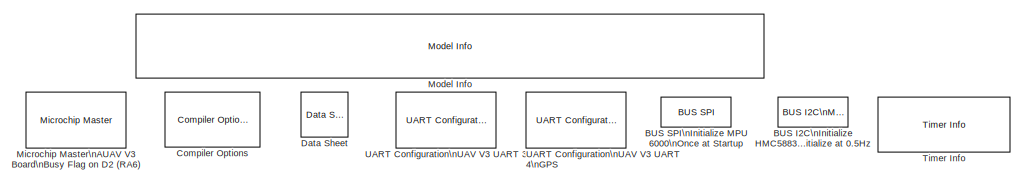
[diagram: root canvas - part 1/2, top center region]
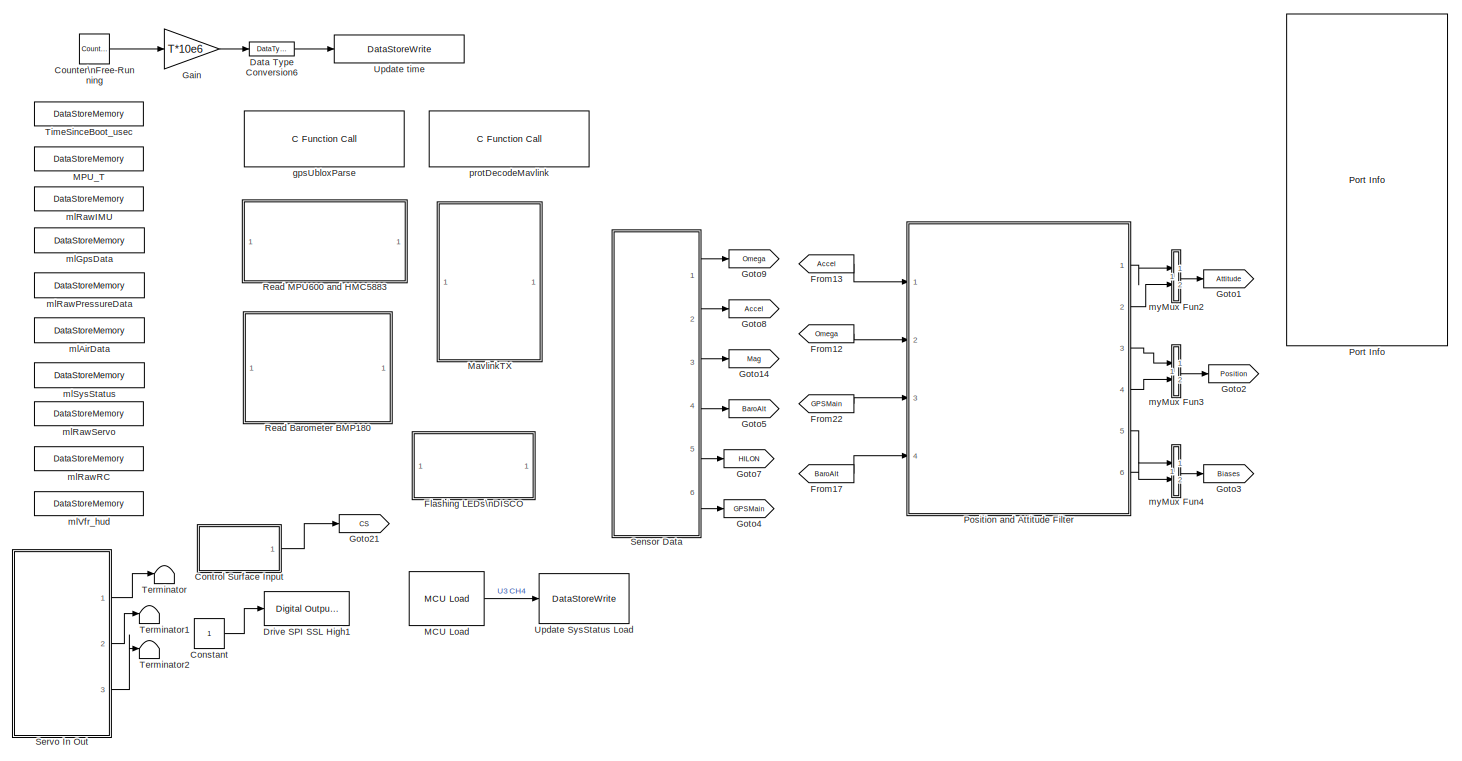
[diagram: root canvas - part 2/2, most of the canvas]
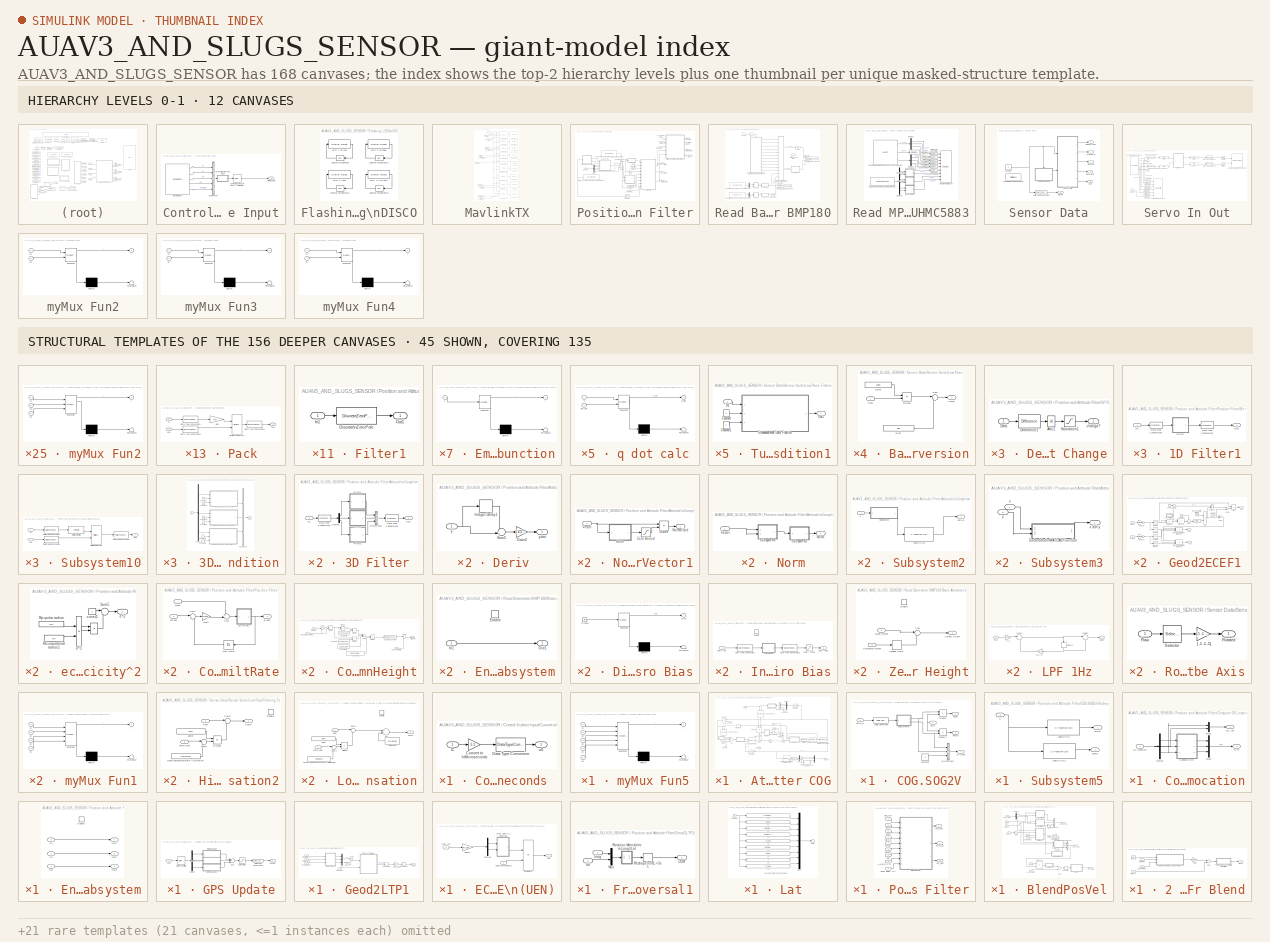
[diagram: thumbnail index - top-2 hierarchy levels (12 canvases) + 45 structural-template representatives of the remaining 156 canvases]
MODEL AUAV3_AND_SLUGS_SENSOR
KIND model
CONFIG PreLoadFcn = T = 0.0025;\nMavlinkBus;\n\n% Baro Altitude Computation\n% =========================\nbasePressure = 98192.64;\nbaseTemp = 288.215;\nlapseRate = -0.00198122;\nbaseHeight = 0;\n\nmcuInit
BLOCK [Reference]  gpsUbloxParse  REF=MCHP_Blockset/User Functions/C Function Call
  AddHeaderDeclaration = on
  DataCollected = s.chksm=reshape({ '360317-Jun-2016 15:34:16','638503-Feb-2015 20:58:10','219617-Jun-2016 15:34:16','1593917-Jun-2016 15:34:16','3558217-Jun-2016 19:12:32','294417-Jun-2016 15:34:16','556017-Jun-2016 15:34:16','963217-Jun-2016 15:34:16','358817-Jun-2016 15:34:16','985917-Jun-2016 15:34:16'},1,10);s.File1=reshape({ '  float  myAtan2(float num, float denom)','  float  myPow(float x, float toTheN)',' ...<+5108ch>  <repeated x4 — deduplicated; at blocks: gpsUbloxParse, PackHeartBeat, ParamInterfaceResponse, ParamInterfaceResponse1>
  FctReturnBlockOut = on
  Function1 = void gpsUbloxParse(void)
  Function1Type = when block is updated (default)
  ListFunctions1 = Custom Function
  MCHP_MASTERLINK = AUAV3_AND_SLUGS_SENSOR/Microchip Master\nAUAV V3 Board\nBusy Flag on D2 (RA6)
  ORDERING = None
  ParseFilesChkbx = on
  PinAnalogInput = []
  PinDigitalInput = []
  PinDigitalOutput = []
  Ports = []
  SID = 118
  SampleTime = 0.2
  SourceBlock = MCHP_Blockset/User Functions/C Function Call
  SourceType = C Function Call
BLOCK [Reference]  protDecodeMavlink  REF=MCHP_Blockset/User Functions/C Function Call
  AddHeaderDeclaration = off
  DataCollected = s.chksm=reshape({ '360317-Jun-2016 15:34:16','638503-Feb-2015 20:58:10','219617-Jun-2016 15:34:16','1593917-Jun-2016 15:34:16','3558217-Jun-2016 19:00:41','294417-Jun-2016 15:34:16','556017-Jun-2016 15:34:16','963217-Jun-2016 15:34:16','358817-Jun-2016 15:34:16','985917-Jun-2016 15:34:16'},1,10);s.File1=reshape({ '  float  myAtan2(float num, float denom)','  float  myPow(float x, float toTheN)',' ...<+5108ch>  <repeated x3 — deduplicated; at blocks: protDecodeMavlink, PackRawRC1, TX_N_Data8>
  FctReturnBlockOut = on
  Function1 = void protDecodeMavlink(void)
  Function1Type = when block is updated (default)
  ListFunctions1 = Custom Function
  MCHP_MASTERLINK = AUAV3_AND_SLUGS_SENSOR/Microchip Master\nAUAV V3 Board\nBusy Flag on D2 (RA6)
  ORDERING = None
  ParseFilesChkbx = on
  PinAnalogInput = []
  PinDigitalInput = []
  PinDigitalOutput = []
  Ports = []
  SID = 429
  SampleTime = 0.2
  SourceBlock = MCHP_Blockset/User Functions/C Function Call
  SourceType = C Function Call
BLOCK [Reference] BUS I2C\nInitialize HMC5883\nre-initialize at 0.5Hz  REF=MCHP_Blockset/BUS I2C/BUS I2C\nMASTER
  BlockingMode = off
  I2CRef = 2
  I2C_IntPriority = 6
  I2Csequence_num = [BFF0000000000000 40E0600000000000 41186A0000000000 4118666E3C87173F]$[4070000000000000]$[3FF0000000000000 40E0200000000000 40F86A0000000000 40F866E066594CA2]$[4040000000000000 0000000000000000 0000000000000000 403E000000000000]$[4050000000000000 3FF0000000000000 0000000000000000 0000000000000000 405E000000000000 0000000000000000 0000000000000000]$[4000000000000000 40E0600000000000 40F86A000000000...<+19ch>
  I2Csequence_txt = Initial-Configuration$     ---     $Start$Write Address:{[0x1E]}    % HMC5883L Address$Write Data (x1)  Write:{[0x00 0x78 0x00 0x00]}      % Configure$Stop
  InitialConfigurationNum = 0
  MCHP_MASTERLINK = AUAV3_AND_SLUGS_SENSOR/Microchip Master\nAUAV V3 Board\nBusy Flag on D2 (RA6)
  MCHP_PORT = {I2C 2 Clock}{SCL2}13:0:A2;{I2C 2 SDA}{SDA2}13:0:A3;
  ORDERING = 0
  PIN_SCL_TXT = A2 / Pin[58]
  PIN_SDA_TXT = A3 / Pin[59]
  Ports = []
  SID = 29
  S_INPUT = [5  5]
  S_INPUT_Size = [2  2]
  S_OUTPUT = [5]
  S_OUTPUT_Size = [4]
  SampleTime = .5
  SourceBlock = MCHP_Blockset/BUS I2C/BUS I2C\nMASTER
  SourceType = I2C Driver
BLOCK [Reference] BUS SPI\nInitialize MPU 6000\nOnce at Startup  REF=MCHP_Blockset/BUS SPI/BUS SPI
  BlockingMode = off
  DMA = [0  2  3]
  MCHP_MASTERLINK = AUAV3_AND_SLUGS_SENSOR/Microchip Master\nAUAV V3 Board\nBusy Flag on D2 (RA6)
  MCHP_PORT = {SPI 1 input}{SDI1}12:0:P83;{SPI 1 output}{SDO1}12:1:P82;{SPI 1 Clock output}{SCK1}12:1:P127;{SPI 1 Digital output}{SPI1-DOU}12:1:E4;{SPI 1 Digital output}{SPI1-DOU}12:1:E4;{SPI 1 Digital output}{SPI1-DOU}12:1:E4;{SPI 1 Digital output}{SPI1-DOU}12:1:E4;{SPI 1 Digital output}{SPI1-DOU}12:1:E4;{SPI 1 Digital output}{SPI1-DOU}12:1:E4;{SPI 1 Digital output}{SPI1-DOU}12:1:E4;{SPI 1 Digital output}{SPI1...<+213ch>
  ORDERING = 0
  PIN_SCK_TXT = G15 / P127 / Pin[1]
  PIN_SDI_TXT = E3 / P83 / Pin[99]
  PIN_SDO_TXT = E2 / P82 / Pin[98]
  PIN_SS_TXT = B0 / Pin[21]
  Ports = []
  SID = 135
  SPIRef = 1
  SPI_IntPriority = 5
  SPIsequence_num = [BFF0000000000000 4091D00000000000 0000000000000000 40E0000000000000 4116409C00000000 4116409D55555555]$[4070000000000000]$[4010000000000000 4051000000000000 3FF0000000000000]$[4020000000000000 3F847AE147AE147B]$[4010000000000000 4051000000000000 0000000000000000]$[3FF0000000000000 3FF0000000000000 0000000000000000 40DAE00000000000]$[4010000000000000 4051000000000000 3FF0000000000000]$[40200000000...<+1047ch>
  SPIsequence_txt = Initial-Configuration$     ---     $Set Port E4 / Pin[100] to 1    % /CS$Delay of 0.01(s)$Set Port E4 / Pin[100] to 0    % /CS$Write only (x1)  Write:{[0x6B80]}      % PWR_MGMT_1, BIT_H_RESET$Set Port E4 / Pin[100] to 1    % /CS$Delay of 0.06(s)$Set Port E4 / Pin[100] to 0    % /CS$Write only (x1)  Write:{[0x6B01]}      % PWR_MGMT_1, MPU_CLK_SEL_PLLGYROZ - PLL with X axis gyroscope reference$Set P...<+677ch>
  S_INPUT = [5  5]
  S_INPUT_Size = [2  2]
  S_OUTPUT = [5]
  S_OUTPUT_Size = [4]
  SampleTime = inf
  SourceBlock = MCHP_Blockset/BUS SPI/BUS SPI
  SourceType = SPI Driver
BLOCK [Reference] Compiler Options  REF=MCHP_Blockset/System Configuration/Compiler Options
  AssemblyListing = off
  COMP_LIST = xc16 - v1.26
  COMP_LIST_TXT = xc16 - v1.26
  DEBUG_INFO = off
  HEAP_SIZE = 0
  LATEST_CMPLR = off
  MCHP_MASTERLINK = AUAV3_AND_SLUGS_SENSOR/Microchip Master\nAUAV V3 Board\nBusy Flag on D2 (RA6)
  MCHP_MULTITHREAD_COMPILATION = on
  MCODE = is less than 32768 (faster)
  MCONST = in code memory
  MDATA = Can use all available memory
  MPLAB_LINKLIB = default
  MPLAB_LINKLIB1 = default
  MSCALAR = Can use all available memory
  OMF = elf
  OMIT_FRAME_POINTER = off
  OPTIMIZATION_LEVEL = 3
  PROCEDURAL_ABSTRACTION = off
  Ports = []
  Priority = 1
  ProduceHexOutput = on
  SID = 7
  SourceBlock = MCHP_Blockset/System Configuration/Compiler Options
  UNROLL_LOOPS = off
  USE_64BIT_DOUBLE = off
BLOCK [Constant] Constant
  OutDataTypeStr = boolean
  SID = 472
BLOCK [SubSystem] Control Surface Input
  Ports = [0, 1]
  RequestExecContextInheritance = off
  SID = 460
BLOCK [Selector] Control Surface Input/Control\nSurfaces\n[dT dA dR dE Failsafe]
  Indices = [1 2 4 3 5]
  InputPortWidth = 5
  Ports = [1, 1]
  SID = 461
BLOCK [SubSystem] Control Surface Input/Convert to\nMicroseconds 
  Ports = [1, 1]
  RequestExecContextInheritance = off
  SID = 462
BLOCK [Gain] Control Surface Input/Convert to\nMicroseconds /Convert to \nMicroseconds
  Gain = 0.2
  OutDataTypeStr = Inherit: Inherit via internal rule
  ParamDataTypeStr = Inherit: Inherit via internal rule
  SID = 464
  SaturateOnIntegerOverflow = off
BLOCK [DataTypeConversion] Control Surface Input/Convert to\nMicroseconds /Data Type Conversion
  OutDataTypeStr = uint16
  RndMeth = Floor
  SID = 465
  SaturateOnIntegerOverflow = off
BLOCK [Inport] Control Surface Input/Convert to\nMicroseconds /IC
  IconDisplay = Port number
  SID = 463
BLOCK [Outport] Control Surface Input/Convert to\nMicroseconds /uS
  IconDisplay = Port number
  SID = 466
BLOCK [Reference] Control Surface Input/Input Capture  REF=MCHP_Blockset/Pulse Input//Output/Input Capture
  ChangeDetected = [0     0     0     0     0]
  ChangeDetectedPortRef = 3
  Channel = [1     2     3     4     5]
  Channel_OLD = [1  2  3  4  5]
  Channel_UP_Down_Periode = [1     1     1     1     1]
  ICxmax = [26249  26249  26249  26249  26249]
  IntPriority = 6
  MCHP_MASTERLINK = AUAV3_AND_SLUGS_SENSOR/Microchip Master\nAUAV V3 Board\nBusy Flag on D2 (RA6)
  MCHP_PORT = {Input Capture 1}{IC1}6:0:P64;{Input Capture 2}{IC2}6:0:P72;{Input Capture 3}{IC3}6:0:P75;{Input Capture 4}{IC4}6:0:P31;{Input Capture 5}{IC5}6:0:P16;
  MCHP_TIMER_REQUEST = {Input Capture 1}{IC1}6:0:1:0:[1  2  3  4  5]:210000;{Input Capture 1}{IC1}6:0:1:0:[1  2  3  4  5]:210000;{Input Capture 1}{IC1}6:0:1:0:[1  2  3  4  5]:210000;{Input Capture 1}{IC1}6:0:1:0:[1  2  3  4  5]:210000;{Input Capture 1}{IC1}6:0:1:0:[1  2  3  4  5]:210000;
  MCHP_TIMER_RESULT = [1 26249.000000000011 ;1 26249.000000000011 ;1 26249.000000000011 ;1 26249.000000000011 ;1 26249.000000000011 ]
  MaxChannel = [0.003   0.003   0.003   0.003   0.003]
  MaxChannelValue = 2.^[ 14.680  14.680  14.680  14.680  14.680]  =>  [26249  26249  26249  26249  26249]
  PIN_IC1 = Dynamic Options
  PIN_IC10 = Dynamic Options
  PIN_IC10_TXT = A0 / P16 / Pin[17]
  PIN_IC11 = Dynamic Options
  PIN_IC11_TXT = A0 / P16 / Pin[17]
  PIN_IC12 = Dynamic Options
  PIN_IC12_TXT = A0 / P16 / Pin[17]
  PIN_IC13 = Dynamic Options
  PIN_IC13_TXT = A0 / P16 / Pin[17]
  PIN_IC14 = Dynamic Options
  PIN_IC14_TXT = A0 / P16 / Pin[17]
  PIN_IC15 = Dynamic Options
  PIN_IC15_TXT = A0 / P16 / Pin[17]
  PIN_IC16 = Dynamic Options
  PIN_IC16_TXT = A0 / P16 / Pin[17]
  PIN_IC1_TXT = D0 / P64 / Pin[72]
  PIN_IC2 = Dynamic Options
  PIN_IC2_TXT = D8 / P72 / Pin[68]
  PIN_IC3 = Dynamic Options
  PIN_IC3_TXT = D11 / P75 / Pin[71]
  PIN_IC4 = Dynamic Options
  PIN_IC4_TXT = A15 / P31 / Pin[67]
  PIN_IC5 = Dynamic Options
  PIN_IC5_TXT = A0 / P16 / Pin[17]
  PIN_IC6 = Dynamic Options
  PIN_IC6_TXT = A0 / P16 / Pin[17]
  PIN_IC7 = Dynamic Options
  PIN_IC7_TXT = A0 / P16 / Pin[17]
  PIN_IC8 = Dynamic Options
  PIN_IC8_TXT = A0 / P16 / Pin[17]
  PIN_IC9 = Dynamic Options
  PIN_IC9_TXT = A0 / P16 / Pin[17]
  Ports = [0, 5]
  SID = 471
  SafeMarge = [0     0     0     0     0]
  SampleTime = .02
  SourceBlock = MCHP_Blockset/Pulse Input//Output/Input Capture
  SourceType = Input driver for Input Capture Peripheral
  Status = OK
  Timer = [1  1  1  1  1]
BLOCK [Outport] Control Surface Input/Pilot Console
  IconDisplay = Port number
  SID = 469
BLOCK [SubSystem] Control Surface Input/myMux Fun5
  ErrorFcn = Stateflow.Translate.translate
  PermitHierarchicalResolution = ExplicitOnly
  Ports = [5, 1]
  RequestExecContextInheritance = off
  SFBlockType = MATLAB Function
  SID = 468
  TreatAsAtomicUnit = on
BLOCK [Demux] Control Surface Input/myMux Fun5/ Demux 
  Outputs = 1
  Ports = [1, 1]
  SID = 468::15
BLOCK [S-Function] Control Surface Input/myMux Fun5/ SFunction 
  EnableBusSupport = on
  FunctionName = sf_sfun
  PortCounts = [5 2]
  Ports = [5, 2]
  SID = 468::14
  Tag = Stateflow S-Function AUAV3_AND_SLUGS_SENSOR 19
BLOCK [Terminator] Control Surface Input/myMux Fun5/ Terminator 
  SID = 468::16
BLOCK [Inport] Control Surface Input/myMux Fun5/u1
  IconDisplay = Port number
  SID = 468::1
BLOCK [Inport] Control Surface Input/myMux Fun5/u2
  IconDisplay = Port number
  Port = 2
  SID = 468::2
BLOCK [Inport] Control Surface Input/myMux Fun5/u3
  IconDisplay = Port number
  Port = 3
  SID = 468::3
BLOCK [Inport] Control Surface Input/myMux Fun5/u4
  IconDisplay = Port number
  Port = 4
  SID = 468::4
BLOCK [Inport] Control Surface Input/myMux Fun5/u5
  IconDisplay = Port number
  Port = 5
  SID = 468::5
BLOCK [Outport] Control Surface Input/myMux Fun5/y
  IconDisplay = Port number
  SID = 468::9
BLOCK [Reference] Counter\nFree-Running  REF=simulink/Sources/Counter\nFree-Running
  NumBits = 32
  Ports = [0, 1]
  SID = 128
  SourceBlock = simulink/Sources/Counter\nFree-Running
  SourceType = Counter Free-Running
  tsamp = T
BLOCK [Reference] Data Sheet  REF=MCHP_Blockset/System Info/Data Sheet
  AttributesFormatString = %<cpy_MCHP_Id>
  DOC_FileLastCheckTime = [2013             11             10             22              4         17.021]
  DOC_FilePath = <userpath><path>
  DOC_MCHP_Id = 33EP512MU810
  MCHP_MASTERLINK = AUAV3_AND_SLUGS_SENSOR/Microchip Master\nAUAV V3 Board\nBusy Flag on D2 (RA6)
  Ports = []
  SID = 28
  SourceBlock = MCHP_Blockset/System Info/Data Sheet
  cpy_MCHP_Id = 33EP512MU810
BLOCK [DataTypeConversion] Data Type Conversion6
  OutDataTypeStr = uint32
  RndMeth = Floor
  SID = 129
  SaturateOnIntegerOverflow = off
BLOCK [Reference] Drive SPI SSL High1  REF=MCHP_Blockset/Digital IO/Digital Output\nWrite
  MCHP_MASTERLINK = AUAV3_AND_SLUGS_SENSOR/Microchip Master\nAUAV V3 Board\nBusy Flag on D2 (RA6)
  MCHP_PORT = {Digital Out}{DOU}1:1:B2;
  ORDERING = None
  PACK = off
  PIN = [2]
  PORT = Dynamic Options
  PORT_TXT = B   [ 0 : 15 ]
  Ports = [1]
  SID = 474
  SIMULTANEOUS = off
  SampleTime = -1
  SourceBlock = MCHP_Blockset/Digital IO/Digital Output\nWrite
  SourceType = Output driver for Digital Output Pins
BLOCK [SubSystem] Flashing LEDs\nDISCO
  Ports = []
  RequestExecContextInheritance = off
  SID = 75
BLOCK [Reference] Flashing LEDs\nDISCO/LED 1 (Blue)  REF=MCHP_Blockset/Digital IO/Digital Output
  MCHP_MASTERLINK = AUAV3_AND_SLUGS_SENSOR/Microchip Master\nAUAV V3 Board\nBusy Flag on D2 (RA6)
  ORDERING = None
  PACK = off
  PIN = 2
  PORT = Dynamic Options
  PORT_TXT = B   [ 0 : 15 ]
  Ports = [1, 1]
  READPREVIOUS = on
  SID = 2
  SIMULTANEOUS = off
  SampleTime = .05
  SourceBlock = MCHP_Blockset/Digital IO/Digital Output
BLOCK [Reference] Flashing LEDs\nDISCO/LED 2 (red)  REF=MCHP_Blockset/Digital IO/Digital Output
  MCHP_MASTERLINK = AUAV3_AND_SLUGS_SENSOR/Microchip Master\nAUAV V3 Board\nBusy Flag on D2 (RA6)
  ORDERING = None
  PACK = off
  PIN = 3
  PORT = Dynamic Options
  PORT_TXT = B   [ 0 : 15 ]
  Ports = [1, 1]
  READPREVIOUS = on
  SID = 8
  SIMULTANEOUS = off
  SampleTime = .1
  SourceBlock = MCHP_Blockset/Digital IO/Digital Output
BLOCK [Reference] Flashing LEDs\nDISCO/LED 3 (Green)  REF=MCHP_Blockset/Digital IO/Digital Output
  MCHP_MASTERLINK = AUAV3_AND_SLUGS_SENSOR/Microchip Master\nAUAV V3 Board\nBusy Flag on D2 (RA6)
  ORDERING = None
  PACK = off
  PIN = 4
  PORT = Dynamic Options
  PORT_TXT = B   [ 0 : 15 ]
  Ports = [1, 1]
  READPREVIOUS = on
  SID = 10
  SIMULTANEOUS = off
  SampleTime = .25
  SourceBlock = MCHP_Blockset/Digital IO/Digital Output
BLOCK [Reference] Flashing LEDs\nDISCO/LED 4 (Yellow)  REF=MCHP_Blockset/Digital IO/Digital Output
  MCHP_MASTERLINK = AUAV3_AND_SLUGS_SENSOR/Microchip Master\nAUAV V3 Board\nBusy Flag on D2 (RA6)
  ORDERING = None
  PACK = off
  PIN = 5
  PORT = Dynamic Options
  PORT_TXT = B   [ 0 : 15 ]
  Ports = [1, 1]
  READPREVIOUS = on
  SID = 12
  SIMULTANEOUS = off
  SampleTime = 0.5
  SourceBlock = MCHP_Blockset/Digital IO/Digital Output
BLOCK [Logic] Flashing LEDs\nDISCO/Logical\nOperator
  AllPortsSameDT = off
  Operator = NOT
  OutDataTypeStr = boolean
  Ports = [1, 1]
  SID = 6
BLOCK [Logic] Flashing LEDs\nDISCO/Logical\nOperator1
  AllPortsSameDT = off
  Operator = NOT
  OutDataTypeStr = boolean
  Ports = [1, 1]
  SID = 9
BLOCK [Logic] Flashing LEDs\nDISCO/Logical\nOperator2
  AllPortsSameDT = off
  Operator = NOT
  OutDataTypeStr = boolean
  Ports = [1, 1]
  SID = 11
BLOCK [Logic] Flashing LEDs\nDISCO/Logical\nOperator3
  AllPortsSameDT = off
  Operator = NOT
  OutDataTypeStr = boolean
  Ports = [1, 1]
  SID = 13
BLOCK [From] From12
  Commented = on
  GotoTag = Omega
  SID = 864
BLOCK [From] From13
  Commented = on
  GotoTag = Accel
  SID = 865
BLOCK [From] From17
  Commented = on
  GotoTag = BaroAlt
  SID = 866
BLOCK [From] From22
  Commented = on
  GotoTag = GPSMain
  SID = 867
BLOCK [Gain] Gain
  Gain = T*10e6
  OutDataTypeStr = Inherit: Inherit via internal rule
  ParamDataTypeStr = Inherit: Inherit via internal rule
  SID = 85
  SaturateOnIntegerOverflow = off
BLOCK [Goto] Goto1
  Commented = on
  GotoTag = Attitude
  SID = 1205
BLOCK [Goto] Goto14
  GotoTag = Mag
  SID = 475
BLOCK [Goto] Goto2
  Commented = on
  GotoTag = Position
  SID = 1206
BLOCK [Goto] Goto21
  GotoTag = CS
  SID = 470
BLOCK [Goto] Goto3
  Commented = on
  GotoTag = Biases
  SID = 1208
BLOCK [Goto] Goto4
  GotoTag = GPSMain
  SID = 476
BLOCK [Goto] Goto5
  GotoTag = BaroAlt
  SID = 477
BLOCK [Goto] Goto7
  GotoTag = HILON
  SID = 478
  TagVisibility = global
BLOCK [Goto] Goto8
  GotoTag = Accel
  SID = 479
BLOCK [Goto] Goto9
  GotoTag = Omega
  SID = 480
BLOCK [Reference] MCU Load  REF=MCHP_Blockset/Profiling/MCU Load
  Info = Timer 3:  Resol: 914.2857143(ns)  -  Max: 59.9186(ms)
  MCHP_COMPILED_INFO = CompiledSampleTime= [0.01   0 ];CompiledInportDataTypes=[ ];CompiledInportDataWidth=[];
  MCHP_MASTERLINK = AUAV3_AND_SLUGS_SENSOR/Microchip Master\nAUAV V3 Board\nBusy Flag on D2 (RA6)
  MCHP_TIMER_REQUEST = {MCU_Load}{MCU_Load}21:5:0:0:[]:4194304;
  MCHP_TIMER_RESULT = [3 65535 ]
  MCULoadMeasure = on
  MCULoadPin = Dynamic Options
  MCULoadPin_TXT = None
  Ports = [0, 1]
  SID = 425
  SampleTime = .01
  SourceBlock = MCHP_Blockset/Profiling/MCU Load
  SourceType = MCU Load (Profile execution time)
  TIMER_Resolution = Dynamic Options
  TIMER_Resolution_TXT = Resol: 0.9143(us)  -  Max: 59.9(ms)
BLOCK [DataStoreMemory] MPU_T
  DataStoreName = MPU_T
  OutDataTypeStr = uint16
  RTWStateStorageClass = ExportedGlobal
  ReadBeforeWriteMsg = warning
  SID = 132
  WriteAfterReadMsg = warning
  WriteAfterWriteMsg = warning
BLOCK [SubSystem] MavlinkTX
  Ports = []
  RequestExecContextInheritance = off
  SID = 422
BLOCK [Constant] MavlinkTX/COMP_ID
  OutDataTypeStr = uint8
  SID = 79
BLOCK [DataStoreRead] MavlinkTX/Get Raw IMU
  DataStoreElements = mlRawIMU
  DataStoreName = mlRawIMU
  Ports = [0, 1]
  SID = 89
BLOCK [DataStoreRead] MavlinkTX/Get Raw RC
  DataStoreElements = mlRC_Commands
  DataStoreName = mlRC_Commands
  Ports = [0, 1]
  SID = 1224
BLOCK [DataStoreRead] MavlinkTX/Get RawGpsInt
  DataStoreName = mlGpsData
  DialogController = Simulink.DDGSource
  Ports = [0, 1]
  SID = 120
BLOCK [DataStoreRead] MavlinkTX/Get VfrHud
  DataStoreElements = mlVfr_hud
  DataStoreName = mlVfr_hud
  Ports = [0, 1]
  SID = 1241
BLOCK [DataStoreRead] MavlinkTX/Get mlAirData
  DataStoreElements = mlAirData
  DataStoreName = mlAirData
  Ports = [0, 1]
  SID = 393
BLOCK [DataStoreRead] MavlinkTX/Get mlSysStatus
  DataStoreElements = mlSysStatus
  DataStoreName = mlSysStatus
  Ports = [0, 1]
  SID = 397
BLOCK [DataStoreRead] MavlinkTX/Get time
  DataStoreElements = time_since_boot_usec
  DataStoreName = time_since_boot_usec
  Ports = [0, 1]
  SID = 81
BLOCK [DataStoreRead] MavlinkTX/Get time1
  DataStoreElements = time_since_boot_usec
  DataStoreName = time_since_boot_usec
  Ports = [0, 1]
  SID = 126
BLOCK [DataStoreRead] MavlinkTX/Get time2
  DataStoreElements = time_since_boot_usec
  DataStoreName = time_since_boot_usec
  Ports = [0, 1]
  SID = 392
BLOCK [DataStoreRead] MavlinkTX/Get time3
  DataStoreElements = time_since_boot_usec
  DataStoreName = time_since_boot_usec
  Ports = [0, 1]
  SID = 1225
BLOCK [DataStoreRead] MavlinkTX/Get time4
  DataStoreElements = time_since_boot_usec
  DataStoreName = time_since_boot_usec
  Ports = [0, 1]
  SID = 1242
BLOCK [Reference] MavlinkTX/PackGpsRawInt  REF=MCHP_Blockset/User Functions/C Function Call
  AddHeaderDeclaration = on
  DataCollected = s.chksm=reshape({ '360317-Jun-2016 15:34:16','638503-Feb-2015 20:58:10','219617-Jun-2016 15:34:16','1593917-Jun-2016 15:34:16','3561720-Jun-2016 13:52:29','294417-Jun-2016 15:34:16','556017-Jun-2016 15:34:16','963217-Jun-2016 15:34:16','358817-Jun-2016 15:34:16','985917-Jun-2016 15:34:16'},1,10);s.File1=reshape({ '  float  myAtan2(float num, float denom)','  float  myPow(float x, float toTheN)',' ...<+5108ch>
  Fct1BlockIn = system_id  , component_id  , mlRawGpsDataInt  , time_usec
  FctReturnBlockOut = on
  Function1 = uint16_t PackGpsRawInt(uint8_t system_id, uint8_t component_id, mavlink_gps_raw_int_t mlRawGpsDataInt ,uint32_t time_usec)
  Function1Type = when block is updated (default)
  ListFunctions1 = Custom Function
  MCHP_MASTERLINK = AUAV3_AND_SLUGS_SENSOR/Microchip Master\nAUAV V3 Board\nBusy Flag on D2 (RA6)
  ORDERING = None
  ParseFilesChkbx = on
  PinAnalogInput = []
  PinDigitalInput = []
  PinDigitalOutput = []
  Ports = [4, 1]
  SID = 123
  SampleTime = 1
  SourceBlock = MCHP_Blockset/User Functions/C Function Call
  SourceType = C Function Call
BLOCK [Reference] MavlinkTX/PackHeartBeat  REF=MCHP_Blockset/User Functions/C Function Call
  AddHeaderDeclaration = on
  Fct1BlockIn = system_id  , component_id
  FctReturnBlockOut = on
  Function1 = uint16_t PackHeartBeat(uint8_t system_id, uint8_t component_id)
  Function1Type = when block is updated (default)
  ListFunctions1 = Custom Function
  MCHP_MASTERLINK = AUAV3_AND_SLUGS_SENSOR/Microchip Master\nAUAV V3 Board\nBusy Flag on D2 (RA6)
  ORDERING = None
  ParseFilesChkbx = on
  PinAnalogInput = []
  PinDigitalInput = []
  PinDigitalOutput = []
  Ports = [2, 1]
  SID = 109
  SampleTime = 0.5
  SourceBlock = MCHP_Blockset/User Functions/C Function Call
  SourceType = C Function Call
BLOCK [Reference] MavlinkTX/PackRawIMU  REF=MCHP_Blockset/User Functions/C Function Call
  AddHeaderDeclaration = on
  DataCollected = s.chksm=reshape({ '360328-Apr-2016 15:40:12','638503-Feb-2015 20:58:10','219628-Apr-2016 15:40:12','1593928-Apr-2016 15:40:12','3277828-Apr-2016 15:40:12','294428-Apr-2016 15:40:12','556028-Apr-2016 15:40:12','963228-Apr-2016 15:40:12','358828-Apr-2016 15:40:12','985928-Apr-2016 15:40:12'},1,10);s.File1=reshape({ '  float  myAtan2(float num, float denom)','  float  myPow(float x, float toTheN)',' ...<+4736ch>
  Fct1BlockIn = system_id  , component_id  , mlRawIMUData  , time_usec
  FctReturnBlockOut = on
  Function1 = uint16_t PackRawIMU(uint8_t system_id, uint8_t component_id, mavlink_raw_imu_t mlRawIMUData ,uint32_t time_usec)
  Function1Type = when block is updated (default)
  ListFunctions1 = Custom Function
  MCHP_MASTERLINK = AUAV3_AND_SLUGS_SENSOR/Microchip Master\nAUAV V3 Board\nBusy Flag on D2 (RA6)
  ORDERING = None
  ParseFilesChkbx = on
  PinAnalogInput = []
  PinDigitalInput = []
  PinDigitalOutput = []
  Ports = [4, 1]
  SID = 108
  SampleTime = 0.02
  SourceBlock = MCHP_Blockset/User Functions/C Function Call
  SourceType = C Function Call
BLOCK [Reference] MavlinkTX/PackRawRC  REF=MCHP_Blockset/User Functions/C Function Call
  AddHeaderDeclaration = on
  DataCollected = s.chksm=reshape({ '360328-Apr-2016 15:40:12','638503-Feb-2015 20:58:10','219628-Apr-2016 15:40:12','1593928-Apr-2016 15:40:12','3466829-Apr-2016 16:25:05','294428-Apr-2016 15:40:12','556028-Apr-2016 15:40:12','963228-Apr-2016 15:40:12','358828-Apr-2016 15:40:12','985928-Apr-2016 15:40:12'},1,10);s.File1=reshape({ '  float  myAtan2(float num, float denom)','  float  myPow(float x, float toTheN)',' ...<+4992ch>
  Fct1BlockIn = system_id  , component_id  , mlRC_Commands  , time_usec
  FctReturnBlockOut = on
  Function1 = uint16_t PackRawRC(uint8_t system_id, uint8_t component_id, mavlink_rc_channels_raw_t mlRC_Commands ,uint32_t time_usec)
  Function1Type = when block is updated (default)
  ListFunctions1 = Custom Function
  MCHP_MASTERLINK = AUAV3_AND_SLUGS_SENSOR/Microchip Master\nAUAV V3 Board\nBusy Flag on D2 (RA6)
  ORDERING = None
  ParseFilesChkbx = on
  PinAnalogInput = []
  PinDigitalInput = []
  PinDigitalOutput = []
  Ports = [4, 1]
  SID = 1226
  SampleTime = 0.02
  SourceBlock = MCHP_Blockset/User Functions/C Function Call
  SourceType = C Function Call
BLOCK [Reference] MavlinkTX/PackRawRC1  REF=MCHP_Blockset/User Functions/C Function Call
  AddHeaderDeclaration = on
  Fct1BlockIn = system_id  , component_id  , mlVfr_hud  , time_usec
  FctReturnBlockOut = on
  Function1 = uint16_t PackVFR_HUD(uint8_t system_id, uint8_t component_id, mavlink_vfr_hud_t mlVfr_hud ,uint32_t time_usec)
  Function1Type = when block is updated (default)
  ListFunctions1 = Custom Function
  MCHP_MASTERLINK = AUAV3_AND_SLUGS_SENSOR/Microchip Master\nAUAV V3 Board\nBusy Flag on D2 (RA6)
  ORDERING = None
  ParseFilesChkbx = on
  PinAnalogInput = []
  PinDigitalInput = []
  PinDigitalOutput = []
  Ports = [4, 1]
  SID = 1240
  SampleTime = 0.02
  SourceBlock = MCHP_Blockset/User Functions/C Function Call
  SourceType = C Function Call
BLOCK [Reference] MavlinkTX/PackScaledPressure  REF=MCHP_Blockset/User Functions/C Function Call
  AddHeaderDeclaration = on
  DataCollected = s.chksm=reshape({ '360325-Apr-2016 19:19:45','638502-Mar-2016 19:06:13','219625-Apr-2016 19:38:33','1593925-Apr-2016 19:41:14','3277826-Apr-2016 00:33:15','294426-Apr-2016 00:47:59','556001-Oct-2014 14:05:42','963201-Apr-2016 12:47:40','358819-Apr-2016 01:35:18','985925-Apr-2016 19:19:45'},1,10);s.File1=reshape({ '  float  myAtan2(float num, float denom)','  float  myPow(float x, float toTheN)',' ...<+4736ch>  <repeated x10 — deduplicated; at blocks: PackScaledPressure, [apUtils.c], [apUtils.c]1, Checks if FixType is 3\n[updateSensorMCUState.c…, Data from HIL\n[hil.c]2, HIL Messages \nParser/Decoder\n[hil.c]1, HIL Raw Readings\n[hil.c]1, Is the GPS Novatel or Ublox?\n[gpsPort.c]1>
  Fct1BlockIn = system_id  , component_id  , mlAirData  , time_usec
  FctReturnBlockOut = on
  Function1 = uint16_t PackScaledPressure(uint8_t system_id, uint8_t component_id, mavlink_scaled_pressure_t mlAirData ,uint32_t time_usec)
  Function1Type = when block is updated (default)
  ListFunctions1 = Custom Function
  MCHP_MASTERLINK = AUAV3_AND_SLUGS_SENSOR/Microchip Master\nAUAV V3 Board\nBusy Flag on D2 (RA6)
  ORDERING = None
  ParseFilesChkbx = on
  PinAnalogInput = []
  PinDigitalInput = []
  PinDigitalOutput = []
  Ports = [4, 1]
  SID = 390
  SampleTime = [0.2 0.02]
  SourceBlock = MCHP_Blockset/User Functions/C Function Call
  SourceType = C Function Call
BLOCK [Reference] MavlinkTX/PackSysStatus  REF=MCHP_Blockset/User Functions/C Function Call
  AddHeaderDeclaration = on
  DataCollected = s.chksm=reshape({ '638503-Feb-2015 20:58:09','200703-Feb-2015 20:58:09','1582103-Feb-2015 20:58:09','3237209-Jun-2015 23:33:04'},1,4);s.File1=reshape({ '  void  newCircBuffer(CBRef cB)','  void  freeCircBuffer(CBRef* cB)','  void  freeCircBuffer(CBRef* cB)',' unsigned int  getLength(CBRef cB)','  int  readHead(CBRef cB)','  int  readTail(CBRef cB)',' unsigned char  peak(CBRef cB)',' unsigned char ...<+1981ch>
  Fct1BlockIn = system_id  , component_id  , mlSysStatus
  FctReturnBlockOut = on
  Function1 = uint16_t PackSysStatus(uint8_t system_id, uint8_t component_id, mavlink_sys_status_t mlSysStatus)
  Function1Type = when block is updated (default)
  ListFunctions1 = Custom Function
  MCHP_MASTERLINK = AUAV3_AND_SLUGS_SENSOR/Microchip Master\nAUAV V3 Board\nBusy Flag on D2 (RA6)
  ORDERING = None
  ParseFilesChkbx = on
  PinAnalogInput = []
  PinDigitalInput = []
  PinDigitalOutput = []
  Ports = [3, 1]
  SID = 395
  SampleTime = [0.2 0.04]
  SourceBlock = MCHP_Blockset/User Functions/C Function Call
  SourceType = C Function Call
BLOCK [Reference] MavlinkTX/ParamInterfaceResponse  REF=MCHP_Blockset/User Functions/C Function Call
  AddHeaderDeclaration = on
  Fct1BlockIn = system_id  , component_id
  FctReturnBlockOut = on
  Function1 = uint16_t ParameterInterfaceResponse(uint8_t system_id, uint8_t component_id)
  Function1Type = when block is updated (default)
  ListFunctions1 = Custom Function
  MCHP_MASTERLINK = AUAV3_AND_SLUGS_SENSOR/Microchip Master\nAUAV V3 Board\nBusy Flag on D2 (RA6)
  ORDERING = None
  ParseFilesChkbx = on
  PinAnalogInput = []
  PinDigitalInput = []
  PinDigitalOutput = []
  Ports = [2, 1]
  SID = 430
  SampleTime = [0.2 0.06]
  SourceBlock = MCHP_Blockset/User Functions/C Function Call
  SourceType = C Function Call
BLOCK [Reference] MavlinkTX/ParamInterfaceResponse1  REF=MCHP_Blockset/User Functions/C Function Call
  AddHeaderDeclaration = on
  Fct1BlockIn = system_id  , component_id
  FctReturnBlockOut = on
  Function1 = uint16_t MissionInterfaceResponse(uint8_t system_id, uint8_t component_id)
  Function1Type = when block is updated (default)
  ListFunctions1 = Custom Function
  MCHP_MASTERLINK = AUAV3_AND_SLUGS_SENSOR/Microchip Master\nAUAV V3 Board\nBusy Flag on D2 (RA6)
  ORDERING = None
  ParseFilesChkbx = on
  PinAnalogInput = []
  PinDigitalInput = []
  PinDigitalOutput = []
  Ports = [2, 1]
  SID = 458
  SampleTime = [0.2 0.08]
  SourceBlock = MCHP_Blockset/User Functions/C Function Call
  SourceType = C Function Call
BLOCK [Constant] MavlinkTX/SYS_ID
  OutDataTypeStr = uint8
  SID = 78
  Value = 101
BLOCK [Reference] MavlinkTX/TX_N_Data  REF=MCHP_Blockset/User Functions/C Function Call
  AddHeaderDeclaration = on
  DataCollected = s.chksm={ '452509-Jan-2015 23:52:22'};s.File1=reshape({ '  uint16_t  PackHeartBeat(uint8_t system_id, uint8_t component_id)','  uint16_t  PackTextMsg(uint8_t system_id, uint8_t component_id)','  uint16_t  PackRawIMU(uint8_t system_id, uint8_t component_id, mavlink_raw_imu_t mlRawIMUData ,uint32_t time_usec)','  char  sendQGCDebugMessage(const char * dbgMessage, char severity, unsigned char* bytesT...<+114ch>  <repeated x6 — deduplicated; at blocks: TX_N_Data, TX_N_Data1, TX_N_Data3, TX_N_Data4, TX_N_Data5, TX_N_Data6>
  Fct1BlockIn = N
  FctReturnBlockOut = on
  Function1 = void TxN_Data_OverU1(uint16_t N)
  Function1Type = when block is updated (default)
  ListFunctions1 = Custom Function
  MCHP_MASTERLINK = AUAV3_AND_SLUGS_SENSOR/Microchip Master\nAUAV V3 Board\nBusy Flag on D2 (RA6)
  ORDERING = None
  ParseFilesChkbx = on
  PinAnalogInput = []
  PinDigitalInput = []
  PinDigitalOutput = []
  Ports = [1]
  SID = 115
  SampleTime = -1
  SourceBlock = MCHP_Blockset/User Functions/C Function Call
  SourceType = C Function Call
BLOCK [Reference] MavlinkTX/TX_N_Data1  REF=MCHP_Blockset/User Functions/C Function Call
  AddHeaderDeclaration = on
  Fct1BlockIn = N
  FctReturnBlockOut = on
  Function1 = void TxN_Data_OverU1(uint16_t N)
  Function1Type = when block is updated (default)
  ListFunctions1 = Custom Function
  MCHP_MASTERLINK = AUAV3_AND_SLUGS_SENSOR/Microchip Master\nAUAV V3 Board\nBusy Flag on D2 (RA6)
  ORDERING = None
  ParseFilesChkbx = on
  PinAnalogInput = []
  PinDigitalInput = []
  PinDigitalOutput = []
  Ports = [1]
  SID = 116
  SampleTime = -1
  SourceBlock = MCHP_Blockset/User Functions/C Function Call
  SourceType = C Function Call
BLOCK [Reference] MavlinkTX/TX_N_Data2  REF=MCHP_Blockset/User Functions/C Function Call
  AddHeaderDeclaration = on
  DataCollected = s.chksm=reshape({ '360317-Jun-2016 15:34:16','638503-Feb-2015 20:58:10','219617-Jun-2016 15:34:16','1593917-Jun-2016 15:34:16','3561720-Jun-2016 13:52:29','294417-Jun-2016 15:34:16','556017-Jun-2016 15:34:16','963217-Jun-2016 15:34:16','358817-Jun-2016 15:34:16','985917-Jun-2016 15:34:16'},1,10);s.File1=reshape({ '  float  myAtan2(float num, float denom)','  float  myPow(float x, float toTheN)',' ...<+5108ch>
  Fct1BlockIn = N
  FctReturnBlockOut = on
  Function1 = void TxN_Data_OverU1(uint16_t N)
  Function1Type = when block is updated (default)
  ListFunctions1 = Custom Function
  MCHP_MASTERLINK = AUAV3_AND_SLUGS_SENSOR/Microchip Master\nAUAV V3 Board\nBusy Flag on D2 (RA6)
  ORDERING = None
  ParseFilesChkbx = on
  PinAnalogInput = []
  PinDigitalInput = []
  PinDigitalOutput = []
  Ports = [1]
  SID = 124
  SampleTime = -1
  SourceBlock = MCHP_Blockset/User Functions/C Function Call
  SourceType = C Function Call
BLOCK [Reference] MavlinkTX/TX_N_Data3  REF=MCHP_Blockset/User Functions/C Function Call
  AddHeaderDeclaration = on
  Fct1BlockIn = N
  FctReturnBlockOut = on
  Function1 = void TxN_Data_OverU1(uint16_t N)
  Function1Type = when block is updated (default)
  ListFunctions1 = Custom Function
  MCHP_MASTERLINK = AUAV3_AND_SLUGS_SENSOR/Microchip Master\nAUAV V3 Board\nBusy Flag on D2 (RA6)
  ORDERING = None
  ParseFilesChkbx = on
  PinAnalogInput = []
  PinDigitalInput = []
  PinDigitalOutput = []
  Ports = [1]
  SID = 391
  SampleTime = -1
  SourceBlock = MCHP_Blockset/User Functions/C Function Call
  SourceType = C Function Call
BLOCK [Reference] MavlinkTX/TX_N_Data4  REF=MCHP_Blockset/User Functions/C Function Call
  AddHeaderDeclaration = on
  Fct1BlockIn = N
  FctReturnBlockOut = on
  Function1 = void TxN_Data_OverU1(uint16_t N)
  Function1Type = when block is updated (default)
  ListFunctions1 = Custom Function
  MCHP_MASTERLINK = AUAV3_AND_SLUGS_SENSOR/Microchip Master\nAUAV V3 Board\nBusy Flag on D2 (RA6)
  ORDERING = None
  ParseFilesChkbx = on
  PinAnalogInput = []
  PinDigitalInput = []
  PinDigitalOutput = []
  Ports = [1]
  SID = 396
  SampleTime = -1
  SourceBlock = MCHP_Blockset/User Functions/C Function Call
  SourceType = C Function Call
BLOCK [Reference] MavlinkTX/TX_N_Data5  REF=MCHP_Blockset/User Functions/C Function Call
  AddHeaderDeclaration = on
  Fct1BlockIn = N
  FctReturnBlockOut = on
  Function1 = void TxN_Data_OverU1(uint16_t N)
  Function1Type = when block is updated (default)
  ListFunctions1 = Custom Function
  MCHP_MASTERLINK = AUAV3_AND_SLUGS_SENSOR/Microchip Master\nAUAV V3 Board\nBusy Flag on D2 (RA6)
  ORDERING = None
  ParseFilesChkbx = on
  PinAnalogInput = []
  PinDigitalInput = []
  PinDigitalOutput = []
  Ports = [1]
  SID = 431
  SampleTime = -1
  SourceBlock = MCHP_Blockset/User Functions/C Function Call
  SourceType = C Function Call
BLOCK [Reference] MavlinkTX/TX_N_Data6  REF=MCHP_Blockset/User Functions/C Function Call
  AddHeaderDeclaration = on
  Fct1BlockIn = N
  FctReturnBlockOut = on
  Function1 = void TxN_Data_OverU1(uint16_t N)
  Function1Type = when block is updated (default)
  ListFunctions1 = Custom Function
  MCHP_MASTERLINK = AUAV3_AND_SLUGS_SENSOR/Microchip Master\nAUAV V3 Board\nBusy Flag on D2 (RA6)
  ORDERING = None
  ParseFilesChkbx = on
  PinAnalogInput = []
  PinDigitalInput = []
  PinDigitalOutput = []
  Ports = [1]
  SID = 459
  SampleTime = -1
  SourceBlock = MCHP_Blockset/User Functions/C Function Call
  SourceType = C Function Call
BLOCK [Reference] MavlinkTX/TX_N_Data7  REF=MCHP_Blockset/User Functions/C Function Call
  AddHeaderDeclaration = on
  DataCollected = s.chksm=reshape({ '360317-Jun-2016 15:34:16','638503-Feb-2015 20:58:10','219617-Jun-2016 15:34:16','1593917-Jun-2016 15:34:16','3470617-Jun-2016 16:37:56','294417-Jun-2016 15:34:16','556017-Jun-2016 15:34:16','963217-Jun-2016 15:34:16','358817-Jun-2016 15:34:16','985917-Jun-2016 15:34:16'},1,10);s.File1=reshape({ '  float  myAtan2(float num, float denom)','  float  myPow(float x, float toTheN)',' ...<+4992ch>
  Fct1BlockIn = N
  FctReturnBlockOut = on
  Function1 = void TxN_Data_OverU1(uint16_t N)
  Function1Type = when block is updated (default)
  ListFunctions1 = Custom Function
  MCHP_MASTERLINK = AUAV3_AND_SLUGS_SENSOR/Microchip Master\nAUAV V3 Board\nBusy Flag on D2 (RA6)
  ORDERING = None
  ParseFilesChkbx = on
  PinAnalogInput = []
  PinDigitalInput = []
  PinDigitalOutput = []
  Ports = [1]
  SID = 1227
  SampleTime = -1
  SourceBlock = MCHP_Blockset/User Functions/C Function Call
  SourceType = C Function Call
BLOCK [Reference] MavlinkTX/TX_N_Data8  REF=MCHP_Blockset/User Functions/C Function Call
  AddHeaderDeclaration = on
  Fct1BlockIn = N
  FctReturnBlockOut = on
  Function1 = void TxN_Data_OverU1(uint16_t N)
  Function1Type = when block is updated (default)
  ListFunctions1 = Custom Function
  MCHP_MASTERLINK = AUAV3_AND_SLUGS_SENSOR/Microchip Master\nAUAV V3 Board\nBusy Flag on D2 (RA6)
  ORDERING = None
  ParseFilesChkbx = on
  PinAnalogInput = []
  PinDigitalInput = []
  PinDigitalOutput = []
  Ports = [1]
  SID = 1239
  SampleTime = -1
  SourceBlock = MCHP_Blockset/User Functions/C Function Call
  SourceType = C Function Call
BLOCK [Reference] Microchip Master\nAUAV V3 Board\nBusy Flag on D2 (RA6)  REF=MCHP_Blockset/System Configuration/Microchip Master
  ACTIV_PLL = on
  ACTIV_PLL_spd = on
  AIVTDIS = Disabled AIVT
  ALTADREF = AVREF+/AVREF- are mapped to RA9/RA10
  ALTCMPI = C1INC is on RB13; C2INC is on RB9 and C3INC is on RA0
  ALTCVREF = CVREF+/CVREF- are mapped to RA9/RA10
  ALTI2C = I2C mapped to SDA1/SCL1 pins
  ALTI2C1 = SDA1/SCK1 pins are selected as the I/O pins for I2C1
  ALTI2C2 = ASDA2/ASCK2 pins are selected as the I/O pins for I2C2
  ALTPMP = EPMP pins are in default location mode
  ALTQIO = QEA1; QEB1; INDX1 are selected as inputs to QEI1
  ALTRB6 = Append the RP6/ASCL1/PMPD6 functions of RB6 to RA1 pin functions
  ALTSS1 = SS1A is selected as the I/O pin for SPI1
  ALTVREF = Voltage reference input; ADC =RA9/RA10 Comparator =RA9;RA10
  APL = Aux Flash Code protect is disabled
  APLK = Aux Flash Write Protection and Code Protection is Disabled
  ATMOD8 = Not used
  AWRP = Auxiliary program memory is not write-protected
  BACKBUG = Not used
  BKBUG = Device resets into Operational mode
  BODENV = 2.7V
  BOOTISA = Boot code and Exception code is MIPS32
  BOREN = Disable
  BOREN0 = Enabled
  BOREN1 = BOR Enabled [When BOREN=1]
  BORV = Brown-out Reset set at 2.0V
  BSLIM = Not used
  BSS = No boot program Flash segment
  BSS2 = No Boot Segment
  BTMODE = Device is in Single Boot (legacy) mode
  BTSWP = Not used
  BUSYFLAG = A6 / Pin[91]
  BUSYFLAG_TXT = A6 / Pin[91]
  BWP = Protection Disabled
  BWRP = Boot Segment may be written
  CMPPOL0 = Hysteresis is applied to falling edge
  CMPPOL1 = Hysteresis is applied to falling edge
  COE = Reset Into Operational Mode
  CP = Protection Disabled
  CSEQ = Not used
  CSS = No Protection (other than CWRP)
  CTXT1 = Not Assigned
  CTXT2 = Not Assigned
  CWRP = Configuration Segment may be written
  DBCC = Not used
  DBGPER = Allow CPU access to all permission regions
  DEBUG = Debugger is Disabled
  DFMCY = Not used
  DISUVREG = Regulator is disabled
  DMTCNT = 2^31 (2147483648)
  DMTEN = Dead Man Timer is Enabled and cannot be disabled by software
  DMTINTV = Window/Interval value is 127/128 counter value
  DMTIVT = Not used
  DSBOREN = Deep Sleep BOR enabled in Deep Sleep
  DSLPBOR = Deep Sleep BOR enabled in Deep Sleep
  DSSWEN = Deep Sleep is controlled by the register bit DSEN
  DSWDTEN = DSWDT enabled
  DSWDTOSC = DSWDT uses Low Power RC Oscillator (LPRC)
  DSWDTPS = 1:2;147;483;648 (25.7 Days)
  EBS = No Boot EEPROM
  EJTAGBEN = Normal EJTAG functionality
  ESS = No Segment Data EEPROM
  FCANIO = Default CAN I/O
  FCKSM = Both Clock Switching and Fail-safe Clock Monitor are enabled
  FCKSMEN = Sw Disabled; Mon Disabled
  FDMTEN = Deadman Timer is disabled
  FECCCON = ECC and Dynamic ECC are disabled (ECCCON bits are writable)
  FETHIO = Default Ethernet I/O
  FMIIEN = MII Enabled
  FNOSC = Primary oscillator (XT; HS; EC)
  FOS = Internal Fast RC
  FOSFPR = HS3 w/PLL 16x
  FPBDIV = Pb_Clk is Sys_Clk/8
  FPLLICLK = FRC is input to the System PLL
  FPLLIDIV = 8x Divider
  FPLLMUL = 24x Multiplier
  FPLLMULT = PLL Multiply by 128
  FPLLODIV = 32x Divider
  FPLLRNG = 34-68 MHz Input
  FPR = ECIO w/ PLL 16x
  FPWRT = 128ms
  FRANGE = High Range
  FSLEEP = Flash is powered down when the device is in Sleep mode
  FSOSCEN = Enable SOSC
  FSRSSEL = SRS Priority 7
  FUSBIDIO = Controlled by the USB Module
  FVBUSONIO = Controlled by USB Module
  FWDTEN = Disable
  FWDTWINSZ = Window Size is 25%
  FWPSA = 1:512
  FWPSA0 = 1:128
  FWPSB = 1:16
  GCP = Disable
  GSS = General Segment Code protect is disabled
  GSS0 = No protection
  GSSK = General Segment Write Protection and Code Protection is Disabled
  GWRP = General Segment may be written
  HPOL = Active High
  HYST0 = 45 mV Hysteresis
  HYST1 = 45 mV Hysteresis
  I2C1SEL = Use Default SCL1/SDA1 Pins For I2C1
  I2C2SEL = I2C2 is multiplexed to SDA2/RA3 and SCL2/RA2
  ICESEL = Communicate on PGEC1/PGED1
  ICS = Communicate on PGEC3 and PGED3
  IESO = Start up with FRC; then switch
  IOL1WAY = Allow only one reconfiguration
  JTAGEN = Disable
  LPCFG = Disabled - regardless of RETEN
  LPOL = Active High
  LPRCSEL = High Power; High Accuracy Mode
  LVRCFG = Low Voltage regulator is not available
  MCHPVAR = MCHP.id = '33EP512MU810';MCHP.idN = [33  512  810];MCHP.idL = {'EP','MU',''};MCHP.Arch =3;MCHP.Rx = reshape([17   25   -1   72   93   87   90   -1   -1   -1   -1   38   24    6   76   94   88   89   -1   -1   -1   -1   58   23    7   77   98   52   57   -1   -1   -1   -1   59   22    8   78   99   51   56   -1   -1   -1   -1   60   21    9   81  100   49   -1   -1   -1   -1   -1   61   20   -1   8...<+7050ch>
  MCHP_CRC = -1202061
  MCHP_PLLRegisters = [5    243  16385     -1]
  MCHP_PORT = {Busy Flag}{Busy}0:1:A6;
  MCHP_TIMER_REQUEST = {Time Step}{TS}0:2:3:1:[]:700000;
  MCHP_TIMER_RESULT = [2 10936.499999999987 ]
  MCLRE = Enabled
  MIPS = 70 * 1e6
  MIPS_DESIRED = 70e6
  MIPS_DESIRED_spd = 70e6
  ON = Not used
  OSCILLATOR_SELECT = Crystal / Ceramic resonator
  OSCILLATOR_SELECT_spd = Crystal / Ceramic resonator
  OSCIOFCN = OSCO/CLKO/RC15 functions as CLKO (FOSC/2)
  OSCIOFNC = OSC2 is general purpose digital I/O pin
  PGL1WAY = Allow only one reconfiguration
  PICREF = 33EP512MU810
  PLL96MHZ = 96 MHz PLL Startup is enabled automatically on start-up
  PLLDIV = PLL is disabled
  PLLKEN = Clock switch to PLL source will wait until the PLL lock signal is valid.
  PLLSS = PLL is fed by the Primary oscillator
  PLL_96MHZ = Enabled
  PMDL1WAY = Allow only one reconfiguration
  POSCFREQ = Primary oscillator/external clock input frequency greater than 8MHz
  POSCMD = XT Crystal Oscillator Mode
  POSCMOD = Primary Oscillator Disabled
  POWERSAVE = off
  PWMLOCK = PWM registers may be written without key sequence
  PWMPIN = Control with PORT/TRIS regs
  PWP = Disable
  PWRTEN = PWRT enabled
  Ports = []
  Priority = 1
  QUARTZ = 8e6
  QUARTZ_spd = 8e6
  RBS = No Boot RAM
  RES = Not used
  RES1 = Not used
  RES2 = Not used
  RESERVED1 = Not used
  RETCFG = Retention regulator is not available
  RSS = No Secure RAM
  RSTPRI = Device will obtain reset instruction from Primary flash
  RTCBAT = RTC operation is continued through VBAT
  RTCOSC = RTCC uses Secondary Oscillator (SOSC)
  SEQNUM = Not used
  SID = 1
  SOSCSEL = Secondary oscillator configured for high-power operation
  SOSCSRC = Analog Mode for use with crystal
  SSS = No Secure Segment
  SWRP = Secure segment may be written
  SourceBlock = MCHP_Blockset/System Configuration/Microchip Master
  TEMP = Not used
  TIMESTEP_REF = Timer  ( 0.01s + [-0.0045714%] ==> 0.0099995s )
  TRCEN = Trace features in the CPU are enabled
  TSEQ = Not used
  UPLLEN = USB PLL is enabled
  UPLLFSEL = USB PLL input is 24 MHz
  UPLLIDIV = 12x Divider
  USERID = Not used
  VBTBOR = VBAT BOR enabled
  WDT = Disable
  WDTCLK = WDT uses LPRC
  WDTCMX = WDT clock source is determined by the WDTCLK Configuration bits
  WDTEN = Disable
  WDTPOST = 1:32768
  WDTPRE = 1:128
  WDTPS = 1:32768
  WDTSPGM = WDT stops during Flash programming
  WDTWIN = WDT Window is 25% of WDT period
  WINDIS = Watchdog Timer in Non-Window mode
  WPCFG = Disable
  WPDIS = Disable
  WPEND = Write Protect from WPFP to the last page of memory
  WPFP = Page 127 (0x1FC00)
  WUTSEL = Default regulator start-up time used
  WWDTEN = Non-Window mode
  nSEQNUM = Not used
BLOCK [Reference] Model Info  REF=simulink/Model-Wide\nUtilities/Model Info
  BlockCM = None
  DisplayStringWithTags = %<Description>
  Frame = off
  HorizontalTextAlignment = Center
  LeftAlignmentValue = 0.5
  MaskDisplayString = Rapid Prototyping model.\\nRequire the MPLAB Blockset for Simulink v3.30 or above. [http://www.microchip.com/SimulinkBlocks]\\nAuthor:Avi Manor Based on Lubin Kerhuels work and code from SLUGS\\n\\nTest Mavlink on AUAV V3 board from Asrovtech. [http://arsovtech.com/?p=1414]\\n
  Ports = []
  SID = 66
  SourceBlock = simulink/Model-Wide\nUtilities/Model Info
  SourceBlockDiagram = AUAV3_AND_SLUGS_SENSOR
  SourceType = CMBlock
  TagMaxNumber = 20
BLOCK [Reference] Port Info  REF=MCHP_Blockset/System Info/Port Info
  MCHP_MASTERLINK = AUAV3_AND_SLUGS_SENSOR/Microchip Master\nAUAV V3 Board\nBusy Flag on D2 (RA6)
  Ports = []
  SID = 61
  SourceBlock = MCHP_Blockset/System Info/Port Info
BLOCK [SubSystem] Position and Attitude Filter
  Commented = on
  Ports = [4, 6]
  RequestExecContextInheritance = off
  SID = 868
BLOCK [Inport] Position and Attitude Filter/A_sens(m//s^2)
  IconDisplay = Port number
  SID = 869
BLOCK [InportShadow] Position and Attitude Filter/A_sens(m//s^2) 
  IconDisplay = Port number
  SID = 873
BLOCK [Outport] Position and Attitude Filter/Accel Bias\n(m//s)
  IconDisplay = Port number
  Port = 6
  SID = 1204
BLOCK [SubSystem] Position and Attitude Filter/Attitude\nComplimentary\nFilter COG
  Ports = [5, 4]
  RequestExecContextInheritance = off
  SID = 874
BLOCK [SubSystem] Position and Attitude Filter/Attitude\nComplimentary\nFilter COG/3D Filter
  AncestorBlock = SLUGS_Library/Singnal Routing\n& Conditioning/3D Filter
  Ports = [1, 1]
  RTWFcnName = TustinFilter3D
  RTWFcnNameOpts = User specified
  RTWFileNameOpts = Use function name
  RTWSystemCode = Reusable function
  RequestExecContextInheritance = off
  SID = 880
BLOCK [DataTypeConversion] Position and Attitude Filter/Attitude\nComplimentary\nFilter COG/3D Filter/Data Type Conversion1
  OutDataTypeStr = single
  RndMeth = Floor
  SID = 880:2
  SaturateOnIntegerOverflow = off
BLOCK [DataTypeConversion] Position and Attitude Filter/Attitude\nComplimentary\nFilter COG/3D Filter/Data Type Conversion2
  OutDataTypeStr = double
  RndMeth = Floor
  SID = 880:3
  SaturateOnIntegerOverflow = off
BLOCK [Demux] Position and Attitude Filter/Attitude\nComplimentary\nFilter COG/3D Filter/Demux
  DisplayOption = bar
  Outputs = 3
  Ports = [1, 3]
  SID = 880:4
BLOCK [SubSystem] Position and Attitude Filter/Attitude\nComplimentary\nFilter COG/3D Filter/Filter1
  Ports = [1, 1]
  RequestExecContextInheritance = off
  SID = 880:5
BLOCK [DiscreteZeroPole] Position and Attitude Filter/Attitude\nComplimentary\nFilter COG/3D Filter/Filter1/Discrete\nZero-Pole
  Gain = gaind
  Poles = polesd
  SID = 880:5:2
  SampleTime = SampleTime
  Zeros = zerosd
BLOCK [Inport] Position and Attitude Filter/Attitude\nComplimentary\nFilter COG/3D Filter/Filter1/In1
  IconDisplay = Port number
  SID = 880:5:1
BLOCK [Outport] Position and Attitude Filter/Attitude\nComplimentary\nFilter COG/3D Filter/Filter1/Out1
  IconDisplay = Port number
  SID = 880:5:3
BLOCK [SubSystem] Position and Attitude Filter/Attitude\nComplimentary\nFilter COG/3D Filter/Filter2
  Ports = [1, 1]
  RequestExecContextInheritance = off
  SID = 880:6
BLOCK [DiscreteZeroPole] Position and Attitude Filter/Attitude\nComplimentary\nFilter COG/3D Filter/Filter2/Discrete\nZero-Pole
  Gain = gaind
  Poles = polesd
  SID = 880:6:2
  SampleTime = SampleTime
  Zeros = zerosd
BLOCK [Inport] Position and Attitude Filter/Attitude\nComplimentary\nFilter COG/3D Filter/Filter2/In1
  IconDisplay = Port number
  SID = 880:6:1
BLOCK [Outport] Position and Attitude Filter/Attitude\nComplimentary\nFilter COG/3D Filter/Filter2/Out1
  IconDisplay = Port number
  SID = 880:6:3
BLOCK [SubSystem] Position and Attitude Filter/Attitude\nComplimentary\nFilter COG/3D Filter/Filter3
  Ports = [1, 1]
  RequestExecContextInheritance = off
  SID = 880:7
BLOCK [DiscreteZeroPole] Position and Attitude Filter/Attitude\nComplimentary\nFilter COG/3D Filter/Filter3/Discrete\nZero-Pole
  Gain = gaind
  Poles = polesd
  SID = 880:7:2
  SampleTime = SampleTime
  Zeros = zerosd
BLOCK [Inport] Position and Attitude Filter/Attitude\nComplimentary\nFilter COG/3D Filter/Filter3/In1
  IconDisplay = Port number
  SID = 880:7:1
BLOCK [Outport] Position and Attitude Filter/Attitude\nComplimentary\nFilter COG/3D Filter/Filter3/Out1
  IconDisplay = Port number
  SID = 880:7:3
BLOCK [Inport] Position and Attitude Filter/Attitude\nComplimentary\nFilter COG/3D Filter/In1
  IconDisplay = Port number
  SID = 880:1
BLOCK [Outport] Position and Attitude Filter/Attitude\nComplimentary\nFilter COG/3D Filter/Out1
  IconDisplay = Port number
  SID = 880:9
BLOCK [SubSystem] Position and Attitude Filter/Attitude\nComplimentary\nFilter COG/3D Filter/myMux Fun1
  ErrorFcn = Stateflow.Translate.translate
  PermitHierarchicalResolution = ExplicitOnly
  Ports = [3, 1]
  RequestExecContextInheritance = off
  SFBlockType = MATLAB Function
  SID = 880:8
  TreatAsAtomicUnit = on
BLOCK [Demux] Position and Attitude Filter/Attitude\nComplimentary\nFilter COG/3D Filter/myMux Fun1/ Demux 
  Outputs = 1
  Ports = [1, 1]
  SID = 880:8::13
BLOCK [S-Function] Position and Attitude Filter/Attitude\nComplimentary\nFilter COG/3D Filter/myMux Fun1/ SFunction 
  EnableBusSupport = on
  FunctionName = sf_sfun
  PortCounts = [3 2]
  Ports = [3, 2]
  SID = 880:8::12
  Tag = Stateflow S-Function AUAV3_AND_SLUGS_SENSOR 7
BLOCK [Terminator] Position and Attitude Filter/Attitude\nComplimentary\nFilter COG/3D Filter/myMux Fun1/ Terminator 
  SID = 880:8::14
BLOCK [Inport] Position and Attitude Filter/Attitude\nComplimentary\nFilter COG/3D Filter/myMux Fun1/u1
  IconDisplay = Port number
  SID = 880:8::1
BLOCK [Inport] Position and Attitude Filter/Attitude\nComplimentary\nFilter COG/3D Filter/myMux Fun1/u2
  IconDisplay = Port number
  Port = 2
  SID = 880:8::2
BLOCK [Inport] Position and Attitude Filter/Attitude\nComplimentary\nFilter COG/3D Filter/myMux Fun1/u3
  IconDisplay = Port number
  Port = 3
  SID = 880:8::3
BLOCK [Outport] Position and Attitude Filter/Attitude\nComplimentary\nFilter COG/3D Filter/myMux Fun1/y
  IconDisplay = Port number
  SID = 880:8::7
BLOCK [Reference] Position and Attitude Filter/Attitude\nComplimentary\nFilter COG/3x3 Cross Product  REF=aerolibutil/3x3 Cross Product
  Ports = [2, 1]
  SID = 881
  SourceBlock = aerolibutil/3x3 Cross Product
  SourceType = CrossProduct
BLOCK [Reference] Position and Attitude Filter/Attitude\nComplimentary\nFilter COG/3x3 Cross Product1  REF=aerolibutil/3x3 Cross Product
  Ports = [2, 1]
  SID = 882
  SourceBlock = aerolibutil/3x3 Cross Product
  SourceType = CrossProduct
BLOCK [Reference] Position and Attitude Filter/Attitude\nComplimentary\nFilter COG/3x3 Cross Product2  REF=aerolibutil/3x3 Cross Product
  Ports = [2, 1]
  SID = 883
  SourceBlock = aerolibutil/3x3 Cross Product
  SourceType = CrossProduct
BLOCK [Inport] Position and Attitude Filter/Attitude\nComplimentary\nFilter COG/A_sens
  IconDisplay = Port number
  PortDimensions = 3
  SID = 875
BLOCK [Sum] Position and Attitude Filter/Attitude\nComplimentary\nFilter COG/Add
  InputSameDT = off
  Inputs = ++--
  OutDataTypeStr = Inherit: Inherit via internal rule
  Ports = [4, 1]
  SID = 884
  SaturateOnIntegerOverflow = off
BLOCK [RateLimiter] Position and Attitude Filter/Attitude\nComplimentary\nFilter COG/Bias\nRate Limiter
  FallingSlewLimit = -gyroBiasRateLimit
  RisingSlewLimit = gyroBiasRateLimit
  SID = 885
  SampleTimeMode = inherited
BLOCK [Constant] Position and Attitude Filter/Attitude\nComplimentary\nFilter COG/Constant1
  OutDataTypeStr = single
  SID = 886
  Value = 0
BLOCK [DataTypeConversion] Position and Attitude Filter/Attitude\nComplimentary\nFilter COG/Data Type Conversion
  OutDataTypeStr = single
  RndMeth = Floor
  SID = 887
  SaturateOnIntegerOverflow = off
BLOCK [Demux] Position and Attitude Filter/Attitude\nComplimentary\nFilter COG/Demux
  DisplayOption = bar
  Outputs = 3
  Ports = [1, 3]
  SID = 888
BLOCK [Demux] Position and Attitude Filter/Attitude\nComplimentary\nFilter COG/Demux1
  DisplayOption = bar
  Outputs = 3
  Ports = [1, 3]
  SID = 889
BLOCK [SubSystem] Position and Attitude Filter/Attitude\nComplimentary\nFilter COG/Deriv 
  Ports = [1, 1]
  RequestExecContextInheritance = off
  SID = 890
BLOCK [Gain] Position and Attitude Filter/Attitude\nComplimentary\nFilter COG/Deriv /Gain2
  Gain = [ 1/(5*apSampleTime) ]
  OutDataTypeStr = Inherit: Inherit via internal rule
  ParamDataTypeStr = Inherit: Inherit via internal rule
  SID = 892
  SaturateOnIntegerOverflow = off
BLOCK [Delay] Position and Attitude Filter/Attitude\nComplimentary\nFilter COG/Deriv /Integer Delay1
  DelayLength = 5
  InitialCondition = double(U_comm)
  InputPortMap = u0
  InputProcessing = Inherited
  Ports = [1, 1]
  SID = 893
  SampleTime = apSampleTime
BLOCK [Sum] Position and Attitude Filter/Attitude\nComplimentary\nFilter COG/Deriv /Sum5
  IconShape = round
  InputSameDT = off
  Inputs = -+|
  OutDataTypeStr = Inherit: Inherit via internal rule
  Ports = [2, 1]
  SID = 894
  SaturateOnIntegerOverflow = off
BLOCK [Inport] Position and Attitude Filter/Attitude\nComplimentary\nFilter COG/Deriv /y
  IconDisplay = Port number
  SID = 891
BLOCK [Outport] Position and Attitude Filter/Attitude\nComplimentary\nFilter COG/Deriv /ydot
  IconDisplay = Port number
  SID = 895
BLOCK [Reference] Position and Attitude Filter/Attitude\nComplimentary\nFilter COG/Direction Cosine Matrix\nto Rotation Angles  REF=aerolibtransform2/Direction Cosine Matrix\nto Rotation Angles
  AttributesFormatString = Rotation Order: %<rotationOrder>
  Ports = [1, 1]
  SID = 896
  SourceBlock = aerolibtransform2/Direction Cosine Matrix\nto Rotation Angles
  SourceType = DCM2Ang
  lim = Default
  rotationOrder = ZYX
BLOCK [DiscreteIntegrator] Position and Attitude Filter/Attitude\nComplimentary\nFilter COG/Discrete-Time\nIntegrator1
  InitialCondition = q_quat
  LimitOutput = on
  LowerSaturationLimit = [-1 -1 -1 -1]
  Ports = [1, 1]
  SID = 897
  SampleTime = apSampleTime
  UpperSaturationLimit = [1 1 1 1]
BLOCK [SubSystem] Position and Attitude Filter/Attitude\nComplimentary\nFilter COG/Embedded\nMATLAB Function
  ErrorFcn = Stateflow.Translate.translate
  PermitHierarchicalResolution = ExplicitOnly
  Ports = [1, 1]
  RequestExecContextInheritance = off
  SFBlockType = MATLAB Function
  SID = 898
  TreatAsAtomicUnit = on
BLOCK [Demux] Position and Attitude Filter/Attitude\nComplimentary\nFilter COG/Embedded\nMATLAB Function/ Demux 
  Outputs = 1
  Ports = [1, 1]
  SID = 898::11
BLOCK [S-Function] Position and Attitude Filter/Attitude\nComplimentary\nFilter COG/Embedded\nMATLAB Function/ SFunction 
  EnableBusSupport = on
  FunctionName = sf_sfun
  PortCounts = [1 2]
  Ports = [1, 2]
  SID = 898::10
  Tag = Stateflow S-Function AUAV3_AND_SLUGS_SENSOR 42
BLOCK [Terminator] Position and Attitude Filter/Attitude\nComplimentary\nFilter COG/Embedded\nMATLAB Function/ Terminator 
  SID = 898::12
BLOCK [Inport] Position and Attitude Filter/Attitude\nComplimentary\nFilter COG/Embedded\nMATLAB Function/u
  IconDisplay = Port number
  SID = 898::1
BLOCK [Outport] Position and Attitude Filter/Attitude\nComplimentary\nFilter COG/Embedded\nMATLAB Function/y
  IconDisplay = Port number
  SID = 898::5
BLOCK [Gain] Position and Attitude Filter/Attitude\nComplimentary\nFilter COG/Gain
  Gain = 0.1
  OutDataTypeStr = Inherit: Inherit via internal rule
  ParamDataTypeStr = Inherit: Inherit via internal rule
  SID = 899
  SaturateOnIntegerOverflow = off
BLOCK [Gain] Position and Attitude Filter/Attitude\nComplimentary\nFilter COG/Gain1
  Gain = 30
  OutDataTypeStr = Inherit: Inherit via internal rule
  ParamDataTypeStr = Inherit: Inherit via internal rule
  SID = 900
  SaturateOnIntegerOverflow = off
BLOCK [Outport] Position and Attitude Filter/Attitude\nComplimentary\nFilter COG/Gyro Bias
  IconDisplay = Port number
  Port = 3
  SID = 918
BLOCK [Inport] Position and Attitude Filter/Attitude\nComplimentary\nFilter COG/Gyros
  IconDisplay = Port number
  Port = 3
  PortDimensions = 3
  SID = 877
BLOCK [Delay] Position and Attitude Filter/Attitude\nComplimentary\nFilter COG/Integer Delay
  DelayLength = 1
  InputPortMap = u0
  InputProcessing = Inherited
  Ports = [1, 1]
  SID = 901
BLOCK [Mux] Position and Attitude Filter/Attitude\nComplimentary\nFilter COG/Mux
  DisplayOption = bar
  Inputs = 3
  Ports = [3, 1]
  SID = 902
BLOCK [SubSystem] Position and Attitude Filter/Attitude\nComplimentary\nFilter COG/Normalize Vector1
  AncestorBlock = SLUGS_Library/Navigation/Normalize Vector
  Ports = [1, 1]
  RequestExecContextInheritance = off
  SID = 903
BLOCK [Product] Position and Attitude Filter/Attitude\nComplimentary\nFilter COG/Normalize Vector1/Divide
  InputSameDT = off
  Inputs = */
  OutDataTypeStr = Inherit: Inherit via internal rule
  Ports = [2, 1]
  RndMeth = Floor
  SID = 903:2
  SaturateOnIntegerOverflow = off
BLOCK [SubSystem] Position and Attitude Filter/Attitude\nComplimentary\nFilter COG/Normalize Vector1/Norm
  AncestorBlock = SLUGS_Library/Navigation/Norm
  Ports = [1, 1]
  RequestExecContextInheritance = off
  SID = 903:3
BLOCK [Outport] Position and Attitude Filter/Attitude\nComplimentary\nFilter COG/Normalize Vector1/Norm/Norm
  IconDisplay = Port number
  SID = 903:3:4
BLOCK [SubSystem] Position and Attitude Filter/Attitude\nComplimentary\nFilter COG/Normalize Vector1/Norm/Subsystem2
  AncestorBlock = SLUGS_Library/Subsystem1
  Ports = [1, 1]
  RequestExecContextInheritance = off
  SID = 903:3:2
BLOCK [Reference] Position and Attitude Filter/Attitude\nComplimentary\nFilter COG/Normalize Vector1/Norm/Subsystem2/[apUtils.c]  REF=MCHP_Blockset/User Functions/C Function Call
  AddHeaderDeclaration = on
  FctReturnBlockOut = on
  Function1 = real32_T mySqrt(real32_T u1);
  Function1Type = when block is updated (default)
  ListFunctions1 = Custom Function
  MCHP_MASTERLINK = AUAV3_AND_SLUGS_SENSOR/Microchip Master\nAUAV V3 Board\nBusy Flag on D2 (RA6)
  ORDERING = None
  ParseFilesChkbx = on
  PinAnalogInput = []
  PinDigitalInput = []
  PinDigitalOutput = []
  Ports = [1, 1]
  SID = 903:3:2:6
  SampleTime = -1
  SourceBlock = MCHP_Blockset/User Functions/C Function Call
  SourceType = C Function Call
BLOCK [SubSystem] Position and Attitude Filter/Attitude\nComplimentary\nFilter COG/Normalize Vector1/Norm/Subsystem2/negprotect
  ErrorFcn = Stateflow.Translate.translate
  PermitHierarchicalResolution = ExplicitOnly
  Ports = [1, 1]
  RequestExecContextInheritance = off
  SFBlockType = MATLAB Function
  SID = 903:3:2:3
  TreatAsAtomicUnit = on
BLOCK [Demux] Position and Attitude Filter/Attitude\nComplimentary\nFilter COG/Normalize Vector1/Norm/Subsystem2/negprotect/ Demux 
  Outputs = 1
  Ports = [1, 1]
  SID = 903:3:2:3::11
BLOCK [S-Function] Position and Attitude Filter/Attitude\nComplimentary\nFilter COG/Normalize Vector1/Norm/Subsystem2/negprotect/ SFunction 
  EnableBusSupport = on
  FunctionName = sf_sfun
  PortCounts = [1 2]
  Ports = [1, 2]
  SID = 903:3:2:3::10
  Tag = Stateflow S-Function AUAV3_AND_SLUGS_SENSOR 37
BLOCK [Terminator] Position and Attitude Filter/Attitude\nComplimentary\nFilter COG/Normalize Vector1/Norm/Subsystem2/negprotect/ Terminator 
  SID = 903:3:2:3::12
BLOCK [Inport] Position and Attitude Filter/Attitude\nComplimentary\nFilter COG/Normalize Vector1/Norm/Subsystem2/negprotect/val
  IconDisplay = Port number
  SID = 903:3:2:3::1
BLOCK [Outport] Position and Attitude Filter/Attitude\nComplimentary\nFilter COG/Normalize Vector1/Norm/Subsystem2/negprotect/zpVal
  IconDisplay = Port number
  SID = 903:3:2:3::5
BLOCK [Outport] Position and Attitude Filter/Attitude\nComplimentary\nFilter COG/Normalize Vector1/Norm/Subsystem2/sqrt(x)
  IconDisplay = Port number
  SID = 903:3:2:4
BLOCK [Inport] Position and Attitude Filter/Attitude\nComplimentary\nFilter COG/Normalize Vector1/Norm/Subsystem2/x
  IconDisplay = Port number
  SID = 903:3:2:1
BLOCK [SubSystem] Position and Attitude Filter/Attitude\nComplimentary\nFilter COG/Normalize Vector1/Norm/Subsystem3
  AncestorBlock = SLUGS_Library/Subsystem3
  Ports = [2, 1]
  RequestExecContextInheritance = off
  SID = 903:3:3
BLOCK [SubSystem] Position and Attitude Filter/Attitude\nComplimentary\nFilter COG/Normalize Vector1/Norm/Subsystem3/Embedded\nMATLAB Function
  ErrorFcn = Stateflow.Translate.translate
  PermitHierarchicalResolution = ExplicitOnly
  Ports = [2, 1]
  RequestExecContextInheritance = off
  SFBlockType = MATLAB Function
  SID = 903:3:3:3
  TreatAsAtomicUnit = on
BLOCK [Demux] Position and Attitude Filter/Attitude\nComplimentary\nFilter COG/Normalize Vector1/Norm/Subsystem3/Embedded\nMATLAB Function/ Demux 
  Outputs = 1
  Ports = [1, 1]
  SID = 903:3:3:3::12
BLOCK [S-Function] Position and Attitude Filter/Attitude\nComplimentary\nFilter COG/Normalize Vector1/Norm/Subsystem3/Embedded\nMATLAB Function/ SFunction 
  EnableBusSupport = on
  FunctionName = sf_sfun
  PortCounts = [2 2]
  Ports = [2, 2]
  SID = 903:3:3:3::11
  Tag = Stateflow S-Function AUAV3_AND_SLUGS_SENSOR 10
BLOCK [Terminator] Position and Attitude Filter/Attitude\nComplimentary\nFilter COG/Normalize Vector1/Norm/Subsystem3/Embedded\nMATLAB Function/ Terminator 
  SID = 903:3:3:3::13
BLOCK [Inport] Position and Attitude Filter/Attitude\nComplimentary\nFilter COG/Normalize Vector1/Norm/Subsystem3/Embedded\nMATLAB Function/x
  IconDisplay = Port number
  SID = 903:3:3:3::1
BLOCK [Outport] Position and Attitude Filter/Attitude\nComplimentary\nFilter COG/Normalize Vector1/Norm/Subsystem3/Embedded\nMATLAB Function/xDoty
  IconDisplay = Port number
  SID = 903:3:3:3::6
BLOCK [Inport] Position and Attitude Filter/Attitude\nComplimentary\nFilter COG/Normalize Vector1/Norm/Subsystem3/Embedded\nMATLAB Function/y
  IconDisplay = Port number
  Port = 2
  SID = 903:3:3:3::2
BLOCK [Inport] Position and Attitude Filter/Attitude\nComplimentary\nFilter COG/Normalize Vector1/Norm/Subsystem3/x
  IconDisplay = Port number
  SID = 903:3:3:1
BLOCK [Outport] Position and Attitude Filter/Attitude\nComplimentary\nFilter COG/Normalize Vector1/Norm/Subsystem3/x dot y
  IconDisplay = Port number
  SID = 903:3:3:4
BLOCK [Inport] Position and Attitude Filter/Attitude\nComplimentary\nFilter COG/Normalize Vector1/Norm/Subsystem3/y
  IconDisplay = Port number
  Port = 2
  SID = 903:3:3:2
BLOCK [Inport] Position and Attitude Filter/Attitude\nComplimentary\nFilter COG/Normalize Vector1/Norm/Vector
  IconDisplay = Port number
  SID = 903:3:1
BLOCK [Outport] Position and Attitude Filter/Attitude\nComplimentary\nFilter COG/Normalize Vector1/Normalized
  IconDisplay = Port number
  SID = 903:5
BLOCK [Inport] Position and Attitude Filter/Attitude\nComplimentary\nFilter COG/Normalize Vector1/Vector
  IconDisplay = Port number
  SID = 903:1
BLOCK [Saturate] Position and Attitude Filter/Attitude\nComplimentary\nFilter COG/Normalize Vector1/Zero Bound
  InputPortMap = u0
  LowerLimit = 0.001
  Ports = [1, 1]
  SID = 903:4
  UpperLimit = inf
BLOCK [SubSystem] Position and Attitude Filter/Attitude\nComplimentary\nFilter COG/Normalize Vector2
  AncestorBlock = SLUGS_Library/Navigation/Normalize Vector
  Ports = [1, 1]
  RequestExecContextInheritance = off
  SID = 904
BLOCK [Product] Position and Attitude Filter/Attitude\nComplimentary\nFilter COG/Normalize Vector2/Divide
  InputSameDT = off
  Inputs = */
  OutDataTypeStr = Inherit: Inherit via internal rule
  Ports = [2, 1]
  RndMeth = Floor
  SID = 904:2
  SaturateOnIntegerOverflow = off
BLOCK [SubSystem] Position and Attitude Filter/Attitude\nComplimentary\nFilter COG/Normalize Vector2/Norm
  AncestorBlock = SLUGS_Library/Navigation/Norm
  Ports = [1, 1]
  RequestExecContextInheritance = off
  SID = 904:3
BLOCK [Outport] Position and Attitude Filter/Attitude\nComplimentary\nFilter COG/Normalize Vector2/Norm/Norm
  IconDisplay = Port number
  SID = 904:3:4
BLOCK [SubSystem] Position and Attitude Filter/Attitude\nComplimentary\nFilter COG/Normalize Vector2/Norm/Subsystem2
  AncestorBlock = SLUGS_Library/Subsystem1
  Ports = [1, 1]
  RequestExecContextInheritance = off
  SID = 904:3:2
BLOCK [Reference] Position and Attitude Filter/Attitude\nComplimentary\nFilter COG/Normalize Vector2/Norm/Subsystem2/[apUtils.c]  REF=MCHP_Blockset/User Functions/C Function Call
  AddHeaderDeclaration = on
  FctReturnBlockOut = on
  Function1 = real32_T mySqrt(real32_T u1);
  Function1Type = when block is updated (default)
  ListFunctions1 = Custom Function
  MCHP_MASTERLINK = AUAV3_AND_SLUGS_SENSOR/Microchip Master\nAUAV V3 Board\nBusy Flag on D2 (RA6)
  ORDERING = None
  ParseFilesChkbx = on
  PinAnalogInput = []
  PinDigitalInput = []
  PinDigitalOutput = []
  Ports = [1, 1]
  SID = 904:3:2:5
  SampleTime = -1
  SourceBlock = MCHP_Blockset/User Functions/C Function Call
  SourceType = C Function Call
BLOCK [SubSystem] Position and Attitude Filter/Attitude\nComplimentary\nFilter COG/Normalize Vector2/Norm/Subsystem2/negprotect
  ErrorFcn = Stateflow.Translate.translate
  PermitHierarchicalResolution = ExplicitOnly
  Ports = [1, 1]
  RequestExecContextInheritance = off
  SFBlockType = MATLAB Function
  SID = 904:3:2:3
  TreatAsAtomicUnit = on
BLOCK [Demux] Position and Attitude Filter/Attitude\nComplimentary\nFilter COG/Normalize Vector2/Norm/Subsystem2/negprotect/ Demux 
  Outputs = 1
  Ports = [1, 1]
  SID = 904:3:2:3::11
BLOCK [S-Function] Position and Attitude Filter/Attitude\nComplimentary\nFilter COG/Normalize Vector2/Norm/Subsystem2/negprotect/ SFunction 
  EnableBusSupport = on
  FunctionName = sf_sfun
  PortCounts = [1 2]
  Ports = [1, 2]
  SID = 904:3:2:3::10
  Tag = Stateflow S-Function AUAV3_AND_SLUGS_SENSOR 11
BLOCK [Terminator] Position and Attitude Filter/Attitude\nComplimentary\nFilter COG/Normalize Vector2/Norm/Subsystem2/negprotect/ Terminator 
  SID = 904:3:2:3::12
BLOCK [Inport] Position and Attitude Filter/Attitude\nComplimentary\nFilter COG/Normalize Vector2/Norm/Subsystem2/negprotect/val
  IconDisplay = Port number
  SID = 904:3:2:3::1
BLOCK [Outport] Position and Attitude Filter/Attitude\nComplimentary\nFilter COG/Normalize Vector2/Norm/Subsystem2/negprotect/zpVal
  IconDisplay = Port number
  SID = 904:3:2:3::5
BLOCK [Outport] Position and Attitude Filter/Attitude\nComplimentary\nFilter COG/Normalize Vector2/Norm/Subsystem2/sqrt(x)
  IconDisplay = Port number
  SID = 904:3:2:4
BLOCK [Inport] Position and Attitude Filter/Attitude\nComplimentary\nFilter COG/Normalize Vector2/Norm/Subsystem2/x
  IconDisplay = Port number
  SID = 904:3:2:1
BLOCK [SubSystem] Position and Attitude Filter/Attitude\nComplimentary\nFilter COG/Normalize Vector2/Norm/Subsystem3
  AncestorBlock = SLUGS_Library/Subsystem3
  Ports = [2, 1]
  RequestExecContextInheritance = off
  SID = 904:3:3
BLOCK [SubSystem] Position and Attitude Filter/Attitude\nComplimentary\nFilter COG/Normalize Vector2/Norm/Subsystem3/Embedded\nMATLAB Function
  ErrorFcn = Stateflow.Translate.translate
  PermitHierarchicalResolution = ExplicitOnly
  Ports = [2, 1]
  RequestExecContextInheritance = off
  SFBlockType = MATLAB Function
  SID = 904:3:3:3
  TreatAsAtomicUnit = on
BLOCK [Demux] Position and Attitude Filter/Attitude\nComplimentary\nFilter COG/Normalize Vector2/Norm/Subsystem3/Embedded\nMATLAB Function/ Demux 
  Outputs = 1
  Ports = [1, 1]
  SID = 904:3:3:3::12
BLOCK [S-Function] Position and Attitude Filter/Attitude\nComplimentary\nFilter COG/Normalize Vector2/Norm/Subsystem3/Embedded\nMATLAB Function/ SFunction 
  EnableBusSupport = on
  FunctionName = sf_sfun
  PortCounts = [2 2]
  Ports = [2, 2]
  SID = 904:3:3:3::11
  Tag = Stateflow S-Function AUAV3_AND_SLUGS_SENSOR 12
BLOCK [Terminator] Position and Attitude Filter/Attitude\nComplimentary\nFilter COG/Normalize Vector2/Norm/Subsystem3/Embedded\nMATLAB Function/ Terminator 
  SID = 904:3:3:3::13
BLOCK [Inport] Position and Attitude Filter/Attitude\nComplimentary\nFilter COG/Normalize Vector2/Norm/Subsystem3/Embedded\nMATLAB Function/x
  IconDisplay = Port number
  SID = 904:3:3:3::1
BLOCK [Outport] Position and Attitude Filter/Attitude\nComplimentary\nFilter COG/Normalize Vector2/Norm/Subsystem3/Embedded\nMATLAB Function/xDoty
  IconDisplay = Port number
  SID = 904:3:3:3::6
BLOCK [Inport] Position and Attitude Filter/Attitude\nComplimentary\nFilter COG/Normalize Vector2/Norm/Subsystem3/Embedded\nMATLAB Function/y
  IconDisplay = Port number
  Port = 2
  SID = 904:3:3:3::2
BLOCK [Inport] Position and Attitude Filter/Attitude\nComplimentary\nFilter COG/Normalize Vector2/Norm/Subsystem3/x
  IconDisplay = Port number
  SID = 904:3:3:1
BLOCK [Outport] Position and Attitude Filter/Attitude\nComplimentary\nFilter COG/Normalize Vector2/Norm/Subsystem3/x dot y
  IconDisplay = Port number
  SID = 904:3:3:4
BLOCK [Inport] Position and Attitude Filter/Attitude\nComplimentary\nFilter COG/Normalize Vector2/Norm/Subsystem3/y
  IconDisplay = Port number
  Port = 2
  SID = 904:3:3:2
BLOCK [Inport] Position and Attitude Filter/Attitude\nComplimentary\nFilter COG/Normalize Vector2/Norm/Vector
  IconDisplay = Port number
  SID = 904:3:1
BLOCK [Outport] Position and Attitude Filter/Attitude\nComplimentary\nFilter COG/Normalize Vector2/Normalized
  IconDisplay = Port number
  SID = 904:5
BLOCK [Inport] Position and Attitude Filter/Attitude\nComplimentary\nFilter COG/Normalize Vector2/Vector
  IconDisplay = Port number
  SID = 904:1
BLOCK [Saturate] Position and Attitude Filter/Attitude\nComplimentary\nFilter COG/Normalize Vector2/Zero Bound
  InputPortMap = u0
  LowerLimit = 0.001
  Ports = [1, 1]
  SID = 904:4
  UpperLimit = inf
BLOCK [Product] Position and Attitude Filter/Attitude\nComplimentary\nFilter COG/Product1
  InputSameDT = off
  Multiplication = Matrix(*)
  OutDataTypeStr = Inherit: Inherit via internal rule
  Ports = [2, 1]
  SID = 905
  SaturateOnIntegerOverflow = off
BLOCK [Product] Position and Attitude Filter/Attitude\nComplimentary\nFilter COG/Product2
  InputSameDT = off
  Multiplication = Matrix(*)
  OutDataTypeStr = Inherit: Inherit via internal rule
  Ports = [2, 1]
  SID = 906
  SaturateOnIntegerOverflow = off
BLOCK [Reference] Position and Attitude Filter/Attitude\nComplimentary\nFilter COG/Quaternion\nNormalize  REF=aerolibutil/Quaternion\nNormalize
  Ports = [1, 1]
  SID = 907
  SourceBlock = aerolibutil/Quaternion\nNormalize
  SourceType = Quaternion Normalize
BLOCK [Reference] Position and Attitude Filter/Attitude\nComplimentary\nFilter COG/Quaternions to \nDirection Cosine Matrix  REF=aerolibtransform2/Quaternions to \nDirection Cosine Matrix
  Ports = [1, 1]
  SID = 908
  SourceBlock = aerolibtransform2/Quaternions to \nDirection Cosine Matrix
  SourceType = Quaternion2DCM
BLOCK [Outport] Position and Attitude Filter/Attitude\nComplimentary\nFilter COG/RL2B
  IconDisplay = Port number
  Port = 4
  SID = 919
BLOCK [Reference] Position and Attitude Filter/Attitude\nComplimentary\nFilter COG/Submatrix  REF=dspmtrx3/Submatrix
  ColEndIndex = 1
  ColEndMode = Last
  ColSpan = One column
  ColStartIndex = 1
  ColStartMode = Last
  Ports = [1, 1]
  RowEndIndex = 1
  RowEndMode = Last
  RowSpan = Range of rows
  RowStartIndex = 1
  RowStartMode = First
  SID = 909
  SourceBlock = dspmtrx3/Submatrix
  SourceType = Submatrix
BLOCK [Reference] Position and Attitude Filter/Attitude\nComplimentary\nFilter COG/Submatrix1  REF=dspmtrx3/Submatrix
  ColEndIndex = 1
  ColEndMode = Last
  ColSpan = All columns
  ColStartIndex = 1
  ColStartMode = Last
  Ports = [1, 1]
  RowEndIndex = 1
  RowEndMode = Last
  RowSpan = One row
  RowStartIndex = 1
  RowStartMode = First
  SID = 910
  SourceBlock = dspmtrx3/Submatrix
  SourceType = Submatrix
BLOCK [Sum] Position and Attitude Filter/Attitude\nComplimentary\nFilter COG/Sum1
  IconShape = round
  InputSameDT = off
  Inputs = ++|
  OutDataTypeStr = Inherit: Inherit via internal rule
  Ports = [2, 1]
  SID = 911
  SaturateOnIntegerOverflow = off
BLOCK [Sum] Position and Attitude Filter/Attitude\nComplimentary\nFilter COG/Sum3
  IconShape = round
  InputSameDT = off
  Inputs = ++|
  OutDataTypeStr = Inherit: Inherit via internal rule
  Ports = [2, 1]
  SID = 912
  SaturateOnIntegerOverflow = off
BLOCK [Sum] Position and Attitude Filter/Attitude\nComplimentary\nFilter COG/Sum4
  IconShape = round
  InputSameDT = off
  Inputs = ++|
  OutDataTypeStr = Inherit: Inherit via internal rule
  Ports = [2, 1]
  SID = 913
  SaturateOnIntegerOverflow = off
BLOCK [Inport] Position and Attitude Filter/Attitude\nComplimentary\nFilter COG/Vxyd_hat
  IconDisplay = Port number
  Port = 4
  PortDimensions = 3
  SID = 878
BLOCK [Inport] Position and Attitude Filter/Attitude\nComplimentary\nFilter COG/XY Orient
  IconDisplay = Port number
  OutDataTypeStr = single
  Port = 2
  SID = 876
BLOCK [Inport] Position and Attitude Filter/Attitude\nComplimentary\nFilter COG/acc_bias
  IconDisplay = Port number
  Port = 5
  PortDimensions = 3
  SID = 879
BLOCK [Outport] Position and Attitude Filter/Attitude\nComplimentary\nFilter COG/euler_hat
  IconDisplay = Port number
  SID = 916
BLOCK [SubSystem] Position and Attitude Filter/Attitude\nComplimentary\nFilter COG/myMux Fun2
  ErrorFcn = Stateflow.Translate.translate
  PermitHierarchicalResolution = ExplicitOnly
  Ports = [3, 1]
  RequestExecContextInheritance = off
  SFBlockType = MATLAB Function
  SID = 914
  TreatAsAtomicUnit = on
BLOCK [Demux] Position and Attitude Filter/Attitude\nComplimentary\nFilter COG/myMux Fun2/ Demux 
  Outputs = 1
  Ports = [1, 1]
  SID = 914::13
BLOCK [S-Function] Position and Attitude Filter/Attitude\nComplimentary\nFilter COG/myMux Fun2/ SFunction 
  EnableBusSupport = on
  FunctionName = sf_sfun
  PortCounts = [3 2]
  Ports = [3, 2]
  SID = 914::12
  Tag = Stateflow S-Function AUAV3_AND_SLUGS_SENSOR 36
BLOCK [Terminator] Position and Attitude Filter/Attitude\nComplimentary\nFilter COG/myMux Fun2/ Terminator 
  SID = 914::14
BLOCK [Inport] Position and Attitude Filter/Attitude\nComplimentary\nFilter COG/myMux Fun2/u1
  IconDisplay = Port number
  SID = 914::1
BLOCK [Inport] Position and Attitude Filter/Attitude\nComplimentary\nFilter COG/myMux Fun2/u2
  IconDisplay = Port number
  Port = 2
  SID = 914::2
BLOCK [Inport] Position and Attitude Filter/Attitude\nComplimentary\nFilter COG/myMux Fun2/u3
  IconDisplay = Port number
  Port = 3
  SID = 914::3
BLOCK [Outport] Position and Attitude Filter/Attitude\nComplimentary\nFilter COG/myMux Fun2/y
  IconDisplay = Port number
  SID = 914::7
BLOCK [Outport] Position and Attitude Filter/Attitude\nComplimentary\nFilter COG/pqr_hat
  IconDisplay = Port number
  Port = 2
  SID = 917
BLOCK [SubSystem] Position and Attitude Filter/Attitude\nComplimentary\nFilter COG/q dot calc
  ErrorFcn = Stateflow.Translate.translate
  PermitHierarchicalResolution = ExplicitOnly
  Ports = [2, 1]
  RequestExecContextInheritance = off
  SFBlockType = MATLAB Function
  SID = 915
  TreatAsAtomicUnit = on
BLOCK [Demux] Position and Attitude Filter/Attitude\nComplimentary\nFilter COG/q dot calc/ Demux 
  Outputs = 1
  Ports = [1, 1]
  SID = 915::12
BLOCK [S-Function] Position and Attitude Filter/Attitude\nComplimentary\nFilter COG/q dot calc/ SFunction 
  EnableBusSupport = on
  FunctionName = sf_sfun
  PortCounts = [2 2]
  Ports = [2, 2]
  SID = 915::11
  Tag = Stateflow S-Function AUAV3_AND_SLUGS_SENSOR 16
BLOCK [Terminator] Position and Attitude Filter/Attitude\nComplimentary\nFilter COG/q dot calc/ Terminator 
  SID = 915::13
BLOCK [Inport] Position and Attitude Filter/Attitude\nComplimentary\nFilter COG/q dot calc/om_hat
  IconDisplay = Port number
  Port = 2
  SID = 915::2
BLOCK [Inport] Position and Attitude Filter/Attitude\nComplimentary\nFilter COG/q dot calc/q
  IconDisplay = Port number
  SID = 915::1
BLOCK [Outport] Position and Attitude Filter/Attitude\nComplimentary\nFilter COG/q dot calc/q_dot
  IconDisplay = Port number
  SID = 915::6
BLOCK [Inport] Position and Attitude Filter/Baro Alt (m)
  IconDisplay = Port number
  Port = 4
  SID = 872
BLOCK [SubSystem] Position and Attitude Filter/COG.SOG2V
  Ports = [2, 3]
  RequestExecContextInheritance = off
  SID = 920
BLOCK [Reference] Position and Attitude Filter/COG.SOG2V/Angle Conversion  REF=aerolibconvert2/Angle Conversion
  IU = deg
  OU = rad
  Ports = [1, 1]
  SID = 923
  SourceBlock = aerolibconvert2/Angle Conversion
  SourceType = Angle Conversion
BLOCK [Inport] Position and Attitude Filter/COG.SOG2V/COG_D
  IconDisplay = Port number
  SID = 921
BLOCK [Constant] Position and Attitude Filter/COG.SOG2V/Constant
  OutDataTypeStr = single
  SID = 924
  Value = 0
BLOCK [Product] Position and Attitude Filter/COG.SOG2V/Product
  InputSameDT = off
  OutDataTypeStr = Inherit: Inherit via internal rule
  Ports = [2, 1]
  SID = 925
  SaturateOnIntegerOverflow = off
BLOCK [Product] Position and Attitude Filter/COG.SOG2V/Product1
  InputSameDT = off
  OutDataTypeStr = Inherit: Inherit via internal rule
  Ports = [2, 1]
  SID = 926
  SaturateOnIntegerOverflow = off
BLOCK [Inport] Position and Attitude Filter/COG.SOG2V/SOG
  IconDisplay = Port number
  Port = 2
  SID = 922
BLOCK [SubSystem] Position and Attitude Filter/COG.SOG2V/Subsystem5
  AncestorBlock = SLUGS_Library/Subsystem5
  Ports = [1, 2]
  RequestExecContextInheritance = off
  SID = 927
BLOCK [Reference] Position and Attitude Filter/COG.SOG2V/Subsystem5/[apUtils.c]  REF=MCHP_Blockset/User Functions/C Function Call
  AddHeaderDeclaration = on
  FctReturnBlockOut = on
  Function1 = real32_T mySin(real32_T u1);
  Function1Type = when block is updated (default)
  ListFunctions1 = Custom Function
  MCHP_MASTERLINK = AUAV3_AND_SLUGS_SENSOR/Microchip Master\nAUAV V3 Board\nBusy Flag on D2 (RA6)
  ORDERING = None
  ParseFilesChkbx = on
  PinAnalogInput = []
  PinDigitalInput = []
  PinDigitalOutput = []
  Ports = [1, 1]
  SID = 927:6
  SampleTime = -1
  SourceBlock = MCHP_Blockset/User Functions/C Function Call
  SourceType = C Function Call
BLOCK [Reference] Position and Attitude Filter/COG.SOG2V/Subsystem5/[apUtils.c]1  REF=MCHP_Blockset/User Functions/C Function Call
  AddHeaderDeclaration = on
  FctReturnBlockOut = on
  Function1 = real32_T myCos(real32_T u1);
  Function1Type = when block is updated (default)
  ListFunctions1 = Custom Function
  MCHP_MASTERLINK = AUAV3_AND_SLUGS_SENSOR/Microchip Master\nAUAV V3 Board\nBusy Flag on D2 (RA6)
  ORDERING = None
  ParseFilesChkbx = on
  PinAnalogInput = []
  PinDigitalInput = []
  PinDigitalOutput = []
  Ports = [1, 1]
  SID = 927:7
  SampleTime = -1
  SourceBlock = MCHP_Blockset/User Functions/C Function Call
  SourceType = C Function Call
BLOCK [Outport] Position and Attitude Filter/COG.SOG2V/Subsystem5/cos(u)
  IconDisplay = Port number
  Port = 2
  SID = 927:5
BLOCK [Outport] Position and Attitude Filter/COG.SOG2V/Subsystem5/sin(u)
  IconDisplay = Port number
  SID = 927:4
BLOCK [Inport] Position and Attitude Filter/COG.SOG2V/Subsystem5/u
  IconDisplay = Port number
  SID = 927:1
BLOCK [Outport] Position and Attitude Filter/COG.SOG2V/Veast
  IconDisplay = Port number
  Port = 2
  SID = 930
BLOCK [Outport] Position and Attitude Filter/COG.SOG2V/Vnorth
  IconDisplay = Port number
  SID = 929
BLOCK [Outport] Position and Attitude Filter/COG.SOG2V/XY Orient
  IconDisplay = Port number
  Port = 3
  SID = 931
BLOCK [SubSystem] Position and Attitude Filter/COG.SOG2V/myMux Fun2
  ErrorFcn = Stateflow.Translate.translate
  PermitHierarchicalResolution = ExplicitOnly
  Ports = [3, 1]
  RequestExecContextInheritance = off
  SFBlockType = MATLAB Function
  SID = 928
  TreatAsAtomicUnit = on
BLOCK [Demux] Position and Attitude Filter/COG.SOG2V/myMux Fun2/ Demux 
  Outputs = 1
  Ports = [1, 1]
  SID = 928::13
BLOCK [S-Function] Position and Attitude Filter/COG.SOG2V/myMux Fun2/ SFunction 
  EnableBusSupport = on
  FunctionName = sf_sfun
  PortCounts = [3 2]
  Ports = [3, 2]
  SID = 928::12
  Tag = Stateflow S-Function AUAV3_AND_SLUGS_SENSOR 35
BLOCK [Terminator] Position and Attitude Filter/COG.SOG2V/myMux Fun2/ Terminator 
  SID = 928::14
BLOCK [Inport] Position and Attitude Filter/COG.SOG2V/myMux Fun2/u1
  IconDisplay = Port number
  SID = 928::1
BLOCK [Inport] Position and Attitude Filter/COG.SOG2V/myMux Fun2/u2
  IconDisplay = Port number
  Port = 2
  SID = 928::2
BLOCK [Inport] Position and Attitude Filter/COG.SOG2V/myMux Fun2/u3
  IconDisplay = Port number
  Port = 3
  SID = 928::3
BLOCK [Outport] Position and Attitude Filter/COG.SOG2V/myMux Fun2/y
  IconDisplay = Port number
  SID = 928::7
BLOCK [Reference] Position and Attitude Filter/Checks if FixType is 3\n[updateSensorMCUState.c]1  REF=MCHP_Blockset/User Functions/C Function Call
  AddHeaderDeclaration = on
  FctReturnBlockOut = on
  Function1 = uint8_t isFixValid (void);
  Function1Type = when block is updated (default)
  ListFunctions1 = Custom Function
  MCHP_MASTERLINK = AUAV3_AND_SLUGS_SENSOR/Microchip Master\nAUAV V3 Board\nBusy Flag on D2 (RA6)
  ORDERING = None
  ParseFilesChkbx = on
  PinAnalogInput = []
  PinDigitalInput = []
  PinDigitalOutput = []
  Ports = [0, 1]
  SID = 1212
  SampleTime = .01
  SourceBlock = MCHP_Blockset/User Functions/C Function Call
  SourceType = C Function Call
BLOCK [SubSystem] Position and Attitude Filter/Compute GS Location
  Ports = [1, 2]
  RequestExecContextInheritance = off
  SID = 933
BLOCK [Demux] Position and Attitude Filter/Compute GS Location/Demux
  Outputs = 3
  Ports = [1, 3]
  SID = 935
BLOCK [Inport] Position and Attitude Filter/Compute GS Location/GS Location
  IconDisplay = Port number
  SID = 934
BLOCK [SubSystem] Position and Attitude Filter/Compute GS Location/Geod2ECEF1
  Ports = [3, 3]
  RequestExecContextInheritance = off
  SID = 936
BLOCK [Product] Position and Attitude Filter/Compute GS Location/Geod2ECEF1/(Rh+h)cos(phi)*cos(lamb)=Xe
  Inputs = 3
  OutDataTypeStr = single
  Ports = [3, 1]
  RndMeth = Floor
  SID = 940
BLOCK [Product] Position and Attitude Filter/Compute GS Location/Geod2ECEF1/(Rh+h)cos(phi)*sin(lamb)=Ye
  Inputs = 3
  OutDataTypeStr = single
  Ports = [3, 1]
  RndMeth = Floor
  SID = 941
BLOCK [Gain] Position and Attitude Filter/Compute GS Location/Geod2ECEF1/Deg2R
  Gain = pi/180
  OutDataTypeStr = float('single')
  SID = 942
BLOCK [Gain] Position and Attitude Filter/Compute GS Location/Geod2ECEF1/Deg2R1
  Gain = pi/180
  OutDataTypeStr = float('single')
  SID = 943
BLOCK [Product] Position and Attitude Filter/Compute GS Location/Geod2ECEF1/Product1
  Ports = [2, 1]
  RndMeth = Floor
  SID = 944
BLOCK [Constant] Position and Attitude Filter/Compute GS Location/Geod2ECEF1/Re=equatorial radius
  OutDataTypeStr = single
  SID = 945
  Value = Re
BLOCK [Product] Position and Attitude Filter/Compute GS Location/Geod2ECEF1/Rh
  Inputs = */
  OutDataTypeStr = single
  Ports = [2, 1]
  RndMeth = Floor
  SID = 946
BLOCK [Product] Position and Attitude Filter/Compute GS Location/Geod2ECEF1/Rh(1-e^2)
  OutDataTypeStr = single
  Ports = [2, 1]
  RndMeth = Floor
  SID = 947
BLOCK [Sum] Position and Attitude Filter/Compute GS Location/Geod2ECEF1/Sum1
  IconShape = round
  Inputs = +-|
  Ports = [2, 1]
  SID = 948
BLOCK [Sum] Position and Attitude Filter/Compute GS Location/Geod2ECEF1/Sum2
  AttributesFormatString = Rh+h
  Ports = [2, 1]
  SID = 949
BLOCK [Sum] Position and Attitude Filter/Compute GS Location/Geod2ECEF1/Sum3
  IconShape = round
  Inputs = |+-
  Ports = [2, 1]
  SID = 950
BLOCK [Sum] Position and Attitude Filter/Compute GS Location/Geod2ECEF1/Sum4
  AttributesFormatString = (1-e^2)Rh+h
  OutDataTypeStr = single
  Ports = [2, 1]
  SID = 951
BLOCK [Outport] Position and Attitude Filter/Compute GS Location/Geod2ECEF1/Xe, m 
  IconDisplay = Port number
  SID = 969
BLOCK [Outport] Position and Attitude Filter/Compute GS Location/Geod2ECEF1/Ye, m 
  IconDisplay = Port number
  Port = 2
  SID = 970
BLOCK [Product] Position and Attitude Filter/Compute GS Location/Geod2ECEF1/Ze
  OutDataTypeStr = single
  Ports = [2, 1]
  RndMeth = Floor
  SID = 952
BLOCK [Outport] Position and Attitude Filter/Compute GS Location/Geod2ECEF1/Ze, m 
  IconDisplay = Port number
  Port = 3
  SID = 971
BLOCK [Constant] Position and Attitude Filter/Compute GS Location/Geod2ECEF1/const
  OutDataTypeStr = single
  SID = 953
BLOCK [Constant] Position and Attitude Filter/Compute GS Location/Geod2ECEF1/const1
  OutDataTypeStr = single
  SID = 954
BLOCK [Trigonometry] Position and Attitude Filter/Compute GS Location/Geod2ECEF1/cos(lamb)
  Operator = cos
  Ports = [1, 1]
  SID = 955
BLOCK [Trigonometry] Position and Attitude Filter/Compute GS Location/Geod2ECEF1/cos(phi)
  Operator = cos
  Ports = [1, 1]
  SID = 956
BLOCK [SubSystem] Position and Attitude Filter/Compute GS Location/Geod2ECEF1/eccentricity^2
  Ports = [0, 1]
  RequestExecContextInheritance = off
  SID = 957
BLOCK [Product] Position and Attitude Filter/Compute GS Location/Geod2ECEF1/eccentricity^2/ 
  OutDataTypeStr = single
  Ports = [2, 1]
  RndMeth = Floor
  SID = 958
BLOCK [Constant] Position and Attitude Filter/Compute GS Location/Geod2ECEF1/eccentricity^2/Re=equatorial radius1
  OutDataTypeStr = single
  SID = 959
  Value = Re
BLOCK [Constant] Position and Attitude Filter/Compute GS Location/Geod2ECEF1/eccentricity^2/Rp=polar radius
  OutDataTypeStr = single
  SID = 960
  Value = Rp
BLOCK [Sum] Position and Attitude Filter/Compute GS Location/Geod2ECEF1/eccentricity^2/Sum5
  IconShape = round
  Inputs = |+-
  Ports = [2, 1]
  SID = 961
BLOCK [Constant] Position and Attitude Filter/Compute GS Location/Geod2ECEF1/eccentricity^2/const2
  OutDataTypeStr = single
  SID = 962
BLOCK [Product] Position and Attitude Filter/Compute GS Location/Geod2ECEF1/eccentricity^2/e^1
  Inputs = */
  OutDataTypeStr = single
  Ports = [2, 1]
  RndMeth = Floor
  SID = 963
BLOCK [Outport] Position and Attitude Filter/Compute GS Location/Geod2ECEF1/eccentricity^2/e^2
  IconDisplay = Port number
  SID = 964
BLOCK [Fcn] Position and Attitude Filter/Compute GS Location/Geod2ECEF1/f
  Expr = sqrt(u(1))
  SID = 965
BLOCK [Inport] Position and Attitude Filter/Compute GS Location/Geod2ECEF1/height, m
  IconDisplay = Port number
  SID = 937
BLOCK [Inport] Position and Attitude Filter/Compute GS Location/Geod2ECEF1/lat, deg
  IconDisplay = Port number
  Port = 2
  SID = 938
BLOCK [Inport] Position and Attitude Filter/Compute GS Location/Geod2ECEF1/lon,deg
  IconDisplay = Port number
  Port = 3
  SID = 939
BLOCK [Trigonometry] Position and Attitude Filter/Compute GS Location/Geod2ECEF1/sin(lamb)
  Ports = [1, 1]
  SID = 966
BLOCK [Trigonometry] Position and Attitude Filter/Compute GS Location/Geod2ECEF1/sin(phi)
  Ports = [1, 1]
  SID = 967
BLOCK [Product] Position and Attitude Filter/Compute GS Location/Geod2ECEF1/sin(phi)^2
  Ports = [2, 1]
  RndMeth = Floor
  SID = 968
BLOCK [Outport] Position and Attitude Filter/Compute GS Location/Lat, Lon
  IconDisplay = Port number
  SID = 974
BLOCK [Mux] Position and Attitude Filter/Compute GS Location/Mux1
  DisplayOption = bar
  Inputs = 2
  Ports = [2, 1]
  SID = 972
BLOCK [Mux] Position and Attitude Filter/Compute GS Location/Mux2
  DisplayOption = bar
  Inputs = 3
  Ports = [3, 1]
  SID = 973
BLOCK [Outport] Position and Attitude Filter/Compute GS Location/R_in
  IconDisplay = Port number
  Port = 2
  SID = 975
BLOCK [Demux] Position and Attitude Filter/Demux
  DisplayOption = bar
  Outputs = 5
  Ports = [1, 5]
  SID = 976
BLOCK [SubSystem] Position and Attitude Filter/Enabled\nSubsystem
  Ports = [3, 3, 1]
  RequestExecContextInheritance = off
  SID = 977
  TreatAsAtomicUnit = on
BLOCK [EnablePort] Position and Attitude Filter/Enabled\nSubsystem/Enable
  Ports = []
  SID = 981
BLOCK [Inport] Position and Attitude Filter/Enabled\nSubsystem/In1
  IconDisplay = Port number
  SID = 978
BLOCK [Inport] Position and Attitude Filter/Enabled\nSubsystem/In2
  IconDisplay = Port number
  Port = 2
  SID = 979
BLOCK [Inport] Position and Attitude Filter/Enabled\nSubsystem/In3
  IconDisplay = Port number
  Port = 3
  SID = 980
BLOCK [Outport] Position and Attitude Filter/Enabled\nSubsystem/Out1
  IconDisplay = Port number
  SID = 982
BLOCK [Outport] Position and Attitude Filter/Enabled\nSubsystem/Out2
  IconDisplay = Port number
  Port = 2
  SID = 983
BLOCK [Outport] Position and Attitude Filter/Enabled\nSubsystem/Out3
  IconDisplay = Port number
  Port = 3
  SID = 984
BLOCK [From] Position and Attitude Filter/From1
  GotoTag = RL2B
  SID = 985
BLOCK [From] Position and Attitude Filter/From26
  GotoTag = XY_Orient
  SID = 986
BLOCK [SubSystem] Position and Attitude Filter/GPS Update
  Ports = [1, 1]
  RequestExecContextInheritance = off
  SID = 987
BLOCK [DataTypeConversion] Position and Attitude Filter/GPS Update/Data Type Conversion2
  OutDataTypeStr = uint8
  RndMeth = Floor
  SID = 989
  SaturateOnIntegerOverflow = off
BLOCK [Demux] Position and Attitude Filter/GPS Update/Demux
  DisplayOption = bar
  Outputs = 3
  Ports = [1, 3]
  SID = 990
BLOCK [SubSystem] Position and Attitude Filter/GPS Update/Detect Change
  Ports = [1, 1]
  RequestExecContextInheritance = off
  SID = 991
BLOCK [Abs] Position and Attitude Filter/GPS Update/Detect Change/Abs1
  SID = 993
  SampleTime = T
  SaturateOnIntegerOverflow = off
BLOCK [Inport] Position and Attitude Filter/GPS Update/Detect Change/Data
  IconDisplay = Port number
  SID = 992
BLOCK [Reference] Position and Attitude Filter/GPS Update/Detect Change/Difference1  REF=simulink/Discrete/Difference
  DoSatur = off
  ICPrevInput = 0.0
  InputProcessing = Inherited
  LockScale = off
  OutDataType = sfix(16)
  OutDataTypeStr = Inherit: Inherit via internal rule
  OutMax = []
  OutMin = []
  OutScaling = 2^-10
  OutputDataTypeScalingMode = Inherit via internal rule
  Ports = [1, 1]
  RndMeth = Floor
  SID = 994
  SourceBlock = simulink/Discrete/Difference
  SourceType = Difference
BLOCK [Saturate] Position and Attitude Filter/GPS Update/Detect Change/Saturation1
  InputPortMap = u0
  LowerLimit = 0
  Ports = [1, 1]
  SID = 995
  SampleTime = T
  UpperLimit = 1
BLOCK [Outport] Position and Attitude Filter/GPS Update/Detect Change/change?
  IconDisplay = Port number
  SID = 996
BLOCK [SubSystem] Position and Attitude Filter/GPS Update/Detect Change1
  Ports = [1, 1]
  RequestExecContextInheritance = off
  SID = 997
BLOCK [Abs] Position and Attitude Filter/GPS Update/Detect Change1/Abs1
  SID = 999
  SampleTime = T
  SaturateOnIntegerOverflow = off
BLOCK [Inport] Position and Attitude Filter/GPS Update/Detect Change1/Data
  IconDisplay = Port number
  SID = 998
BLOCK [Reference] Position and Attitude Filter/GPS Update/Detect Change1/Difference1  REF=simulink/Discrete/Difference
  DoSatur = off
  ICPrevInput = 0.0
  InputProcessing = Inherited
  LockScale = off
  OutDataType = sfix(16)
  OutDataTypeStr = Inherit: Inherit via internal rule
  OutMax = []
  OutMin = []
  OutScaling = 2^-10
  OutputDataTypeScalingMode = Inherit via internal rule
  Ports = [1, 1]
  RndMeth = Floor
  SID = 1000
  SourceBlock = simulink/Discrete/Difference
  SourceType = Difference
BLOCK [Saturate] Position and Attitude Filter/GPS Update/Detect Change1/Saturation1
  InputPortMap = u0
  LowerLimit = 0
  Ports = [1, 1]
  SID = 1001
  SampleTime = T
  UpperLimit = 1
BLOCK [Outport] Position and Attitude Filter/GPS Update/Detect Change1/change?
  IconDisplay = Port number
  SID = 1002
BLOCK [SubSystem] Position and Attitude Filter/GPS Update/Detect Change2
  Ports = [1, 1]
  RequestExecContextInheritance = off
  SID = 1003
BLOCK [Abs] Position and Attitude Filter/GPS Update/Detect Change2/Abs1
  SID = 1005
  SampleTime = T
  SaturateOnIntegerOverflow = off
BLOCK [Inport] Position and Attitude Filter/GPS Update/Detect Change2/Data
  IconDisplay = Port number
  SID = 1004
BLOCK [Reference] Position and Attitude Filter/GPS Update/Detect Change2/Difference1  REF=simulink/Discrete/Difference
  DoSatur = off
  ICPrevInput = 0.0
  InputProcessing = Inherited
  LockScale = off
  OutDataType = sfix(16)
  OutDataTypeStr = Inherit: Inherit via internal rule
  OutMax = []
  OutMin = []
  OutScaling = 2^-10
  OutputDataTypeScalingMode = Inherit via internal rule
  Ports = [1, 1]
  RndMeth = Floor
  SID = 1006
  SourceBlock = simulink/Discrete/Difference
  SourceType = Difference
BLOCK [Saturate] Position and Attitude Filter/GPS Update/Detect Change2/Saturation1
  InputPortMap = u0
  LowerLimit = 0
  Ports = [1, 1]
  SID = 1007
  SampleTime = T
  UpperLimit = 1
BLOCK [Outport] Position and Attitude Filter/GPS Update/Detect Change2/change?
  IconDisplay = Port number
  SID = 1008
BLOCK [RateTransition] Position and Attitude Filter/GPS Update/Rate Transition
  OutPortSampleTime = T
  SID = 1009
BLOCK [Saturate] Position and Attitude Filter/GPS Update/Saturation1
  InputPortMap = u0
  LowerLimit = 0
  Ports = [1, 1]
  SID = 1010
  SampleTime = T
  UpperLimit = 1
BLOCK [Sum] Position and Attitude Filter/GPS Update/Sum
  InputSameDT = off
  Inputs = 3
  OutDataTypeStr = Inherit: Inherit via internal rule
  Ports = [3, 1]
  SID = 1011
  SaturateOnIntegerOverflow = off
BLOCK [Outport] Position and Attitude Filter/GPS Update/Update?
  IconDisplay = Port number
  SID = 1012
BLOCK [Inport] Position and Attitude Filter/GPS Update/XYZ
  IconDisplay = Port number
  SID = 988
BLOCK [Inport] Position and Attitude Filter/GPSMain
  IconDisplay = Port number
  Port = 3
  SID = 871
BLOCK [SubSystem] Position and Attitude Filter/Geod2LTP1
  Ports = [5, 1]
  RequestExecContextInheritance = off
  SID = 1013
BLOCK [SubSystem] Position and Attitude Filter/Geod2LTP1/ECEF2LTP\n(UEN)
  Ports = [2, 1]
  RequestExecContextInheritance = off
  SID = 1019
BLOCK [Gain] Position and Attitude Filter/Geod2LTP1/ECEF2LTP\n(UEN)/Deg2R
  Gain = pi/180
  SID = 1022
BLOCK [Demux] Position and Attitude Filter/Geod2LTP1/ECEF2LTP\n(UEN)/Demux3
  Outputs = 2
  Ports = [1, 2]
  SID = 1023
BLOCK [Inport] Position and Attitude Filter/Geod2LTP1/ECEF2LTP\n(UEN)/ECEF\ncoordinates
  IconDisplay = Port number
  SID = 1020
BLOCK [SubSystem] Position and Attitude Filter/Geod2LTP1/ECEF2LTP\n(UEN)/From Body to Universal1
  Ports = [2, 1]
  RequestExecContextInheritance = off
  SID = 1024
BLOCK [Outport] Position and Attitude Filter/Geod2LTP1/ECEF2LTP\n(UEN)/From Body to Universal1/DCM
  IconDisplay = Port number
  SID = 1042
BLOCK [Mux] Position and Attitude Filter/Geod2LTP1/ECEF2LTP\n(UEN)/From Body to Universal1/Mux
  DisplayOption = bar
  Inputs = 2
  Ports = [2, 1]
  SID = 1027
BLOCK [Reshape] Position and Attitude Filter/Geod2LTP1/ECEF2LTP\n(UEN)/From Body to Universal1/Reshape\n9x1->3x1
  OutputDimensionality = Customize
  OutputDimensions = [3,3]
  Ports = [1, 1]
  SID = 1028
BLOCK [SubSystem] Position and Attitude Filter/Geod2LTP1/ECEF2LTP\n(UEN)/From Body to Universal1/Rotation Matrix\nfrom Long////Lat
  Ports = [1, 1]
  RequestExecContextInheritance = off
  SID = 1029
BLOCK [Fcn] Position and Attitude Filter/Geod2LTP1/ECEF2LTP\n(UEN)/From Body to Universal1/Rotation Matrix\nfrom Long////Lat/11
  Expr = cos(u[1])*cos(u[2])
  SID = 1031
BLOCK [Fcn] Position and Attitude Filter/Geod2LTP1/ECEF2LTP\n(UEN)/From Body to Universal1/Rotation Matrix\nfrom Long////Lat/12
  Expr = sin(u[1])*cos(u[2])
  SID = 1032
BLOCK [Fcn] Position and Attitude Filter/Geod2LTP1/ECEF2LTP\n(UEN)/From Body to Universal1/Rotation Matrix\nfrom Long////Lat/13
  Expr = sin(u[2])
  SID = 1033
BLOCK [Fcn] Position and Attitude Filter/Geod2LTP1/ECEF2LTP\n(UEN)/From Body to Universal1/Rotation Matrix\nfrom Long////Lat/21
  Expr = -sin(u[1])
  SID = 1034
BLOCK [Fcn] Position and Attitude Filter/Geod2LTP1/ECEF2LTP\n(UEN)/From Body to Universal1/Rotation Matrix\nfrom Long////Lat/22
  Expr = cos(u[1])
  SID = 1035
BLOCK [Fcn] Position and Attitude Filter/Geod2LTP1/ECEF2LTP\n(UEN)/From Body to Universal1/Rotation Matrix\nfrom Long////Lat/23
  Expr = 0
  SID = 1036
BLOCK [Fcn] Position and Attitude Filter/Geod2LTP1/ECEF2LTP\n(UEN)/From Body to Universal1/Rotation Matrix\nfrom Long////Lat/31
  Expr = -sin(u[2])*cos(u[1])
  SID = 1037
BLOCK [Fcn] Position and Attitude Filter/Geod2LTP1/ECEF2LTP\n(UEN)/From Body to Universal1/Rotation Matrix\nfrom Long////Lat/32
  Expr = -sin(u[1])*sin(u[2])
  SID = 1038
BLOCK [Fcn] Position and Attitude Filter/Geod2LTP1/ECEF2LTP\n(UEN)/From Body to Universal1/Rotation Matrix\nfrom Long////Lat/33
  Expr = cos(u[2])
  SID = 1039
BLOCK [Outport] Position and Attitude Filter/Geod2LTP1/ECEF2LTP\n(UEN)/From Body to Universal1/Rotation Matrix\nfrom Long////Lat/DCM
  IconDisplay = Port number
  SID = 1041
BLOCK [Mux] Position and Attitude Filter/Geod2LTP1/ECEF2LTP\n(UEN)/From Body to Universal1/Rotation Matrix\nfrom Long////Lat/Mux2
  DisplayOption = bar
  Inputs = 9
  Ports = [9, 1]
  SID = 1040
BLOCK [Inport] Position and Attitude Filter/Geod2LTP1/ECEF2LTP\n(UEN)/From Body to Universal1/Rotation Matrix\nfrom Long////Lat/long\nlat
  IconDisplay = Port number
  SID = 1030
BLOCK [Inport] Position and Attitude Filter/Geod2LTP1/ECEF2LTP\n(UEN)/From Body to Universal1/lat
  IconDisplay = Port number
  Port = 2
  SID = 1026
BLOCK [Inport] Position and Attitude Filter/Geod2LTP1/ECEF2LTP\n(UEN)/From Body to Universal1/long
  IconDisplay = Port number
  SID = 1025
BLOCK [Inport] Position and Attitude Filter/Geod2LTP1/ECEF2LTP\n(UEN)/Long, Lat
  IconDisplay = Port number
  Port = 2
  SID = 1021
BLOCK [Outport] Position and Attitude Filter/Geod2LTP1/ECEF2LTP\n(UEN)/Out
  IconDisplay = Port number
  SID = 1044
BLOCK [Product] Position and Attitude Filter/Geod2LTP1/ECEF2LTP\n(UEN)/Product1
  Multiplication = Matrix(*)
  Ports = [2, 1]
  RndMeth = Floor
  SID = 1043
BLOCK [Inport] Position and Attitude Filter/Geod2LTP1/GS ECEF
  IconDisplay = Port number
  Port = 2
  SID = 1015
BLOCK [Inport] Position and Attitude Filter/Geod2LTP1/GS Lat,Lon
  IconDisplay = Port number
  SID = 1014
BLOCK [SubSystem] Position and Attitude Filter/Geod2LTP1/Geod2ECEF1
  Ports = [3, 3]
  RequestExecContextInheritance = off
  SID = 1045
BLOCK [Product] Position and Attitude Filter/Geod2LTP1/Geod2ECEF1/(Rh+h)cos(phi)*cos(lamb)=Xe
  Inputs = 3
  OutDataTypeStr = single
  Ports = [3, 1]
  RndMeth = Floor
  SID = 1049
BLOCK [Product] Position and Attitude Filter/Geod2LTP1/Geod2ECEF1/(Rh+h)cos(phi)*sin(lamb)=Ye
  Inputs = 3
  OutDataTypeStr = single
  Ports = [3, 1]
  RndMeth = Floor
  SID = 1050
BLOCK [Gain] Position and Attitude Filter/Geod2LTP1/Geod2ECEF1/Deg2R
  Gain = pi/180
  OutDataTypeStr = float('single')
  SID = 1051
BLOCK [Gain] Position and Attitude Filter/Geod2LTP1/Geod2ECEF1/Deg2R1
  Gain = pi/180
  OutDataTypeStr = float('single')
  SID = 1052
BLOCK [Product] Position and Attitude Filter/Geod2LTP1/Geod2ECEF1/Product1
  Ports = [2, 1]
  RndMeth = Floor
  SID = 1053
BLOCK [Constant] Position and Attitude Filter/Geod2LTP1/Geod2ECEF1/Re=equatorial radius
  OutDataTypeStr = single
  SID = 1054
  Value = Re
BLOCK [Product] Position and Attitude Filter/Geod2LTP1/Geod2ECEF1/Rh
  Inputs = */
  OutDataTypeStr = single
  Ports = [2, 1]
  RndMeth = Floor
  SID = 1055
BLOCK [Product] Position and Attitude Filter/Geod2LTP1/Geod2ECEF1/Rh(1-e^2)
  OutDataTypeStr = single
  Ports = [2, 1]
  RndMeth = Floor
  SID = 1056
BLOCK [Sum] Position and Attitude Filter/Geod2LTP1/Geod2ECEF1/Sum1
  IconShape = round
  Inputs = +-|
  Ports = [2, 1]
  SID = 1057
BLOCK [Sum] Position and Attitude Filter/Geod2LTP1/Geod2ECEF1/Sum2
  AttributesFormatString = Rh+h
  Ports = [2, 1]
  SID = 1058
BLOCK [Sum] Position and Attitude Filter/Geod2LTP1/Geod2ECEF1/Sum3
  IconShape = round
  Inputs = |+-
  Ports = [2, 1]
  SID = 1059
BLOCK [Sum] Position and Attitude Filter/Geod2LTP1/Geod2ECEF1/Sum4
  AttributesFormatString = (1-e^2)Rh+h
  OutDataTypeStr = single
  Ports = [2, 1]
  SID = 1060
BLOCK [Outport] Position and Attitude Filter/Geod2LTP1/Geod2ECEF1/Xe, m 
  IconDisplay = Port number
  SID = 1078
BLOCK [Outport] Position and Attitude Filter/Geod2LTP1/Geod2ECEF1/Ye, m 
  IconDisplay = Port number
  Port = 2
  SID = 1079
BLOCK [Product] Position and Attitude Filter/Geod2LTP1/Geod2ECEF1/Ze
  OutDataTypeStr = single
  Ports = [2, 1]
  RndMeth = Floor
  SID = 1061
BLOCK [Outport] Position and Attitude Filter/Geod2LTP1/Geod2ECEF1/Ze, m 
  IconDisplay = Port number
  Port = 3
  SID = 1080
BLOCK [Constant] Position and Attitude Filter/Geod2LTP1/Geod2ECEF1/const
  OutDataTypeStr = single
  SID = 1062
BLOCK [Constant] Position and Attitude Filter/Geod2LTP1/Geod2ECEF1/const1
  OutDataTypeStr = single
  SID = 1063
BLOCK [Trigonometry] Position and Attitude Filter/Geod2LTP1/Geod2ECEF1/cos(lamb)
  Operator = cos
  Ports = [1, 1]
  SID = 1064
BLOCK [Trigonometry] Position and Attitude Filter/Geod2LTP1/Geod2ECEF1/cos(phi)
  Operator = cos
  Ports = [1, 1]
  SID = 1065
BLOCK [SubSystem] Position and Attitude Filter/Geod2LTP1/Geod2ECEF1/eccentricity^2
  Ports = [0, 1]
  RequestExecContextInheritance = off
  SID = 1066
BLOCK [Product] Position and Attitude Filter/Geod2LTP1/Geod2ECEF1/eccentricity^2/ 
  OutDataTypeStr = single
  Ports = [2, 1]
  RndMeth = Floor
  SID = 1067
BLOCK [Constant] Position and Attitude Filter/Geod2LTP1/Geod2ECEF1/eccentricity^2/Re=equatorial radius1
  OutDataTypeStr = single
  SID = 1068
  Value = Re
BLOCK [Constant] Position and Attitude Filter/Geod2LTP1/Geod2ECEF1/eccentricity^2/Rp=polar radius
  OutDataTypeStr = single
  SID = 1069
  Value = Rp
BLOCK [Sum] Position and Attitude Filter/Geod2LTP1/Geod2ECEF1/eccentricity^2/Sum5
  IconShape = round
  Inputs = |+-
  Ports = [2, 1]
  SID = 1070
BLOCK [Constant] Position and Attitude Filter/Geod2LTP1/Geod2ECEF1/eccentricity^2/const2
  OutDataTypeStr = single
  SID = 1071
BLOCK [Product] Position and Attitude Filter/Geod2LTP1/Geod2ECEF1/eccentricity^2/e^1
  Inputs = */
  OutDataTypeStr = single
  Ports = [2, 1]
  RndMeth = Floor
  SID = 1072
BLOCK [Outport] Position and Attitude Filter/Geod2LTP1/Geod2ECEF1/eccentricity^2/e^2
  IconDisplay = Port number
  SID = 1073
BLOCK [Fcn] Position and Attitude Filter/Geod2LTP1/Geod2ECEF1/f
  Expr = sqrt(u(1))
  SID = 1074
BLOCK [Inport] Position and Attitude Filter/Geod2LTP1/Geod2ECEF1/height, m
  IconDisplay = Port number
  SID = 1046
BLOCK [Inport] Position and Attitude Filter/Geod2LTP1/Geod2ECEF1/lat, deg
  IconDisplay = Port number
  Port = 2
  SID = 1047
BLOCK [Inport] Position and Attitude Filter/Geod2LTP1/Geod2ECEF1/lon,deg
  IconDisplay = Port number
  Port = 3
  SID = 1048
BLOCK [Trigonometry] Position and Attitude Filter/Geod2LTP1/Geod2ECEF1/sin(lamb)
  Ports = [1, 1]
  SID = 1075
BLOCK [Trigonometry] Position and Attitude Filter/Geod2LTP1/Geod2ECEF1/sin(phi)
  Ports = [1, 1]
  SID = 1076
BLOCK [Product] Position and Attitude Filter/Geod2LTP1/Geod2ECEF1/sin(phi)^2
  Ports = [2, 1]
  RndMeth = Floor
  SID = 1077
BLOCK [Inport] Position and Attitude Filter/Geod2LTP1/Hight,m(GPS)
  IconDisplay = Port number
  Port = 5
  SID = 1018
BLOCK [Inport] Position and Attitude Filter/Geod2LTP1/Lat, deg(GPS)
  IconDisplay = Port number
  Port = 3
  SID = 1016
BLOCK [Inport] Position and Attitude Filter/Geod2LTP1/Lon, deg(GPS)
  IconDisplay = Port number
  Port = 4
  SID = 1017
BLOCK [Mux] Position and Attitude Filter/Geod2LTP1/Mux
  DisplayOption = bar
  Inputs = 3
  Ports = [3, 1]
  SID = 1081
BLOCK [Outport] Position and Attitude Filter/Geod2LTP1/NEU, m
  IconDisplay = Port number
  SID = 1086
BLOCK [Reshape] Position and Attitude Filter/Geod2LTP1/Reshape
  OutputDimensionality = Column vector (2-D)
  Ports = [1, 1]
  SID = 1082
BLOCK [Reshape] Position and Attitude Filter/Geod2LTP1/Reshape1
  Ports = [1, 1]
  SID = 1083
BLOCK [Sum] Position and Attitude Filter/Geod2LTP1/Sum1
  IconShape = round
  InputSameDT = off
  Inputs = |+-
  OutDataTypeStr = single
  Ports = [2, 1]
  SID = 1084
BLOCK [Gain] Position and Attitude Filter/Geod2LTP1/UEN 2 NEU
  Gain = [0 0 1;0 1 0;1 0 0]
  Multiplication = Matrix(K*u)
  OutDataTypeStr = float('single')
  SID = 1085
BLOCK [Reference] Position and Attitude Filter/Get the GS Location\n[updateSensorMCUState.c]1  REF=MCHP_Blockset/User Functions/C Function Call
  AddHeaderDeclaration = on
  DataCollected = 0
  Fct1BlockOut = y1
  FctReturnBlockOut = on
  Function1 = void getGSLocation(real32_T* y1);
  Function1Type = when block is updated (default)
  ListFunctions1 = Custom Function
  MCHP_MASTERLINK = AUAV3_AND_SLUGS_SENSOR/Microchip Master\nAUAV V3 Board\nBusy Flag on D2 (RA6)
  ORDERING = None
  ParseFilesChkbx = on
  PinAnalogInput = []
  PinDigitalInput = []
  PinDigitalOutput = []
  Ports = [0, 1]
  SID = 1213
  SampleTime = .01
  SourceBlock = MCHP_Blockset/User Functions/C Function Call
  SourceType = C Function Call
BLOCK [Goto] Position and Attitude Filter/Goto1
  GotoTag = XY_Orient
  SID = 1088
BLOCK [Goto] Position and Attitude Filter/Goto2
  GotoTag = RL2B
  SID = 1089
BLOCK [Outport] Position and Attitude Filter/GyroBias\n(rad//s)
  IconDisplay = Port number
  Port = 5
  SID = 1203
BLOCK [Inport] Position and Attitude Filter/Omega (rad//s)
  IconDisplay = Port number
  Port = 2
  SID = 870
BLOCK [SubSystem] Position and Attitude Filter/Position Filter
  Ports = [9, 3]
  RequestExecContextInheritance = off
  SID = 1090
BLOCK [Inport] Position and Attitude Filter/Position Filter/A_sens(m//s^2)
  IconDisplay = Port number
  Port = 8
  SID = 1098
BLOCK [Inport] Position and Attitude Filter/Position Filter/Baro Alt
  IconDisplay = Port number
  Port = 2
  SID = 1092
BLOCK [Inport] Position and Attitude Filter/Position Filter/Base Height (m)
  IconDisplay = Port number
  Port = 9
  SID = 1099
BLOCK [SubSystem] Position and Attitude Filter/Position Filter/BlendPosVel
  Ports = [9, 3]
  RequestExecContextInheritance = off
  SID = 1100
BLOCK [SubSystem] Position and Attitude Filter/Position Filter/BlendPosVel/2 FIlter Blend
  Ports = [4, 1]
  RequestExecContextInheritance = off
  SID = 1110
BLOCK [Inport] Position and Attitude Filter/Position Filter/BlendPosVel/2 FIlter Blend/Baro_Alt
  IconDisplay = Port number
  Port = 2
  SID = 1112
BLOCK [Outport] Position and Attitude Filter/Position Filter/BlendPosVel/2 FIlter Blend/Blend
  IconDisplay = Port number
  SID = 1124
BLOCK [SubSystem] Position and Attitude Filter/Position Filter/BlendPosVel/2 FIlter Blend/Embedded\nMATLAB Function3
  ErrorFcn = Stateflow.Translate.translate
  PermitHierarchicalResolution = ExplicitOnly
  Ports = [3, 1]
  RequestExecContextInheritance = off
  SFBlockType = MATLAB Function
  SID = 1115
  TreatAsAtomicUnit = on
BLOCK [Demux] Position and Attitude Filter/Position Filter/BlendPosVel/2 FIlter Blend/Embedded\nMATLAB Function3/ Demux 
  Outputs = 1
  Ports = [1, 1]
  SID = 1115::13
BLOCK [S-Function] Position and Attitude Filter/Position Filter/BlendPosVel/2 FIlter Blend/Embedded\nMATLAB Function3/ SFunction 
  EnableBusSupport = on
  FunctionName = sf_sfun
  Parameters = apSampleTime
  PortCounts = [3 2]
  Ports = [3, 2]
  SID = 1115::12
  Tag = Stateflow S-Function AUAV3_AND_SLUGS_SENSOR 6
BLOCK [Terminator] Position and Attitude Filter/Position Filter/BlendPosVel/2 FIlter Blend/Embedded\nMATLAB Function3/ Terminator 
  SID = 1115::14
BLOCK [Inport] Position and Attitude Filter/Position Filter/BlendPosVel/2 FIlter Blend/Embedded\nMATLAB Function3/NewGPS
  IconDisplay = Port number
  Port = 2
  SID = 1115::2
BLOCK [Inport] Position and Attitude Filter/Position Filter/BlendPosVel/2 FIlter Blend/Embedded\nMATLAB Function3/baseHeight
  IconDisplay = Port number
  Port = 3
  SID = 1115::3
BLOCK [Inport] Position and Attitude Filter/Position Filter/BlendPosVel/2 FIlter Blend/Embedded\nMATLAB Function3/gps_h
  IconDisplay = Port number
  SID = 1115::1
BLOCK [Outport] Position and Attitude Filter/Position Filter/BlendPosVel/2 FIlter Blend/Embedded\nMATLAB Function3/h_rate
  IconDisplay = Port number
  SID = 1115::7
BLOCK [Inport] Position and Attitude Filter/Position Filter/BlendPosVel/2 FIlter Blend/GPS_Z
  IconDisplay = Port number
  SID = 1111
BLOCK [Gain] Position and Attitude Filter/Position Filter/BlendPosVel/2 FIlter Blend/Gain
  Gain = 1/(2*pi*baroCutoff)
  OutDataTypeStr = Inherit: Inherit via internal rule
  ParamDataTypeStr = Inherit: Inherit via internal rule
  SID = 1116
  SaturateOnIntegerOverflow = off
BLOCK [Inport] Position and Attitude Filter/Position Filter/BlendPosVel/2 FIlter Blend/New GPS
  IconDisplay = Port number
  Port = 3
  SID = 1113
BLOCK [Sum] Position and Attitude Filter/Position Filter/BlendPosVel/2 FIlter Blend/Sum
  InputSameDT = off
  OutDataTypeStr = single
  Ports = [2, 1]
  SID = 1117
  SaturateOnIntegerOverflow = off
BLOCK [SubSystem] Position and Attitude Filter/Position Filter/BlendPosVel/2 FIlter Blend/Tustin Lowpass, \nAuto Initial Condition4
  Ports = [1, 1]
  RequestExecContextInheritance = off
  SID = 1118
BLOCK [Constant] Position and Attitude Filter/Position Filter/BlendPosVel/2 FIlter Blend/Tustin Lowpass, \nAuto Initial Condition4/Constant
  SID = 1120
  Value = T
BLOCK [Constant] Position and Attitude Filter/Position Filter/BlendPosVel/2 FIlter Blend/Tustin Lowpass, \nAuto Initial Condition4/Constant1
  SID = 1121
  Value = f
BLOCK [SubSystem] Position and Attitude Filter/Position Filter/BlendPosVel/2 FIlter Blend/Tustin Lowpass, \nAuto Initial Condition4/Embedded\nMATLAB Function
  ErrorFcn = Stateflow.Translate.translate
  PermitHierarchicalResolution = ExplicitOnly
  Ports = [3, 1]
  RequestExecContextInheritance = off
  SFBlockType = MATLAB Function
  SID = 1122
  TreatAsAtomicUnit = on
BLOCK [Demux] Position and Attitude Filter/Position Filter/BlendPosVel/2 FIlter Blend/Tustin Lowpass, \nAuto Initial Condition4/Embedded\nMATLAB Function/ Demux 
  Outputs = 1
  Ports = [1, 1]
  SID = 1122::13
BLOCK [S-Function] Position and Attitude Filter/Position Filter/BlendPosVel/2 FIlter Blend/Tustin Lowpass, \nAuto Initial Condition4/Embedded\nMATLAB Function/ SFunction 
  EnableBusSupport = on
  FunctionName = sf_sfun
  PortCounts = [3 2]
  Ports = [3, 2]
  SID = 1122::12
  Tag = Stateflow S-Function AUAV3_AND_SLUGS_SENSOR 9
BLOCK [Terminator] Position and Attitude Filter/Position Filter/BlendPosVel/2 FIlter Blend/Tustin Lowpass, \nAuto Initial Condition4/Embedded\nMATLAB Function/ Terminator 
  SID = 1122::14
BLOCK [Inport] Position and Attitude Filter/Position Filter/BlendPosVel/2 FIlter Blend/Tustin Lowpass, \nAuto Initial Condition4/Embedded\nMATLAB Function/T
  IconDisplay = Port number
  Port = 2
  SID = 1122::2
BLOCK [Inport] Position and Attitude Filter/Position Filter/BlendPosVel/2 FIlter Blend/Tustin Lowpass, \nAuto Initial Condition4/Embedded\nMATLAB Function/f
  IconDisplay = Port number
  Port = 3
  SID = 1122::3
BLOCK [Inport] Position and Attitude Filter/Position Filter/BlendPosVel/2 FIlter Blend/Tustin Lowpass, \nAuto Initial Condition4/Embedded\nMATLAB Function/u
  IconDisplay = Port number
  SID = 1122::1
BLOCK [Outport] Position and Attitude Filter/Position Filter/BlendPosVel/2 FIlter Blend/Tustin Lowpass, \nAuto Initial Condition4/Embedded\nMATLAB Function/y
  IconDisplay = Port number
  SID = 1122::7
BLOCK [Inport] Position and Attitude Filter/Position Filter/BlendPosVel/2 FIlter Blend/Tustin Lowpass, \nAuto Initial Condition4/In1
  IconDisplay = Port number
  SID = 1119
BLOCK [Outport] Position and Attitude Filter/Position Filter/BlendPosVel/2 FIlter Blend/Tustin Lowpass, \nAuto Initial Condition4/Out1
  IconDisplay = Port number
  SID = 1123
BLOCK [Inport] Position and Attitude Filter/Position Filter/BlendPosVel/2 FIlter Blend/baseHeight
  IconDisplay = Port number
  Port = 4
  SID = 1114
BLOCK [SubSystem] Position and Attitude Filter/Position Filter/BlendPosVel/3D Filter
  AncestorBlock = SLUGS_Library/Singnal Routing\n& Conditioning/3D Filter
  Ports = [1, 1]
  RTWFcnName = TustinFilter3D
  RTWFcnNameOpts = User specified
  RTWFileNameOpts = Use function name
  RTWSystemCode = Reusable function
  RequestExecContextInheritance = off
  SID = 1125
BLOCK [DataTypeConversion] Position and Attitude Filter/Position Filter/BlendPosVel/3D Filter/Data Type Conversion1
  OutDataTypeStr = single
  RndMeth = Floor
  SID = 1125:2
  SaturateOnIntegerOverflow = off
BLOCK [DataTypeConversion] Position and Attitude Filter/Position Filter/BlendPosVel/3D Filter/Data Type Conversion2
  OutDataTypeStr = double
  RndMeth = Floor
  SID = 1125:3
  SaturateOnIntegerOverflow = off
BLOCK [Demux] Position and Attitude Filter/Position Filter/BlendPosVel/3D Filter/Demux
  DisplayOption = bar
  Outputs = 3
  Ports = [1, 3]
  SID = 1125:4
BLOCK [SubSystem] Position and Attitude Filter/Position Filter/BlendPosVel/3D Filter/Filter1
  Ports = [1, 1]
  RequestExecContextInheritance = off
  SID = 1125:5
BLOCK [DiscreteZeroPole] Position and Attitude Filter/Position Filter/BlendPosVel/3D Filter/Filter1/Discrete\nZero-Pole
  Gain = gaind
  Poles = polesd
  SID = 1125:5:2
  SampleTime = SampleTime
  Zeros = zerosd
BLOCK [Inport] Position and Attitude Filter/Position Filter/BlendPosVel/3D Filter/Filter1/In1
  IconDisplay = Port number
  SID = 1125:5:1
BLOCK [Outport] Position and Attitude Filter/Position Filter/BlendPosVel/3D Filter/Filter1/Out1
  IconDisplay = Port number
  SID = 1125:5:3
BLOCK [SubSystem] Position and Attitude Filter/Position Filter/BlendPosVel/3D Filter/Filter2
  Ports = [1, 1]
  RequestExecContextInheritance = off
  SID = 1125:6
BLOCK [DiscreteZeroPole] Position and Attitude Filter/Position Filter/BlendPosVel/3D Filter/Filter2/Discrete\nZero-Pole
  Gain = gaind
  Poles = polesd
  SID = 1125:6:2
  SampleTime = SampleTime
  Zeros = zerosd
BLOCK [Inport] Position and Attitude Filter/Position Filter/BlendPosVel/3D Filter/Filter2/In1
  IconDisplay = Port number
  SID = 1125:6:1
BLOCK [Outport] Position and Attitude Filter/Position Filter/BlendPosVel/3D Filter/Filter2/Out1
  IconDisplay = Port number
  SID = 1125:6:3
BLOCK [SubSystem] Position and Attitude Filter/Position Filter/BlendPosVel/3D Filter/Filter3
  Ports = [1, 1]
  RequestExecContextInheritance = off
  SID = 1125:7
BLOCK [DiscreteZeroPole] Position and Attitude Filter/Position Filter/BlendPosVel/3D Filter/Filter3/Discrete\nZero-Pole
  Gain = gaind
  Poles = polesd
  SID = 1125:7:2
  SampleTime = SampleTime
  Zeros = zerosd
BLOCK [Inport] Position and Attitude Filter/Position Filter/BlendPosVel/3D Filter/Filter3/In1
  IconDisplay = Port number
  SID = 1125:7:1
BLOCK [Outport] Position and Attitude Filter/Position Filter/BlendPosVel/3D Filter/Filter3/Out1
  IconDisplay = Port number
  SID = 1125:7:3
BLOCK [Inport] Position and Attitude Filter/Position Filter/BlendPosVel/3D Filter/In1
  IconDisplay = Port number
  SID = 1125:1
BLOCK [Outport] Position and Attitude Filter/Position Filter/BlendPosVel/3D Filter/Out1
  IconDisplay = Port number
  SID = 1125:9
BLOCK [SubSystem] Position and Attitude Filter/Position Filter/BlendPosVel/3D Filter/myMux Fun1
  ErrorFcn = Stateflow.Translate.translate
  PermitHierarchicalResolution = ExplicitOnly
  Ports = [3, 1]
  RequestExecContextInheritance = off
  SFBlockType = MATLAB Function
  SID = 1125:8
  TreatAsAtomicUnit = on
BLOCK [Demux] Position and Attitude Filter/Position Filter/BlendPosVel/3D Filter/myMux Fun1/ Demux 
  Outputs = 1
  Ports = [1, 1]
  SID = 1125:8::13
BLOCK [S-Function] Position and Attitude Filter/Position Filter/BlendPosVel/3D Filter/myMux Fun1/ SFunction 
  EnableBusSupport = on
  FunctionName = sf_sfun
  PortCounts = [3 2]
  Ports = [3, 2]
  SID = 1125:8::12
  Tag = Stateflow S-Function AUAV3_AND_SLUGS_SENSOR 18
BLOCK [Terminator] Position and Attitude Filter/Position Filter/BlendPosVel/3D Filter/myMux Fun1/ Terminator 
  SID = 1125:8::14
BLOCK [Inport] Position and Attitude Filter/Position Filter/BlendPosVel/3D Filter/myMux Fun1/u1
  IconDisplay = Port number
  SID = 1125:8::1
BLOCK [Inport] Position and Attitude Filter/Position Filter/BlendPosVel/3D Filter/myMux Fun1/u2
  IconDisplay = Port number
  Port = 2
  SID = 1125:8::2
BLOCK [Inport] Position and Attitude Filter/Position Filter/BlendPosVel/3D Filter/myMux Fun1/u3
  IconDisplay = Port number
  Port = 3
  SID = 1125:8::3
BLOCK [Outport] Position and Attitude Filter/Position Filter/BlendPosVel/3D Filter/myMux Fun1/y
  IconDisplay = Port number
  SID = 1125:8::7
BLOCK [Inport] Position and Attitude Filter/Position Filter/BlendPosVel/A_sens(m//s^2)
  IconDisplay = Port number
  Port = 8
  SID = 1108
BLOCK [Inport] Position and Attitude Filter/Position Filter/BlendPosVel/BaroAlt
  IconDisplay = Port number
  Port = 4
  SID = 1104
BLOCK [Inport] Position and Attitude Filter/Position Filter/BlendPosVel/Base Height
  IconDisplay = Port number
  Port = 9
  SID = 1109
BLOCK [SubSystem] Position and Attitude Filter/Position Filter/BlendPosVel/CompFiltRate
  Ports = [2, 1]
  RequestExecContextInheritance = off
  SID = 1126
BLOCK [SubSystem] Position and Attitude Filter/Position Filter/BlendPosVel/CompFiltRate/1D Filter1
  Ports = [1, 1]
  RTWFcnName = TustinFilter3D
  RTWFcnNameOpts = User specified
  RTWFileNameOpts = Use function name
  RTWSystemCode = Reusable function
  RequestExecContextInheritance = off
  SID = 1129
BLOCK [DataTypeConversion] Position and Attitude Filter/Position Filter/BlendPosVel/CompFiltRate/1D Filter1/Data Type Conversion1
  OutDataTypeStr = single
  RndMeth = Floor
  SID = 1131
  SaturateOnIntegerOverflow = off
BLOCK [DataTypeConversion] Position and Attitude Filter/Position Filter/BlendPosVel/CompFiltRate/1D Filter1/Data Type Conversion2
  OutDataTypeStr = double
  RndMeth = Floor
  SID = 1132
  SaturateOnIntegerOverflow = off
BLOCK [SubSystem] Position and Attitude Filter/Position Filter/BlendPosVel/CompFiltRate/1D Filter1/Filter2
  Ports = [1, 1]
  RequestExecContextInheritance = off
  SID = 1133
BLOCK [DiscreteZeroPole] Position and Attitude Filter/Position Filter/BlendPosVel/CompFiltRate/1D Filter1/Filter2/Discrete\nZero-Pole
  Gain = gaind
  Poles = polesd
  SID = 1133:2
  SampleTime = SampleTime
  Zeros = zerosd
BLOCK [Inport] Position and Attitude Filter/Position Filter/BlendPosVel/CompFiltRate/1D Filter1/Filter2/In1
  IconDisplay = Port number
  SID = 1133:1
BLOCK [Outport] Position and Attitude Filter/Position Filter/BlendPosVel/CompFiltRate/1D Filter1/Filter2/Out1
  IconDisplay = Port number
  SID = 1133:3
BLOCK [Inport] Position and Attitude Filter/Position Filter/BlendPosVel/CompFiltRate/1D Filter1/In1
  IconDisplay = Port number
  SID = 1130
BLOCK [Outport] Position and Attitude Filter/Position Filter/BlendPosVel/CompFiltRate/1D Filter1/Out1
  IconDisplay = Port number
  SID = 1134
BLOCK [Outport] Position and Attitude Filter/Position Filter/BlendPosVel/CompFiltRate/Blend
  IconDisplay = Port number
  SID = 1139
BLOCK [Gain] Position and Attitude Filter/Position Filter/BlendPosVel/CompFiltRate/Gain
  Gain = omega
  OutDataTypeStr = Inherit: Inherit via internal rule
  ParamDataTypeStr = Inherit: Inherit via internal rule
  SID = 1135
  SaturateOnIntegerOverflow = off
BLOCK [Inport] Position and Attitude Filter/Position Filter/BlendPosVel/CompFiltRate/LoPass
  IconDisplay = Port number
  Port = 2
  SID = 1128
BLOCK [Inport] Position and Attitude Filter/Position Filter/BlendPosVel/CompFiltRate/Rate
  IconDisplay = Port number
  SID = 1127
BLOCK [Sum] Position and Attitude Filter/Position Filter/BlendPosVel/CompFiltRate/Sum
  IconShape = round
  InputSameDT = off
  Inputs = ++|
  OutDataTypeStr = Inherit: Inherit via internal rule
  Ports = [2, 1]
  SID = 1136
  SaturateOnIntegerOverflow = off
BLOCK [Sum] Position and Attitude Filter/Position Filter/BlendPosVel/CompFiltRate/Sum1
  IconShape = round
  InputSameDT = off
  Inputs = |+-
  OutDataTypeStr = Inherit: Inherit via internal rule
  Ports = [2, 1]
  SID = 1137
  SaturateOnIntegerOverflow = off
BLOCK [UnitDelay] Position and Attitude Filter/Position Filter/BlendPosVel/CompFiltRate/Unit Delay
  SID = 1138
  SampleTime = T
BLOCK [SubSystem] Position and Attitude Filter/Position Filter/BlendPosVel/CompFiltRate1
  Ports = [2, 1]
  RequestExecContextInheritance = off
  SID = 1140
BLOCK [SubSystem] Position and Attitude Filter/Position Filter/BlendPosVel/CompFiltRate1/1D Filter1
  Ports = [1, 1]
  RTWFcnName = TustinFilter3D
  RTWFcnNameOpts = User specified
  RTWFileNameOpts = Use function name
  RTWSystemCode = Reusable function
  RequestExecContextInheritance = off
  SID = 1143
BLOCK [DataTypeConversion] Position and Attitude Filter/Position Filter/BlendPosVel/CompFiltRate1/1D Filter1/Data Type Conversion1
  OutDataTypeStr = single
  RndMeth = Floor
  SID = 1145
  SaturateOnIntegerOverflow = off
BLOCK [DataTypeConversion] Position and Attitude Filter/Position Filter/BlendPosVel/CompFiltRate1/1D Filter1/Data Type Conversion2
  OutDataTypeStr = double
  RndMeth = Floor
  SID = 1146
  SaturateOnIntegerOverflow = off
BLOCK [SubSystem] Position and Attitude Filter/Position Filter/BlendPosVel/CompFiltRate1/1D Filter1/Filter2
  Ports = [1, 1]
  RequestExecContextInheritance = off
  SID = 1147
BLOCK [DiscreteZeroPole] Position and Attitude Filter/Position Filter/BlendPosVel/CompFiltRate1/1D Filter1/Filter2/Discrete\nZero-Pole
  Gain = gaind
  Poles = polesd
  SID = 1147:2
  SampleTime = SampleTime
  Zeros = zerosd
BLOCK [Inport] Position and Attitude Filter/Position Filter/BlendPosVel/CompFiltRate1/1D Filter1/Filter2/In1
  IconDisplay = Port number
  SID = 1147:1
BLOCK [Outport] Position and Attitude Filter/Position Filter/BlendPosVel/CompFiltRate1/1D Filter1/Filter2/Out1
  IconDisplay = Port number
  SID = 1147:3
BLOCK [Inport] Position and Attitude Filter/Position Filter/BlendPosVel/CompFiltRate1/1D Filter1/In1
  IconDisplay = Port number
  SID = 1144
BLOCK [Outport] Position and Attitude Filter/Position Filter/BlendPosVel/CompFiltRate1/1D Filter1/Out1
  IconDisplay = Port number
  SID = 1148
BLOCK [Outport] Position and Attitude Filter/Position Filter/BlendPosVel/CompFiltRate1/Blend
  IconDisplay = Port number
  SID = 1153
BLOCK [Gain] Position and Attitude Filter/Position Filter/BlendPosVel/CompFiltRate1/Gain
  Gain = omega
  OutDataTypeStr = Inherit: Inherit via internal rule
  ParamDataTypeStr = Inherit: Inherit via internal rule
  SID = 1149
  SaturateOnIntegerOverflow = off
BLOCK [Inport] Position and Attitude Filter/Position Filter/BlendPosVel/CompFiltRate1/LoPass
  IconDisplay = Port number
  Port = 2
  SID = 1142
BLOCK [Inport] Position and Attitude Filter/Position Filter/BlendPosVel/CompFiltRate1/Rate
  IconDisplay = Port number
  SID = 1141
BLOCK [Sum] Position and Attitude Filter/Position Filter/BlendPosVel/CompFiltRate1/Sum
  IconShape = round
  InputSameDT = off
  Inputs = ++|
  OutDataTypeStr = Inherit: Inherit via internal rule
  Ports = [2, 1]
  SID = 1150
  SaturateOnIntegerOverflow = off
BLOCK [Sum] Position and Attitude Filter/Position Filter/BlendPosVel/CompFiltRate1/Sum1
  IconShape = round
  InputSameDT = off
  Inputs = |+-
  OutDataTypeStr = Inherit: Inherit via internal rule
  Ports = [2, 1]
  SID = 1151
  SaturateOnIntegerOverflow = off
BLOCK [UnitDelay] Position and Attitude Filter/Position Filter/BlendPosVel/CompFiltRate1/Unit Delay
  SID = 1152
  SampleTime = T
BLOCK [SubSystem] Position and Attitude Filter/Position Filter/BlendPosVel/CompRateOnly
  Ports = [1, 1]
  RequestExecContextInheritance = off
  SID = 1154
BLOCK [SubSystem] Position and Attitude Filter/Position Filter/BlendPosVel/CompRateOnly/1D Filter1
  Ports = [1, 1]
  RTWFcnName = TustinFilter3D
  RTWFcnNameOpts = User specified
  RTWFileNameOpts = Use function name
  RTWSystemCode = Reusable function
  RequestExecContextInheritance = off
  SID = 1156
BLOCK [DataTypeConversion] Position and Attitude Filter/Position Filter/BlendPosVel/CompRateOnly/1D Filter1/Data Type Conversion1
  OutDataTypeStr = single
  RndMeth = Floor
  SID = 1158
  SaturateOnIntegerOverflow = off
BLOCK [DataTypeConversion] Position and Attitude Filter/Position Filter/BlendPosVel/CompRateOnly/1D Filter1/Data Type Conversion2
  OutDataTypeStr = double
  RndMeth = Floor
  SID = 1159
  SaturateOnIntegerOverflow = off
BLOCK [SubSystem] Position and Attitude Filter/Position Filter/BlendPosVel/CompRateOnly/1D Filter1/Filter2
  Ports = [1, 1]
  RequestExecContextInheritance = off
  SID = 1160
BLOCK [DiscreteZeroPole] Position and Attitude Filter/Position Filter/BlendPosVel/CompRateOnly/1D Filter1/Filter2/Discrete\nZero-Pole
  Gain = gaind
  Poles = polesd
  SID = 1160:2
  SampleTime = SampleTime
  Zeros = zerosd
BLOCK [Inport] Position and Attitude Filter/Position Filter/BlendPosVel/CompRateOnly/1D Filter1/Filter2/In1
  IconDisplay = Port number
  SID = 1160:1
BLOCK [Outport] Position and Attitude Filter/Position Filter/BlendPosVel/CompRateOnly/1D Filter1/Filter2/Out1
  IconDisplay = Port number
  SID = 1160:3
BLOCK [Inport] Position and Attitude Filter/Position Filter/BlendPosVel/CompRateOnly/1D Filter1/In1
  IconDisplay = Port number
  SID = 1157
BLOCK [Outport] Position and Attitude Filter/Position Filter/BlendPosVel/CompRateOnly/1D Filter1/Out1
  IconDisplay = Port number
  SID = 1161
BLOCK [Gain] Position and Attitude Filter/Position Filter/BlendPosVel/CompRateOnly/Gain
  Gain = omega
  OutDataTypeStr = Inherit: Inherit via internal rule
  ParamDataTypeStr = Inherit: Inherit via internal rule
  SID = 1162
  SaturateOnIntegerOverflow = off
BLOCK [Inport] Position and Attitude Filter/Position Filter/BlendPosVel/CompRateOnly/LoPass
  IconDisplay = Port number
  SID = 1155
BLOCK [Outport] Position and Attitude Filter/Position Filter/BlendPosVel/CompRateOnly/Rate_hat
  IconDisplay = Port number
  SID = 1165
BLOCK [Sum] Position and Attitude Filter/Position Filter/BlendPosVel/CompRateOnly/Sum1
  IconShape = round
  InputSameDT = off
  Inputs = |+-
  OutDataTypeStr = Inherit: Inherit via internal rule
  Ports = [2, 1]
  SID = 1163
  SaturateOnIntegerOverflow = off
BLOCK [UnitDelay] Position and Attitude Filter/Position Filter/BlendPosVel/CompRateOnly/Unit Delay
  SID = 1164
  SampleTime = T
BLOCK [Reference] Position and Attitude Filter/Position Filter/BlendPosVel/Compare\nTo Constant  REF=simulink/Logic and Bit\nOperations/Compare\nTo Constant
  OutDataTypeStr = uint8
  Ports = [1, 1]
  SID = 1166
  SourceBlock = simulink/Logic and Bit\nOperations/Compare\nTo Constant
  SourceType = Compare To Constant
  ZeroCross = off
  const = 7
  relop = >
BLOCK [Demux] Position and Attitude Filter/Position Filter/BlendPosVel/Demux
  DisplayOption = bar
  Outputs = 3
  Ports = [1, 3]
  SID = 1167
BLOCK [SubSystem] Position and Attitude Filter/Position Filter/BlendPosVel/Deriv 
  Ports = [1, 1]
  RequestExecContextInheritance = off
  SID = 1168
BLOCK [Gain] Position and Attitude Filter/Position Filter/BlendPosVel/Deriv /Gain2
  Gain = [ 1/(5*apSampleTime) ]
  OutDataTypeStr = Inherit: Inherit via internal rule
  ParamDataTypeStr = Inherit: Inherit via internal rule
  SID = 1170
  SaturateOnIntegerOverflow = off
BLOCK [Delay] Position and Attitude Filter/Position Filter/BlendPosVel/Deriv /Integer Delay1
  DelayLength = 5
  InitialCondition = double(U_comm)
  InputPortMap = u0
  InputProcessing = Inherited
  Ports = [1, 1]
  SID = 1171
  SampleTime = apSampleTime
BLOCK [Sum] Position and Attitude Filter/Position Filter/BlendPosVel/Deriv /Sum5
  IconShape = round
  InputSameDT = off
  Inputs = -+|
  OutDataTypeStr = Inherit: Inherit via internal rule
  Ports = [2, 1]
  SID = 1172
  SaturateOnIntegerOverflow = off
BLOCK [Inport] Position and Attitude Filter/Position Filter/BlendPosVel/Deriv /y
  IconDisplay = Port number
  SID = 1169
BLOCK [Outport] Position and Attitude Filter/Position Filter/BlendPosVel/Deriv /ydot
  IconDisplay = Port number
  SID = 1173
BLOCK [Inport] Position and Attitude Filter/Position Filter/BlendPosVel/GPS_NED
  IconDisplay = Port number
  SID = 1101
BLOCK [Gain] Position and Attitude Filter/Position Filter/BlendPosVel/Gain
  Gain = -1
  OutDataTypeStr = Inherit: Inherit via internal rule
  ParamDataTypeStr = Inherit: Inherit via internal rule
  SID = 1174
  SaturateOnIntegerOverflow = off
BLOCK [Gain] Position and Attitude Filter/Position Filter/BlendPosVel/Gain1
  Gain = -1
  ParamDataTypeStr = Inherit: Inherit via internal rule
  SID = 1175
  SaturateOnIntegerOverflow = off
BLOCK [Inport] Position and Attitude Filter/Position Filter/BlendPosVel/NewGPS
  IconDisplay = Port number
  Port = 6
  SID = 1106
BLOCK [InportShadow] Position and Attitude Filter/Position Filter/BlendPosVel/NewGPS 
  IconDisplay = Port number
  Port = 6
  SID = 1176
BLOCK [Product] Position and Attitude Filter/Position Filter/BlendPosVel/Product1
  InputSameDT = off
  Multiplication = Matrix(*)
  OutDataTypeStr = Inherit: Inherit via internal rule
  Ports = [2, 1]
  SID = 1177
  SaturateOnIntegerOverflow = off
BLOCK [Outport] Position and Attitude Filter/Position Filter/BlendPosVel/Pxyd_hat
  IconDisplay = Port number
  Port = 2
  SID = 1192
BLOCK [Inport] Position and Attitude Filter/Position Filter/BlendPosVel/RLT2B
  IconDisplay = Port number
  Port = 5
  SID = 1105
BLOCK [RateLimiter] Position and Attitude Filter/Position Filter/BlendPosVel/Rate Limiter
  FallingSlewLimit = -accBiasRateLimit
  RisingSlewLimit = accBiasRateLimit
  SID = 1178
  SampleTimeMode = inherited
BLOCK [Inport] Position and Attitude Filter/Position Filter/BlendPosVel/SOG
  IconDisplay = Port number
  Port = 7
  SID = 1107
BLOCK [SubSystem] Position and Attitude Filter/Position Filter/BlendPosVel/Subsystem
  Ports = [3, 2, 1]
  RequestExecContextInheritance = off
  SID = 1179
BLOCK [SubSystem] Position and Attitude Filter/Position Filter/BlendPosVel/Subsystem/Embedded\nMATLAB Function1
  ErrorFcn = Stateflow.Translate.translate
  PermitHierarchicalResolution = ExplicitOnly
  Ports = [2, 1]
  RequestExecContextInheritance = off
  SFBlockType = MATLAB Function
  SID = 1184
  TreatAsAtomicUnit = on
BLOCK [Demux] Position and Attitude Filter/Position Filter/BlendPosVel/Subsystem/Embedded\nMATLAB Function1/ Demux 
  Outputs = 1
  Ports = [1, 1]
  SID = 1184::12
BLOCK [S-Function] Position and Attitude Filter/Position Filter/BlendPosVel/Subsystem/Embedded\nMATLAB Function1/ SFunction 
  EnableBusSupport = on
  FunctionName = sf_sfun
  Parameters = apSampleTime
  PortCounts = [2 2]
  Ports = [2, 2]
  SID = 1184::11
  Tag = Stateflow S-Function AUAV3_AND_SLUGS_SENSOR 2
BLOCK [Terminator] Position and Attitude Filter/Position Filter/BlendPosVel/Subsystem/Embedded\nMATLAB Function1/ Terminator 
  SID = 1184::13
BLOCK [Inport] Position and Attitude Filter/Position Filter/BlendPosVel/Subsystem/Embedded\nMATLAB Function1/NewGPS
  IconDisplay = Port number
  Port = 2
  SID = 1184::2
BLOCK [Inport] Position and Attitude Filter/Position Filter/BlendPosVel/Subsystem/Embedded\nMATLAB Function1/u
  IconDisplay = Port number
  SID = 1184::1
BLOCK [Outport] Position and Attitude Filter/Position Filter/BlendPosVel/Subsystem/Embedded\nMATLAB Function1/y
  IconDisplay = Port number
  SID = 1184::6
BLOCK [SubSystem] Position and Attitude Filter/Position Filter/BlendPosVel/Subsystem/Embedded\nMATLAB Function2
  ErrorFcn = Stateflow.Translate.translate
  PermitHierarchicalResolution = ExplicitOnly
  Ports = [2, 1]
  RequestExecContextInheritance = off
  SFBlockType = MATLAB Function
  SID = 1185
  TreatAsAtomicUnit = on
BLOCK [Demux] Position and Attitude Filter/Position Filter/BlendPosVel/Subsystem/Embedded\nMATLAB Function2/ Demux 
  Outputs = 1
  Ports = [1, 1]
  SID = 1185::12
BLOCK [S-Function] Position and Attitude Filter/Position Filter/BlendPosVel/Subsystem/Embedded\nMATLAB Function2/ SFunction 
  EnableBusSupport = on
  FunctionName = sf_sfun
  Parameters = apSampleTime
  PortCounts = [2 2]
  Ports = [2, 2]
  SID = 1185::11
  Tag = Stateflow S-Function AUAV3_AND_SLUGS_SENSOR 3
BLOCK [Terminator] Position and Attitude Filter/Position Filter/BlendPosVel/Subsystem/Embedded\nMATLAB Function2/ Terminator 
  SID = 1185::13
BLOCK [Inport] Position and Attitude Filter/Position Filter/BlendPosVel/Subsystem/Embedded\nMATLAB Function2/NewGPS
  IconDisplay = Port number
  Port = 2
  SID = 1185::2
BLOCK [Inport] Position and Attitude Filter/Position Filter/BlendPosVel/Subsystem/Embedded\nMATLAB Function2/u
  IconDisplay = Port number
  SID = 1185::1
BLOCK [Outport] Position and Attitude Filter/Position Filter/BlendPosVel/Subsystem/Embedded\nMATLAB Function2/y
  IconDisplay = Port number
  SID = 1185::6
BLOCK [EnablePort] Position and Attitude Filter/Position Filter/BlendPosVel/Subsystem/Enable
  Ports = []
  SID = 1183
BLOCK [Inport] Position and Attitude Filter/Position Filter/BlendPosVel/Subsystem/New GPS
  IconDisplay = Port number
  Port = 3
  SID = 1182
BLOCK [Inport] Position and Attitude Filter/Position Filter/BlendPosVel/Subsystem/Ve
  IconDisplay = Port number
  Port = 2
  SID = 1181
BLOCK [Outport] Position and Attitude Filter/Position Filter/BlendPosVel/Subsystem/Ve_fil
  IconDisplay = Port number
  InitialOutput = 0
  OutputWhenDisabled = reset
  Port = 2
  SID = 1187
BLOCK [Inport] Position and Attitude Filter/Position Filter/BlendPosVel/Subsystem/Vn
  IconDisplay = Port number
  SID = 1180
BLOCK [Outport] Position and Attitude Filter/Position Filter/BlendPosVel/Subsystem/Vn_fil
  IconDisplay = Port number
  InitialOutput = 0
  OutputWhenDisabled = reset
  SID = 1186
BLOCK [Sum] Position and Attitude Filter/Position Filter/BlendPosVel/Sum
  InputSameDT = off
  Inputs = -+
  OutDataTypeStr = single
  Ports = [2, 1]
  SID = 1188
  SaturateOnIntegerOverflow = off
BLOCK [Inport] Position and Attitude Filter/Position Filter/BlendPosVel/Veast
  IconDisplay = Port number
  Port = 3
  SID = 1103
BLOCK [Inport] Position and Attitude Filter/Position Filter/BlendPosVel/Vnorth
  IconDisplay = Port number
  Port = 2
  SID = 1102
BLOCK [Outport] Position and Attitude Filter/Position Filter/BlendPosVel/Vxyd_hat
  IconDisplay = Port number
  SID = 1191
BLOCK [Outport] Position and Attitude Filter/Position Filter/BlendPosVel/acc_bias
  IconDisplay = Port number
  Port = 3
  SID = 1193
BLOCK [SubSystem] Position and Attitude Filter/Position Filter/BlendPosVel/myMux Fun1
  ErrorFcn = Stateflow.Translate.translate
  PermitHierarchicalResolution = ExplicitOnly
  Ports = [3, 1]
  RequestExecContextInheritance = off
  SFBlockType = MATLAB Function
  SID = 1189
  TreatAsAtomicUnit = on
BLOCK [Demux] Position and Attitude Filter/Position Filter/BlendPosVel/myMux Fun1/ Demux 
  Outputs = 1
  Ports = [1, 1]
  SID = 1189::13
BLOCK [S-Function] Position and Attitude Filter/Position Filter/BlendPosVel/myMux Fun1/ SFunction 
  EnableBusSupport = on
  FunctionName = sf_sfun
  PortCounts = [3 2]
  Ports = [3, 2]
  SID = 1189::12
  Tag = Stateflow S-Function AUAV3_AND_SLUGS_SENSOR 39
BLOCK [Terminator] Position and Attitude Filter/Position Filter/BlendPosVel/myMux Fun1/ Terminator 
  SID = 1189::14
BLOCK [Inport] Position and Attitude Filter/Position Filter/BlendPosVel/myMux Fun1/u1
  IconDisplay = Port number
  SID = 1189::1
BLOCK [Inport] Position and Attitude Filter/Position Filter/BlendPosVel/myMux Fun1/u2
  IconDisplay = Port number
  Port = 2
  SID = 1189::2
BLOCK [Inport] Position and Attitude Filter/Position Filter/BlendPosVel/myMux Fun1/u3
  IconDisplay = Port number
  Port = 3
  SID = 1189::3
BLOCK [Outport] Position and Attitude Filter/Position Filter/BlendPosVel/myMux Fun1/y
  IconDisplay = Port number
  SID = 1189::7
BLOCK [SubSystem] Position and Attitude Filter/Position Filter/BlendPosVel/myMux Fun2
  ErrorFcn = Stateflow.Translate.translate
  PermitHierarchicalResolution = ExplicitOnly
  Ports = [3, 1]
  RequestExecContextInheritance = off
  SFBlockType = MATLAB Function
  SID = 1190
  TreatAsAtomicUnit = on
BLOCK [Demux] Position and Attitude Filter/Position Filter/BlendPosVel/myMux Fun2/ Demux 
  Outputs = 1
  Ports = [1, 1]
  SID = 1190::13
BLOCK [S-Function] Position and Attitude Filter/Position Filter/BlendPosVel/myMux Fun2/ SFunction 
  EnableBusSupport = on
  FunctionName = sf_sfun
  PortCounts = [3 2]
  Ports = [3, 2]
  SID = 1190::12
  Tag = Stateflow S-Function AUAV3_AND_SLUGS_SENSOR 40
BLOCK [Terminator] Position and Attitude Filter/Position Filter/BlendPosVel/myMux Fun2/ Terminator 
  SID = 1190::14
BLOCK [Inport] Position and Attitude Filter/Position Filter/BlendPosVel/myMux Fun2/u1
  IconDisplay = Port number
  SID = 1190::1
BLOCK [Inport] Position and Attitude Filter/Position Filter/BlendPosVel/myMux Fun2/u2
  IconDisplay = Port number
  Port = 2
  SID = 1190::2
BLOCK [Inport] Position and Attitude Filter/Position Filter/BlendPosVel/myMux Fun2/u3
  IconDisplay = Port number
  Port = 3
  SID = 1190::3
BLOCK [Outport] Position and Attitude Filter/Position Filter/BlendPosVel/myMux Fun2/y
  IconDisplay = Port number
  SID = 1190::7
BLOCK [Inport] Position and Attitude Filter/Position Filter/GPS_XYD
  IconDisplay = Port number
  Port = 4
  SID = 1094
BLOCK [Inport] Position and Attitude Filter/Position Filter/NewGPS
  IconDisplay = Port number
  SID = 1091
BLOCK [Outport] Position and Attitude Filter/Position Filter/Pxyd_hat
  IconDisplay = Port number
  Port = 2
  SID = 1195
BLOCK [Inport] Position and Attitude Filter/Position Filter/RLT2B
  IconDisplay = Port number
  Port = 3
  SID = 1093
BLOCK [Inport] Position and Attitude Filter/Position Filter/SOG
  IconDisplay = Port number
  Port = 7
  SID = 1097
BLOCK [Inport] Position and Attitude Filter/Position Filter/Veast
  IconDisplay = Port number
  Port = 6
  SID = 1096
BLOCK [Inport] Position and Attitude Filter/Position Filter/Vnorth
  IconDisplay = Port number
  Port = 5
  SID = 1095
BLOCK [Outport] Position and Attitude Filter/Position Filter/Vxyd_hat
  IconDisplay = Port number
  SID = 1194
BLOCK [Outport] Position and Attitude Filter/Position Filter/acc_bias
  IconDisplay = Port number
  Port = 3
  SID = 1196
BLOCK [Outport] Position and Attitude Filter/Pxyz_hat\n(m)
  IconDisplay = Port number
  Port = 3
  SID = 1201
BLOCK [Outport] Position and Attitude Filter/Vned_hat\n(m//s)
  IconDisplay = Port number
  Port = 4
  SID = 1202
BLOCK [Gain] Position and Attitude Filter/[1 1 -1]
  Gain = [1 1 -1]
  OutDataTypeStr = Inherit: Inherit via internal rule
  ParamDataTypeStr = Inherit: Inherit via internal rule
  SID = 1197
  SaturateOnIntegerOverflow = off
BLOCK [Outport] Position and Attitude Filter/euler_hat (rad)
  IconDisplay = Port number
  SID = 1199
BLOCK [Selector] Position and Attitude Filter/get Height
  Indices = [1]
  InputPortWidth = 3
  Ports = [1, 1]
  SID = 1198
BLOCK [Outport] Position and Attitude Filter/pqr_hat\n(rad//s)
  IconDisplay = Port number
  Port = 2
  SID = 1200
BLOCK [SubSystem] Read Barometer BMP180
  Ports = []
  RequestExecContextInheritance = off
  SID = 423
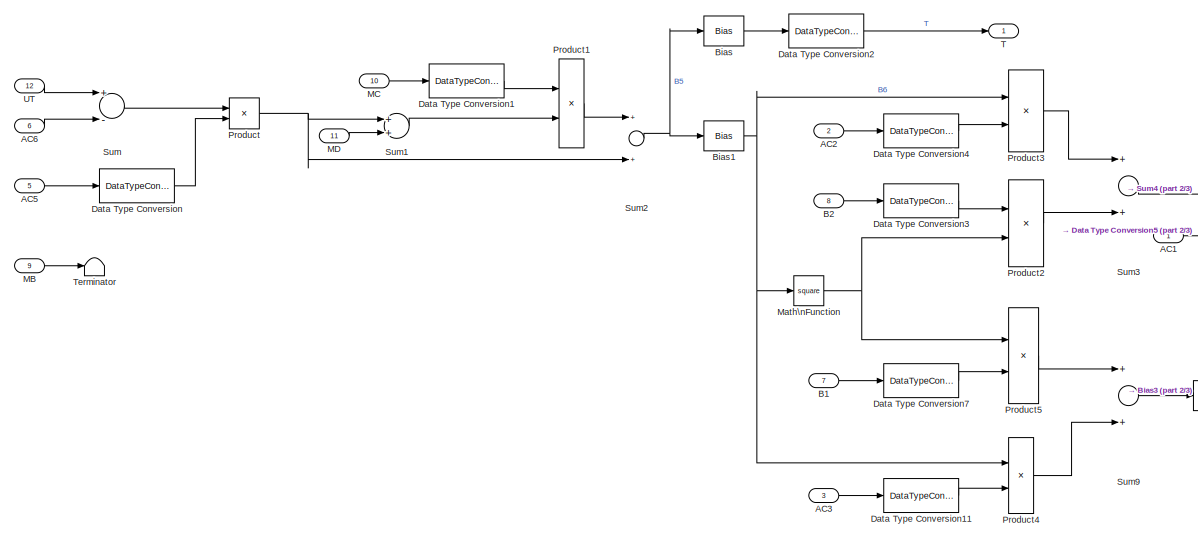
[diagram: Read Barometer BMP180/BMP 180\nTemperature Compensation\nSee datasheet - part 1/3, left side, full height]
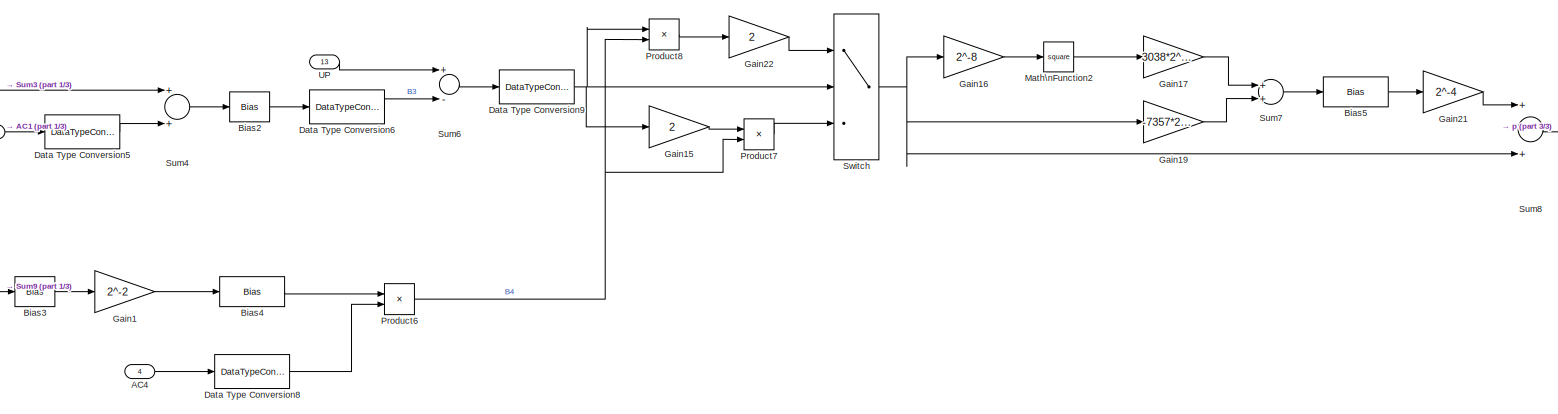
[diagram: Read Barometer BMP180/BMP 180\nTemperature Compensation\nSee datasheet - part 2/3, middle right region]
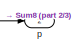
[diagram: Read Barometer BMP180/BMP 180\nTemperature Compensation\nSee datasheet - part 3/3, middle right region]
BLOCK [SubSystem] Read Barometer BMP180/BMP 180\nTemperature Compensation\nSee datasheet
  Ports = [13, 2]
  RequestExecContextInheritance = off
  SID = 137
BLOCK [Inport] Read Barometer BMP180/BMP 180\nTemperature Compensation\nSee datasheet/AC1
  IconDisplay = Port number
  SID = 138
BLOCK [Inport] Read Barometer BMP180/BMP 180\nTemperature Compensation\nSee datasheet/AC2
  IconDisplay = Port number
  Port = 2
  SID = 139
BLOCK [Inport] Read Barometer BMP180/BMP 180\nTemperature Compensation\nSee datasheet/AC3
  IconDisplay = Port number
  Port = 3
  SID = 140
BLOCK [Inport] Read Barometer BMP180/BMP 180\nTemperature Compensation\nSee datasheet/AC4
  IconDisplay = Port number
  Port = 4
  SID = 141
BLOCK [Inport] Read Barometer BMP180/BMP 180\nTemperature Compensation\nSee datasheet/AC5
  IconDisplay = Port number
  Port = 5
  SID = 142
BLOCK [Inport] Read Barometer BMP180/BMP 180\nTemperature Compensation\nSee datasheet/AC6
  IconDisplay = Port number
  Port = 6
  SID = 143
BLOCK [Inport] Read Barometer BMP180/BMP 180\nTemperature Compensation\nSee datasheet/B1
  IconDisplay = Port number
  Port = 7
  SID = 144
BLOCK [Inport] Read Barometer BMP180/BMP 180\nTemperature Compensation\nSee datasheet/B2
  IconDisplay = Port number
  Port = 8
  SID = 145
BLOCK [Bias] Read Barometer BMP180/BMP 180\nTemperature Compensation\nSee datasheet/Bias
  Bias = 8
  SID = 151
  SaturateOnIntegerOverflow = off
BLOCK [Bias] Read Barometer BMP180/BMP 180\nTemperature Compensation\nSee datasheet/Bias1
  Bias = -4000
  SID = 152
  SaturateOnIntegerOverflow = off
BLOCK [Bias] Read Barometer BMP180/BMP 180\nTemperature Compensation\nSee datasheet/Bias2
  Bias = 2
  SID = 153
  SaturateOnIntegerOverflow = off
BLOCK [Bias] Read Barometer BMP180/BMP 180\nTemperature Compensation\nSee datasheet/Bias3
  Bias = 2
  SID = 154
  SaturateOnIntegerOverflow = off
BLOCK [Bias] Read Barometer BMP180/BMP 180\nTemperature Compensation\nSee datasheet/Bias4
  Bias = 32768
  SID = 155
  SaturateOnIntegerOverflow = off
BLOCK [Bias] Read Barometer BMP180/BMP 180\nTemperature Compensation\nSee datasheet/Bias5
  Bias = 3791
  SID = 156
  SaturateOnIntegerOverflow = off
BLOCK [DataTypeConversion] Read Barometer BMP180/BMP 180\nTemperature Compensation\nSee datasheet/Data Type Conversion
  ConvertRealWorld = Stored Integer (SI)
  OutDataTypeStr = fixdt(0,16,15)
  RndMeth = Floor
  SID = 157
  SaturateOnIntegerOverflow = off
BLOCK [DataTypeConversion] Read Barometer BMP180/BMP 180\nTemperature Compensation\nSee datasheet/Data Type Conversion1
  ConvertRealWorld = Stored Integer (SI)
  OutDataTypeStr = fixdt(1,16,-11)
  RndMeth = Floor
  SID = 158
  SaturateOnIntegerOverflow = off
BLOCK [DataTypeConversion] Read Barometer BMP180/BMP 180\nTemperature Compensation\nSee datasheet/Data Type Conversion11
  ConvertRealWorld = Stored Integer (SI)
  OutDataTypeStr = fixdt(1,16,13)
  RndMeth = Floor
  SID = 159
  SaturateOnIntegerOverflow = off
BLOCK [DataTypeConversion] Read Barometer BMP180/BMP 180\nTemperature Compensation\nSee datasheet/Data Type Conversion2
  ConvertRealWorld = Stored Integer (SI)
  OutDataTypeStr = fixdt(1,16,4)
  RndMeth = Floor
  SID = 160
  SaturateOnIntegerOverflow = off
BLOCK [DataTypeConversion] Read Barometer BMP180/BMP 180\nTemperature Compensation\nSee datasheet/Data Type Conversion3
  ConvertRealWorld = Stored Integer (SI)
  OutDataTypeStr = fixdt(1,16,23)
  RndMeth = Floor
  SID = 161
  SaturateOnIntegerOverflow = off
BLOCK [DataTypeConversion] Read Barometer BMP180/BMP 180\nTemperature Compensation\nSee datasheet/Data Type Conversion4
  ConvertRealWorld = Stored Integer (SI)
  OutDataTypeStr = fixdt(1,16,11)
  RndMeth = Floor
  SID = 162
  SaturateOnIntegerOverflow = off
BLOCK [DataTypeConversion] Read Barometer BMP180/BMP 180\nTemperature Compensation\nSee datasheet/Data Type Conversion5
  ConvertRealWorld = Stored Integer (SI)
  OutDataTypeStr = fixdt(1,16,-2)
  RndMeth = Floor
  SID = 163
  SaturateOnIntegerOverflow = off
BLOCK [DataTypeConversion] Read Barometer BMP180/BMP 180\nTemperature Compensation\nSee datasheet/Data Type Conversion6
  ConvertRealWorld = Stored Integer (SI)
  OutDataTypeStr = fixdt(1,32,2)
  RndMeth = Floor
  SID = 164
  SaturateOnIntegerOverflow = off
BLOCK [DataTypeConversion] Read Barometer BMP180/BMP 180\nTemperature Compensation\nSee datasheet/Data Type Conversion7
  ConvertRealWorld = Stored Integer (SI)
  OutDataTypeStr = fixdt(1,16,12+16)
  RndMeth = Floor
  SID = 165
  SaturateOnIntegerOverflow = off
BLOCK [DataTypeConversion] Read Barometer BMP180/BMP 180\nTemperature Compensation\nSee datasheet/Data Type Conversion8
  ConvertRealWorld = Stored Integer (SI)
  OutDataTypeStr = fixdt(0,16,15)
  RndMeth = Floor
  SID = 166
  SaturateOnIntegerOverflow = off
BLOCK [DataTypeConversion] Read Barometer BMP180/BMP 180\nTemperature Compensation\nSee datasheet/Data Type Conversion9
  ConvertRealWorld = Stored Integer (SI)
  OutDataTypeStr = fixdt(0,32,5e4,0)
  RndMeth = Floor
  SID = 167
  SaturateOnIntegerOverflow = off
BLOCK [Gain] Read Barometer BMP180/BMP 180\nTemperature Compensation\nSee datasheet/Gain1
  Gain = 2^-2
  OutDataTypeStr = int32
  ParamDataTypeStr = Inherit: Inherit via internal rule
  SID = 168
  SaturateOnIntegerOverflow = off
BLOCK [Gain] Read Barometer BMP180/BMP 180\nTemperature Compensation\nSee datasheet/Gain15
  Gain = 2
  OutDataTypeStr = uint32
  ParamDataTypeStr = Inherit: Inherit via internal rule
  RndMeth = Round
  SID = 169
  SaturateOnIntegerOverflow = off
BLOCK [Gain] Read Barometer BMP180/BMP 180\nTemperature Compensation\nSee datasheet/Gain16
  Gain = 2^-8
  OutDataTypeStr = int32
  ParamDataTypeStr = Inherit: Inherit via internal rule
  RndMeth = Round
  SID = 170
  SaturateOnIntegerOverflow = off
BLOCK [Gain] Read Barometer BMP180/BMP 180\nTemperature Compensation\nSee datasheet/Gain17
  Gain = 3038*2^-16
  OutDataTypeStr = uint32
  ParamDataTypeStr = Inherit: Inherit via internal rule
  SID = 171
  SaturateOnIntegerOverflow = off
BLOCK [Gain] Read Barometer BMP180/BMP 180\nTemperature Compensation\nSee datasheet/Gain19
  Gain = -7357*2^-16
  OutDataTypeStr = int32
  ParamDataTypeStr = fixdt(1,16)
  SID = 172
  SaturateOnIntegerOverflow = off
BLOCK [Gain] Read Barometer BMP180/BMP 180\nTemperature Compensation\nSee datasheet/Gain21
  Gain = 2^-4
  ParamDataTypeStr = Inherit: Inherit via internal rule
  SID = 173
  SaturateOnIntegerOverflow = off
BLOCK [Gain] Read Barometer BMP180/BMP 180\nTemperature Compensation\nSee datasheet/Gain22
  Gain = 2
  ParamDataTypeStr = Inherit: Inherit via internal rule
  SID = 174
  SaturateOnIntegerOverflow = off
BLOCK [Inport] Read Barometer BMP180/BMP 180\nTemperature Compensation\nSee datasheet/MB
  IconDisplay = Port number
  Port = 9
  SID = 146
BLOCK [Inport] Read Barometer BMP180/BMP 180\nTemperature Compensation\nSee datasheet/MC
  IconDisplay = Port number
  Port = 10
  SID = 147
BLOCK [Inport] Read Barometer BMP180/BMP 180\nTemperature Compensation\nSee datasheet/MD
  IconDisplay = Port number
  Port = 11
  SID = 148
BLOCK [Math] Read Barometer BMP180/BMP 180\nTemperature Compensation\nSee datasheet/Math\nFunction
  Operator = square
  OutDataTypeStr = Inherit: Inherit via internal rule
  Ports = [1, 1]
  SID = 175
BLOCK [Math] Read Barometer BMP180/BMP 180\nTemperature Compensation\nSee datasheet/Math\nFunction2
  Operator = square
  OutDataTypeStr = uint32
  Ports = [1, 1]
  SID = 176
BLOCK [Product] Read Barometer BMP180/BMP 180\nTemperature Compensation\nSee datasheet/Product
  InputSameDT = off
  Ports = [2, 1]
  RndMeth = Round
  SID = 177
  SaturateOnIntegerOverflow = off
BLOCK [Product] Read Barometer BMP180/BMP 180\nTemperature Compensation\nSee datasheet/Product1
  InputSameDT = off
  Inputs = */
  OutDataTypeStr = int16
  Ports = [2, 1]
  RndMeth = Round
  SID = 178
  SaturateOnIntegerOverflow = off
BLOCK [Product] Read Barometer BMP180/BMP 180\nTemperature Compensation\nSee datasheet/Product2
  InputSameDT = off
  OutDataTypeStr = int16
  Ports = [2, 1]
  RndMeth = Floor
  SID = 179
  SaturateOnIntegerOverflow = off
BLOCK [Product] Read Barometer BMP180/BMP 180\nTemperature Compensation\nSee datasheet/Product3
  InputSameDT = off
  Ports = [2, 1]
  RndMeth = Floor
  SID = 180
  SaturateOnIntegerOverflow = off
BLOCK [Product] Read Barometer BMP180/BMP 180\nTemperature Compensation\nSee datasheet/Product4
  InputSameDT = off
  OutDataTypeStr = int16
  Ports = [2, 1]
  RndMeth = Floor
  SID = 181
  SaturateOnIntegerOverflow = off
BLOCK [Product] Read Barometer BMP180/BMP 180\nTemperature Compensation\nSee datasheet/Product5
  InputSameDT = off
  OutDataTypeStr = int16
  Ports = [2, 1]
  RndMeth = Floor
  SID = 182
  SaturateOnIntegerOverflow = off
BLOCK [Product] Read Barometer BMP180/BMP 180\nTemperature Compensation\nSee datasheet/Product6
  InputSameDT = off
  OutDataTypeStr = uint32
  Ports = [2, 1]
  RndMeth = Floor
  SID = 183
  SaturateOnIntegerOverflow = off
BLOCK [Product] Read Barometer BMP180/BMP 180\nTemperature Compensation\nSee datasheet/Product7
  InputSameDT = off
  Inputs = */
  OutDataTypeStr = Inherit: Inherit via internal rule
  Ports = [2, 1]
  RndMeth = Round
  SID = 184
  SaturateOnIntegerOverflow = off
BLOCK [Product] Read Barometer BMP180/BMP 180\nTemperature Compensation\nSee datasheet/Product8
  InputSameDT = off
  Inputs = */
  OutDataTypeStr = uint32
  Ports = [2, 1]
  RndMeth = Round
  SID = 185
  SaturateOnIntegerOverflow = off
BLOCK [Sum] Read Barometer BMP180/BMP 180\nTemperature Compensation\nSee datasheet/Sum
  InputSameDT = off
  Inputs = +-
  OutDataTypeStr = Inherit: Inherit via internal rule
  Ports = [2, 1]
  RndMeth = Round
  SID = 186
  SaturateOnIntegerOverflow = off
BLOCK [Sum] Read Barometer BMP180/BMP 180\nTemperature Compensation\nSee datasheet/Sum1
  AccumDataTypeStr = Inherit: Same as first input
  InputSameDT = off
  Ports = [2, 1]
  RndMeth = Round
  SID = 187
  SaturateOnIntegerOverflow = off
BLOCK [Sum] Read Barometer BMP180/BMP 180\nTemperature Compensation\nSee datasheet/Sum2
  AccumDataTypeStr = int16
  InputSameDT = off
  OutDataTypeStr = int16
  Ports = [2, 1]
  RndMeth = Round
  SID = 188
  SaturateOnIntegerOverflow = off
BLOCK [Sum] Read Barometer BMP180/BMP 180\nTemperature Compensation\nSee datasheet/Sum3
  InputSameDT = off
  OutDataTypeStr = Inherit: Inherit via internal rule
  Ports = [2, 1]
  SID = 189
  SaturateOnIntegerOverflow = off
BLOCK [Sum] Read Barometer BMP180/BMP 180\nTemperature Compensation\nSee datasheet/Sum4
  InputSameDT = off
  OutDataTypeStr = int32
  Ports = [2, 1]
  SID = 190
  SaturateOnIntegerOverflow = off
BLOCK [Sum] Read Barometer BMP180/BMP 180\nTemperature Compensation\nSee datasheet/Sum6
  AccumDataTypeStr = uint32
  InputSameDT = off
  Inputs = +-
  OutDataTypeStr = uint32
  Ports = [2, 1]
  SID = 191
  SaturateOnIntegerOverflow = off
BLOCK [Sum] Read Barometer BMP180/BMP 180\nTemperature Compensation\nSee datasheet/Sum7
  AccumDataTypeStr = int32
  InputSameDT = off
  OutDataTypeStr = int32
  Ports = [2, 1]
  SID = 192
  SaturateOnIntegerOverflow = off
BLOCK [Sum] Read Barometer BMP180/BMP 180\nTemperature Compensation\nSee datasheet/Sum8
  AccumDataTypeStr = int32
  InputSameDT = off
  OutDataTypeStr = Inherit: Same as accumulator
  Ports = [2, 1]
  RndMeth = Round
  SID = 193
  SaturateOnIntegerOverflow = off
BLOCK [Sum] Read Barometer BMP180/BMP 180\nTemperature Compensation\nSee datasheet/Sum9
  InputSameDT = off
  OutDataTypeStr = Inherit: Inherit via internal rule
  Ports = [2, 1]
  SID = 194
  SaturateOnIntegerOverflow = off
BLOCK [Switch] Read Barometer BMP180/BMP 180\nTemperature Compensation\nSee datasheet/Switch
  Criteria = u2 > Threshold
  InputSameDT = off
  SID = 195
  SaturateOnIntegerOverflow = off
  Threshold = (2^31-1)*50000
BLOCK [Outport] Read Barometer BMP180/BMP 180\nTemperature Compensation\nSee datasheet/T
  IconDisplay = Port number
  SID = 197
BLOCK [Terminator] Read Barometer BMP180/BMP 180\nTemperature Compensation\nSee datasheet/Terminator
  SID = 196
BLOCK [Inport] Read Barometer BMP180/BMP 180\nTemperature Compensation\nSee datasheet/UP
  IconDisplay = Port number
  Port = 13
  SID = 150
BLOCK [Inport] Read Barometer BMP180/BMP 180\nTemperature Compensation\nSee datasheet/UT
  IconDisplay = Port number
  Port = 12
  SID = 149
BLOCK [Outport] Read Barometer BMP180/BMP 180\nTemperature Compensation\nSee datasheet/p
  IconDisplay = Port number
  Port = 2
  SID = 198
BLOCK [Reference] Read Barometer BMP180/BUS I2C\nInitialize BMP180\nRead P, Convert T° @100Hz  REF=MCHP_Blockset/BUS I2C/BUS I2C\nMASTER
  BlockingMode = off
  I2CRef = 2
  I2C_IntPriority = 6
  I2Csequence_num = [BFF0000000000000 40E0600000000000 41186A0000000000 4118666E3C87173F]$[4070000000000000]$[3FF0000000000000 40E0200000000000 40F86A0000000000 40F866E066594CA2]$[4040000000000000 0000000000000000 0000000000000000 405DC00000000000]$[4050000000000000 3FF0000000000000 0000000000000000 406EC00000000000]$[4008000000000000 40E0000000000000 40F86A0000000000 410065D9C7810E65]$[4060000000000000 4000000000000...<+371ch>
  I2Csequence_txt = Initial-Configuration$     ---     $Start$Write Address:{[0x77]}    % BMP180 Address$Write Data (x1)  Write:{[0xF6]}  $Re-Start    % Re-Start when not followed with either Read or Write action rethrow Address$Read Data (x2)  Read:{adc out}    % Read converted value$Stop$Start$Write Address:{[0x77]}    % BMP180 Address$Write Data (x1)  Write:{[0xF4 0x2E]}      % Start T° Conversion$Stop
  InitialConfigurationNum = 0
  MCHP_MASTERLINK = AUAV3_AND_SLUGS_SENSOR/Microchip Master\nAUAV V3 Board\nBusy Flag on D2 (RA6)
  MCHP_PORT = {I2C 2 Clock}{SCL2}13:0:A2;{I2C 2 SDA}{SDA2}13:0:A3;
  ORDERING = 0
  PIN_SCL_TXT = A2 / Pin[58]
  PIN_SDA_TXT = A3 / Pin[59]
  Ports = [0, 1]
  SID = 199
  S_INPUT = [5  5]
  S_INPUT_Size = [2  2]
  S_OUTPUT = [5]
  S_OUTPUT_Size = [4]
  SampleTime = [ .01]
  SourceBlock = MCHP_Blockset/BUS I2C/BUS I2C\nMASTER
  SourceType = I2C Driver
BLOCK [Reference] Read Barometer BMP180/BUS I2C\nInitialize BMP180\nRead T°, Convert P @ 100Hz  REF=MCHP_Blockset/BUS I2C/BUS I2C\nMASTER
  BlockingMode = off
  I2CRef = 2
  I2C_IntPriority = 6
  I2Csequence_num = [BFF0000000000000 40E0600000000000 41186A0000000000 4118666E3C87173F]$[4070000000000000]$[3FF0000000000000 40E0200000000000 40F86A0000000000 40F866E066594CA2]$[4040000000000000 0000000000000000 0000000000000000 405DC00000000000]$[4050000000000000 3FF0000000000000 0000000000000000 406EC00000000000]$[4008000000000000 40E0000000000000 40F86A0000000000 410065D9C7810E65]$[4060000000000000 4000000000000...<+371ch>
  I2Csequence_txt = Initial-Configuration$     ---     $Start$Write Address:{[0x77]}    % BMP180 Address$Write Data (x1)  Write:{[0xF6]}  $Re-Start    % Re-Start when not followed with either Read or Write action rethrow Address$Read Data (x2)  Read:{adc out}    % Read converted value$Stop$Start$Write Address:{[0x77]}    % BMP180 Address$Write Data (x1)  Write:{[0xF4 0x34]}      % Start T° Conversion$Stop
  InitialConfigurationNum = 0
  MCHP_MASTERLINK = AUAV3_AND_SLUGS_SENSOR/Microchip Master\nAUAV V3 Board\nBusy Flag on D2 (RA6)
  MCHP_PORT = {I2C 2 Clock}{SCL2}13:0:A2;{I2C 2 SDA}{SDA2}13:0:A3;
  ORDERING = 0
  PIN_SCL_TXT = A2 / Pin[58]
  PIN_SDA_TXT = A3 / Pin[59]
  Ports = [0, 1]
  SID = 200
  S_INPUT = [5  5]
  S_INPUT_Size = [2  2]
  S_OUTPUT = [5]
  S_OUTPUT_Size = [4]
  SampleTime = [.01]
  SourceBlock = MCHP_Blockset/BUS I2C/BUS I2C\nMASTER
  SourceType = I2C Driver
BLOCK [SubSystem] Read Barometer BMP180/Baro Altimeter
  AncestorBlock = SLUGS_Library/Sensor Blocks/Baro Alt/Baro Altimeter
  Ports = [1, 1]
  RequestExecContextInheritance = off
  SID = 201
BLOCK [Outport] Read Barometer BMP180/Baro Altimeter/Altitude
  IconDisplay = Port number
  SID = 201:14564
BLOCK [SubSystem] Read Barometer BMP180/Baro Altimeter/Compute Barometric\nHeight
  Ports = [3, 1]
  RequestExecContextInheritance = off
  SID = 201:14519
BLOCK [Outport] Read Barometer BMP180/Baro Altimeter/Compute Barometric\nHeight/Altitude, m
  IconDisplay = Port number
  SID = 201:14536
BLOCK [Inport] Read Barometer BMP180/Baro Altimeter/Compute Barometric\nHeight/Baro (Pa)
  IconDisplay = Port number
  Port = 3
  SID = 201:14522
BLOCK [Inport] Read Barometer BMP180/Baro Altimeter/Compute Barometric\nHeight/Base Height (m)
  IconDisplay = Port number
  SID = 201:14520
BLOCK [Inport] Read Barometer BMP180/Baro Altimeter/Compute Barometric\nHeight/Base Pressure (Pa)
  IconDisplay = Port number
  Port = 2
  SID = 201:14521
BLOCK [Constant] Read Barometer BMP180/Baro Altimeter/Compute Barometric\nHeight/Constant2
  OutDataTypeStr = single
  SID = 201:14523
  Value = baseTemp/(-LapseRate)
BLOCK [Constant] Read Barometer BMP180/Baro Altimeter/Compute Barometric\nHeight/Constant3
  OutDataTypeStr = single
  SID = 201:14524
  Value = 9.350253e-2
BLOCK [Constant] Read Barometer BMP180/Baro Altimeter/Compute Barometric\nHeight/Constant4
  OutDataTypeStr = single
  SID = 201:14525
  Value = -1.888933e-1
BLOCK [Constant] Read Barometer BMP180/Baro Altimeter/Compute Barometric\nHeight/Constant5
  OutDataTypeStr = single
  SID = 201:14526
  Value = 2.180313e-5
BLOCK [Product] Read Barometer BMP180/Baro Altimeter/Compute Barometric\nHeight/Divide
  InputSameDT = off
  Inputs = */
  OutDataTypeStr = single
  Ports = [2, 1]
  RndMeth = Floor
  SID = 201:14527
  SaturateOnIntegerOverflow = off
BLOCK [Product] Read Barometer BMP180/Baro Altimeter/Compute Barometric\nHeight/Divide1
  InputSameDT = off
  OutDataTypeStr = single
  Ports = [2, 1]
  RndMeth = Floor
  SID = 201:14528
  SaturateOnIntegerOverflow = off
BLOCK [Product] Read Barometer BMP180/Baro Altimeter/Compute Barometric\nHeight/Divide2
  InputSameDT = off
  OutDataTypeStr = single
  Ports = [2, 1]
  RndMeth = Floor
  SID = 201:14529
  SaturateOnIntegerOverflow = off
BLOCK [Product] Read Barometer BMP180/Baro Altimeter/Compute Barometric\nHeight/Divide3
  InputSameDT = off
  OutDataTypeStr = single
  Ports = [2, 1]
  RndMeth = Floor
  SID = 201:14530
  SaturateOnIntegerOverflow = off
BLOCK [Product] Read Barometer BMP180/Baro Altimeter/Compute Barometric\nHeight/Divide4
  InputSameDT = off
  OutDataTypeStr = single
  Ports = [2, 1]
  RndMeth = Floor
  SID = 201:14531
  SaturateOnIntegerOverflow = off
BLOCK [Reference] Read Barometer BMP180/Baro Altimeter/Compute Barometric\nHeight/Length Conversion  REF=aerolibconvert2/Length Conversion
  IU = ft
  OU = m
  Ports = [1, 1]
  SID = 201:14532
  SourceBlock = aerolibconvert2/Length Conversion
  SourceType = Length Conversion
BLOCK [Sum] Read Barometer BMP180/Baro Altimeter/Compute Barometric\nHeight/Sum1
  IconShape = round
  InputSameDT = off
  Inputs = |++
  OutDataTypeStr = single
  Ports = [2, 1]
  SID = 201:14533
  SaturateOnIntegerOverflow = off
BLOCK [Sum] Read Barometer BMP180/Baro Altimeter/Compute Barometric\nHeight/Sum2
  IconShape = round
  InputSameDT = off
  Inputs = |+-
  OutDataTypeStr = single
  Ports = [2, 1]
  SID = 201:14534
  SaturateOnIntegerOverflow = off
BLOCK [Sum] Read Barometer BMP180/Baro Altimeter/Compute Barometric\nHeight/Sum3
  InputSameDT = off
  Inputs = 3
  OutDataTypeStr = single
  Ports = [3, 1]
  SID = 201:14535
  SaturateOnIntegerOverflow = off
BLOCK [Constant] Read Barometer BMP180/Baro Altimeter/Constant5
  OutDataTypeStr = single
  SID = 201:15792
  Value = baseHeight
BLOCK [SubSystem] Read Barometer BMP180/Baro Altimeter/Enabled\nSubsystem
  Ports = [1, 1, 1]
  RequestExecContextInheritance = off
  SID = 201:14537
  TreatAsAtomicUnit = on
BLOCK [EnablePort] Read Barometer BMP180/Baro Altimeter/Enabled\nSubsystem/Enable
  Ports = []
  SID = 201:14539
BLOCK [Inport] Read Barometer BMP180/Baro Altimeter/Enabled\nSubsystem/In1
  IconDisplay = Port number
  SID = 201:14538
BLOCK [Outport] Read Barometer BMP180/Baro Altimeter/Enabled\nSubsystem/Out1
  IconDisplay = Port number
  InitialOutput = baseHeight
  SID = 201:14540
BLOCK [SubSystem] Read Barometer BMP180/Baro Altimeter/Enables//Disables\nthe Computation of \ninitial Baro Bias
  ErrorFcn = Stateflow.Translate.translate
  PermitHierarchicalResolution = ExplicitOnly
  Ports = [0, 1]
  RequestExecContextInheritance = off
  SFBlockType = MATLAB Function
  SID = 201:14541
  TreatAsAtomicUnit = on
BLOCK [Demux] Read Barometer BMP180/Baro Altimeter/Enables//Disables\nthe Computation of \ninitial Baro Bias/ Demux 
  Outputs = 1
  Ports = [1, 1]
  SID = 201:14541::15
BLOCK [Ground] Read Barometer BMP180/Baro Altimeter/Enables//Disables\nthe Computation of \ninitial Baro Bias/ Ground 
  SID = 201:14541::17
BLOCK [S-Function] Read Barometer BMP180/Baro Altimeter/Enables//Disables\nthe Computation of \ninitial Baro Bias/ SFunction 
  EnableBusSupport = on
  FunctionName = sf_sfun
  PortCounts = [1 2]
  Ports = [1, 2]
  SID = 201:14541::14
  Tag = Stateflow S-Function AUAV3_AND_SLUGS_SENSOR 22
BLOCK [Terminator] Read Barometer BMP180/Baro Altimeter/Enables//Disables\nthe Computation of \ninitial Baro Bias/ Terminator 
  SID = 201:14541::16
BLOCK [Outport] Read Barometer BMP180/Baro Altimeter/Enables//Disables\nthe Computation of \ninitial Baro Bias/tOut
  IconDisplay = Port number
  SID = 201:14541::5
BLOCK [SubSystem] Read Barometer BMP180/Baro Altimeter/Initial Baro Bias
  Ports = [1, 1, 1]
  RequestExecContextInheritance = off
  SID = 201:14547
  TreatAsAtomicUnit = on
BLOCK [Outport] Read Barometer BMP180/Baro Altimeter/Initial Baro Bias/Baro (Gnd)
  IconDisplay = Port number
  SID = 201:14554
BLOCK [Inport] Read Barometer BMP180/Baro Altimeter/Initial Baro Bias/Baro (Pa)
  IconDisplay = Port number
  SID = 201:14548
BLOCK [DataTypeConversion] Read Barometer BMP180/Baro Altimeter/Initial Baro Bias/Data Type Conversion
  OutDataTypeStr = double
  RndMeth = Floor
  SID = 201:14550
  SaturateOnIntegerOverflow = off
BLOCK [DataTypeConversion] Read Barometer BMP180/Baro Altimeter/Initial Baro Bias/Data Type Conversion1
  OutDataTypeStr = single
  RndMeth = Floor
  SID = 201:14551
  SaturateOnIntegerOverflow = off
BLOCK [EnablePort] Read Barometer BMP180/Baro Altimeter/Initial Baro Bias/Enable
  Ports = []
  SID = 201:14549
BLOCK [SubSystem] Read Barometer BMP180/Baro Altimeter/Initial Baro Bias/Low Pass8
  Ports = [1, 1]
  RequestExecContextInheritance = off
  SID = 201:14552
BLOCK [DiscreteZeroPole] Read Barometer BMP180/Baro Altimeter/Initial Baro Bias/Low Pass8/Discrete\nZero-Pole
  Gain = gaind
  Poles = polesd
  SID = 201:14552:2
  SampleTime = SampleTime
  Zeros = zerosd
BLOCK [Inport] Read Barometer BMP180/Baro Altimeter/Initial Baro Bias/Low Pass8/In1
  IconDisplay = Port number
  SID = 201:14552:1
BLOCK [Outport] Read Barometer BMP180/Baro Altimeter/Initial Baro Bias/Low Pass8/Out1
  IconDisplay = Port number
  SID = 201:14552:3
BLOCK [Saturate] Read Barometer BMP180/Baro Altimeter/Initial Baro Bias/[80k - 120k]
  InputPortMap = u0
  LowerLimit = 80000
  Ports = [1, 1]
  SID = 201:14553
  UpperLimit = 120000
BLOCK [Logic] Read Barometer BMP180/Baro Altimeter/Logical\nOperator
  AllPortsSameDT = off
  Operator = NOT
  OutDataTypeStr = boolean
  Ports = [1, 1]
  SID = 201:14555
BLOCK [Inport] Read Barometer BMP180/Baro Altimeter/Static (Pa)
  IconDisplay = Port number
  SID = 201:14518
BLOCK [Sum] Read Barometer BMP180/Baro Altimeter/Sum1
  IconShape = round
  InputSameDT = off
  Inputs = ++|
  OutDataTypeStr = single
  Ports = [2, 1]
  SID = 201:14556
  SaturateOnIntegerOverflow = off
BLOCK [SubSystem] Read Barometer BMP180/Baro Altimeter/Zero Out Height
  Ports = [2, 1, 1]
  RequestExecContextInheritance = off
  SID = 201:14557
  TreatAsAtomicUnit = on
BLOCK [Inport] Read Barometer BMP180/Baro Altimeter/Zero Out Height/Base Height
  IconDisplay = Port number
  SID = 201:14558
BLOCK [Inport] Read Barometer BMP180/Baro Altimeter/Zero Out Height/Computed Height
  IconDisplay = Port number
  Port = 2
  SID = 201:14559
BLOCK [EnablePort] Read Barometer BMP180/Baro Altimeter/Zero Out Height/Enable
  Ports = []
  SID = 201:14560
BLOCK [Outport] Read Barometer BMP180/Baro Altimeter/Zero Out Height/Height Offset
  IconDisplay = Port number
  SID = 201:14563
BLOCK [Delay] Read Barometer BMP180/Baro Altimeter/Zero Out Height/Integer Delay
  DelayLength = 1
  InitialCondition = 0
  InputPortMap = u0
  InputProcessing = Inherited
  Ports = [1, 1]
  SID = 201:14561
  SampleTime = .01
BLOCK [Sum] Read Barometer BMP180/Baro Altimeter/Zero Out Height/Sum
  IconShape = round
  InputSameDT = off
  Inputs = |+-
  OutDataTypeStr = single
  Ports = [2, 1]
  SID = 201:14562
  SaturateOnIntegerOverflow = off
BLOCK [Constant] Read Barometer BMP180/Constant
  OutDataTypeStr = uint16
  SID = 202
  Value = 0
BLOCK [DataTypeConversion] Read Barometer BMP180/Data Type Conversion10
  OutDataTypeStr = int16
  RndMeth = Floor
  SID = 403
  SaturateOnIntegerOverflow = off
BLOCK [DataTypeConversion] Read Barometer BMP180/Data Type Conversion7
  OutDataTypeStr = int16
  RndMeth = Floor
  SID = 401
  SaturateOnIntegerOverflow = off
BLOCK [DataTypeConversion] Read Barometer BMP180/Data Type Conversion8
  OutDataTypeStr = int16
  RndMeth = Floor
  SID = 400
  SaturateOnIntegerOverflow = off
BLOCK [DataTypeConversion] Read Barometer BMP180/Data Type Conversion9
  OutDataTypeStr = single
  RndMeth = Floor
  SID = 402
  SaturateOnIntegerOverflow = off
BLOCK [Delay] Read Barometer BMP180/Delay
  DelayLength = 1
  InitialCondition = 1
  InputPortMap = u0
  InputProcessing = Inherited
  Ports = [1, 1]
  SID = 206
  SampleTime = .01
BLOCK [Demux] Read Barometer BMP180/Demux4
  DisplayOption = bar
  Outputs = 2
  Ports = [1, 2]
  SID = 207
BLOCK [Demux] Read Barometer BMP180/Demux5
  DisplayOption = bar
  Outputs = 2
  Ports = [1, 2]
  SID = 208
BLOCK [Gain] Read Barometer BMP180/Gain21
  Gain = 10
  OutDataTypeStr = int16
  ParamDataTypeStr = Inherit: Inherit via internal rule
  SID = 404
  SaturateOnIntegerOverflow = off
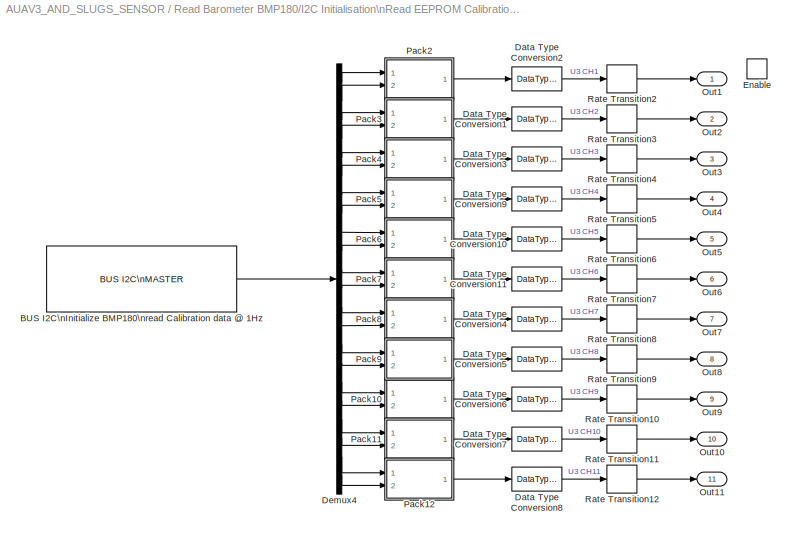
BLOCK [SubSystem] Read Barometer BMP180/I2C Initialisation\nRead EEPROM Calibration data\nOnce (Blocking Function)
  Ports = [0, 11, 1]
  RequestExecContextInheritance = off
  SID = 209
BLOCK [Reference] Read Barometer BMP180/I2C Initialisation\nRead EEPROM Calibration data\nOnce (Blocking Function)/BUS I2C\nInitialize BMP180\nread Calibration data @ 1Hz  REF=MCHP_Blockset/BUS I2C/BUS I2C\nMASTER
  BlockingMode = on
  I2CRef = 2
  I2C_IntPriority = 6
  I2Csequence_num = [BFF0000000000000 40E0600000000000 41186A0000000000 4118666E3C87173F]$[4070000000000000]$[3FF0000000000000 40E0200000000000 40F86A0000000000 40F866E066594CA2]$[4040000000000000 0000000000000000 0000000000000000 405DC00000000000]$[4050000000000000 3FF0000000000000 0000000000000000 4065400000000000]$[4008000000000000 40E0000000000000 40F86A0000000000 410065D9C7810E65]$[4060000000000000 4036000000000...<+74ch>
  I2Csequence_txt = Initial-Configuration$     ---     $Start$Write Address:{[0x77]}    % BMP180 Address$Write Data (x1)  Write:{[0xAA ]}  $Re-Start    % Re-Start when not followed with either Read or Write action rethrow Address$Read Data (x22)  Read:{Out 9}$Stop
  InitialConfigurationNum = 0
  MCHP_MASTERLINK = AUAV3_AND_SLUGS_SENSOR/Microchip Master\nAUAV V3 Board\nBusy Flag on D2 (RA6)
  MCHP_PORT = {I2C 2 Clock}{SCL2}13:0:A2;{I2C 2 SDA}{SDA2}13:0:A3;
  ORDERING = 0
  PIN_SCL_TXT = A2 / Pin[58]
  PIN_SDA_TXT = A3 / Pin[59]
  Ports = [0, 1]
  SID = 211
  S_INPUT = [5  5]
  S_INPUT_Size = [2  2]
  S_OUTPUT = [5]
  S_OUTPUT_Size = [4]
  SampleTime = .01
  SourceBlock = MCHP_Blockset/BUS I2C/BUS I2C\nMASTER
  SourceType = I2C Driver
BLOCK [DataTypeConversion] Read Barometer BMP180/I2C Initialisation\nRead EEPROM Calibration data\nOnce (Blocking Function)/Data Type Conversion1
  ConvertRealWorld = Stored Integer (SI)
  OutDataTypeStr = int16
  RndMeth = Floor
  SID = 212
  SaturateOnIntegerOverflow = off
BLOCK [DataTypeConversion] Read Barometer BMP180/I2C Initialisation\nRead EEPROM Calibration data\nOnce (Blocking Function)/Data Type Conversion10
  ConvertRealWorld = Stored Integer (SI)
  LockScale = on
  OutDataTypeStr = uint16
  RndMeth = Floor
  SID = 213
  SaturateOnIntegerOverflow = off
BLOCK [DataTypeConversion] Read Barometer BMP180/I2C Initialisation\nRead EEPROM Calibration data\nOnce (Blocking Function)/Data Type Conversion11
  ConvertRealWorld = Stored Integer (SI)
  LockScale = on
  OutDataTypeStr = uint16
  RndMeth = Floor
  SID = 214
  SaturateOnIntegerOverflow = off
BLOCK [DataTypeConversion] Read Barometer BMP180/I2C Initialisation\nRead EEPROM Calibration data\nOnce (Blocking Function)/Data Type Conversion2
  ConvertRealWorld = Stored Integer (SI)
  OutDataTypeStr = int16
  RndMeth = Floor
  SID = 215
  SaturateOnIntegerOverflow = off
BLOCK [DataTypeConversion] Read Barometer BMP180/I2C Initialisation\nRead EEPROM Calibration data\nOnce (Blocking Function)/Data Type Conversion3
  ConvertRealWorld = Stored Integer (SI)
  OutDataTypeStr = int16
  RndMeth = Floor
  SID = 216
  SaturateOnIntegerOverflow = off
BLOCK [DataTypeConversion] Read Barometer BMP180/I2C Initialisation\nRead EEPROM Calibration data\nOnce (Blocking Function)/Data Type Conversion4
  ConvertRealWorld = Stored Integer (SI)
  OutDataTypeStr = int16
  RndMeth = Floor
  SID = 217
  SaturateOnIntegerOverflow = off
BLOCK [DataTypeConversion] Read Barometer BMP180/I2C Initialisation\nRead EEPROM Calibration data\nOnce (Blocking Function)/Data Type Conversion5
  ConvertRealWorld = Stored Integer (SI)
  OutDataTypeStr = int16
  RndMeth = Floor
  SID = 218
  SaturateOnIntegerOverflow = off
BLOCK [DataTypeConversion] Read Barometer BMP180/I2C Initialisation\nRead EEPROM Calibration data\nOnce (Blocking Function)/Data Type Conversion6
  ConvertRealWorld = Stored Integer (SI)
  OutDataTypeStr = int16
  RndMeth = Floor
  SID = 219
  SaturateOnIntegerOverflow = off
BLOCK [DataTypeConversion] Read Barometer BMP180/I2C Initialisation\nRead EEPROM Calibration data\nOnce (Blocking Function)/Data Type Conversion7
  ConvertRealWorld = Stored Integer (SI)
  OutDataTypeStr = int16
  RndMeth = Floor
  SID = 220
  SaturateOnIntegerOverflow = off
BLOCK [DataTypeConversion] Read Barometer BMP180/I2C Initialisation\nRead EEPROM Calibration data\nOnce (Blocking Function)/Data Type Conversion8
  ConvertRealWorld = Stored Integer (SI)
  OutDataTypeStr = int16
  RndMeth = Floor
  SID = 221
  SaturateOnIntegerOverflow = off
BLOCK [DataTypeConversion] Read Barometer BMP180/I2C Initialisation\nRead EEPROM Calibration data\nOnce (Blocking Function)/Data Type Conversion9
  ConvertRealWorld = Stored Integer (SI)
  LockScale = on
  OutDataTypeStr = uint16
  RndMeth = Floor
  SID = 222
  SaturateOnIntegerOverflow = off
BLOCK [Demux] Read Barometer BMP180/I2C Initialisation\nRead EEPROM Calibration data\nOnce (Blocking Function)/Demux4
  DisplayOption = bar
  Outputs = 22
  Ports = [1, 22]
  SID = 223
BLOCK [EnablePort] Read Barometer BMP180/I2C Initialisation\nRead EEPROM Calibration data\nOnce (Blocking Function)/Enable
  Ports = []
  SID = 210
BLOCK [Outport] Read Barometer BMP180/I2C Initialisation\nRead EEPROM Calibration data\nOnce (Blocking Function)/Out1
  IconDisplay = Port number
  SID = 334
BLOCK [Outport] Read Barometer BMP180/I2C Initialisation\nRead EEPROM Calibration data\nOnce (Blocking Function)/Out10
  IconDisplay = Port number
  Port = 10
  SID = 343
BLOCK [Outport] Read Barometer BMP180/I2C Initialisation\nRead EEPROM Calibration data\nOnce (Blocking Function)/Out11
  IconDisplay = Port number
  Port = 11
  SID = 344
BLOCK [Outport] Read Barometer BMP180/I2C Initialisation\nRead EEPROM Calibration data\nOnce (Blocking Function)/Out2
  IconDisplay = Port number
  Port = 2
  SID = 335
BLOCK [Outport] Read Barometer BMP180/I2C Initialisation\nRead EEPROM Calibration data\nOnce (Blocking Function)/Out3
  IconDisplay = Port number
  Port = 3
  SID = 336
BLOCK [Outport] Read Barometer BMP180/I2C Initialisation\nRead EEPROM Calibration data\nOnce (Blocking Function)/Out4
  IconDisplay = Port number
  Port = 4
  SID = 337
BLOCK [Outport] Read Barometer BMP180/I2C Initialisation\nRead EEPROM Calibration data\nOnce (Blocking Function)/Out5
  IconDisplay = Port number
  Port = 5
  SID = 338
BLOCK [Outport] Read Barometer BMP180/I2C Initialisation\nRead EEPROM Calibration data\nOnce (Blocking Function)/Out6
  IconDisplay = Port number
  Port = 6
  SID = 339
BLOCK [Outport] Read Barometer BMP180/I2C Initialisation\nRead EEPROM Calibration data\nOnce (Blocking Function)/Out7
  IconDisplay = Port number
  Port = 7
  SID = 340
BLOCK [Outport] Read Barometer BMP180/I2C Initialisation\nRead EEPROM Calibration data\nOnce (Blocking Function)/Out8
  IconDisplay = Port number
  Port = 8
  SID = 341
BLOCK [Outport] Read Barometer BMP180/I2C Initialisation\nRead EEPROM Calibration data\nOnce (Blocking Function)/Out9
  IconDisplay = Port number
  Port = 9
  SID = 342
BLOCK [SubSystem] Read Barometer BMP180/I2C Initialisation\nRead EEPROM Calibration data\nOnce (Blocking Function)/Pack10
  Ports = [2, 1]
  RequestExecContextInheritance = off
  SID = 224
BLOCK [Reference] Read Barometer BMP180/I2C Initialisation\nRead EEPROM Calibration data\nOnce (Blocking Function)/Pack10/Bitwise\nOperator  REF=simulink/Logic and Bit\nOperations/Bitwise\nOperator
  BitMask = bin2dec('11011001')
  BitMaskRealWorld = Stored Integer
  NumInputPorts = 2
  Ports = [2, 1]
  SID = 227
  SourceBlock = simulink/Logic and Bit\nOperations/Bitwise\nOperator
  SourceType = Bitwise Operator
  UseBitMask = off
  logicop = OR
BLOCK [DataTypeConversion] Read Barometer BMP180/I2C Initialisation\nRead EEPROM Calibration data\nOnce (Blocking Function)/Pack10/Data Type Conversion1
  ConvertRealWorld = Stored Integer (SI)
  OutDataTypeStr = uint16
  RndMeth = Floor
  SID = 228
  SaturateOnIntegerOverflow = off
BLOCK [DataTypeConversion] Read Barometer BMP180/I2C Initialisation\nRead EEPROM Calibration data\nOnce (Blocking Function)/Pack10/Data Type Conversion2
  ConvertRealWorld = Stored Integer (SI)
  OutDataTypeStr = uint16
  RndMeth = Floor
  SID = 229
  SaturateOnIntegerOverflow = off
BLOCK [DataTypeConversion] Read Barometer BMP180/I2C Initialisation\nRead EEPROM Calibration data\nOnce (Blocking Function)/Pack10/Data Type Conversion3
  ConvertRealWorld = Stored Integer (SI)
  OutDataTypeStr = uint16
  RndMeth = Floor
  SID = 230
  SaturateOnIntegerOverflow = off
BLOCK [Gain] Read Barometer BMP180/I2C Initialisation\nRead EEPROM Calibration data\nOnce (Blocking Function)/Pack10/Gain
  Gain = 2^8
  ParamDataTypeStr = Inherit: Inherit via internal rule
  SID = 231
  SaturateOnIntegerOverflow = off
BLOCK [Inport] Read Barometer BMP180/I2C Initialisation\nRead EEPROM Calibration data\nOnce (Blocking Function)/Pack10/Hi
  IconDisplay = Port number
  SID = 225
BLOCK [Inport] Read Barometer BMP180/I2C Initialisation\nRead EEPROM Calibration data\nOnce (Blocking Function)/Pack10/Low
  IconDisplay = Port number
  Port = 2
  SID = 226
BLOCK [Outport] Read Barometer BMP180/I2C Initialisation\nRead EEPROM Calibration data\nOnce (Blocking Function)/Pack10/Out1
  IconDisplay = Port number
  SID = 232
BLOCK [SubSystem] Read Barometer BMP180/I2C Initialisation\nRead EEPROM Calibration data\nOnce (Blocking Function)/Pack11
  Ports = [2, 1]
  RequestExecContextInheritance = off
  SID = 233
BLOCK [Reference] Read Barometer BMP180/I2C Initialisation\nRead EEPROM Calibration data\nOnce (Blocking Function)/Pack11/Bitwise\nOperator  REF=simulink/Logic and Bit\nOperations/Bitwise\nOperator
  BitMask = bin2dec('11011001')
  BitMaskRealWorld = Stored Integer
  NumInputPorts = 2
  Ports = [2, 1]
  SID = 236
  SourceBlock = simulink/Logic and Bit\nOperations/Bitwise\nOperator
  SourceType = Bitwise Operator
  UseBitMask = off
  logicop = OR
BLOCK [DataTypeConversion] Read Barometer BMP180/I2C Initialisation\nRead EEPROM Calibration data\nOnce (Blocking Function)/Pack11/Data Type Conversion1
  ConvertRealWorld = Stored Integer (SI)
  OutDataTypeStr = uint16
  RndMeth = Floor
  SID = 237
  SaturateOnIntegerOverflow = off
BLOCK [DataTypeConversion] Read Barometer BMP180/I2C Initialisation\nRead EEPROM Calibration data\nOnce (Blocking Function)/Pack11/Data Type Conversion2
  ConvertRealWorld = Stored Integer (SI)
  OutDataTypeStr = uint16
  RndMeth = Floor
  SID = 238
  SaturateOnIntegerOverflow = off
BLOCK [DataTypeConversion] Read Barometer BMP180/I2C Initialisation\nRead EEPROM Calibration data\nOnce (Blocking Function)/Pack11/Data Type Conversion3
  ConvertRealWorld = Stored Integer (SI)
  OutDataTypeStr = uint16
  RndMeth = Floor
  SID = 239
  SaturateOnIntegerOverflow = off
BLOCK [Gain] Read Barometer BMP180/I2C Initialisation\nRead EEPROM Calibration data\nOnce (Blocking Function)/Pack11/Gain
  Gain = 2^8
  ParamDataTypeStr = Inherit: Inherit via internal rule
  SID = 240
  SaturateOnIntegerOverflow = off
BLOCK [Inport] Read Barometer BMP180/I2C Initialisation\nRead EEPROM Calibration data\nOnce (Blocking Function)/Pack11/Hi
  IconDisplay = Port number
  SID = 234
BLOCK [Inport] Read Barometer BMP180/I2C Initialisation\nRead EEPROM Calibration data\nOnce (Blocking Function)/Pack11/Low
  IconDisplay = Port number
  Port = 2
  SID = 235
BLOCK [Outport] Read Barometer BMP180/I2C Initialisation\nRead EEPROM Calibration data\nOnce (Blocking Function)/Pack11/Out1
  IconDisplay = Port number
  SID = 241
BLOCK [SubSystem] Read Barometer BMP180/I2C Initialisation\nRead EEPROM Calibration data\nOnce (Blocking Function)/Pack12
  Ports = [2, 1]
  RequestExecContextInheritance = off
  SID = 242
BLOCK [Reference] Read Barometer BMP180/I2C Initialisation\nRead EEPROM Calibration data\nOnce (Blocking Function)/Pack12/Bitwise\nOperator  REF=simulink/Logic and Bit\nOperations/Bitwise\nOperator
  BitMask = bin2dec('11011001')
  BitMaskRealWorld = Stored Integer
  NumInputPorts = 2
  Ports = [2, 1]
  SID = 245
  SourceBlock = simulink/Logic and Bit\nOperations/Bitwise\nOperator
  SourceType = Bitwise Operator
  UseBitMask = off
  logicop = OR
BLOCK [DataTypeConversion] Read Barometer BMP180/I2C Initialisation\nRead EEPROM Calibration data\nOnce (Blocking Function)/Pack12/Data Type Conversion1
  ConvertRealWorld = Stored Integer (SI)
  OutDataTypeStr = uint16
  RndMeth = Floor
  SID = 246
  SaturateOnIntegerOverflow = off
BLOCK [DataTypeConversion] Read Barometer BMP180/I2C Initialisation\nRead EEPROM Calibration data\nOnce (Blocking Function)/Pack12/Data Type Conversion2
  ConvertRealWorld = Stored Integer (SI)
  OutDataTypeStr = uint16
  RndMeth = Floor
  SID = 247
  SaturateOnIntegerOverflow = off
BLOCK [DataTypeConversion] Read Barometer BMP180/I2C Initialisation\nRead EEPROM Calibration data\nOnce (Blocking Function)/Pack12/Data Type Conversion3
  ConvertRealWorld = Stored Integer (SI)
  OutDataTypeStr = uint16
  RndMeth = Floor
  SID = 248
  SaturateOnIntegerOverflow = off
BLOCK [Gain] Read Barometer BMP180/I2C Initialisation\nRead EEPROM Calibration data\nOnce (Blocking Function)/Pack12/Gain
  Gain = 2^8
  ParamDataTypeStr = Inherit: Inherit via internal rule
  SID = 249
  SaturateOnIntegerOverflow = off
BLOCK [Inport] Read Barometer BMP180/I2C Initialisation\nRead EEPROM Calibration data\nOnce (Blocking Function)/Pack12/Hi
  IconDisplay = Port number
  SID = 243
BLOCK [Inport] Read Barometer BMP180/I2C Initialisation\nRead EEPROM Calibration data\nOnce (Blocking Function)/Pack12/Low
  IconDisplay = Port number
  Port = 2
  SID = 244
BLOCK [Outport] Read Barometer BMP180/I2C Initialisation\nRead EEPROM Calibration data\nOnce (Blocking Function)/Pack12/Out1
  IconDisplay = Port number
  SID = 250
BLOCK [SubSystem] Read Barometer BMP180/I2C Initialisation\nRead EEPROM Calibration data\nOnce (Blocking Function)/Pack2
  Ports = [2, 1]
  RequestExecContextInheritance = off
  SID = 251
BLOCK [Reference] Read Barometer BMP180/I2C Initialisation\nRead EEPROM Calibration data\nOnce (Blocking Function)/Pack2/Bitwise\nOperator  REF=simulink/Logic and Bit\nOperations/Bitwise\nOperator
  BitMask = bin2dec('11011001')
  BitMaskRealWorld = Stored Integer
  NumInputPorts = 2
  Ports = [2, 1]
  SID = 254
  SourceBlock = simulink/Logic and Bit\nOperations/Bitwise\nOperator
  SourceType = Bitwise Operator
  UseBitMask = off
  logicop = OR
BLOCK [DataTypeConversion] Read Barometer BMP180/I2C Initialisation\nRead EEPROM Calibration data\nOnce (Blocking Function)/Pack2/Data Type Conversion1
  ConvertRealWorld = Stored Integer (SI)
  OutDataTypeStr = uint16
  RndMeth = Floor
  SID = 255
  SaturateOnIntegerOverflow = off
BLOCK [DataTypeConversion] Read Barometer BMP180/I2C Initialisation\nRead EEPROM Calibration data\nOnce (Blocking Function)/Pack2/Data Type Conversion2
  ConvertRealWorld = Stored Integer (SI)
  OutDataTypeStr = uint16
  RndMeth = Floor
  SID = 256
  SaturateOnIntegerOverflow = off
BLOCK [DataTypeConversion] Read Barometer BMP180/I2C Initialisation\nRead EEPROM Calibration data\nOnce (Blocking Function)/Pack2/Data Type Conversion3
  ConvertRealWorld = Stored Integer (SI)
  OutDataTypeStr = uint16
  RndMeth = Floor
  SID = 257
  SaturateOnIntegerOverflow = off
BLOCK [Gain] Read Barometer BMP180/I2C Initialisation\nRead EEPROM Calibration data\nOnce (Blocking Function)/Pack2/Gain
  Gain = 2^8
  ParamDataTypeStr = Inherit: Inherit via internal rule
  SID = 258
  SaturateOnIntegerOverflow = off
BLOCK [Inport] Read Barometer BMP180/I2C Initialisation\nRead EEPROM Calibration data\nOnce (Blocking Function)/Pack2/Hi
  IconDisplay = Port number
  SID = 252
BLOCK [Inport] Read Barometer BMP180/I2C Initialisation\nRead EEPROM Calibration data\nOnce (Blocking Function)/Pack2/Low
  IconDisplay = Port number
  Port = 2
  SID = 253
BLOCK [Outport] Read Barometer BMP180/I2C Initialisation\nRead EEPROM Calibration data\nOnce (Blocking Function)/Pack2/Out1
  IconDisplay = Port number
  SID = 259
BLOCK [SubSystem] Read Barometer BMP180/I2C Initialisation\nRead EEPROM Calibration data\nOnce (Blocking Function)/Pack3
  Ports = [2, 1]
  RequestExecContextInheritance = off
  SID = 260
BLOCK [Reference] Read Barometer BMP180/I2C Initialisation\nRead EEPROM Calibration data\nOnce (Blocking Function)/Pack3/Bitwise\nOperator  REF=simulink/Logic and Bit\nOperations/Bitwise\nOperator
  BitMask = bin2dec('11011001')
  BitMaskRealWorld = Stored Integer
  NumInputPorts = 2
  Ports = [2, 1]
  SID = 263
  SourceBlock = simulink/Logic and Bit\nOperations/Bitwise\nOperator
  SourceType = Bitwise Operator
  UseBitMask = off
  logicop = OR
BLOCK [DataTypeConversion] Read Barometer BMP180/I2C Initialisation\nRead EEPROM Calibration data\nOnce (Blocking Function)/Pack3/Data Type Conversion1
  ConvertRealWorld = Stored Integer (SI)
  OutDataTypeStr = uint16
  RndMeth = Floor
  SID = 264
  SaturateOnIntegerOverflow = off
BLOCK [DataTypeConversion] Read Barometer BMP180/I2C Initialisation\nRead EEPROM Calibration data\nOnce (Blocking Function)/Pack3/Data Type Conversion2
  ConvertRealWorld = Stored Integer (SI)
  OutDataTypeStr = uint16
  RndMeth = Floor
  SID = 265
  SaturateOnIntegerOverflow = off
BLOCK [DataTypeConversion] Read Barometer BMP180/I2C Initialisation\nRead EEPROM Calibration data\nOnce (Blocking Function)/Pack3/Data Type Conversion3
  ConvertRealWorld = Stored Integer (SI)
  OutDataTypeStr = uint16
  RndMeth = Floor
  SID = 266
  SaturateOnIntegerOverflow = off
BLOCK [Gain] Read Barometer BMP180/I2C Initialisation\nRead EEPROM Calibration data\nOnce (Blocking Function)/Pack3/Gain
  Gain = 2^8
  ParamDataTypeStr = Inherit: Inherit via internal rule
  SID = 267
  SaturateOnIntegerOverflow = off
BLOCK [Inport] Read Barometer BMP180/I2C Initialisation\nRead EEPROM Calibration data\nOnce (Blocking Function)/Pack3/Hi
  IconDisplay = Port number
  SID = 261
BLOCK [Inport] Read Barometer BMP180/I2C Initialisation\nRead EEPROM Calibration data\nOnce (Blocking Function)/Pack3/Low
  IconDisplay = Port number
  Port = 2
  SID = 262
BLOCK [Outport] Read Barometer BMP180/I2C Initialisation\nRead EEPROM Calibration data\nOnce (Blocking Function)/Pack3/Out1
  IconDisplay = Port number
  SID = 268
BLOCK [SubSystem] Read Barometer BMP180/I2C Initialisation\nRead EEPROM Calibration data\nOnce (Blocking Function)/Pack4
  Ports = [2, 1]
  RequestExecContextInheritance = off
  SID = 269
BLOCK [Reference] Read Barometer BMP180/I2C Initialisation\nRead EEPROM Calibration data\nOnce (Blocking Function)/Pack4/Bitwise\nOperator  REF=simulink/Logic and Bit\nOperations/Bitwise\nOperator
  BitMask = bin2dec('11011001')
  BitMaskRealWorld = Stored Integer
  NumInputPorts = 2
  Ports = [2, 1]
  SID = 272
  SourceBlock = simulink/Logic and Bit\nOperations/Bitwise\nOperator
  SourceType = Bitwise Operator
  UseBitMask = off
  logicop = OR
BLOCK [DataTypeConversion] Read Barometer BMP180/I2C Initialisation\nRead EEPROM Calibration data\nOnce (Blocking Function)/Pack4/Data Type Conversion1
  ConvertRealWorld = Stored Integer (SI)
  OutDataTypeStr = uint16
  RndMeth = Floor
  SID = 273
  SaturateOnIntegerOverflow = off
BLOCK [DataTypeConversion] Read Barometer BMP180/I2C Initialisation\nRead EEPROM Calibration data\nOnce (Blocking Function)/Pack4/Data Type Conversion2
  ConvertRealWorld = Stored Integer (SI)
  OutDataTypeStr = uint16
  RndMeth = Floor
  SID = 274
  SaturateOnIntegerOverflow = off
BLOCK [DataTypeConversion] Read Barometer BMP180/I2C Initialisation\nRead EEPROM Calibration data\nOnce (Blocking Function)/Pack4/Data Type Conversion3
  ConvertRealWorld = Stored Integer (SI)
  OutDataTypeStr = uint16
  RndMeth = Floor
  SID = 275
  SaturateOnIntegerOverflow = off
BLOCK [Gain] Read Barometer BMP180/I2C Initialisation\nRead EEPROM Calibration data\nOnce (Blocking Function)/Pack4/Gain
  Gain = 2^8
  ParamDataTypeStr = Inherit: Inherit via internal rule
  SID = 276
  SaturateOnIntegerOverflow = off
BLOCK [Inport] Read Barometer BMP180/I2C Initialisation\nRead EEPROM Calibration data\nOnce (Blocking Function)/Pack4/Hi
  IconDisplay = Port number
  SID = 270
BLOCK [Inport] Read Barometer BMP180/I2C Initialisation\nRead EEPROM Calibration data\nOnce (Blocking Function)/Pack4/Low
  IconDisplay = Port number
  Port = 2
  SID = 271
BLOCK [Outport] Read Barometer BMP180/I2C Initialisation\nRead EEPROM Calibration data\nOnce (Blocking Function)/Pack4/Out1
  IconDisplay = Port number
  SID = 277
BLOCK [SubSystem] Read Barometer BMP180/I2C Initialisation\nRead EEPROM Calibration data\nOnce (Blocking Function)/Pack5
  Ports = [2, 1]
  RequestExecContextInheritance = off
  SID = 278
BLOCK [Reference] Read Barometer BMP180/I2C Initialisation\nRead EEPROM Calibration data\nOnce (Blocking Function)/Pack5/Bitwise\nOperator  REF=simulink/Logic and Bit\nOperations/Bitwise\nOperator
  BitMask = bin2dec('11011001')
  BitMaskRealWorld = Stored Integer
  NumInputPorts = 2
  Ports = [2, 1]
  SID = 281
  SourceBlock = simulink/Logic and Bit\nOperations/Bitwise\nOperator
  SourceType = Bitwise Operator
  UseBitMask = off
  logicop = OR
BLOCK [DataTypeConversion] Read Barometer BMP180/I2C Initialisation\nRead EEPROM Calibration data\nOnce (Blocking Function)/Pack5/Data Type Conversion1
  ConvertRealWorld = Stored Integer (SI)
  OutDataTypeStr = uint16
  RndMeth = Floor
  SID = 282
  SaturateOnIntegerOverflow = off
BLOCK [DataTypeConversion] Read Barometer BMP180/I2C Initialisation\nRead EEPROM Calibration data\nOnce (Blocking Function)/Pack5/Data Type Conversion2
  ConvertRealWorld = Stored Integer (SI)
  OutDataTypeStr = uint16
  RndMeth = Floor
  SID = 283
  SaturateOnIntegerOverflow = off
BLOCK [DataTypeConversion] Read Barometer BMP180/I2C Initialisation\nRead EEPROM Calibration data\nOnce (Blocking Function)/Pack5/Data Type Conversion3
  ConvertRealWorld = Stored Integer (SI)
  OutDataTypeStr = uint16
  RndMeth = Floor
  SID = 284
  SaturateOnIntegerOverflow = off
BLOCK [Gain] Read Barometer BMP180/I2C Initialisation\nRead EEPROM Calibration data\nOnce (Blocking Function)/Pack5/Gain
  Gain = 2^8
  ParamDataTypeStr = Inherit: Inherit via internal rule
  SID = 285
  SaturateOnIntegerOverflow = off
BLOCK [Inport] Read Barometer BMP180/I2C Initialisation\nRead EEPROM Calibration data\nOnce (Blocking Function)/Pack5/Hi
  IconDisplay = Port number
  SID = 279
BLOCK [Inport] Read Barometer BMP180/I2C Initialisation\nRead EEPROM Calibration data\nOnce (Blocking Function)/Pack5/Low
  IconDisplay = Port number
  Port = 2
  SID = 280
BLOCK [Outport] Read Barometer BMP180/I2C Initialisation\nRead EEPROM Calibration data\nOnce (Blocking Function)/Pack5/Out1
  IconDisplay = Port number
  SID = 286
BLOCK [SubSystem] Read Barometer BMP180/I2C Initialisation\nRead EEPROM Calibration data\nOnce (Blocking Function)/Pack6
  Ports = [2, 1]
  RequestExecContextInheritance = off
  SID = 287
BLOCK [Reference] Read Barometer BMP180/I2C Initialisation\nRead EEPROM Calibration data\nOnce (Blocking Function)/Pack6/Bitwise\nOperator  REF=simulink/Logic and Bit\nOperations/Bitwise\nOperator
  BitMask = bin2dec('11011001')
  BitMaskRealWorld = Stored Integer
  NumInputPorts = 2
  Ports = [2, 1]
  SID = 290
  SourceBlock = simulink/Logic and Bit\nOperations/Bitwise\nOperator
  SourceType = Bitwise Operator
  UseBitMask = off
  logicop = OR
BLOCK [DataTypeConversion] Read Barometer BMP180/I2C Initialisation\nRead EEPROM Calibration data\nOnce (Blocking Function)/Pack6/Data Type Conversion1
  ConvertRealWorld = Stored Integer (SI)
  OutDataTypeStr = uint16
  RndMeth = Floor
  SID = 291
  SaturateOnIntegerOverflow = off
BLOCK [DataTypeConversion] Read Barometer BMP180/I2C Initialisation\nRead EEPROM Calibration data\nOnce (Blocking Function)/Pack6/Data Type Conversion2
  ConvertRealWorld = Stored Integer (SI)
  OutDataTypeStr = uint16
  RndMeth = Floor
  SID = 292
  SaturateOnIntegerOverflow = off
BLOCK [DataTypeConversion] Read Barometer BMP180/I2C Initialisation\nRead EEPROM Calibration data\nOnce (Blocking Function)/Pack6/Data Type Conversion3
  ConvertRealWorld = Stored Integer (SI)
  OutDataTypeStr = uint16
  RndMeth = Floor
  SID = 293
  SaturateOnIntegerOverflow = off
BLOCK [Gain] Read Barometer BMP180/I2C Initialisation\nRead EEPROM Calibration data\nOnce (Blocking Function)/Pack6/Gain
  Gain = 2^8
  ParamDataTypeStr = Inherit: Inherit via internal rule
  SID = 294
  SaturateOnIntegerOverflow = off
BLOCK [Inport] Read Barometer BMP180/I2C Initialisation\nRead EEPROM Calibration data\nOnce (Blocking Function)/Pack6/Hi
  IconDisplay = Port number
  SID = 288
BLOCK [Inport] Read Barometer BMP180/I2C Initialisation\nRead EEPROM Calibration data\nOnce (Blocking Function)/Pack6/Low
  IconDisplay = Port number
  Port = 2
  SID = 289
BLOCK [Outport] Read Barometer BMP180/I2C Initialisation\nRead EEPROM Calibration data\nOnce (Blocking Function)/Pack6/Out1
  IconDisplay = Port number
  SID = 295
BLOCK [SubSystem] Read Barometer BMP180/I2C Initialisation\nRead EEPROM Calibration data\nOnce (Blocking Function)/Pack7
  Ports = [2, 1]
  RequestExecContextInheritance = off
  SID = 296
BLOCK [Reference] Read Barometer BMP180/I2C Initialisation\nRead EEPROM Calibration data\nOnce (Blocking Function)/Pack7/Bitwise\nOperator  REF=simulink/Logic and Bit\nOperations/Bitwise\nOperator
  BitMask = bin2dec('11011001')
  BitMaskRealWorld = Stored Integer
  NumInputPorts = 2
  Ports = [2, 1]
  SID = 299
  SourceBlock = simulink/Logic and Bit\nOperations/Bitwise\nOperator
  SourceType = Bitwise Operator
  UseBitMask = off
  logicop = OR
BLOCK [DataTypeConversion] Read Barometer BMP180/I2C Initialisation\nRead EEPROM Calibration data\nOnce (Blocking Function)/Pack7/Data Type Conversion1
  ConvertRealWorld = Stored Integer (SI)
  OutDataTypeStr = uint16
  RndMeth = Floor
  SID = 300
  SaturateOnIntegerOverflow = off
BLOCK [DataTypeConversion] Read Barometer BMP180/I2C Initialisation\nRead EEPROM Calibration data\nOnce (Blocking Function)/Pack7/Data Type Conversion2
  ConvertRealWorld = Stored Integer (SI)
  OutDataTypeStr = uint16
  RndMeth = Floor
  SID = 301
  SaturateOnIntegerOverflow = off
BLOCK [DataTypeConversion] Read Barometer BMP180/I2C Initialisation\nRead EEPROM Calibration data\nOnce (Blocking Function)/Pack7/Data Type Conversion3
  ConvertRealWorld = Stored Integer (SI)
  OutDataTypeStr = uint16
  RndMeth = Floor
  SID = 302
  SaturateOnIntegerOverflow = off
BLOCK [Gain] Read Barometer BMP180/I2C Initialisation\nRead EEPROM Calibration data\nOnce (Blocking Function)/Pack7/Gain
  Gain = 2^8
  ParamDataTypeStr = Inherit: Inherit via internal rule
  SID = 303
  SaturateOnIntegerOverflow = off
BLOCK [Inport] Read Barometer BMP180/I2C Initialisation\nRead EEPROM Calibration data\nOnce (Blocking Function)/Pack7/Hi
  IconDisplay = Port number
  SID = 297
BLOCK [Inport] Read Barometer BMP180/I2C Initialisation\nRead EEPROM Calibration data\nOnce (Blocking Function)/Pack7/Low
  IconDisplay = Port number
  Port = 2
  SID = 298
BLOCK [Outport] Read Barometer BMP180/I2C Initialisation\nRead EEPROM Calibration data\nOnce (Blocking Function)/Pack7/Out1
  IconDisplay = Port number
  SID = 304
BLOCK [SubSystem] Read Barometer BMP180/I2C Initialisation\nRead EEPROM Calibration data\nOnce (Blocking Function)/Pack8
  Ports = [2, 1]
  RequestExecContextInheritance = off
  SID = 305
BLOCK [Reference] Read Barometer BMP180/I2C Initialisation\nRead EEPROM Calibration data\nOnce (Blocking Function)/Pack8/Bitwise\nOperator  REF=simulink/Logic and Bit\nOperations/Bitwise\nOperator
  BitMask = bin2dec('11011001')
  BitMaskRealWorld = Stored Integer
  NumInputPorts = 2
  Ports = [2, 1]
  SID = 308
  SourceBlock = simulink/Logic and Bit\nOperations/Bitwise\nOperator
  SourceType = Bitwise Operator
  UseBitMask = off
  logicop = OR
BLOCK [DataTypeConversion] Read Barometer BMP180/I2C Initialisation\nRead EEPROM Calibration data\nOnce (Blocking Function)/Pack8/Data Type Conversion1
  ConvertRealWorld = Stored Integer (SI)
  OutDataTypeStr = uint16
  RndMeth = Floor
  SID = 309
  SaturateOnIntegerOverflow = off
BLOCK [DataTypeConversion] Read Barometer BMP180/I2C Initialisation\nRead EEPROM Calibration data\nOnce (Blocking Function)/Pack8/Data Type Conversion2
  ConvertRealWorld = Stored Integer (SI)
  OutDataTypeStr = uint16
  RndMeth = Floor
  SID = 310
  SaturateOnIntegerOverflow = off
BLOCK [DataTypeConversion] Read Barometer BMP180/I2C Initialisation\nRead EEPROM Calibration data\nOnce (Blocking Function)/Pack8/Data Type Conversion3
  ConvertRealWorld = Stored Integer (SI)
  OutDataTypeStr = uint16
  RndMeth = Floor
  SID = 311
  SaturateOnIntegerOverflow = off
BLOCK [Gain] Read Barometer BMP180/I2C Initialisation\nRead EEPROM Calibration data\nOnce (Blocking Function)/Pack8/Gain
  Gain = 2^8
  ParamDataTypeStr = Inherit: Inherit via internal rule
  SID = 312
  SaturateOnIntegerOverflow = off
BLOCK [Inport] Read Barometer BMP180/I2C Initialisation\nRead EEPROM Calibration data\nOnce (Blocking Function)/Pack8/Hi
  IconDisplay = Port number
  SID = 306
BLOCK [Inport] Read Barometer BMP180/I2C Initialisation\nRead EEPROM Calibration data\nOnce (Blocking Function)/Pack8/Low
  IconDisplay = Port number
  Port = 2
  SID = 307
BLOCK [Outport] Read Barometer BMP180/I2C Initialisation\nRead EEPROM Calibration data\nOnce (Blocking Function)/Pack8/Out1
  IconDisplay = Port number
  SID = 313
BLOCK [SubSystem] Read Barometer BMP180/I2C Initialisation\nRead EEPROM Calibration data\nOnce (Blocking Function)/Pack9
  Ports = [2, 1]
  RequestExecContextInheritance = off
  SID = 314
BLOCK [Reference] Read Barometer BMP180/I2C Initialisation\nRead EEPROM Calibration data\nOnce (Blocking Function)/Pack9/Bitwise\nOperator  REF=simulink/Logic and Bit\nOperations/Bitwise\nOperator
  BitMask = bin2dec('11011001')
  BitMaskRealWorld = Stored Integer
  NumInputPorts = 2
  Ports = [2, 1]
  SID = 317
  SourceBlock = simulink/Logic and Bit\nOperations/Bitwise\nOperator
  SourceType = Bitwise Operator
  UseBitMask = off
  logicop = OR
BLOCK [DataTypeConversion] Read Barometer BMP180/I2C Initialisation\nRead EEPROM Calibration data\nOnce (Blocking Function)/Pack9/Data Type Conversion1
  ConvertRealWorld = Stored Integer (SI)
  OutDataTypeStr = uint16
  RndMeth = Floor
  SID = 318
  SaturateOnIntegerOverflow = off
BLOCK [DataTypeConversion] Read Barometer BMP180/I2C Initialisation\nRead EEPROM Calibration data\nOnce (Blocking Function)/Pack9/Data Type Conversion2
  ConvertRealWorld = Stored Integer (SI)
  OutDataTypeStr = uint16
  RndMeth = Floor
  SID = 319
  SaturateOnIntegerOverflow = off
BLOCK [DataTypeConversion] Read Barometer BMP180/I2C Initialisation\nRead EEPROM Calibration data\nOnce (Blocking Function)/Pack9/Data Type Conversion3
  ConvertRealWorld = Stored Integer (SI)
  OutDataTypeStr = uint16
  RndMeth = Floor
  SID = 320
  SaturateOnIntegerOverflow = off
BLOCK [Gain] Read Barometer BMP180/I2C Initialisation\nRead EEPROM Calibration data\nOnce (Blocking Function)/Pack9/Gain
  Gain = 2^8
  ParamDataTypeStr = Inherit: Inherit via internal rule
  SID = 321
  SaturateOnIntegerOverflow = off
BLOCK [Inport] Read Barometer BMP180/I2C Initialisation\nRead EEPROM Calibration data\nOnce (Blocking Function)/Pack9/Hi
  IconDisplay = Port number
  SID = 315
BLOCK [Inport] Read Barometer BMP180/I2C Initialisation\nRead EEPROM Calibration data\nOnce (Blocking Function)/Pack9/Low
  IconDisplay = Port number
  Port = 2
  SID = 316
BLOCK [Outport] Read Barometer BMP180/I2C Initialisation\nRead EEPROM Calibration data\nOnce (Blocking Function)/Pack9/Out1
  IconDisplay = Port number
  SID = 322
BLOCK [RateTransition] Read Barometer BMP180/I2C Initialisation\nRead EEPROM Calibration data\nOnce (Blocking Function)/Rate Transition10
  Deterministic = off
  SID = 323
BLOCK [RateTransition] Read Barometer BMP180/I2C Initialisation\nRead EEPROM Calibration data\nOnce (Blocking Function)/Rate Transition11
  Deterministic = off
  SID = 324
BLOCK [RateTransition] Read Barometer BMP180/I2C Initialisation\nRead EEPROM Calibration data\nOnce (Blocking Function)/Rate Transition12
  Deterministic = off
  SID = 325
BLOCK [RateTransition] Read Barometer BMP180/I2C Initialisation\nRead EEPROM Calibration data\nOnce (Blocking Function)/Rate Transition2
  Deterministic = off
  SID = 326
BLOCK [RateTransition] Read Barometer BMP180/I2C Initialisation\nRead EEPROM Calibration data\nOnce (Blocking Function)/Rate Transition3
  Deterministic = off
  SID = 327
BLOCK [RateTransition] Read Barometer BMP180/I2C Initialisation\nRead EEPROM Calibration data\nOnce (Blocking Function)/Rate Transition4
  Deterministic = off
  SID = 328
BLOCK [RateTransition] Read Barometer BMP180/I2C Initialisation\nRead EEPROM Calibration data\nOnce (Blocking Function)/Rate Transition5
  Deterministic = off
  SID = 329
BLOCK [RateTransition] Read Barometer BMP180/I2C Initialisation\nRead EEPROM Calibration data\nOnce (Blocking Function)/Rate Transition6
  Deterministic = off
  SID = 330
BLOCK [RateTransition] Read Barometer BMP180/I2C Initialisation\nRead EEPROM Calibration data\nOnce (Blocking Function)/Rate Transition7
  Deterministic = off
  SID = 331
BLOCK [RateTransition] Read Barometer BMP180/I2C Initialisation\nRead EEPROM Calibration data\nOnce (Blocking Function)/Rate Transition8
  Deterministic = off
  SID = 332
BLOCK [RateTransition] Read Barometer BMP180/I2C Initialisation\nRead EEPROM Calibration data\nOnce (Blocking Function)/Rate Transition9
  Deterministic = off
  SID = 333
BLOCK [SubSystem] Read Barometer BMP180/LPF 1Hz
  ErrorFcn = dspFilterRealizedInBasicElemsAlgLoopErrFcnCallback
  Ports = [1, 1]
  RequestExecContextInheritance = off
  SID = 345
  Tag = FilterWizardSubSystem
  UserData = DataTag0
  UserDataPersistent = on
BLOCK [Delay] Read Barometer BMP180/LPF 1Hz/Delay11
  DelayLength = 1
  InitialCondition = 0
  InputPortMap = u0
  InputProcessing = Inherited
  Ports = [1, 1]
  SID = 347
BLOCK [Inport] Read Barometer BMP180/LPF 1Hz/Input
  IconDisplay = Port number
  SID = 346
BLOCK [Outport] Read Barometer BMP180/LPF 1Hz/Output
  IconDisplay = Port number
  SID = 352
BLOCK [Sum] Read Barometer BMP180/LPF 1Hz/SumA21
  AccumDataTypeStr = fixdt(0,32,15)
  IconShape = round
  InputSameDT = off
  Inputs = |++
  OutDataTypeStr = Inherit: Same as accumulator
  Ports = [2, 1]
  SID = 348
BLOCK [Sum] Read Barometer BMP180/LPF 1Hz/SumB21
  AccumDataTypeStr = fixdt(0,32,16)
  IconShape = round
  InputSameDT = off
  Inputs = |++
  OutDataTypeStr = uint16
  Ports = [2, 1]
  SID = 349
BLOCK [Gain] Read Barometer BMP180/LPF 1Hz/a(2)(1)
  Gain = 0.9390625058174924
  OutDataTypeStr = fixdt(0,32,15)
  ParamDataTypeStr = fixdt(0,16,16)
  SID = 350
BLOCK [Gain] Read Barometer BMP180/LPF 1Hz/s(1)
  Gain = 0.030468747091253828
  OutDataTypeStr = fixdt(0,32,16)
  ParamDataTypeStr = fixdt(0,16,20)
  SID = 351
BLOCK [SubSystem] Read Barometer BMP180/LPF 1Hz1
  ErrorFcn = dspFilterRealizedInBasicElemsAlgLoopErrFcnCallback
  Ports = [1, 1]
  RequestExecContextInheritance = off
  SID = 353
  Tag = FilterWizardSubSystem
  UserData = DataTag1
  UserDataPersistent = on
BLOCK [Delay] Read Barometer BMP180/LPF 1Hz1/Delay11
  DelayLength = 1
  InitialCondition = 0
  InputPortMap = u0
  InputProcessing = Inherited
  Ports = [1, 1]
  SID = 355
BLOCK [Inport] Read Barometer BMP180/LPF 1Hz1/Input
  IconDisplay = Port number
  SID = 354
BLOCK [Outport] Read Barometer BMP180/LPF 1Hz1/Output
  IconDisplay = Port number
  SID = 360
BLOCK [Sum] Read Barometer BMP180/LPF 1Hz1/SumA21
  AccumDataTypeStr = fixdt(0,32,15)
  IconShape = round
  InputSameDT = off
  Inputs = |++
  OutDataTypeStr = Inherit: Same as accumulator
  Ports = [2, 1]
  SID = 356
BLOCK [Sum] Read Barometer BMP180/LPF 1Hz1/SumB21
  AccumDataTypeStr = fixdt(0,32,16)
  IconShape = round
  InputSameDT = off
  Inputs = |++
  OutDataTypeStr = uint16
  Ports = [2, 1]
  SID = 357
BLOCK [Gain] Read Barometer BMP180/LPF 1Hz1/a(2)(1)
  Gain = 0.9390625058174924
  OutDataTypeStr = fixdt(0,32,15)
  ParamDataTypeStr = fixdt(0,16,16)
  SID = 358
BLOCK [Gain] Read Barometer BMP180/LPF 1Hz1/s(1)
  Gain = 0.030468747091253828
  OutDataTypeStr = fixdt(0,32,16)
  ParamDataTypeStr = fixdt(0,16,20)
  SID = 359
BLOCK [SubSystem] Read Barometer BMP180/Pack
  Ports = [2, 1]
  RequestExecContextInheritance = off
  SID = 362
BLOCK [Reference] Read Barometer BMP180/Pack/Bitwise\nOperator  REF=simulink/Logic and Bit\nOperations/Bitwise\nOperator
  BitMask = bin2dec('11011001')
  BitMaskRealWorld = Stored Integer
  NumInputPorts = 2
  Ports = [2, 1]
  SID = 365
  SourceBlock = simulink/Logic and Bit\nOperations/Bitwise\nOperator
  SourceType = Bitwise Operator
  UseBitMask = off
  logicop = OR
BLOCK [DataTypeConversion] Read Barometer BMP180/Pack/Data Type Conversion1
  ConvertRealWorld = Stored Integer (SI)
  OutDataTypeStr = uint16
  RndMeth = Floor
  SID = 366
  SaturateOnIntegerOverflow = off
BLOCK [DataTypeConversion] Read Barometer BMP180/Pack/Data Type Conversion2
  ConvertRealWorld = Stored Integer (SI)
  OutDataTypeStr = uint16
  RndMeth = Floor
  SID = 367
  SaturateOnIntegerOverflow = off
BLOCK [DataTypeConversion] Read Barometer BMP180/Pack/Data Type Conversion3
  ConvertRealWorld = Stored Integer (SI)
  OutDataTypeStr = uint16
  RndMeth = Floor
  SID = 368
  SaturateOnIntegerOverflow = off
BLOCK [Gain] Read Barometer BMP180/Pack/Gain
  Gain = 2^8
  ParamDataTypeStr = Inherit: Inherit via internal rule
  SID = 369
  SaturateOnIntegerOverflow = off
BLOCK [Inport] Read Barometer BMP180/Pack/Hi
  IconDisplay = Port number
  SID = 363
BLOCK [Inport] Read Barometer BMP180/Pack/Low
  IconDisplay = Port number
  Port = 2
  SID = 364
BLOCK [Outport] Read Barometer BMP180/Pack/Out1
  IconDisplay = Port number
  SID = 370
BLOCK [SubSystem] Read Barometer BMP180/Pack1
  Ports = [2, 1]
  RequestExecContextInheritance = off
  SID = 371
BLOCK [Reference] Read Barometer BMP180/Pack1/Bitwise\nOperator  REF=simulink/Logic and Bit\nOperations/Bitwise\nOperator
  BitMask = bin2dec('11011001')
  BitMaskRealWorld = Stored Integer
  NumInputPorts = 2
  Ports = [2, 1]
  SID = 374
  SourceBlock = simulink/Logic and Bit\nOperations/Bitwise\nOperator
  SourceType = Bitwise Operator
  UseBitMask = off
  logicop = OR
BLOCK [DataTypeConversion] Read Barometer BMP180/Pack1/Data Type Conversion1
  ConvertRealWorld = Stored Integer (SI)
  OutDataTypeStr = uint16
  RndMeth = Floor
  SID = 375
  SaturateOnIntegerOverflow = off
BLOCK [DataTypeConversion] Read Barometer BMP180/Pack1/Data Type Conversion2
  ConvertRealWorld = Stored Integer (SI)
  OutDataTypeStr = uint16
  RndMeth = Floor
  SID = 376
  SaturateOnIntegerOverflow = off
BLOCK [DataTypeConversion] Read Barometer BMP180/Pack1/Data Type Conversion3
  ConvertRealWorld = Stored Integer (SI)
  OutDataTypeStr = uint16
  RndMeth = Floor
  SID = 377
  SaturateOnIntegerOverflow = off
BLOCK [Gain] Read Barometer BMP180/Pack1/Gain
  Gain = 2^8
  ParamDataTypeStr = Inherit: Inherit via internal rule
  SID = 378
  SaturateOnIntegerOverflow = off
BLOCK [Inport] Read Barometer BMP180/Pack1/Hi
  IconDisplay = Port number
  SID = 372
BLOCK [Inport] Read Barometer BMP180/Pack1/Low
  IconDisplay = Port number
  Port = 2
  SID = 373
BLOCK [Outport] Read Barometer BMP180/Pack1/Out1
  IconDisplay = Port number
  SID = 379
BLOCK [RateTransition] Read Barometer BMP180/Rate Transition1
  Deterministic = off
  OutPortSampleTime = .01
  SID = 380
BLOCK [Reference] Read Barometer BMP180/Script\nPressure to Altitude  REF=simulink/Model-Wide\nUtilities/DocBlock
  DocumentType = Text
  Ports = []
  SID = 381
  SourceBlock = simulink/Model-Wide\nUtilities/DocBlock
  SourceType = DocBlock
  UserData = DataTag2
  UserDataPersistent = on
BLOCK [DataStoreWrite] Read Barometer BMP180/Update RawPressure
  DataStoreElements = mlRawPressureData.press_abs#mlRawPressureData.temperature
  DataStoreName = mlRawPressureData
  Ports = [2]
  SID = 386
BLOCK [DataStoreWrite] Read Barometer BMP180/Update ScaledPressure
  DataStoreElements = mlAirData.temperature#mlAirData.press_abs
  DataStoreName = mlAirData
  DialogController = Simulink.DDGSource
  Ports = [2]
  SID = 387
BLOCK [SubSystem] Read MPU600 and HMC5883
  Ports = []
  RequestExecContextInheritance = off
  SID = 424
BLOCK [Reference] Read MPU600 and HMC5883/BUS I2C\nRead HMC5883\nMagn\n(50 Hz)  REF=MCHP_Blockset/BUS I2C/BUS I2C\nMASTER
  BlockingMode = off
  I2CRef = 2
  I2C_IntPriority = 6
  I2Csequence_num = [BFF0000000000000 40E0600000000000 41186A0000000000 4118666E3C87173F]$[4070000000000000]$[3FF0000000000000 40E0200000000000 40F86A0000000000 40F866E066594CA2]$[4040000000000000 0000000000000000 0000000000000000 403E000000000000]$[4050000000000000 3FF0000000000000 0000000000000000 4008000000000000]$[4000000000000000 40E0600000000000 40F86A0000000000 40F866E066594CA2]$[3FF0000000000000 40E0200000000...<+214ch>
  I2Csequence_txt = Initial-Configuration$     ---     $Start$Write Address:{[0x1E]}    % HMC5883L Address$Write Data (x1)  Write:{[0x3]}  $Stop$Start$Write Address:{[0x1E]}    % HMC5883L Address$Read Data (x6)  Read:{Out 5}$Stop
  InitialConfigurationNum = 0
  MCHP_MASTERLINK = AUAV3_AND_SLUGS_SENSOR/Microchip Master\nAUAV V3 Board\nBusy Flag on D2 (RA6)
  MCHP_PORT = {I2C 2 Clock}{SCL2}13:0:A2;{I2C 2 SDA}{SDA2}13:0:A3;
  ORDERING = 0
  PIN_SCL_TXT = A2 / Pin[58]
  PIN_SDA_TXT = A3 / Pin[59]
  Ports = [0, 1]
  SID = 30
  S_INPUT = [5  5]
  S_INPUT_Size = [2  2]
  S_OUTPUT = [5]
  S_OUTPUT_Size = [4]
  SampleTime = 0.01
  SourceBlock = MCHP_Blockset/BUS I2C/BUS I2C\nMASTER
  SourceType = I2C Driver
BLOCK [Reference] Read MPU600 and HMC5883/BUS SPI\nRead MPU 6050\nAxyz, T°, Gxyz\n(1 kHz)  REF=MCHP_Blockset/BUS SPI/BUS SPI
  BlockingMode = off
  DMA = [0  2  3]
  MCHP_MASTERLINK = AUAV3_AND_SLUGS_SENSOR/Microchip Master\nAUAV V3 Board\nBusy Flag on D2 (RA6)
  MCHP_PORT = {SPI 1 input}{SDI1}12:0:P83;{SPI 1 output}{SDO1}12:1:P82;{SPI 1 Clock output}{SCK1}12:1:P127;{SPI 1 Digital output}{SPI1-DOU}12:1:E4;{SPI 1 Digital output}{SPI1-DOU}12:1:E4;
  ORDERING = 0
  PIN_SCK_TXT = G15 / P127 / Pin[1]
  PIN_SDI_TXT = E3 / P83 / Pin[99]
  PIN_SDO_TXT = E2 / P82 / Pin[98]
  PIN_SS_TXT = B0 / Pin[21]
  Ports = [0, 3]
  SID = 134
  SPIRef = 1
  SPI_IntPriority = 5
  SPIsequence_num = [BFF0000000000000 4091D00000000000 0000000000000000 40E0000000000000 4116409C00000000 4116409D55555555]$[4070000000000000]$[4010000000000000 4051000000000000 0000000000000000]$[3FF0000000000000 3FF0000000000000 0000000000000000 40E7400000000000]$[4000000000000000 4008000000000000]$[4000000000000000 3FF0000000000000]$[4000000000000000 4008000000000000]$[4010000000000000 4051000000000000 3FF00000000...<+6ch>
  SPIsequence_txt = Initial-Configuration$     ---     $Set Port E4 / Pin[100] to 0    % /CS$Write only (x1)  Write:{[0xBA00]}      % read one byte before$Read only (x3)  Read:{Axyz}    % Accelerometers$Read only (x1)  Read:{T°}    % Temperature$Read only (x3)  Read:{Gxyz}    % rate gyros$Set Port E4 / Pin[100] to 1    % /CS
  S_INPUT = [5  5]
  S_INPUT_Size = [2  2]
  S_OUTPUT = [5]
  S_OUTPUT_Size = [4]
  SampleTime = [.01]
  SourceBlock = MCHP_Blockset/BUS SPI/BUS SPI
  SourceType = SPI Driver
BLOCK [DataTypeConversion] Read MPU600 and HMC5883/Data Type Conversion
  OutDataTypeStr = int16
  RndMeth = Floor
  SID = 92
  SaturateOnIntegerOverflow = off
BLOCK [DataTypeConversion] Read MPU600 and HMC5883/Data Type Conversion1
  OutDataTypeStr = int16
  RndMeth = Floor
  SID = 93
  SaturateOnIntegerOverflow = off
BLOCK [DataTypeConversion] Read MPU600 and HMC5883/Data Type Conversion2
  OutDataTypeStr = int16
  RndMeth = Floor
  SID = 94
  SaturateOnIntegerOverflow = off
BLOCK [DataTypeConversion] Read MPU600 and HMC5883/Data Type Conversion3
  OutDataTypeStr = int16
  RndMeth = Floor
  SID = 95
  SaturateOnIntegerOverflow = off
BLOCK [DataTypeConversion] Read MPU600 and HMC5883/Data Type Conversion4
  OutDataTypeStr = int16
  RndMeth = Floor
  SID = 96
  SaturateOnIntegerOverflow = off
BLOCK [DataTypeConversion] Read MPU600 and HMC5883/Data Type Conversion5
  OutDataTypeStr = int16
  RndMeth = Floor
  SID = 97
  SaturateOnIntegerOverflow = off
BLOCK [Demux] Read MPU600 and HMC5883/Demux1
  DisplayOption = bar
  Outputs = 3
  Ports = [1, 3]
  SID = 25
BLOCK [Demux] Read MPU600 and HMC5883/Demux2
  DisplayOption = bar
  Outputs = 3
  Ports = [1, 3]
  SID = 26
BLOCK [Demux] Read MPU600 and HMC5883/Demux3
  DisplayOption = bar
  Outputs = 6
  Ports = [1, 6]
  SID = 31
BLOCK [SubSystem] Read MPU600 and HMC5883/Subsystem10
  Ports = [2, 1]
  RequestExecContextInheritance = off
  SID = 32
BLOCK [Reference] Read MPU600 and HMC5883/Subsystem10/Bitwise\nOperator  REF=simulink/Logic and Bit\nOperations/Bitwise\nOperator
  BitMask = bin2dec('11011001')
  BitMaskRealWorld = Stored Integer
  NumInputPorts = 2
  Ports = [2, 1]
  SID = 35
  SourceBlock = simulink/Logic and Bit\nOperations/Bitwise\nOperator
  SourceType = Bitwise Operator
  UseBitMask = off
  logicop = OR
BLOCK [DataTypeConversion] Read MPU600 and HMC5883/Subsystem10/Data Type Conversion1
  ConvertRealWorld = Stored Integer (SI)
  OutDataTypeStr = uint16
  RndMeth = Floor
  SID = 36
  SaturateOnIntegerOverflow = off
BLOCK [DataTypeConversion] Read MPU600 and HMC5883/Subsystem10/Data Type Conversion2
  ConvertRealWorld = Stored Integer (SI)
  OutDataTypeStr = int16
  RndMeth = Floor
  SID = 37
  SaturateOnIntegerOverflow = off
BLOCK [DataTypeConversion] Read MPU600 and HMC5883/Subsystem10/Data Type Conversion3
  ConvertRealWorld = Stored Integer (SI)
  OutDataTypeStr = uint16
  RndMeth = Floor
  SID = 38
  SaturateOnIntegerOverflow = off
BLOCK [Inport] Read MPU600 and HMC5883/Subsystem10/Hi
  IconDisplay = Port number
  SID = 33
BLOCK [Inport] Read MPU600 and HMC5883/Subsystem10/Low
  IconDisplay = Port number
  Port = 2
  SID = 34
BLOCK [Outport] Read MPU600 and HMC5883/Subsystem10/Out1
  IconDisplay = Port number
  SID = 40
BLOCK [ArithShift] Read MPU600 and HMC5883/Subsystem10/Shift\nArithmetic
  BitShiftNumber = 8
  InputPortMap = u0
  Ports = [1, 1]
  SID = 67
BLOCK [SubSystem] Read MPU600 and HMC5883/Subsystem8
  Ports = [2, 1]
  RequestExecContextInheritance = off
  SID = 41
BLOCK [Reference] Read MPU600 and HMC5883/Subsystem8/Bitwise\nOperator  REF=simulink/Logic and Bit\nOperations/Bitwise\nOperator
  BitMask = bin2dec('11011001')
  BitMaskRealWorld = Stored Integer
  NumInputPorts = 2
  Ports = [2, 1]
  SID = 44
  SourceBlock = simulink/Logic and Bit\nOperations/Bitwise\nOperator
  SourceType = Bitwise Operator
  UseBitMask = off
  logicop = OR
BLOCK [DataTypeConversion] Read MPU600 and HMC5883/Subsystem8/Data Type Conversion1
  ConvertRealWorld = Stored Integer (SI)
  OutDataTypeStr = uint16
  RndMeth = Floor
  SID = 45
  SaturateOnIntegerOverflow = off
BLOCK [DataTypeConversion] Read MPU600 and HMC5883/Subsystem8/Data Type Conversion2
  ConvertRealWorld = Stored Integer (SI)
  OutDataTypeStr = int16
  RndMeth = Floor
  SID = 46
  SaturateOnIntegerOverflow = off
BLOCK [DataTypeConversion] Read MPU600 and HMC5883/Subsystem8/Data Type Conversion3
  ConvertRealWorld = Stored Integer (SI)
  OutDataTypeStr = uint16
  RndMeth = Floor
  SID = 47
  SaturateOnIntegerOverflow = off
BLOCK [Inport] Read MPU600 and HMC5883/Subsystem8/Hi
  IconDisplay = Port number
  SID = 42
BLOCK [Inport] Read MPU600 and HMC5883/Subsystem8/Low
  IconDisplay = Port number
  Port = 2
  SID = 43
BLOCK [Outport] Read MPU600 and HMC5883/Subsystem8/Out1
  IconDisplay = Port number
  SID = 49
BLOCK [ArithShift] Read MPU600 and HMC5883/Subsystem8/Shift\nArithmetic
  BitShiftNumber = 8
  InputPortMap = u0
  Ports = [1, 1]
  SID = 68
BLOCK [SubSystem] Read MPU600 and HMC5883/Subsystem9
  Ports = [2, 1]
  RequestExecContextInheritance = off
  SID = 50
BLOCK [Reference] Read MPU600 and HMC5883/Subsystem9/Bitwise\nOperator  REF=simulink/Logic and Bit\nOperations/Bitwise\nOperator
  BitMask = bin2dec('11011001')
  BitMaskRealWorld = Stored Integer
  NumInputPorts = 2
  Ports = [2, 1]
  SID = 53
  SourceBlock = simulink/Logic and Bit\nOperations/Bitwise\nOperator
  SourceType = Bitwise Operator
  UseBitMask = off
  logicop = OR
BLOCK [DataTypeConversion] Read MPU600 and HMC5883/Subsystem9/Data Type Conversion1
  ConvertRealWorld = Stored Integer (SI)
  OutDataTypeStr = uint16
  RndMeth = Floor
  SID = 54
  SaturateOnIntegerOverflow = off
BLOCK [DataTypeConversion] Read MPU600 and HMC5883/Subsystem9/Data Type Conversion2
  ConvertRealWorld = Stored Integer (SI)
  OutDataTypeStr = int16
  RndMeth = Floor
  SID = 55
  SaturateOnIntegerOverflow = off
BLOCK [DataTypeConversion] Read MPU600 and HMC5883/Subsystem9/Data Type Conversion3
  ConvertRealWorld = Stored Integer (SI)
  OutDataTypeStr = uint16
  RndMeth = Floor
  SID = 56
  SaturateOnIntegerOverflow = off
BLOCK [Inport] Read MPU600 and HMC5883/Subsystem9/Hi
  IconDisplay = Port number
  SID = 51
BLOCK [Inport] Read MPU600 and HMC5883/Subsystem9/Low
  IconDisplay = Port number
  Port = 2
  SID = 52
BLOCK [Outport] Read MPU600 and HMC5883/Subsystem9/Out1
  IconDisplay = Port number
  SID = 58
BLOCK [ArithShift] Read MPU600 and HMC5883/Subsystem9/Shift\nArithmetic
  BitShiftNumber = 8
  InputPortMap = u0
  Ports = [1, 1]
  SID = 69
BLOCK [DataStoreWrite] Read MPU600 and HMC5883/Update MPU_T
  DataStoreElements = MPU_T
  DataStoreName = MPU_T
  Ports = [1]
  SID = 133
BLOCK [DataStoreWrite] Read MPU600 and HMC5883/Update Raw IMU DATA
  DataStoreElements = mlRawIMU.xacc#mlRawIMU.yacc#mlRawIMU.zacc#mlRawIMU.xgyro#mlRawIMU.ygyro#mlRawIMU.zgyro#mlRawIMU.xmag#mlRawIMU.ymag#mlRawIMU.zmag
  DataStoreName = mlRawIMU
  DialogController = Simulink.DDGSource
  Ports = [9]
  SID = 74
BLOCK [SubSystem] Sensor Data
  Ports = [0, 6]
  RequestExecContextInheritance = off
  SID = 481
BLOCK [Outport] Sensor Data/Accel (m//s^2)
  IconDisplay = Port number
  Port = 2
  SID = 832
BLOCK [Outport] Sensor Data/Baro Alt (m)
  IconDisplay = Port number
  Port = 4
  SID = 834
BLOCK [Constant] Sensor Data/Constant
  SID = 1243
  Value = 0
BLOCK [DataTypeConversion] Sensor Data/Data Type Conversion
  OutDataTypeStr = uint8
  RndMeth = Floor
  SID = 482
  SampleTime = 0.01
  SaturateOnIntegerOverflow = off
BLOCK [Reference] Sensor Data/Enable HIL from \nControl MCU1  REF=MCHP_Blockset/Digital IO/Digital Input
  Commented = on
  MCHP_MASTERLINK = AUAV3_AND_SLUGS_SENSOR/Microchip Master\nAUAV V3 Board\nBusy Flag on D2 (RA6)
  MCHP_PORT = {Digital In}{DIN}2:0:D2;
  ORDERING = None
  PACK = off
  PIN = [2]
  PORT = Dynamic Options
  PORT_TXT = D   [ 0 : 15 ]
  Ports = [0, 1]
  SID = 837
  SIMULTANEOUS = off
  SampleTime = .01
  SourceBlock = MCHP_Blockset/Digital IO/Digital Input
  SourceType = Input driver for Digital Input Pins
BLOCK [Outport] Sensor Data/GPS
  IconDisplay = Port number
  Port = 6
  SID = 836
BLOCK [Outport] Sensor Data/HIL On?
  IconDisplay = Port number
  Port = 5
  SID = 835
BLOCK [Outport] Sensor Data/Mag (mG)
  IconDisplay = Port number
  Port = 3
  SID = 833
BLOCK [Outport] Sensor Data/Omega (rad//s)
  IconDisplay = Port number
  SID = 831
BLOCK [SubSystem] Sensor Data/Raw HIL \nReadings
  Ports = [0, 1, 1]
  RequestExecContextInheritance = off
  SID = 484
BLOCK [Reference] Sensor Data/Raw HIL \nReadings/Data from HIL\n[hil.c]2  REF=MCHP_Blockset/User Functions/C Function Call
  AddHeaderDeclaration = on
  Fct1BlockOut = y1[13]
  FctReturnBlockOut = on
  Function1 = void hilRead(uint8_T* y1);
  Function1Type = when block is updated (default)
  ListFunctions1 = Custom Function
  MCHP_MASTERLINK = AUAV3_AND_SLUGS_SENSOR/Microchip Master\nAUAV V3 Board\nBusy Flag on D2 (RA6)
  ORDERING = None
  ParseFilesChkbx = on
  PinAnalogInput = []
  PinDigitalInput = []
  PinDigitalOutput = []
  Ports = [0, 1]
  SID = 844
  SampleTime = .01
  SourceBlock = MCHP_Blockset/User Functions/C Function Call
  SourceType = C Function Call
BLOCK [EnablePort] Sensor Data/Raw HIL \nReadings/Enable
  Ports = []
  SID = 485
BLOCK [Reference] Sensor Data/Raw HIL \nReadings/HIL Messages \nParser//Decoder\n[hil.c]1  REF=MCHP_Blockset/User Functions/C Function Call
  AddHeaderDeclaration = on
  Fct1BlockIn = u1[13]
  Fct1BlockOut = u1[13]
  FctReturnBlockOut = off
  Function1 = void protDecodeHil(uint8_T* u1);
  Function1Type = when block is updated (default)
  ListFunctions1 = Custom Function
  MCHP_MASTERLINK = AUAV3_AND_SLUGS_SENSOR/Microchip Master\nAUAV V3 Board\nBusy Flag on D2 (RA6)
  ORDERING = None
  ParseFilesChkbx = on
  PinAnalogInput = []
  PinDigitalInput = []
  PinDigitalOutput = []
  Ports = [1, 1]
  SID = 843
  SampleTime = -1
  SourceBlock = MCHP_Blockset/User Functions/C Function Call
  SourceType = C Function Call
BLOCK [Reference] Sensor Data/Raw HIL \nReadings/HIL Raw Readings\n[hil.c]1  REF=MCHP_Blockset/User Functions/C Function Call
  AddHeaderDeclaration = on
  Fct1BlockIn = y1[13]
  Fct1BlockOut = y1[13]
  FctReturnBlockOut = on
  Function1 = void hil_getRawRead(uint8_T* y1);
  Function1Type = when block is updated (default)
  ListFunctions1 = Custom Function
  MCHP_MASTERLINK = AUAV3_AND_SLUGS_SENSOR/Microchip Master\nAUAV V3 Board\nBusy Flag on D2 (RA6)
  ORDERING = None
  ParseFilesChkbx = on
  PinAnalogInput = []
  PinDigitalInput = []
  PinDigitalOutput = []
  Ports = [1, 1]
  SID = 845
  SampleTime = -1
  SourceBlock = MCHP_Blockset/User Functions/C Function Call
  SourceType = C Function Call
BLOCK [Outport] Sensor Data/Raw HIL \nReadings/Raw Msg
  IconDisplay = Port number
  SID = 489
BLOCK [SubSystem] Sensor Data/Sensor Suite
  Ports = [2, 5]
  RequestExecContextInheritance = off
  SID = 490
BLOCK [SubSystem] Sensor Data/Sensor Suite/ADIS16405\nSignal Cond 
  Ports = [3, 3]
  RequestExecContextInheritance = off
  SID = 493
BLOCK [SubSystem] Sensor Data/Sensor Suite/ADIS16405\nSignal Cond /3D Tustin Lowpass, Auto Initial Condition
  Ports = [1, 1]
  RequestExecContextInheritance = off
  SID = 497
BLOCK [Constant] Sensor Data/Sensor Suite/ADIS16405\nSignal Cond /3D Tustin Lowpass, Auto Initial Condition/Constant
  SID = 499
  Value = T
BLOCK [Constant] Sensor Data/Sensor Suite/ADIS16405\nSignal Cond /3D Tustin Lowpass, Auto Initial Condition/Constant1
  SID = 500
  Value = f
BLOCK [Constant] Sensor Data/Sensor Suite/ADIS16405\nSignal Cond /3D Tustin Lowpass, Auto Initial Condition/Constant2
  SID = 501
  Value = T
BLOCK [Constant] Sensor Data/Sensor Suite/ADIS16405\nSignal Cond /3D Tustin Lowpass, Auto Initial Condition/Constant3
  SID = 502
  Value = f
BLOCK [Constant] Sensor Data/Sensor Suite/ADIS16405\nSignal Cond /3D Tustin Lowpass, Auto Initial Condition/Constant4
  SID = 503
  Value = T
BLOCK [Constant] Sensor Data/Sensor Suite/ADIS16405\nSignal Cond /3D Tustin Lowpass, Auto Initial Condition/Constant5
  SID = 504
  Value = f
BLOCK [Demux] Sensor Data/Sensor Suite/ADIS16405\nSignal Cond /3D Tustin Lowpass, Auto Initial Condition/Demux
  DisplayOption = bar
  Outputs = 3
  Ports = [1, 3]
  SID = 505
BLOCK [SubSystem] Sensor Data/Sensor Suite/ADIS16405\nSignal Cond /3D Tustin Lowpass, Auto Initial Condition/Embedded\nMATLAB Function
  ErrorFcn = Stateflow.Translate.translate
  PermitHierarchicalResolution = ExplicitOnly
  Ports = [3, 1]
  RequestExecContextInheritance = off
  SFBlockType = MATLAB Function
  SID = 506
  TreatAsAtomicUnit = on
BLOCK [Demux] Sensor Data/Sensor Suite/ADIS16405\nSignal Cond /3D Tustin Lowpass, Auto Initial Condition/Embedded\nMATLAB Function/ Demux 
  Outputs = 1
  Ports = [1, 1]
  SID = 506::13
BLOCK [S-Function] Sensor Data/Sensor Suite/ADIS16405\nSignal Cond /3D Tustin Lowpass, Auto Initial Condition/Embedded\nMATLAB Function/ SFunction 
  EnableBusSupport = on
  FunctionName = sf_sfun
  PortCounts = [3 2]
  Ports = [3, 2]
  SID = 506::12
  Tag = Stateflow S-Function AUAV3_AND_SLUGS_SENSOR 43
BLOCK [Terminator] Sensor Data/Sensor Suite/ADIS16405\nSignal Cond /3D Tustin Lowpass, Auto Initial Condition/Embedded\nMATLAB Function/ Terminator 
  SID = 506::14
BLOCK [Inport] Sensor Data/Sensor Suite/ADIS16405\nSignal Cond /3D Tustin Lowpass, Auto Initial Condition/Embedded\nMATLAB Function/T
  IconDisplay = Port number
  Port = 2
  SID = 506::2
BLOCK [Inport] Sensor Data/Sensor Suite/ADIS16405\nSignal Cond /3D Tustin Lowpass, Auto Initial Condition/Embedded\nMATLAB Function/f
  IconDisplay = Port number
  Port = 3
  SID = 506::3
BLOCK [Inport] Sensor Data/Sensor Suite/ADIS16405\nSignal Cond /3D Tustin Lowpass, Auto Initial Condition/Embedded\nMATLAB Function/u
  IconDisplay = Port number
  SID = 506::1
BLOCK [Outport] Sensor Data/Sensor Suite/ADIS16405\nSignal Cond /3D Tustin Lowpass, Auto Initial Condition/Embedded\nMATLAB Function/y
  IconDisplay = Port number
  SID = 506::7
BLOCK [SubSystem] Sensor Data/Sensor Suite/ADIS16405\nSignal Cond /3D Tustin Lowpass, Auto Initial Condition/Embedded\nMATLAB Function1
  ErrorFcn = Stateflow.Translate.translate
  PermitHierarchicalResolution = ExplicitOnly
  Ports = [3, 1]
  RequestExecContextInheritance = off
  SFBlockType = MATLAB Function
  SID = 507
  TreatAsAtomicUnit = on
BLOCK [Demux] Sensor Data/Sensor Suite/ADIS16405\nSignal Cond /3D Tustin Lowpass, Auto Initial Condition/Embedded\nMATLAB Function1/ Demux 
  Outputs = 1
  Ports = [1, 1]
  SID = 507::13
BLOCK [S-Function] Sensor Data/Sensor Suite/ADIS16405\nSignal Cond /3D Tustin Lowpass, Auto Initial Condition/Embedded\nMATLAB Function1/ SFunction 
  EnableBusSupport = on
  FunctionName = sf_sfun
  PortCounts = [3 2]
  Ports = [3, 2]
  SID = 507::12
  Tag = Stateflow S-Function AUAV3_AND_SLUGS_SENSOR 44
BLOCK [Terminator] Sensor Data/Sensor Suite/ADIS16405\nSignal Cond /3D Tustin Lowpass, Auto Initial Condition/Embedded\nMATLAB Function1/ Terminator 
  SID = 507::14
BLOCK [Inport] Sensor Data/Sensor Suite/ADIS16405\nSignal Cond /3D Tustin Lowpass, Auto Initial Condition/Embedded\nMATLAB Function1/T
  IconDisplay = Port number
  Port = 2
  SID = 507::2
BLOCK [Inport] Sensor Data/Sensor Suite/ADIS16405\nSignal Cond /3D Tustin Lowpass, Auto Initial Condition/Embedded\nMATLAB Function1/f
  IconDisplay = Port number
  Port = 3
  SID = 507::3
BLOCK [Inport] Sensor Data/Sensor Suite/ADIS16405\nSignal Cond /3D Tustin Lowpass, Auto Initial Condition/Embedded\nMATLAB Function1/u
  IconDisplay = Port number
  SID = 507::1
BLOCK [Outport] Sensor Data/Sensor Suite/ADIS16405\nSignal Cond /3D Tustin Lowpass, Auto Initial Condition/Embedded\nMATLAB Function1/y
  IconDisplay = Port number
  SID = 507::7
BLOCK [SubSystem] Sensor Data/Sensor Suite/ADIS16405\nSignal Cond /3D Tustin Lowpass, Auto Initial Condition/Embedded\nMATLAB Function2
  ErrorFcn = Stateflow.Translate.translate
  PermitHierarchicalResolution = ExplicitOnly
  Ports = [3, 1]
  RequestExecContextInheritance = off
  SFBlockType = MATLAB Function
  SID = 508
  TreatAsAtomicUnit = on
BLOCK [Demux] Sensor Data/Sensor Suite/ADIS16405\nSignal Cond /3D Tustin Lowpass, Auto Initial Condition/Embedded\nMATLAB Function2/ Demux 
  Outputs = 1
  Ports = [1, 1]
  SID = 508::13
BLOCK [S-Function] Sensor Data/Sensor Suite/ADIS16405\nSignal Cond /3D Tustin Lowpass, Auto Initial Condition/Embedded\nMATLAB Function2/ SFunction 
  EnableBusSupport = on
  FunctionName = sf_sfun
  PortCounts = [3 2]
  Ports = [3, 2]
  SID = 508::12
  Tag = Stateflow S-Function AUAV3_AND_SLUGS_SENSOR 45
BLOCK [Terminator] Sensor Data/Sensor Suite/ADIS16405\nSignal Cond /3D Tustin Lowpass, Auto Initial Condition/Embedded\nMATLAB Function2/ Terminator 
  SID = 508::14
BLOCK [Inport] Sensor Data/Sensor Suite/ADIS16405\nSignal Cond /3D Tustin Lowpass, Auto Initial Condition/Embedded\nMATLAB Function2/T
  IconDisplay = Port number
  Port = 2
  SID = 508::2
BLOCK [Inport] Sensor Data/Sensor Suite/ADIS16405\nSignal Cond /3D Tustin Lowpass, Auto Initial Condition/Embedded\nMATLAB Function2/f
  IconDisplay = Port number
  Port = 3
  SID = 508::3
BLOCK [Inport] Sensor Data/Sensor Suite/ADIS16405\nSignal Cond /3D Tustin Lowpass, Auto Initial Condition/Embedded\nMATLAB Function2/u
  IconDisplay = Port number
  SID = 508::1
BLOCK [Outport] Sensor Data/Sensor Suite/ADIS16405\nSignal Cond /3D Tustin Lowpass, Auto Initial Condition/Embedded\nMATLAB Function2/y
  IconDisplay = Port number
  SID = 508::7
BLOCK [Inport] Sensor Data/Sensor Suite/ADIS16405\nSignal Cond /3D Tustin Lowpass, Auto Initial Condition/In1
  IconDisplay = Port number
  SID = 498
BLOCK [Outport] Sensor Data/Sensor Suite/ADIS16405\nSignal Cond /3D Tustin Lowpass, Auto Initial Condition/Out1
  IconDisplay = Port number
  SID = 510
BLOCK [SubSystem] Sensor Data/Sensor Suite/ADIS16405\nSignal Cond /3D Tustin Lowpass, Auto Initial Condition/myMux Fun
  ErrorFcn = Stateflow.Translate.translate
  PermitHierarchicalResolution = ExplicitOnly
  Ports = [3, 1]
  RequestExecContextInheritance = off
  SFBlockType = MATLAB Function
  SID = 509
  TreatAsAtomicUnit = on
BLOCK [Demux] Sensor Data/Sensor Suite/ADIS16405\nSignal Cond /3D Tustin Lowpass, Auto Initial Condition/myMux Fun/ Demux 
  Outputs = 1
  Ports = [1, 1]
  SID = 509::13
BLOCK [S-Function] Sensor Data/Sensor Suite/ADIS16405\nSignal Cond /3D Tustin Lowpass, Auto Initial Condition/myMux Fun/ SFunction 
  EnableBusSupport = on
  FunctionName = sf_sfun
  PortCounts = [3 2]
  Ports = [3, 2]
  SID = 509::12
  Tag = Stateflow S-Function AUAV3_AND_SLUGS_SENSOR 46
BLOCK [Terminator] Sensor Data/Sensor Suite/ADIS16405\nSignal Cond /3D Tustin Lowpass, Auto Initial Condition/myMux Fun/ Terminator 
  SID = 509::14
BLOCK [Inport] Sensor Data/Sensor Suite/ADIS16405\nSignal Cond /3D Tustin Lowpass, Auto Initial Condition/myMux Fun/u1
  IconDisplay = Port number
  SID = 509::1
BLOCK [Inport] Sensor Data/Sensor Suite/ADIS16405\nSignal Cond /3D Tustin Lowpass, Auto Initial Condition/myMux Fun/u2
  IconDisplay = Port number
  Port = 2
  SID = 509::2
BLOCK [Inport] Sensor Data/Sensor Suite/ADIS16405\nSignal Cond /3D Tustin Lowpass, Auto Initial Condition/myMux Fun/u3
  IconDisplay = Port number
  Port = 3
  SID = 509::3
BLOCK [Outport] Sensor Data/Sensor Suite/ADIS16405\nSignal Cond /3D Tustin Lowpass, Auto Initial Condition/myMux Fun/y
  IconDisplay = Port number
  SID = 509::7
BLOCK [SubSystem] Sensor Data/Sensor Suite/ADIS16405\nSignal Cond /3D Tustin Lowpass, Auto Initial Condition1
  Ports = [1, 1]
  RequestExecContextInheritance = off
  SID = 511
BLOCK [Constant] Sensor Data/Sensor Suite/ADIS16405\nSignal Cond /3D Tustin Lowpass, Auto Initial Condition1/Constant
  SID = 513
  Value = T
BLOCK [Constant] Sensor Data/Sensor Suite/ADIS16405\nSignal Cond /3D Tustin Lowpass, Auto Initial Condition1/Constant1
  SID = 514
  Value = f
BLOCK [Constant] Sensor Data/Sensor Suite/ADIS16405\nSignal Cond /3D Tustin Lowpass, Auto Initial Condition1/Constant2
  SID = 515
  Value = T
BLOCK [Constant] Sensor Data/Sensor Suite/ADIS16405\nSignal Cond /3D Tustin Lowpass, Auto Initial Condition1/Constant3
  SID = 516
  Value = f
BLOCK [Constant] Sensor Data/Sensor Suite/ADIS16405\nSignal Cond /3D Tustin Lowpass, Auto Initial Condition1/Constant4
  SID = 517
  Value = T
BLOCK [Constant] Sensor Data/Sensor Suite/ADIS16405\nSignal Cond /3D Tustin Lowpass, Auto Initial Condition1/Constant5
  SID = 518
  Value = f
BLOCK [Demux] Sensor Data/Sensor Suite/ADIS16405\nSignal Cond /3D Tustin Lowpass, Auto Initial Condition1/Demux
  DisplayOption = bar
  Outputs = 3
  Ports = [1, 3]
  SID = 519
BLOCK [SubSystem] Sensor Data/Sensor Suite/ADIS16405\nSignal Cond /3D Tustin Lowpass, Auto Initial Condition1/Embedded\nMATLAB Function
  ErrorFcn = Stateflow.Translate.translate
  PermitHierarchicalResolution = ExplicitOnly
  Ports = [3, 1]
  RequestExecContextInheritance = off
  SFBlockType = MATLAB Function
  SID = 520
  TreatAsAtomicUnit = on
BLOCK [Demux] Sensor Data/Sensor Suite/ADIS16405\nSignal Cond /3D Tustin Lowpass, Auto Initial Condition1/Embedded\nMATLAB Function/ Demux 
  Outputs = 1
  Ports = [1, 1]
  SID = 520::13
BLOCK [S-Function] Sensor Data/Sensor Suite/ADIS16405\nSignal Cond /3D Tustin Lowpass, Auto Initial Condition1/Embedded\nMATLAB Function/ SFunction 
  EnableBusSupport = on
  FunctionName = sf_sfun
  PortCounts = [3 2]
  Ports = [3, 2]
  SID = 520::12
  Tag = Stateflow S-Function AUAV3_AND_SLUGS_SENSOR 47
BLOCK [Terminator] Sensor Data/Sensor Suite/ADIS16405\nSignal Cond /3D Tustin Lowpass, Auto Initial Condition1/Embedded\nMATLAB Function/ Terminator 
  SID = 520::14
BLOCK [Inport] Sensor Data/Sensor Suite/ADIS16405\nSignal Cond /3D Tustin Lowpass, Auto Initial Condition1/Embedded\nMATLAB Function/T
  IconDisplay = Port number
  Port = 2
  SID = 520::2
BLOCK [Inport] Sensor Data/Sensor Suite/ADIS16405\nSignal Cond /3D Tustin Lowpass, Auto Initial Condition1/Embedded\nMATLAB Function/f
  IconDisplay = Port number
  Port = 3
  SID = 520::3
BLOCK [Inport] Sensor Data/Sensor Suite/ADIS16405\nSignal Cond /3D Tustin Lowpass, Auto Initial Condition1/Embedded\nMATLAB Function/u
  IconDisplay = Port number
  SID = 520::1
BLOCK [Outport] Sensor Data/Sensor Suite/ADIS16405\nSignal Cond /3D Tustin Lowpass, Auto Initial Condition1/Embedded\nMATLAB Function/y
  IconDisplay = Port number
  SID = 520::7
BLOCK [SubSystem] Sensor Data/Sensor Suite/ADIS16405\nSignal Cond /3D Tustin Lowpass, Auto Initial Condition1/Embedded\nMATLAB Function1
  ErrorFcn = Stateflow.Translate.translate
  PermitHierarchicalResolution = ExplicitOnly
  Ports = [3, 1]
  RequestExecContextInheritance = off
  SFBlockType = MATLAB Function
  SID = 521
  TreatAsAtomicUnit = on
BLOCK [Demux] Sensor Data/Sensor Suite/ADIS16405\nSignal Cond /3D Tustin Lowpass, Auto Initial Condition1/Embedded\nMATLAB Function1/ Demux 
  Outputs = 1
  Ports = [1, 1]
  SID = 521::13
BLOCK [S-Function] Sensor Data/Sensor Suite/ADIS16405\nSignal Cond /3D Tustin Lowpass, Auto Initial Condition1/Embedded\nMATLAB Function1/ SFunction 
  EnableBusSupport = on
  FunctionName = sf_sfun
  PortCounts = [3 2]
  Ports = [3, 2]
  SID = 521::12
  Tag = Stateflow S-Function AUAV3_AND_SLUGS_SENSOR 48
BLOCK [Terminator] Sensor Data/Sensor Suite/ADIS16405\nSignal Cond /3D Tustin Lowpass, Auto Initial Condition1/Embedded\nMATLAB Function1/ Terminator 
  SID = 521::14
BLOCK [Inport] Sensor Data/Sensor Suite/ADIS16405\nSignal Cond /3D Tustin Lowpass, Auto Initial Condition1/Embedded\nMATLAB Function1/T
  IconDisplay = Port number
  Port = 2
  SID = 521::2
BLOCK [Inport] Sensor Data/Sensor Suite/ADIS16405\nSignal Cond /3D Tustin Lowpass, Auto Initial Condition1/Embedded\nMATLAB Function1/f
  IconDisplay = Port number
  Port = 3
  SID = 521::3
BLOCK [Inport] Sensor Data/Sensor Suite/ADIS16405\nSignal Cond /3D Tustin Lowpass, Auto Initial Condition1/Embedded\nMATLAB Function1/u
  IconDisplay = Port number
  SID = 521::1
BLOCK [Outport] Sensor Data/Sensor Suite/ADIS16405\nSignal Cond /3D Tustin Lowpass, Auto Initial Condition1/Embedded\nMATLAB Function1/y
  IconDisplay = Port number
  SID = 521::7
BLOCK [SubSystem] Sensor Data/Sensor Suite/ADIS16405\nSignal Cond /3D Tustin Lowpass, Auto Initial Condition1/Embedded\nMATLAB Function2
  ErrorFcn = Stateflow.Translate.translate
  PermitHierarchicalResolution = ExplicitOnly
  Ports = [3, 1]
  RequestExecContextInheritance = off
  SFBlockType = MATLAB Function
  SID = 522
  TreatAsAtomicUnit = on
BLOCK [Demux] Sensor Data/Sensor Suite/ADIS16405\nSignal Cond /3D Tustin Lowpass, Auto Initial Condition1/Embedded\nMATLAB Function2/ Demux 
  Outputs = 1
  Ports = [1, 1]
  SID = 522::13
BLOCK [S-Function] Sensor Data/Sensor Suite/ADIS16405\nSignal Cond /3D Tustin Lowpass, Auto Initial Condition1/Embedded\nMATLAB Function2/ SFunction 
  EnableBusSupport = on
  FunctionName = sf_sfun
  PortCounts = [3 2]
  Ports = [3, 2]
  SID = 522::12
  Tag = Stateflow S-Function AUAV3_AND_SLUGS_SENSOR 49
BLOCK [Terminator] Sensor Data/Sensor Suite/ADIS16405\nSignal Cond /3D Tustin Lowpass, Auto Initial Condition1/Embedded\nMATLAB Function2/ Terminator 
  SID = 522::14
BLOCK [Inport] Sensor Data/Sensor Suite/ADIS16405\nSignal Cond /3D Tustin Lowpass, Auto Initial Condition1/Embedded\nMATLAB Function2/T
  IconDisplay = Port number
  Port = 2
  SID = 522::2
BLOCK [Inport] Sensor Data/Sensor Suite/ADIS16405\nSignal Cond /3D Tustin Lowpass, Auto Initial Condition1/Embedded\nMATLAB Function2/f
  IconDisplay = Port number
  Port = 3
  SID = 522::3
BLOCK [Inport] Sensor Data/Sensor Suite/ADIS16405\nSignal Cond /3D Tustin Lowpass, Auto Initial Condition1/Embedded\nMATLAB Function2/u
  IconDisplay = Port number
  SID = 522::1
BLOCK [Outport] Sensor Data/Sensor Suite/ADIS16405\nSignal Cond /3D Tustin Lowpass, Auto Initial Condition1/Embedded\nMATLAB Function2/y
  IconDisplay = Port number
  SID = 522::7
BLOCK [Inport] Sensor Data/Sensor Suite/ADIS16405\nSignal Cond /3D Tustin Lowpass, Auto Initial Condition1/In1
  IconDisplay = Port number
  SID = 512
BLOCK [Outport] Sensor Data/Sensor Suite/ADIS16405\nSignal Cond /3D Tustin Lowpass, Auto Initial Condition1/Out1
  IconDisplay = Port number
  SID = 524
BLOCK [SubSystem] Sensor Data/Sensor Suite/ADIS16405\nSignal Cond /3D Tustin Lowpass, Auto Initial Condition1/myMux Fun
  ErrorFcn = Stateflow.Translate.translate
  PermitHierarchicalResolution = ExplicitOnly
  Ports = [3, 1]
  RequestExecContextInheritance = off
  SFBlockType = MATLAB Function
  SID = 523
  TreatAsAtomicUnit = on
BLOCK [Demux] Sensor Data/Sensor Suite/ADIS16405\nSignal Cond /3D Tustin Lowpass, Auto Initial Condition1/myMux Fun/ Demux 
  Outputs = 1
  Ports = [1, 1]
  SID = 523::13
BLOCK [S-Function] Sensor Data/Sensor Suite/ADIS16405\nSignal Cond /3D Tustin Lowpass, Auto Initial Condition1/myMux Fun/ SFunction 
  EnableBusSupport = on
  FunctionName = sf_sfun
  PortCounts = [3 2]
  Ports = [3, 2]
  SID = 523::12
  Tag = Stateflow S-Function AUAV3_AND_SLUGS_SENSOR 50
BLOCK [Terminator] Sensor Data/Sensor Suite/ADIS16405\nSignal Cond /3D Tustin Lowpass, Auto Initial Condition1/myMux Fun/ Terminator 
  SID = 523::14
BLOCK [Inport] Sensor Data/Sensor Suite/ADIS16405\nSignal Cond /3D Tustin Lowpass, Auto Initial Condition1/myMux Fun/u1
  IconDisplay = Port number
  SID = 523::1
BLOCK [Inport] Sensor Data/Sensor Suite/ADIS16405\nSignal Cond /3D Tustin Lowpass, Auto Initial Condition1/myMux Fun/u2
  IconDisplay = Port number
  Port = 2
  SID = 523::2
BLOCK [Inport] Sensor Data/Sensor Suite/ADIS16405\nSignal Cond /3D Tustin Lowpass, Auto Initial Condition1/myMux Fun/u3
  IconDisplay = Port number
  Port = 3
  SID = 523::3
BLOCK [Outport] Sensor Data/Sensor Suite/ADIS16405\nSignal Cond /3D Tustin Lowpass, Auto Initial Condition1/myMux Fun/y
  IconDisplay = Port number
  SID = 523::7
BLOCK [SubSystem] Sensor Data/Sensor Suite/ADIS16405\nSignal Cond /3D Tustin Lowpass, Auto Initial Condition2
  Ports = [1, 1]
  RequestExecContextInheritance = off
  SID = 525
BLOCK [Constant] Sensor Data/Sensor Suite/ADIS16405\nSignal Cond /3D Tustin Lowpass, Auto Initial Condition2/Constant
  SID = 527
  Value = T
BLOCK [Constant] Sensor Data/Sensor Suite/ADIS16405\nSignal Cond /3D Tustin Lowpass, Auto Initial Condition2/Constant1
  SID = 528
  Value = f
BLOCK [Constant] Sensor Data/Sensor Suite/ADIS16405\nSignal Cond /3D Tustin Lowpass, Auto Initial Condition2/Constant2
  SID = 529
  Value = T
BLOCK [Constant] Sensor Data/Sensor Suite/ADIS16405\nSignal Cond /3D Tustin Lowpass, Auto Initial Condition2/Constant3
  SID = 530
  Value = f
BLOCK [Constant] Sensor Data/Sensor Suite/ADIS16405\nSignal Cond /3D Tustin Lowpass, Auto Initial Condition2/Constant4
  SID = 531
  Value = T
BLOCK [Constant] Sensor Data/Sensor Suite/ADIS16405\nSignal Cond /3D Tustin Lowpass, Auto Initial Condition2/Constant5
  SID = 532
  Value = f
BLOCK [Demux] Sensor Data/Sensor Suite/ADIS16405\nSignal Cond /3D Tustin Lowpass, Auto Initial Condition2/Demux
  DisplayOption = bar
  Outputs = 3
  Ports = [1, 3]
  SID = 533
BLOCK [SubSystem] Sensor Data/Sensor Suite/ADIS16405\nSignal Cond /3D Tustin Lowpass, Auto Initial Condition2/Embedded\nMATLAB Function
  ErrorFcn = Stateflow.Translate.translate
  PermitHierarchicalResolution = ExplicitOnly
  Ports = [3, 1]
  RequestExecContextInheritance = off
  SFBlockType = MATLAB Function
  SID = 534
  TreatAsAtomicUnit = on
BLOCK [Demux] Sensor Data/Sensor Suite/ADIS16405\nSignal Cond /3D Tustin Lowpass, Auto Initial Condition2/Embedded\nMATLAB Function/ Demux 
  Outputs = 1
  Ports = [1, 1]
  SID = 534::13
BLOCK [S-Function] Sensor Data/Sensor Suite/ADIS16405\nSignal Cond /3D Tustin Lowpass, Auto Initial Condition2/Embedded\nMATLAB Function/ SFunction 
  EnableBusSupport = on
  FunctionName = sf_sfun
  PortCounts = [3 2]
  Ports = [3, 2]
  SID = 534::12
  Tag = Stateflow S-Function AUAV3_AND_SLUGS_SENSOR 14
BLOCK [Terminator] Sensor Data/Sensor Suite/ADIS16405\nSignal Cond /3D Tustin Lowpass, Auto Initial Condition2/Embedded\nMATLAB Function/ Terminator 
  SID = 534::14
BLOCK [Inport] Sensor Data/Sensor Suite/ADIS16405\nSignal Cond /3D Tustin Lowpass, Auto Initial Condition2/Embedded\nMATLAB Function/T
  IconDisplay = Port number
  Port = 2
  SID = 534::2
BLOCK [Inport] Sensor Data/Sensor Suite/ADIS16405\nSignal Cond /3D Tustin Lowpass, Auto Initial Condition2/Embedded\nMATLAB Function/f
  IconDisplay = Port number
  Port = 3
  SID = 534::3
BLOCK [Inport] Sensor Data/Sensor Suite/ADIS16405\nSignal Cond /3D Tustin Lowpass, Auto Initial Condition2/Embedded\nMATLAB Function/u
  IconDisplay = Port number
  SID = 534::1
BLOCK [Outport] Sensor Data/Sensor Suite/ADIS16405\nSignal Cond /3D Tustin Lowpass, Auto Initial Condition2/Embedded\nMATLAB Function/y
  IconDisplay = Port number
  SID = 534::7
BLOCK [SubSystem] Sensor Data/Sensor Suite/ADIS16405\nSignal Cond /3D Tustin Lowpass, Auto Initial Condition2/Embedded\nMATLAB Function1
  ErrorFcn = Stateflow.Translate.translate
  PermitHierarchicalResolution = ExplicitOnly
  Ports = [3, 1]
  RequestExecContextInheritance = off
  SFBlockType = MATLAB Function
  SID = 535
  TreatAsAtomicUnit = on
BLOCK [Demux] Sensor Data/Sensor Suite/ADIS16405\nSignal Cond /3D Tustin Lowpass, Auto Initial Condition2/Embedded\nMATLAB Function1/ Demux 
  Outputs = 1
  Ports = [1, 1]
  SID = 535::13
BLOCK [S-Function] Sensor Data/Sensor Suite/ADIS16405\nSignal Cond /3D Tustin Lowpass, Auto Initial Condition2/Embedded\nMATLAB Function1/ SFunction 
  EnableBusSupport = on
  FunctionName = sf_sfun
  PortCounts = [3 2]
  Ports = [3, 2]
  SID = 535::12
  Tag = Stateflow S-Function AUAV3_AND_SLUGS_SENSOR 17
BLOCK [Terminator] Sensor Data/Sensor Suite/ADIS16405\nSignal Cond /3D Tustin Lowpass, Auto Initial Condition2/Embedded\nMATLAB Function1/ Terminator 
  SID = 535::14
BLOCK [Inport] Sensor Data/Sensor Suite/ADIS16405\nSignal Cond /3D Tustin Lowpass, Auto Initial Condition2/Embedded\nMATLAB Function1/T
  IconDisplay = Port number
  Port = 2
  SID = 535::2
BLOCK [Inport] Sensor Data/Sensor Suite/ADIS16405\nSignal Cond /3D Tustin Lowpass, Auto Initial Condition2/Embedded\nMATLAB Function1/f
  IconDisplay = Port number
  Port = 3
  SID = 535::3
BLOCK [Inport] Sensor Data/Sensor Suite/ADIS16405\nSignal Cond /3D Tustin Lowpass, Auto Initial Condition2/Embedded\nMATLAB Function1/u
  IconDisplay = Port number
  SID = 535::1
BLOCK [Outport] Sensor Data/Sensor Suite/ADIS16405\nSignal Cond /3D Tustin Lowpass, Auto Initial Condition2/Embedded\nMATLAB Function1/y
  IconDisplay = Port number
  SID = 535::7
BLOCK [SubSystem] Sensor Data/Sensor Suite/ADIS16405\nSignal Cond /3D Tustin Lowpass, Auto Initial Condition2/Embedded\nMATLAB Function2
  ErrorFcn = Stateflow.Translate.translate
  PermitHierarchicalResolution = ExplicitOnly
  Ports = [3, 1]
  RequestExecContextInheritance = off
  SFBlockType = MATLAB Function
  SID = 536
  TreatAsAtomicUnit = on
BLOCK [Demux] Sensor Data/Sensor Suite/ADIS16405\nSignal Cond /3D Tustin Lowpass, Auto Initial Condition2/Embedded\nMATLAB Function2/ Demux 
  Outputs = 1
  Ports = [1, 1]
  SID = 536::13
BLOCK [S-Function] Sensor Data/Sensor Suite/ADIS16405\nSignal Cond /3D Tustin Lowpass, Auto Initial Condition2/Embedded\nMATLAB Function2/ SFunction 
  EnableBusSupport = on
  FunctionName = sf_sfun
  PortCounts = [3 2]
  Ports = [3, 2]
  SID = 536::12
  Tag = Stateflow S-Function AUAV3_AND_SLUGS_SENSOR 23
BLOCK [Terminator] Sensor Data/Sensor Suite/ADIS16405\nSignal Cond /3D Tustin Lowpass, Auto Initial Condition2/Embedded\nMATLAB Function2/ Terminator 
  SID = 536::14
BLOCK [Inport] Sensor Data/Sensor Suite/ADIS16405\nSignal Cond /3D Tustin Lowpass, Auto Initial Condition2/Embedded\nMATLAB Function2/T
  IconDisplay = Port number
  Port = 2
  SID = 536::2
BLOCK [Inport] Sensor Data/Sensor Suite/ADIS16405\nSignal Cond /3D Tustin Lowpass, Auto Initial Condition2/Embedded\nMATLAB Function2/f
  IconDisplay = Port number
  Port = 3
  SID = 536::3
BLOCK [Inport] Sensor Data/Sensor Suite/ADIS16405\nSignal Cond /3D Tustin Lowpass, Auto Initial Condition2/Embedded\nMATLAB Function2/u
  IconDisplay = Port number
  SID = 536::1
BLOCK [Outport] Sensor Data/Sensor Suite/ADIS16405\nSignal Cond /3D Tustin Lowpass, Auto Initial Condition2/Embedded\nMATLAB Function2/y
  IconDisplay = Port number
  SID = 536::7
BLOCK [Inport] Sensor Data/Sensor Suite/ADIS16405\nSignal Cond /3D Tustin Lowpass, Auto Initial Condition2/In1
  IconDisplay = Port number
  SID = 526
BLOCK [Outport] Sensor Data/Sensor Suite/ADIS16405\nSignal Cond /3D Tustin Lowpass, Auto Initial Condition2/Out1
  IconDisplay = Port number
  SID = 538
BLOCK [SubSystem] Sensor Data/Sensor Suite/ADIS16405\nSignal Cond /3D Tustin Lowpass, Auto Initial Condition2/myMux Fun
  ErrorFcn = Stateflow.Translate.translate
  PermitHierarchicalResolution = ExplicitOnly
  Ports = [3, 1]
  RequestExecContextInheritance = off
  SFBlockType = MATLAB Function
  SID = 537
  TreatAsAtomicUnit = on
BLOCK [Demux] Sensor Data/Sensor Suite/ADIS16405\nSignal Cond /3D Tustin Lowpass, Auto Initial Condition2/myMux Fun/ Demux 
  Outputs = 1
  Ports = [1, 1]
  SID = 537::13
BLOCK [S-Function] Sensor Data/Sensor Suite/ADIS16405\nSignal Cond /3D Tustin Lowpass, Auto Initial Condition2/myMux Fun/ SFunction 
  EnableBusSupport = on
  FunctionName = sf_sfun
  PortCounts = [3 2]
  Ports = [3, 2]
  SID = 537::12
  Tag = Stateflow S-Function AUAV3_AND_SLUGS_SENSOR 25
BLOCK [Terminator] Sensor Data/Sensor Suite/ADIS16405\nSignal Cond /3D Tustin Lowpass, Auto Initial Condition2/myMux Fun/ Terminator 
  SID = 537::14
BLOCK [Inport] Sensor Data/Sensor Suite/ADIS16405\nSignal Cond /3D Tustin Lowpass, Auto Initial Condition2/myMux Fun/u1
  IconDisplay = Port number
  SID = 537::1
BLOCK [Inport] Sensor Data/Sensor Suite/ADIS16405\nSignal Cond /3D Tustin Lowpass, Auto Initial Condition2/myMux Fun/u2
  IconDisplay = Port number
  Port = 2
  SID = 537::2
BLOCK [Inport] Sensor Data/Sensor Suite/ADIS16405\nSignal Cond /3D Tustin Lowpass, Auto Initial Condition2/myMux Fun/u3
  IconDisplay = Port number
  Port = 3
  SID = 537::3
BLOCK [Outport] Sensor Data/Sensor Suite/ADIS16405\nSignal Cond /3D Tustin Lowpass, Auto Initial Condition2/myMux Fun/y
  IconDisplay = Port number
  SID = 537::7
BLOCK [Outport] Sensor Data/Sensor Suite/ADIS16405\nSignal Cond /Accel (m//s^2)
  IconDisplay = Port number
  Port = 2
  SID = 566
BLOCK [Inport] Sensor Data/Sensor Suite/ADIS16405\nSignal Cond /Accel Raw
  IconDisplay = Port number
  Port = 2
  SID = 495
BLOCK [DataTypeConversion] Sensor Data/Sensor Suite/ADIS16405\nSignal Cond /Data Type Conversion1
  OutDataTypeStr = double
  RndMeth = Floor
  SID = 539
  SaturateOnIntegerOverflow = off
BLOCK [DataTypeConversion] Sensor Data/Sensor Suite/ADIS16405\nSignal Cond /Data Type Conversion2
  OutDataTypeStr = double
  RndMeth = Floor
  SID = 540
  SaturateOnIntegerOverflow = off
BLOCK [DataTypeConversion] Sensor Data/Sensor Suite/ADIS16405\nSignal Cond /Data Type Conversion3
  OutDataTypeStr = single
  RndMeth = Floor
  SID = 541
  SaturateOnIntegerOverflow = off
BLOCK [DataTypeConversion] Sensor Data/Sensor Suite/ADIS16405\nSignal Cond /Data Type Conversion5
  OutDataTypeStr = double
  RndMeth = Floor
  SID = 542
  SaturateOnIntegerOverflow = off
BLOCK [DataTypeConversion] Sensor Data/Sensor Suite/ADIS16405\nSignal Cond /Data Type Conversion6
  OutDataTypeStr = single
  RndMeth = Floor
  SID = 543
  SaturateOnIntegerOverflow = off
BLOCK [DataTypeConversion] Sensor Data/Sensor Suite/ADIS16405\nSignal Cond /Data Type Conversion7
  OutDataTypeStr = single
  RndMeth = Floor
  SID = 544
  SaturateOnIntegerOverflow = off
BLOCK [Product] Sensor Data/Sensor Suite/ADIS16405\nSignal Cond /Divide
  InputSameDT = off
  OutDataTypeStr = single
  Ports = [2, 1]
  RndMeth = Floor
  SID = 545
  SaturateOnIntegerOverflow = off
BLOCK [Product] Sensor Data/Sensor Suite/ADIS16405\nSignal Cond /Divide1
  InputSameDT = off
  OutDataTypeStr = single
  Ports = [2, 1]
  RndMeth = Floor
  SID = 546
  SaturateOnIntegerOverflow = off
BLOCK [Product] Sensor Data/Sensor Suite/ADIS16405\nSignal Cond /Divide2
  InputSameDT = off
  OutDataTypeStr = single
  Ports = [2, 1]
  RndMeth = Floor
  SID = 547
  SaturateOnIntegerOverflow = off
BLOCK [Constant] Sensor Data/Sensor Suite/ADIS16405\nSignal Cond /Gyro Gains
  OutDataTypeStr = single
  SID = 548
  Value = cubeGyroGain16405
BLOCK [Constant] Sensor Data/Sensor Suite/ADIS16405\nSignal Cond /Gyro Gains1
  OutDataTypeStr = single
  SID = 549
  Value = cubeAccelGain16405
BLOCK [Constant] Sensor Data/Sensor Suite/ADIS16405\nSignal Cond /Gyro Gains2
  OutDataTypeStr = single
  SID = 550
  Value = cubeMagGain16405
BLOCK [Inport] Sensor Data/Sensor Suite/ADIS16405\nSignal Cond /Gyro Raw
  IconDisplay = Port number
  SID = 494
BLOCK [Inport] Sensor Data/Sensor Suite/ADIS16405\nSignal Cond /Mag Raw
  IconDisplay = Port number
  Port = 3
  SID = 496
BLOCK [Outport] Sensor Data/Sensor Suite/ADIS16405\nSignal Cond /Mags (mG)
  IconDisplay = Port number
  Port = 3
  SID = 567
BLOCK [Outport] Sensor Data/Sensor Suite/ADIS16405\nSignal Cond /Omega (rad//s)
  IconDisplay = Port number
  SID = 565
BLOCK [SubSystem] Sensor Data/Sensor Suite/ADIS16405\nSignal Cond /Rotate Cube Axis
  Ports = [1, 1]
  RequestExecContextInheritance = off
  SID = 551
BLOCK [SubSystem] Sensor Data/Sensor Suite/ADIS16405\nSignal Cond /Rotate Cube Axis 
  Ports = [1, 1]
  RequestExecContextInheritance = off
  SID = 556
BLOCK [SubSystem] Sensor Data/Sensor Suite/ADIS16405\nSignal Cond /Rotate Cube Axis  
  Ports = [1, 1]
  RequestExecContextInheritance = off
  SID = 560
BLOCK [Inport] Sensor Data/Sensor Suite/ADIS16405\nSignal Cond /Rotate Cube Axis  /Raw
  IconDisplay = Port number
  SID = 561
BLOCK [Outport] Sensor Data/Sensor Suite/ADIS16405\nSignal Cond /Rotate Cube Axis  /Rotated
  IconDisplay = Port number
  SID = 564
BLOCK [Selector] Sensor Data/Sensor Suite/ADIS16405\nSignal Cond /Rotate Cube Axis  /Selector
  Indices = [2 1 3]
  InputPortWidth = 3
  Ports = [1, 1]
  SID = 562
BLOCK [Gain] Sensor Data/Sensor Suite/ADIS16405\nSignal Cond /Rotate Cube Axis  /[ -1 -1 -1]
  Gain = [-1 -1 -1]
  OutDataTypeStr = Inherit: Inherit via internal rule
  ParamDataTypeStr = Inherit: Inherit via internal rule
  SID = 563
  SaturateOnIntegerOverflow = off
BLOCK [Inport] Sensor Data/Sensor Suite/ADIS16405\nSignal Cond /Rotate Cube Axis /Raw
  IconDisplay = Port number
  SID = 557
BLOCK [Outport] Sensor Data/Sensor Suite/ADIS16405\nSignal Cond /Rotate Cube Axis /Rotated
  IconDisplay = Port number
  SID = 559
BLOCK [Selector] Sensor Data/Sensor Suite/ADIS16405\nSignal Cond /Rotate Cube Axis /Selector
  Indices = [2 1 3]
  InputPortWidth = 3
  Ports = [1, 1]
  SID = 558
BLOCK [Inport] Sensor Data/Sensor Suite/ADIS16405\nSignal Cond /Rotate Cube Axis/Raw
  IconDisplay = Port number
  SID = 552
BLOCK [Outport] Sensor Data/Sensor Suite/ADIS16405\nSignal Cond /Rotate Cube Axis/Rotated
  IconDisplay = Port number
  SID = 555
BLOCK [Selector] Sensor Data/Sensor Suite/ADIS16405\nSignal Cond /Rotate Cube Axis/Selector
  Indices = [2 1 3]
  InputPortWidth = 3
  Ports = [1, 1]
  SID = 553
BLOCK [Gain] Sensor Data/Sensor Suite/ADIS16405\nSignal Cond /Rotate Cube Axis/[ -1 -1 -1]
  Gain = [-1 -1 -1]
  OutDataTypeStr = Inherit: Inherit via internal rule
  ParamDataTypeStr = Inherit: Inherit via internal rule
  SID = 554
  SaturateOnIntegerOverflow = off
BLOCK [Outport] Sensor Data/Sensor Suite/Accel (m//s^2)
  IconDisplay = Port number
  Port = 2
  SID = 827
BLOCK [Outport] Sensor Data/Sensor Suite/Baro Alt (m)
  IconDisplay = Port number
  Port = 4
  SID = 829
BLOCK [SubSystem] Sensor Data/Sensor Suite/Compute CPU Load
  Ports = [0, 1]
  RequestExecContextInheritance = off
  SID = 568
BLOCK [Reference] Sensor Data/Sensor Suite/Compute CPU Load/Calculus Time Step1  REF=MCHP_Blockset/Profiling/MCU Load
  Info = Timer 3:  Resol: 914.2857143(ns)  -  Max: 59.9186(ms)
  MCHP_COMPILED_INFO = CompiledSampleTime= [0.01   0 ];CompiledInportDataTypes=[ ];CompiledInportDataWidth=[];
  MCHP_MASTERLINK = AUAV3_AND_SLUGS_SENSOR/Microchip Master\nAUAV V3 Board\nBusy Flag on D2 (RA6)
  MCHP_TIMER_REQUEST = {MCU_Load}{MCU_Load}21:5:0:0:[]:4194304;
  MCHP_TIMER_RESULT = [3 65535 ]
  MCULoadMeasure = on
  MCULoadPin = Dynamic Options
  MCULoadPin_TXT = None
  Ports = [0, 1]
  SID = 841
  SampleTime = .01
  SourceBlock = MCHP_Blockset/Profiling/MCU Load
  SourceType = MCU Load (Profile execution time)
  TIMER_Resolution = Dynamic Options
  TIMER_Resolution_TXT = Resol: 0.9143(us)  -  Max: 59.9(ms)
BLOCK [Reference] Sensor Data/Sensor Suite/Compute CPU Load/Calculus Time Step2  REF=MCHP_Blockset/Profiling/MCU Overload
  MCHP_MASTERLINK = AUAV3_AND_SLUGS_SENSOR/Microchip Master\nAUAV V3 Board\nBusy Flag on D2 (RA6)
  MCUOverLoadPin = Dynamic Options
  MCUOverLoadPin_TXT = None
  MCUOverloadBlockOutput = on
  Ports = [0, 1]
  SID = 842
  SampleTime = .01
  SourceBlock = MCHP_Blockset/Profiling/MCU Overload
  SourceType = MCU Over-Load (Profile execution time)
BLOCK [DataTypeConversion] Sensor Data/Sensor Suite/Compute CPU Load/Data Type Conversion1
  OutDataTypeStr = single
  RndMeth = Floor
  SID = 570
  SaturateOnIntegerOverflow = off
BLOCK [DataTypeConversion] Sensor Data/Sensor Suite/Compute CPU Load/Data Type Conversion12
  OutDataTypeStr = uint8
  RndMeth = Floor
  SID = 571
  SaturateOnIntegerOverflow = off
BLOCK [DataTypeConversion] Sensor Data/Sensor Suite/Compute CPU Load/Data Type Conversion2
  OutDataTypeStr = single
  RndMeth = Floor
  SID = 572
  SaturateOnIntegerOverflow = off
BLOCK [Product] Sensor Data/Sensor Suite/Compute CPU Load/Divide
  InputSameDT = off
  Inputs = */
  OutDataTypeStr = double
  Ports = [2, 1]
  RndMeth = Floor
  SID = 573
  SaturateOnIntegerOverflow = off
BLOCK [Gain] Sensor Data/Sensor Suite/Compute CPU Load/Gain
  Gain = 100
  OutDataTypeStr = Inherit: Inherit via internal rule
  ParamDataTypeStr = Inherit: Inherit via internal rule
  SID = 574
  SaturateOnIntegerOverflow = off
BLOCK [Outport] Sensor Data/Sensor Suite/Compute CPU Load/Load (%)
  IconDisplay = Port number
  SID = 576
BLOCK [Rounding] Sensor Data/Sensor Suite/Compute CPU Load/Rounding\nFunction
  SID = 575
BLOCK [Inport] Sensor Data/Sensor Suite/D2
  IconDisplay = Port number
  SID = 491
BLOCK [DataTypeConversion] Sensor Data/Sensor Suite/Data Type Conversion4
  OutDataTypeStr = single
  RndMeth = Floor
  SID = 577
  SaturateOnIntegerOverflow = off
BLOCK [DataTypeConversion] Sensor Data/Sensor Suite/Data Type Conversion5
  OutDataTypeStr = single
  RndMeth = Floor
  SID = 578
  SaturateOnIntegerOverflow = off
BLOCK [DataTypeConversion] Sensor Data/Sensor Suite/Data Type Conversion6
  OutDataTypeStr = single
  RndMeth = Floor
  SID = 579
  SaturateOnIntegerOverflow = off
BLOCK [DataTypeConversion] Sensor Data/Sensor Suite/Data Type Conversion7
  OutDataTypeStr = single
  RndMeth = Floor
  SID = 580
  SaturateOnIntegerOverflow = off
BLOCK [Demux] Sensor Data/Sensor Suite/Demux
  DisplayOption = bar
  Outputs = [3 3 3 4]
  Ports = [1, 4]
  SID = 581
BLOCK [Demux] Sensor Data/Sensor Suite/Demux1
  DisplayOption = bar
  Ports = [1, 4]
  SID = 582
BLOCK [From] Sensor Data/Sensor Suite/From13
  GotoTag = Not_D2
  SID = 583
BLOCK [From] Sensor Data/Sensor Suite/From2
  GotoTag = Float1Diag
  SID = 584
BLOCK [From] Sensor Data/Sensor Suite/From3
  GotoTag = Float2Diag
  SID = 585
BLOCK [From] Sensor Data/Sensor Suite/From4
  GotoTag = IntDiag
  SID = 586
BLOCK [From] Sensor Data/Sensor Suite/From5
  GotoTag = charDiag
  SID = 587
BLOCK [Outport] Sensor Data/Sensor Suite/GPS
  IconDisplay = Port number
  Port = 5
  SID = 830
BLOCK [Goto] Sensor Data/Sensor Suite/Goto2
  GotoTag = Float1Diag
  SID = 588
BLOCK [Goto] Sensor Data/Sensor Suite/Goto3
  GotoTag = Float2Diag
  SID = 589
BLOCK [Goto] Sensor Data/Sensor Suite/Goto4
  GotoTag = IntDiag
  SID = 590
BLOCK [Goto] Sensor Data/Sensor Suite/Goto5
  GotoTag = charDiag
  SID = 591
BLOCK [Goto] Sensor Data/Sensor Suite/Goto6
  GotoTag = Not_D2
  SID = 592
BLOCK [SubSystem] Sensor Data/Sensor Suite/If no HIL then\nRead all the\nSensors
  Ports = [0, 2, 1]
  RequestExecContextInheritance = off
  SID = 593
BLOCK [Constant] Sensor Data/Sensor Suite/If no HIL then\nRead all the\nSensors/Constant
  SID = 855
  Value = [1 1 1 1 1]
BLOCK [Constant] Sensor Data/Sensor Suite/If no HIL then\nRead all the\nSensors/Constant1
  SID = 856
  Value = [1 1 1 1 1]
BLOCK [Constant] Sensor Data/Sensor Suite/If no HIL then\nRead all the\nSensors/Constant2
  SID = 857
  Value = [1 1 1 1 1]
BLOCK [Constant] Sensor Data/Sensor Suite/If no HIL then\nRead all the\nSensors/Constant3
  SID = 859
  Value = [1 1 1 1 1]
BLOCK [DataTypeConversion] Sensor Data/Sensor Suite/If no HIL then\nRead all the\nSensors/Data Type Conversion
  OutDataTypeStr = int16
  RndMeth = Floor
  SID = 596
  SaturateOnIntegerOverflow = off
BLOCK [DataTypeConversion] Sensor Data/Sensor Suite/If no HIL then\nRead all the\nSensors/Data Type Conversion1
  OutDataTypeStr = int16
  RndMeth = Floor
  SID = 597
  SaturateOnIntegerOverflow = off
BLOCK [DataTypeConversion] Sensor Data/Sensor Suite/If no HIL then\nRead all the\nSensors/Data Type Conversion2
  OutDataTypeStr = int16
  RndMeth = Floor
  SID = 598
  SaturateOnIntegerOverflow = off
BLOCK [DataTypeConversion] Sensor Data/Sensor Suite/If no HIL then\nRead all the\nSensors/Data Type Conversion3
  OutDataTypeStr = int16
  RndMeth = Floor
  SID = 599
  SaturateOnIntegerOverflow = off
BLOCK [Demux] Sensor Data/Sensor Suite/If no HIL then\nRead all the\nSensors/Demux
  DisplayOption = bar
  Outputs = 6
  Ports = [1, 6]
  SID = 600
BLOCK [Demux] Sensor Data/Sensor Suite/If no HIL then\nRead all the\nSensors/Demux1
  DisplayOption = bar
  Outputs = 3
  Ports = [1, 3]
  SID = 601
BLOCK [Demux] Sensor Data/Sensor Suite/If no HIL then\nRead all the\nSensors/Demux2
  DisplayOption = bar
  Outputs = [6 3 1]
  Ports = [1, 3]
  SID = 602
BLOCK [SubSystem] Sensor Data/Sensor Suite/If no HIL then\nRead all the\nSensors/Embedded\nMATLAB Function
  ErrorFcn = Stateflow.Translate.translate
  PermitHierarchicalResolution = ExplicitOnly
  Ports = [1, 1]
  RequestExecContextInheritance = off
  SFBlockType = MATLAB Function
  SID = 603
  TreatAsAtomicUnit = on
BLOCK [Demux] Sensor Data/Sensor Suite/If no HIL then\nRead all the\nSensors/Embedded\nMATLAB Function/ Demux 
  Outputs = 1
  Ports = [1, 1]
  SID = 603::11
BLOCK [S-Function] Sensor Data/Sensor Suite/If no HIL then\nRead all the\nSensors/Embedded\nMATLAB Function/ SFunction 
  EnableBusSupport = on
  FunctionName = sf_sfun
  PortCounts = [1 2]
  Ports = [1, 2]
  SID = 603::10
  Tag = Stateflow S-Function AUAV3_AND_SLUGS_SENSOR 27
BLOCK [Terminator] Sensor Data/Sensor Suite/If no HIL then\nRead all the\nSensors/Embedded\nMATLAB Function/ Terminator 
  SID = 603::12
BLOCK [Inport] Sensor Data/Sensor Suite/If no HIL then\nRead all the\nSensors/Embedded\nMATLAB Function/u
  IconDisplay = Port number
  SID = 603::1
BLOCK [Outport] Sensor Data/Sensor Suite/If no HIL then\nRead all the\nSensors/Embedded\nMATLAB Function/y
  IconDisplay = Port number
  SID = 603::5
BLOCK [SubSystem] Sensor Data/Sensor Suite/If no HIL then\nRead all the\nSensors/Embedded\nMATLAB Function1
  ErrorFcn = Stateflow.Translate.translate
  PermitHierarchicalResolution = ExplicitOnly
  Ports = [1, 1]
  RequestExecContextInheritance = off
  SFBlockType = MATLAB Function
  SID = 604
  TreatAsAtomicUnit = on
BLOCK [Demux] Sensor Data/Sensor Suite/If no HIL then\nRead all the\nSensors/Embedded\nMATLAB Function1/ Demux 
  Outputs = 1
  Ports = [1, 1]
  SID = 604::11
BLOCK [S-Function] Sensor Data/Sensor Suite/If no HIL then\nRead all the\nSensors/Embedded\nMATLAB Function1/ SFunction 
  EnableBusSupport = on
  FunctionName = sf_sfun
  PortCounts = [1 2]
  Ports = [1, 2]
  SID = 604::10
  Tag = Stateflow S-Function AUAV3_AND_SLUGS_SENSOR 28
BLOCK [Terminator] Sensor Data/Sensor Suite/If no HIL then\nRead all the\nSensors/Embedded\nMATLAB Function1/ Terminator 
  SID = 604::12
BLOCK [Inport] Sensor Data/Sensor Suite/If no HIL then\nRead all the\nSensors/Embedded\nMATLAB Function1/u
  IconDisplay = Port number
  SID = 604::1
BLOCK [Outport] Sensor Data/Sensor Suite/If no HIL then\nRead all the\nSensors/Embedded\nMATLAB Function1/y
  IconDisplay = Port number
  SID = 604::5
BLOCK [SubSystem] Sensor Data/Sensor Suite/If no HIL then\nRead all the\nSensors/Embedded\nMATLAB Function2
  ErrorFcn = Stateflow.Translate.translate
  PermitHierarchicalResolution = ExplicitOnly
  Ports = [1, 1]
  RequestExecContextInheritance = off
  SFBlockType = MATLAB Function
  SID = 605
  TreatAsAtomicUnit = on
BLOCK [Demux] Sensor Data/Sensor Suite/If no HIL then\nRead all the\nSensors/Embedded\nMATLAB Function2/ Demux 
  Outputs = 1
  Ports = [1, 1]
  SID = 605::11
BLOCK [S-Function] Sensor Data/Sensor Suite/If no HIL then\nRead all the\nSensors/Embedded\nMATLAB Function2/ SFunction 
  EnableBusSupport = on
  FunctionName = sf_sfun
  PortCounts = [1 2]
  Ports = [1, 2]
  SID = 605::10
  Tag = Stateflow S-Function AUAV3_AND_SLUGS_SENSOR 31
BLOCK [Terminator] Sensor Data/Sensor Suite/If no HIL then\nRead all the\nSensors/Embedded\nMATLAB Function2/ Terminator 
  SID = 605::12
BLOCK [Inport] Sensor Data/Sensor Suite/If no HIL then\nRead all the\nSensors/Embedded\nMATLAB Function2/u
  IconDisplay = Port number
  SID = 605::1
BLOCK [Outport] Sensor Data/Sensor Suite/If no HIL then\nRead all the\nSensors/Embedded\nMATLAB Function2/y
  IconDisplay = Port number
  SID = 605::5
BLOCK [SubSystem] Sensor Data/Sensor Suite/If no HIL then\nRead all the\nSensors/Embedded\nMATLAB Function3
  ErrorFcn = Stateflow.Translate.translate
  PermitHierarchicalResolution = ExplicitOnly
  Ports = [1, 1]
  RequestExecContextInheritance = off
  SFBlockType = MATLAB Function
  SID = 606
  TreatAsAtomicUnit = on
BLOCK [Demux] Sensor Data/Sensor Suite/If no HIL then\nRead all the\nSensors/Embedded\nMATLAB Function3/ Demux 
  Outputs = 1
  Ports = [1, 1]
  SID = 606::11
BLOCK [S-Function] Sensor Data/Sensor Suite/If no HIL then\nRead all the\nSensors/Embedded\nMATLAB Function3/ SFunction 
  EnableBusSupport = on
  FunctionName = sf_sfun
  PortCounts = [1 2]
  Ports = [1, 2]
  SID = 606::10
  Tag = Stateflow S-Function AUAV3_AND_SLUGS_SENSOR 32
BLOCK [Terminator] Sensor Data/Sensor Suite/If no HIL then\nRead all the\nSensors/Embedded\nMATLAB Function3/ Terminator 
  SID = 606::12
BLOCK [Inport] Sensor Data/Sensor Suite/If no HIL then\nRead all the\nSensors/Embedded\nMATLAB Function3/u
  IconDisplay = Port number
  SID = 606::1
BLOCK [Outport] Sensor Data/Sensor Suite/If no HIL then\nRead all the\nSensors/Embedded\nMATLAB Function3/y
  IconDisplay = Port number
  SID = 606::5
BLOCK [EnablePort] Sensor Data/Sensor Suite/If no HIL then\nRead all the\nSensors/Enable
  Ports = []
  SID = 594
BLOCK [From] Sensor Data/Sensor Suite/If no HIL then\nRead all the\nSensors/From1
  GotoTag = isNovatel
  SID = 607
BLOCK [From] Sensor Data/Sensor Suite/If no HIL then\nRead all the\nSensors/From2
  GotoTag = isUblox
  SID = 608
BLOCK [From] Sensor Data/Sensor Suite/If no HIL then\nRead all the\nSensors/From4
  GotoTag = isNovatel
  SID = 609
BLOCK [Outport] Sensor Data/Sensor Suite/If no HIL then\nRead all the\nSensors/GPS
  IconDisplay = Port number
  Port = 2
  SID = 631
BLOCK [Goto] Sensor Data/Sensor Suite/If no HIL then\nRead all the\nSensors/Goto1
  GotoTag = isNovatel
  SID = 610
BLOCK [Goto] Sensor Data/Sensor Suite/If no HIL then\nRead all the\nSensors/Goto2
  GotoTag = isUblox
  SID = 611
BLOCK [Reference] Sensor Data/Sensor Suite/If no HIL then\nRead all the\nSensors/Is the GPS Novatel or Ublox?\n[gpsPort.c]1  REF=MCHP_Blockset/User Functions/C Function Call
  AddHeaderDeclaration = off
  FctReturnBlockOut = on
  Function1 = uint8_T isGPSNovatel();
  Function1Type = when block is updated (default)
  ListFunctions1 = Custom Function
  MCHP_MASTERLINK = AUAV3_AND_SLUGS_SENSOR/Microchip Master\nAUAV V3 Board\nBusy Flag on D2 (RA6)
  ORDERING = None
  ParseFilesChkbx = on
  PinAnalogInput = []
  PinDigitalInput = []
  PinDigitalOutput = []
  Ports = [0, 1]
  SID = 848
  SampleTime = .01
  SourceBlock = MCHP_Blockset/User Functions/C Function Call
  SourceType = C Function Call
BLOCK [Logic] Sensor Data/Sensor Suite/If no HIL then\nRead all the\nSensors/Logical\nOperator
  AllPortsSameDT = off
  Operator = NOT
  OutDataTypeStr = boolean
  Ports = [1, 1]
  SID = 613
BLOCK [Reference] Sensor Data/Sensor Suite/If no HIL then\nRead all the\nSensors/Read the Cube Data\n[adisCube16405.c]1  REF=MCHP_Blockset/User Functions/C Function Call
  AddHeaderDeclaration = off
  DataCollected = 0
  Fct1BlockOut = y1[10]
  FctReturnBlockOut = off
  Function1 = extern void getCubeData(int16_T* y1);
  Function1Type = when block is updated (default)
  ListFunctions1 = Custom Function
  MCHP_MASTERLINK = AUAV3_AND_SLUGS_SENSOR/Microchip Master\nAUAV V3 Board\nBusy Flag on D2 (RA6)
  ORDERING = None
  ParseFilesChkbx = off
  PinAnalogInput = []
  PinDigitalInput = []
  PinDigitalOutput = []
  Ports = [0, 1]
  SID = 846
  SampleTime = .01
  SourceBlock = MCHP_Blockset/User Functions/C Function Call
  SourceType = C Function Call
BLOCK [Outport] Sensor Data/Sensor Suite/If no HIL then\nRead all the\nSensors/Sensors
  IconDisplay = Port number
  SID = 630
BLOCK [Switch] Sensor Data/Sensor Suite/If no HIL then\nRead all the\nSensors/Switch2
  Criteria = u2 > Threshold
  InputSameDT = off
  SID = 615
  SaturateOnIntegerOverflow = off
  Threshold = 0.3
  ZeroCross = off
BLOCK [Terminator] Sensor Data/Sensor Suite/If no HIL then\nRead all the\nSensors/Terminator
  SID = 616
BLOCK [Reference] Sensor Data/Sensor Suite/If no HIL then\nRead all the\nSensors/Update State AP ADC Data\n[updateSensorMcuState.c]1  REF=MCHP_Blockset/User Functions/C Function Call
  AddHeaderDeclaration = off
  DataCollected = 0
  Fct1BlockIn = u1
  FctReturnBlockOut = on
  Function1 = void updateRawADCData(int16_T* u1);
  Function1Type = when block is updated (default)
  ListFunctions1 = Custom Function
  MCHP_MASTERLINK = AUAV3_AND_SLUGS_SENSOR/Microchip Master\nAUAV V3 Board\nBusy Flag on D2 (RA6)
  ORDERING = None
  ParseFilesChkbx = on
  PinAnalogInput = []
  PinDigitalInput = []
  PinDigitalOutput = []
  Ports = [1]
  SID = 847
  SampleTime = .01
  SourceBlock = MCHP_Blockset/User Functions/C Function Call
  SourceType = C Function Call
BLOCK [SubSystem] Sensor Data/Sensor Suite/If no HIL then\nRead all the\nSensors/if GPS is Novatel
  Ports = [0, 1, 1]
  RequestExecContextInheritance = off
  SID = 618
BLOCK [EnablePort] Sensor Data/Sensor Suite/If no HIL then\nRead all the\nSensors/if GPS is Novatel/Enable
  Ports = []
  SID = 619
BLOCK [Outport] Sensor Data/Sensor Suite/If no HIL then\nRead all the\nSensors/if GPS is Novatel/GPS Main
  IconDisplay = Port number
  SID = 623
BLOCK [Reference] Sensor Data/Sensor Suite/If no HIL then\nRead all the\nSensors/if GPS is Novatel/Parse the GPS RAW Data\n[gps.c//novatel.c]2  REF=MCHP_Blockset/User Functions/C Function Call
  AddHeaderDeclaration = on
  DataCollected = s.chksm=reshape({ reshape(MCHP_Fun.Hex2num('[]'),0,0),'638502-Mar-2016 19:06:13','219418-Apr-2016 13:17:10','1589223-Apr-2016 21:40:55','3282123-Apr-2016 10:55:39','291918-Apr-2016 19:48:23','556001-Oct-2014 14:05:42','963201-Apr-2016 12:47:40','358819-Apr-2016 01:35:18','986019-Apr-2016 10:46:21','57818-Apr-2016 13:17:15','352023-Apr-2016 21:40:53'},1,12);s.File2=reshape({ '  void  newCircBuffer(...<+4638ch>  <repeated x3 — deduplicated; at blocks: Parse the GPS RAW Data\n[gps.c/novatel.c]2, Produce the GPS Main\nData and update the AP St…, Read the Raw Data from GPS\n[gpsPort.c]2>
  Fct1BlockIn = dataStream
  FctReturnBlockOut = on
  Function1 = void gpsParse(uint8_T* dataStream);
  Function1Type = when block is updated (default)
  ListFunctions1 = Custom Function
  MCHP_MASTERLINK = AUAV3_AND_SLUGS_SENSOR/Microchip Master\nAUAV V3 Board\nBusy Flag on D2 (RA6)
  ORDERING = None
  ParseFilesChkbx = on
  PinAnalogInput = []
  PinDigitalInput = []
  PinDigitalOutput = []
  Ports = [1]
  SID = 1214
  SampleTime = .01
  SourceBlock = MCHP_Blockset/User Functions/C Function Call
  SourceType = C Function Call
BLOCK [Reference] Sensor Data/Sensor Suite/If no HIL then\nRead all the\nSensors/if GPS is Novatel/Produce the GPS Main\nData and update the AP State\n(lat lon hei cog sog)\n[gps.c//novatel.c]2  REF=MCHP_Blockset/User Functions/C Function Call
  AddHeaderDeclaration = on
  Fct1BlockOut = data[5]
  FctReturnBlockOut = on
  Function1 = void getGpsMainData(real32_T* data);
  Function1Type = when block is updated (default)
  ListFunctions1 = Custom Function
  MCHP_MASTERLINK = AUAV3_AND_SLUGS_SENSOR/Microchip Master\nAUAV V3 Board\nBusy Flag on D2 (RA6)
  ORDERING = None
  ParseFilesChkbx = on
  PinAnalogInput = []
  PinDigitalInput = []
  PinDigitalOutput = []
  Ports = [0, 1]
  SID = 1215
  SampleTime = .01
  SourceBlock = MCHP_Blockset/User Functions/C Function Call
  SourceType = C Function Call
BLOCK [Reference] Sensor Data/Sensor Suite/If no HIL then\nRead all the\nSensors/if GPS is Novatel/Read the Raw Data from GPS\n[gpsPort.c]2  REF=MCHP_Blockset/User Functions/C Function Call
  AddHeaderDeclaration = on
  Fct1BlockOut = y1
  FctReturnBlockOut = on
  Function1 = void getGPSRawData(uint8_T* y1);
  Function1Type = when block is updated (default)
  ListFunctions1 = Custom Function
  MCHP_MASTERLINK = AUAV3_AND_SLUGS_SENSOR/Microchip Master\nAUAV V3 Board\nBusy Flag on D2 (RA6)
  ORDERING = None
  ParseFilesChkbx = on
  PinAnalogInput = []
  PinDigitalInput = []
  PinDigitalOutput = []
  Ports = [0, 1]
  SID = 1216
  SampleTime = .01
  SourceBlock = MCHP_Blockset/User Functions/C Function Call
  SourceType = C Function Call
BLOCK [SubSystem] Sensor Data/Sensor Suite/If no HIL then\nRead all the\nSensors/if GPS is Ublox
  Ports = [0, 1, 1]
  RequestExecContextInheritance = off
  SID = 624
BLOCK [EnablePort] Sensor Data/Sensor Suite/If no HIL then\nRead all the\nSensors/if GPS is Ublox/Enable
  Ports = []
  SID = 625
BLOCK [Outport] Sensor Data/Sensor Suite/If no HIL then\nRead all the\nSensors/if GPS is Ublox/GPS Main
  IconDisplay = Port number
  SID = 627
BLOCK [Reference] Sensor Data/Sensor Suite/If no HIL then\nRead all the\nSensors/if GPS is Ublox/Produce the GPS Main\nData and update the AP State\n(lat lon hei cog sog)\n[gpsUblox.c]1  REF=MCHP_Blockset/User Functions/C Function Call
  AddHeaderDeclaration = on
  DataCollected = s.chksm=reshape({ '638502-Mar-2016 19:06:13','219418-Apr-2016 13:17:10','1589223-Apr-2016 17:41:43','3282123-Apr-2016 10:55:39','291918-Apr-2016 19:48:23','556001-Oct-2014 14:05:42','963201-Apr-2016 12:47:40','358819-Apr-2016 01:35:18','986019-Apr-2016 10:46:21','57818-Apr-2016 13:17:15','352023-Apr-2016 17:41:04'},1,11);s.File1=reshape({ '  void  newCircBuffer(CBRef cB)','  void  freeCircBuffer(C...<+4601ch>
  Fct1BlockOut = y1[5]
  FctReturnBlockOut = off
  Function1 = void getGpsUbloxMainData(real32_T* y1);
  Function1Type = when block is updated (default)
  ListFunctions1 = Custom Function
  MCHP_MASTERLINK = AUAV3_AND_SLUGS_SENSOR/Microchip Master\nAUAV V3 Board\nBusy Flag on D2 (RA6)
  ORDERING = None
  ParseFilesChkbx = on
  PinAnalogInput = []
  PinDigitalInput = []
  PinDigitalOutput = []
  Ports = [0, 1]
  SID = 852
  SampleTime = .01
  SourceBlock = MCHP_Blockset/User Functions/C Function Call
  SourceType = C Function Call
BLOCK [SubSystem] Sensor Data/Sensor Suite/If no HIL then\nRead all the\nSensors/myMux Fun
  ErrorFcn = Stateflow.Translate.translate
  PermitHierarchicalResolution = ExplicitOnly
  Ports = [4, 1]
  RequestExecContextInheritance = off
  SFBlockType = MATLAB Function
  SID = 628
  TreatAsAtomicUnit = on
BLOCK [Demux] Sensor Data/Sensor Suite/If no HIL then\nRead all the\nSensors/myMux Fun/ Demux 
  Outputs = 1
  Ports = [1, 1]
  SID = 628::14
BLOCK [S-Function] Sensor Data/Sensor Suite/If no HIL then\nRead all the\nSensors/myMux Fun/ SFunction 
  EnableBusSupport = on
  FunctionName = sf_sfun
  PortCounts = [4 2]
  Ports = [4, 2]
  SID = 628::13
  Tag = Stateflow S-Function AUAV3_AND_SLUGS_SENSOR 21
BLOCK [Terminator] Sensor Data/Sensor Suite/If no HIL then\nRead all the\nSensors/myMux Fun/ Terminator 
  SID = 628::15
BLOCK [Inport] Sensor Data/Sensor Suite/If no HIL then\nRead all the\nSensors/myMux Fun/u1
  IconDisplay = Port number
  SID = 628::1
BLOCK [Inport] Sensor Data/Sensor Suite/If no HIL then\nRead all the\nSensors/myMux Fun/u2
  IconDisplay = Port number
  Port = 2
  SID = 628::2
BLOCK [Inport] Sensor Data/Sensor Suite/If no HIL then\nRead all the\nSensors/myMux Fun/u3
  IconDisplay = Port number
  Port = 3
  SID = 628::3
BLOCK [Inport] Sensor Data/Sensor Suite/If no HIL then\nRead all the\nSensors/myMux Fun/u4
  IconDisplay = Port number
  Port = 4
  SID = 628::4
BLOCK [Outport] Sensor Data/Sensor Suite/If no HIL then\nRead all the\nSensors/myMux Fun/y
  IconDisplay = Port number
  SID = 628::8
BLOCK [SubSystem] Sensor Data/Sensor Suite/If no HIL then\nRead all the\nSensors/myMux Fun4
  ErrorFcn = Stateflow.Translate.translate
  PermitHierarchicalResolution = ExplicitOnly
  Ports = [13, 1]
  RequestExecContextInheritance = off
  SFBlockType = MATLAB Function
  SID = 629
  TreatAsAtomicUnit = on
BLOCK [Demux] Sensor Data/Sensor Suite/If no HIL then\nRead all the\nSensors/myMux Fun4/ Demux 
  Outputs = 1
  Ports = [1, 1]
  SID = 629::23
BLOCK [S-Function] Sensor Data/Sensor Suite/If no HIL then\nRead all the\nSensors/myMux Fun4/ SFunction 
  EnableBusSupport = on
  FunctionName = sf_sfun
  PortCounts = [13 2]
  Ports = [13, 2]
  SID = 629::22
  Tag = Stateflow S-Function AUAV3_AND_SLUGS_SENSOR 20
BLOCK [Terminator] Sensor Data/Sensor Suite/If no HIL then\nRead all the\nSensors/myMux Fun4/ Terminator 
  SID = 629::24
BLOCK [Inport] Sensor Data/Sensor Suite/If no HIL then\nRead all the\nSensors/myMux Fun4/u1
  IconDisplay = Port number
  SID = 629::1
BLOCK [Inport] Sensor Data/Sensor Suite/If no HIL then\nRead all the\nSensors/myMux Fun4/u10
  IconDisplay = Port number
  Port = 10
  SID = 629::10
BLOCK [Inport] Sensor Data/Sensor Suite/If no HIL then\nRead all the\nSensors/myMux Fun4/u11
  IconDisplay = Port number
  Port = 11
  SID = 629::11
BLOCK [Inport] Sensor Data/Sensor Suite/If no HIL then\nRead all the\nSensors/myMux Fun4/u12
  IconDisplay = Port number
  Port = 12
  SID = 629::12
BLOCK [Inport] Sensor Data/Sensor Suite/If no HIL then\nRead all the\nSensors/myMux Fun4/u13
  IconDisplay = Port number
  Port = 13
  SID = 629::13
BLOCK [Inport] Sensor Data/Sensor Suite/If no HIL then\nRead all the\nSensors/myMux Fun4/u2
  IconDisplay = Port number
  Port = 2
  SID = 629::2
BLOCK [Inport] Sensor Data/Sensor Suite/If no HIL then\nRead all the\nSensors/myMux Fun4/u3
  IconDisplay = Port number
  Port = 3
  SID = 629::3
BLOCK [Inport] Sensor Data/Sensor Suite/If no HIL then\nRead all the\nSensors/myMux Fun4/u4
  IconDisplay = Port number
  Port = 4
  SID = 629::4
BLOCK [Inport] Sensor Data/Sensor Suite/If no HIL then\nRead all the\nSensors/myMux Fun4/u5
  IconDisplay = Port number
  Port = 5
  SID = 629::5
BLOCK [Inport] Sensor Data/Sensor Suite/If no HIL then\nRead all the\nSensors/myMux Fun4/u6
  IconDisplay = Port number
  Port = 6
  SID = 629::6
BLOCK [Inport] Sensor Data/Sensor Suite/If no HIL then\nRead all the\nSensors/myMux Fun4/u7
  IconDisplay = Port number
  Port = 7
  SID = 629::7
BLOCK [Inport] Sensor Data/Sensor Suite/If no HIL then\nRead all the\nSensors/myMux Fun4/u8
  IconDisplay = Port number
  Port = 8
  SID = 629::8
BLOCK [Inport] Sensor Data/Sensor Suite/If no HIL then\nRead all the\nSensors/myMux Fun4/u9
  IconDisplay = Port number
  Port = 9
  SID = 629::9
BLOCK [Outport] Sensor Data/Sensor Suite/If no HIL then\nRead all the\nSensors/myMux Fun4/y
  IconDisplay = Port number
  SID = 629::17
BLOCK [SubSystem] Sensor Data/Sensor Suite/If no HIL then\nupdate Air Data
  Ports = [1, 1, 1]
  RequestExecContextInheritance = off
  SID = 632
BLOCK [Inport] Sensor Data/Sensor Suite/If no HIL then\nupdate Air Data/AirData
  IconDisplay = Port number
  SID = 633
BLOCK [Demux] Sensor Data/Sensor Suite/If no HIL then\nupdate Air Data/Demux
  DisplayOption = bar
  Outputs = [1 2]
  Ports = [1, 2]
  SID = 635
BLOCK [EnablePort] Sensor Data/Sensor Suite/If no HIL then\nupdate Air Data/Enable
  Ports = []
  SID = 634
BLOCK [Outport] Sensor Data/Sensor Suite/If no HIL then\nupdate Air Data/Out1
  IconDisplay = Port number
  SID = 638
BLOCK [Terminator] Sensor Data/Sensor Suite/If no HIL then\nupdate Air Data/Terminator
  SID = 636
BLOCK [Reference] Sensor Data/Sensor Suite/If no HIL then\nupdate Air Data/Update the Air\nCalibrated Data\n[updateSensorMcuState.c]1  REF=MCHP_Blockset/User Functions/C Function Call
  AddHeaderDeclaration = off
  DataCollected = 0
  FctReturnBlockOut = off
  Function1 = extern void updateAirData(real32_T* u1);
  Function1Type = when block is updated (default)
  ListFunctions1 = Custom Function
  MCHP_MASTERLINK = AUAV3_AND_SLUGS_SENSOR/Microchip Master\nAUAV V3 Board\nBusy Flag on D2 (RA6)
  ORDERING = None
  ParseFilesChkbx = off
  PinAnalogInput = []
  PinDigitalInput = []
  PinDigitalOutput = []
  Ports = [1]
  SID = 840
  SampleTime = .01
  SourceBlock = MCHP_Blockset/User Functions/C Function Call
  SourceType = C Function Call
BLOCK [Logic] Sensor Data/Sensor Suite/Logical\nOperator
  AllPortsSameDT = off
  Operator = NOT
  OutDataTypeStr = boolean
  Ports = [1, 1]
  SID = 639
BLOCK [SubSystem] Sensor Data/Sensor Suite/Low Pass Filtering,Temperature\nCompensation and Calibration
  Ports = [4, 5]
  RequestExecContextInheritance = off
  SID = 640
BLOCK [Outport] Sensor Data/Sensor Suite/Low Pass Filtering,Temperature\nCompensation and Calibration/Baro Alt (m)
  IconDisplay = Port number
  SID = 816
BLOCK [SubSystem] Sensor Data/Sensor Suite/Low Pass Filtering,Temperature\nCompensation and Calibration/Baro Altimeter
  Ports = [1, 1]
  RequestExecContextInheritance = off
  SID = 645
BLOCK [Outport] Sensor Data/Sensor Suite/Low Pass Filtering,Temperature\nCompensation and Calibration/Baro Altimeter/Altitude
  IconDisplay = Port number
  SID = 692
BLOCK [SubSystem] Sensor Data/Sensor Suite/Low Pass Filtering,Temperature\nCompensation and Calibration/Baro Altimeter/Compute Barometric\nHeight
  Ports = [3, 1]
  RequestExecContextInheritance = off
  SID = 647
BLOCK [Outport] Sensor Data/Sensor Suite/Low Pass Filtering,Temperature\nCompensation and Calibration/Baro Altimeter/Compute Barometric\nHeight/Altitude, m
  IconDisplay = Port number
  SID = 664
BLOCK [Inport] Sensor Data/Sensor Suite/Low Pass Filtering,Temperature\nCompensation and Calibration/Baro Altimeter/Compute Barometric\nHeight/Baro (Pa)
  IconDisplay = Port number
  Port = 3
  SID = 650
BLOCK [Inport] Sensor Data/Sensor Suite/Low Pass Filtering,Temperature\nCompensation and Calibration/Baro Altimeter/Compute Barometric\nHeight/Base Height (m)
  IconDisplay = Port number
  SID = 648
BLOCK [Inport] Sensor Data/Sensor Suite/Low Pass Filtering,Temperature\nCompensation and Calibration/Baro Altimeter/Compute Barometric\nHeight/Base Pressure (Pa)
  IconDisplay = Port number
  Port = 2
  SID = 649
BLOCK [Constant] Sensor Data/Sensor Suite/Low Pass Filtering,Temperature\nCompensation and Calibration/Baro Altimeter/Compute Barometric\nHeight/Constant2
  OutDataTypeStr = single
  SID = 651
  Value = baseTemp/(-LapseRate)
BLOCK [Constant] Sensor Data/Sensor Suite/Low Pass Filtering,Temperature\nCompensation and Calibration/Baro Altimeter/Compute Barometric\nHeight/Constant3
  OutDataTypeStr = single
  SID = 652
  Value = 9.350253e-2
BLOCK [Constant] Sensor Data/Sensor Suite/Low Pass Filtering,Temperature\nCompensation and Calibration/Baro Altimeter/Compute Barometric\nHeight/Constant4
  OutDataTypeStr = single
  SID = 653
  Value = -1.888933e-1
BLOCK [Constant] Sensor Data/Sensor Suite/Low Pass Filtering,Temperature\nCompensation and Calibration/Baro Altimeter/Compute Barometric\nHeight/Constant5
  OutDataTypeStr = single
  SID = 654
  Value = 2.180313e-5
BLOCK [Product] Sensor Data/Sensor Suite/Low Pass Filtering,Temperature\nCompensation and Calibration/Baro Altimeter/Compute Barometric\nHeight/Divide
  InputSameDT = off
  Inputs = */
  OutDataTypeStr = single
  Ports = [2, 1]
  RndMeth = Floor
  SID = 655
  SaturateOnIntegerOverflow = off
BLOCK [Product] Sensor Data/Sensor Suite/Low Pass Filtering,Temperature\nCompensation and Calibration/Baro Altimeter/Compute Barometric\nHeight/Divide1
  InputSameDT = off
  OutDataTypeStr = single
  Ports = [2, 1]
  RndMeth = Floor
  SID = 656
  SaturateOnIntegerOverflow = off
BLOCK [Product] Sensor Data/Sensor Suite/Low Pass Filtering,Temperature\nCompensation and Calibration/Baro Altimeter/Compute Barometric\nHeight/Divide2
  InputSameDT = off
  OutDataTypeStr = single
  Ports = [2, 1]
  RndMeth = Floor
  SID = 657
  SaturateOnIntegerOverflow = off
BLOCK [Product] Sensor Data/Sensor Suite/Low Pass Filtering,Temperature\nCompensation and Calibration/Baro Altimeter/Compute Barometric\nHeight/Divide3
  InputSameDT = off
  OutDataTypeStr = single
  Ports = [2, 1]
  RndMeth = Floor
  SID = 658
  SaturateOnIntegerOverflow = off
BLOCK [Product] Sensor Data/Sensor Suite/Low Pass Filtering,Temperature\nCompensation and Calibration/Baro Altimeter/Compute Barometric\nHeight/Divide4
  InputSameDT = off
  OutDataTypeStr = single
  Ports = [2, 1]
  RndMeth = Floor
  SID = 659
  SaturateOnIntegerOverflow = off
BLOCK [Reference] Sensor Data/Sensor Suite/Low Pass Filtering,Temperature\nCompensation and Calibration/Baro Altimeter/Compute Barometric\nHeight/Length Conversion  REF=aerolibconvert2/Length Conversion
  IU = ft
  OU = m
  Ports = [1, 1]
  SID = 660
  SourceBlock = aerolibconvert2/Length Conversion
  SourceType = Length Conversion
BLOCK [Sum] Sensor Data/Sensor Suite/Low Pass Filtering,Temperature\nCompensation and Calibration/Baro Altimeter/Compute Barometric\nHeight/Sum1
  IconShape = round
  InputSameDT = off
  Inputs = |++
  OutDataTypeStr = single
  Ports = [2, 1]
  SID = 661
  SaturateOnIntegerOverflow = off
BLOCK [Sum] Sensor Data/Sensor Suite/Low Pass Filtering,Temperature\nCompensation and Calibration/Baro Altimeter/Compute Barometric\nHeight/Sum2
  IconShape = round
  InputSameDT = off
  Inputs = |+-
  OutDataTypeStr = single
  Ports = [2, 1]
  SID = 662
  SaturateOnIntegerOverflow = off
BLOCK [Sum] Sensor Data/Sensor Suite/Low Pass Filtering,Temperature\nCompensation and Calibration/Baro Altimeter/Compute Barometric\nHeight/Sum3
  InputSameDT = off
  Inputs = 3
  OutDataTypeStr = single
  Ports = [3, 1]
  SID = 663
  SaturateOnIntegerOverflow = off
BLOCK [SubSystem] Sensor Data/Sensor Suite/Low Pass Filtering,Temperature\nCompensation and Calibration/Baro Altimeter/Enabled\nSubsystem
  Ports = [1, 1, 1]
  RequestExecContextInheritance = off
  SID = 665
  TreatAsAtomicUnit = on
BLOCK [EnablePort] Sensor Data/Sensor Suite/Low Pass Filtering,Temperature\nCompensation and Calibration/Baro Altimeter/Enabled\nSubsystem/Enable
  Ports = []
  SID = 667
BLOCK [Inport] Sensor Data/Sensor Suite/Low Pass Filtering,Temperature\nCompensation and Calibration/Baro Altimeter/Enabled\nSubsystem/In1
  IconDisplay = Port number
  SID = 666
BLOCK [Outport] Sensor Data/Sensor Suite/Low Pass Filtering,Temperature\nCompensation and Calibration/Baro Altimeter/Enabled\nSubsystem/Out1
  IconDisplay = Port number
  InitialOutput = baseHeight
  SID = 668
BLOCK [SubSystem] Sensor Data/Sensor Suite/Low Pass Filtering,Temperature\nCompensation and Calibration/Baro Altimeter/Enables//Disables\nthe Computation of \ninitial Baro Bias
  ErrorFcn = Stateflow.Translate.translate
  PermitHierarchicalResolution = ExplicitOnly
  Ports = [0, 1]
  RequestExecContextInheritance = off
  SFBlockType = MATLAB Function
  SID = 669
  TreatAsAtomicUnit = on
BLOCK [Demux] Sensor Data/Sensor Suite/Low Pass Filtering,Temperature\nCompensation and Calibration/Baro Altimeter/Enables//Disables\nthe Computation of \ninitial Baro Bias/ Demux 
  Outputs = 1
  Ports = [1, 1]
  SID = 669::11
BLOCK [Ground] Sensor Data/Sensor Suite/Low Pass Filtering,Temperature\nCompensation and Calibration/Baro Altimeter/Enables//Disables\nthe Computation of \ninitial Baro Bias/ Ground 
  SID = 669::13
BLOCK [S-Function] Sensor Data/Sensor Suite/Low Pass Filtering,Temperature\nCompensation and Calibration/Baro Altimeter/Enables//Disables\nthe Computation of \ninitial Baro Bias/ SFunction 
  EnableBusSupport = on
  FunctionName = sf_sfun
  PortCounts = [1 2]
  Ports = [1, 2]
  SID = 669::10
  Tag = Stateflow S-Function AUAV3_AND_SLUGS_SENSOR 54
BLOCK [Terminator] Sensor Data/Sensor Suite/Low Pass Filtering,Temperature\nCompensation and Calibration/Baro Altimeter/Enables//Disables\nthe Computation of \ninitial Baro Bias/ Terminator 
  SID = 669::12
BLOCK [Outport] Sensor Data/Sensor Suite/Low Pass Filtering,Temperature\nCompensation and Calibration/Baro Altimeter/Enables//Disables\nthe Computation of \ninitial Baro Bias/tOut
  IconDisplay = Port number
  SID = 669::5
BLOCK [SubSystem] Sensor Data/Sensor Suite/Low Pass Filtering,Temperature\nCompensation and Calibration/Baro Altimeter/GS Height
  Ports = [0, 1]
  RequestExecContextInheritance = off
  SID = 670
BLOCK [Demux] Sensor Data/Sensor Suite/Low Pass Filtering,Temperature\nCompensation and Calibration/Baro Altimeter/GS Height/Demux
  DisplayOption = bar
  Outputs = [1 2]
  Ports = [1, 2]
  SID = 671
BLOCK [Outport] Sensor Data/Sensor Suite/Low Pass Filtering,Temperature\nCompensation and Calibration/Baro Altimeter/GS Height/GS Height
  IconDisplay = Port number
  SID = 674
BLOCK [Reference] Sensor Data/Sensor Suite/Low Pass Filtering,Temperature\nCompensation and Calibration/Baro Altimeter/GS Height/Get the GS Location\n[updateSensorMCUState.c]1  REF=MCHP_Blockset/User Functions/C Function Call
  AddHeaderDeclaration = on
  DataCollected = 0
  Fct1BlockOut = y1
  FctReturnBlockOut = off
  Function1 = void getGSLocation(real32_T* y1);
  Function1Type = when block is updated (default)
  ListFunctions1 = Custom Function
  MCHP_MASTERLINK = AUAV3_AND_SLUGS_SENSOR/Microchip Master\nAUAV V3 Board\nBusy Flag on D2 (RA6)
  ORDERING = None
  ParseFilesChkbx = on
  PinAnalogInput = []
  PinDigitalInput = []
  PinDigitalOutput = []
  Ports = [0, 1]
  SID = 854
  SampleTime = .01
  SourceBlock = MCHP_Blockset/User Functions/C Function Call
  SourceType = C Function Call
BLOCK [Terminator] Sensor Data/Sensor Suite/Low Pass Filtering,Temperature\nCompensation and Calibration/Baro Altimeter/GS Height/Terminator
  SID = 673
BLOCK [SubSystem] Sensor Data/Sensor Suite/Low Pass Filtering,Temperature\nCompensation and Calibration/Baro Altimeter/Initial Baro Bias
  Ports = [1, 1, 1]
  RequestExecContextInheritance = off
  SID = 675
  TreatAsAtomicUnit = on
BLOCK [Outport] Sensor Data/Sensor Suite/Low Pass Filtering,Temperature\nCompensation and Calibration/Baro Altimeter/Initial Baro Bias/Baro (Gnd)
  IconDisplay = Port number
  SID = 682
BLOCK [Inport] Sensor Data/Sensor Suite/Low Pass Filtering,Temperature\nCompensation and Calibration/Baro Altimeter/Initial Baro Bias/Baro (Pa)
  IconDisplay = Port number
  SID = 676
BLOCK [DataTypeConversion] Sensor Data/Sensor Suite/Low Pass Filtering,Temperature\nCompensation and Calibration/Baro Altimeter/Initial Baro Bias/Data Type Conversion
  OutDataTypeStr = double
  RndMeth = Floor
  SID = 678
  SaturateOnIntegerOverflow = off
BLOCK [DataTypeConversion] Sensor Data/Sensor Suite/Low Pass Filtering,Temperature\nCompensation and Calibration/Baro Altimeter/Initial Baro Bias/Data Type Conversion1
  OutDataTypeStr = single
  RndMeth = Floor
  SID = 679
  SaturateOnIntegerOverflow = off
BLOCK [EnablePort] Sensor Data/Sensor Suite/Low Pass Filtering,Temperature\nCompensation and Calibration/Baro Altimeter/Initial Baro Bias/Enable
  Ports = []
  SID = 677
BLOCK [SubSystem] Sensor Data/Sensor Suite/Low Pass Filtering,Temperature\nCompensation and Calibration/Baro Altimeter/Initial Baro Bias/Low Pass8
  Ports = [1, 1]
  RequestExecContextInheritance = off
  SID = 680
BLOCK [DiscreteZeroPole] Sensor Data/Sensor Suite/Low Pass Filtering,Temperature\nCompensation and Calibration/Baro Altimeter/Initial Baro Bias/Low Pass8/Discrete\nZero-Pole
  Gain = gaind
  Poles = polesd
  SID = 680:2
  SampleTime = SampleTime
  Zeros = zerosd
BLOCK [Inport] Sensor Data/Sensor Suite/Low Pass Filtering,Temperature\nCompensation and Calibration/Baro Altimeter/Initial Baro Bias/Low Pass8/In1
  IconDisplay = Port number
  SID = 680:1
BLOCK [Outport] Sensor Data/Sensor Suite/Low Pass Filtering,Temperature\nCompensation and Calibration/Baro Altimeter/Initial Baro Bias/Low Pass8/Out1
  IconDisplay = Port number
  SID = 680:3
BLOCK [Saturate] Sensor Data/Sensor Suite/Low Pass Filtering,Temperature\nCompensation and Calibration/Baro Altimeter/Initial Baro Bias/[80k - 120k]
  InputPortMap = u0
  LowerLimit = 80000
  Ports = [1, 1]
  SID = 681
  UpperLimit = 120000
BLOCK [Logic] Sensor Data/Sensor Suite/Low Pass Filtering,Temperature\nCompensation and Calibration/Baro Altimeter/Logical\nOperator
  AllPortsSameDT = off
  Operator = NOT
  OutDataTypeStr = boolean
  Ports = [1, 1]
  SID = 683
BLOCK [Inport] Sensor Data/Sensor Suite/Low Pass Filtering,Temperature\nCompensation and Calibration/Baro Altimeter/Static (Pa)
  IconDisplay = Port number
  SID = 646
BLOCK [Sum] Sensor Data/Sensor Suite/Low Pass Filtering,Temperature\nCompensation and Calibration/Baro Altimeter/Sum1
  IconShape = round
  InputSameDT = off
  Inputs = ++|
  OutDataTypeStr = single
  Ports = [2, 1]
  SID = 684
  SaturateOnIntegerOverflow = off
BLOCK [SubSystem] Sensor Data/Sensor Suite/Low Pass Filtering,Temperature\nCompensation and Calibration/Baro Altimeter/Zero Out Height
  Ports = [2, 1, 1]
  RequestExecContextInheritance = off
  SID = 685
  TreatAsAtomicUnit = on
BLOCK [Inport] Sensor Data/Sensor Suite/Low Pass Filtering,Temperature\nCompensation and Calibration/Baro Altimeter/Zero Out Height/Base Height
  IconDisplay = Port number
  SID = 686
BLOCK [Inport] Sensor Data/Sensor Suite/Low Pass Filtering,Temperature\nCompensation and Calibration/Baro Altimeter/Zero Out Height/Computed Height
  IconDisplay = Port number
  Port = 2
  SID = 687
BLOCK [EnablePort] Sensor Data/Sensor Suite/Low Pass Filtering,Temperature\nCompensation and Calibration/Baro Altimeter/Zero Out Height/Enable
  Ports = []
  SID = 688
BLOCK [Outport] Sensor Data/Sensor Suite/Low Pass Filtering,Temperature\nCompensation and Calibration/Baro Altimeter/Zero Out Height/Height Offset
  IconDisplay = Port number
  SID = 691
BLOCK [Delay] Sensor Data/Sensor Suite/Low Pass Filtering,Temperature\nCompensation and Calibration/Baro Altimeter/Zero Out Height/Integer Delay
  DelayLength = 1
  InitialCondition = 0
  InputPortMap = u0
  InputProcessing = Inherited
  Ports = [1, 1]
  SID = 689
  SampleTime = .01
BLOCK [Sum] Sensor Data/Sensor Suite/Low Pass Filtering,Temperature\nCompensation and Calibration/Baro Altimeter/Zero Out Height/Sum
  IconShape = round
  InputSameDT = off
  Inputs = |+-
  OutDataTypeStr = single
  Ports = [2, 1]
  SID = 690
  SaturateOnIntegerOverflow = off
BLOCK [Inport] Sensor Data/Sensor Suite/Low Pass Filtering,Temperature\nCompensation and Calibration/Baro raw
  IconDisplay = Port number
  SID = 641
BLOCK [SubSystem] Sensor Data/Sensor Suite/Low Pass Filtering,Temperature\nCompensation and Calibration/Barometer\nUnit Conversion
  Ports = [1, 1]
  RequestExecContextInheritance = off
  SID = 693
BLOCK [Constant] Sensor Data/Sensor Suite/Low Pass Filtering,Temperature\nCompensation and Calibration/Barometer\nUnit Conversion/Bias
  OutDataTypeStr = single
  SID = 695
  Value = bias
BLOCK [Outport] Sensor Data/Sensor Suite/Low Pass Filtering,Temperature\nCompensation and Calibration/Barometer\nUnit Conversion/Comp
  IconDisplay = Port number
  SID = 699
BLOCK [Product] Sensor Data/Sensor Suite/Low Pass Filtering,Temperature\nCompensation and Calibration/Barometer\nUnit Conversion/Divide
  InputSameDT = off
  OutDataTypeStr = single
  Ports = [2, 1]
  RndMeth = Floor
  SID = 696
  SaturateOnIntegerOverflow = off
BLOCK [Constant] Sensor Data/Sensor Suite/Low Pass Filtering,Temperature\nCompensation and Calibration/Barometer\nUnit Conversion/Gains
  OutDataTypeStr = single
  SID = 697
  Value = gains
BLOCK [Inport] Sensor Data/Sensor Suite/Low Pass Filtering,Temperature\nCompensation and Calibration/Barometer\nUnit Conversion/Raw
  IconDisplay = Port number
  SID = 694
BLOCK [Sum] Sensor Data/Sensor Suite/Low Pass Filtering,Temperature\nCompensation and Calibration/Barometer\nUnit Conversion/Sum
  IconShape = round
  InputSameDT = off
  Inputs = |++
  OutDataTypeStr = single
  Ports = [2, 1]
  SID = 698
  SaturateOnIntegerOverflow = off
BLOCK [DataTypeConversion] Sensor Data/Sensor Suite/Low Pass Filtering,Temperature\nCompensation and Calibration/Data Type Conversion1
  OutDataTypeStr = single
  RndMeth = Floor
  SID = 700
  SaturateOnIntegerOverflow = off
BLOCK [DataTypeConversion] Sensor Data/Sensor Suite/Low Pass Filtering,Temperature\nCompensation and Calibration/Data Type Conversion19
  OutDataTypeStr = double
  RndMeth = Floor
  SID = 701
  SaturateOnIntegerOverflow = off
BLOCK [DataTypeConversion] Sensor Data/Sensor Suite/Low Pass Filtering,Temperature\nCompensation and Calibration/Data Type Conversion3
  OutDataTypeStr = double
  RndMeth = Floor
  SID = 702
  SaturateOnIntegerOverflow = off
BLOCK [DataTypeConversion] Sensor Data/Sensor Suite/Low Pass Filtering,Temperature\nCompensation and Calibration/Data Type Conversion4
  OutDataTypeStr = single
  RndMeth = Floor
  SID = 703
  SaturateOnIntegerOverflow = off
BLOCK [DataTypeConversion] Sensor Data/Sensor Suite/Low Pass Filtering,Temperature\nCompensation and Calibration/Data Type Conversion5
  OutDataTypeStr = double
  RndMeth = Floor
  SID = 704
  SaturateOnIntegerOverflow = off
BLOCK [DataTypeConversion] Sensor Data/Sensor Suite/Low Pass Filtering,Temperature\nCompensation and Calibration/Data Type Conversion6
  OutDataTypeStr = double
  RndMeth = Floor
  SID = 705
  SaturateOnIntegerOverflow = off
BLOCK [DataTypeConversion] Sensor Data/Sensor Suite/Low Pass Filtering,Temperature\nCompensation and Calibration/Data Type Conversion8
  OutDataTypeStr = uint16
  RndMeth = Floor
  SID = 706
  SaturateOnIntegerOverflow = off
BLOCK [From] Sensor Data/Sensor Suite/Low Pass Filtering,Temperature\nCompensation and Calibration/From1
  GotoTag = Temp
  SID = 707
BLOCK [From] Sensor Data/Sensor Suite/Low Pass Filtering,Temperature\nCompensation and Calibration/From2
  GotoTag = Temp
  SID = 708
BLOCK [Goto] Sensor Data/Sensor Suite/Low Pass Filtering,Temperature\nCompensation and Calibration/Goto
  GotoTag = Temp
  SID = 709
BLOCK [Outport] Sensor Data/Sensor Suite/Low Pass Filtering,Temperature\nCompensation and Calibration/Pitot (Pa)
  IconDisplay = Port number
  Port = 2
  SID = 817
BLOCK [Inport] Sensor Data/Sensor Suite/Low Pass Filtering,Temperature\nCompensation and Calibration/Pitot raw
  IconDisplay = Port number
  Port = 2
  SID = 642
BLOCK [SubSystem] Sensor Data/Sensor Suite/Low Pass Filtering,Temperature\nCompensation and Calibration/Pitot\nUnit Conversion
  Ports = [1, 1]
  RequestExecContextInheritance = off
  SID = 710
BLOCK [Constant] Sensor Data/Sensor Suite/Low Pass Filtering,Temperature\nCompensation and Calibration/Pitot\nUnit Conversion/Bias
  OutDataTypeStr = single
  SID = 712
  Value = bias
BLOCK [Outport] Sensor Data/Sensor Suite/Low Pass Filtering,Temperature\nCompensation and Calibration/Pitot\nUnit Conversion/Comp
  IconDisplay = Port number
  SID = 716
BLOCK [Product] Sensor Data/Sensor Suite/Low Pass Filtering,Temperature\nCompensation and Calibration/Pitot\nUnit Conversion/Divide
  InputSameDT = off
  OutDataTypeStr = single
  Ports = [2, 1]
  RndMeth = Floor
  SID = 713
  SaturateOnIntegerOverflow = off
BLOCK [Constant] Sensor Data/Sensor Suite/Low Pass Filtering,Temperature\nCompensation and Calibration/Pitot\nUnit Conversion/Gains
  OutDataTypeStr = single
  SID = 714
  Value = gains
BLOCK [Inport] Sensor Data/Sensor Suite/Low Pass Filtering,Temperature\nCompensation and Calibration/Pitot\nUnit Conversion/Raw
  IconDisplay = Port number
  SID = 711
BLOCK [Sum] Sensor Data/Sensor Suite/Low Pass Filtering,Temperature\nCompensation and Calibration/Pitot\nUnit Conversion/Sum
  IconShape = round
  InputSameDT = off
  Inputs = |++
  OutDataTypeStr = single
  Ports = [2, 1]
  SID = 715
  SaturateOnIntegerOverflow = off
BLOCK [Outport] Sensor Data/Sensor Suite/Low Pass Filtering,Temperature\nCompensation and Calibration/Power (V)
  IconDisplay = Port number
  Port = 5
  SID = 820
BLOCK [Inport] Sensor Data/Sensor Suite/Low Pass Filtering,Temperature\nCompensation and Calibration/Power Raw
  IconDisplay = Port number
  Port = 3
  SID = 643
BLOCK [SubSystem] Sensor Data/Sensor Suite/Low Pass Filtering,Temperature\nCompensation and Calibration/Power\nUnit Conversion
  Ports = [1, 1]
  RequestExecContextInheritance = off
  SID = 717
BLOCK [Constant] Sensor Data/Sensor Suite/Low Pass Filtering,Temperature\nCompensation and Calibration/Power\nUnit Conversion/Bias
  OutDataTypeStr = single
  SID = 719
  Value = bias
BLOCK [Outport] Sensor Data/Sensor Suite/Low Pass Filtering,Temperature\nCompensation and Calibration/Power\nUnit Conversion/Comp
  IconDisplay = Port number
  SID = 723
BLOCK [Product] Sensor Data/Sensor Suite/Low Pass Filtering,Temperature\nCompensation and Calibration/Power\nUnit Conversion/Divide
  InputSameDT = off
  OutDataTypeStr = single
  Ports = [2, 1]
  RndMeth = Floor
  SID = 720
  SaturateOnIntegerOverflow = off
BLOCK [Constant] Sensor Data/Sensor Suite/Low Pass Filtering,Temperature\nCompensation and Calibration/Power\nUnit Conversion/Gains
  OutDataTypeStr = single
  SID = 721
  Value = gains
BLOCK [Inport] Sensor Data/Sensor Suite/Low Pass Filtering,Temperature\nCompensation and Calibration/Power\nUnit Conversion/Raw
  IconDisplay = Port number
  SID = 718
BLOCK [Sum] Sensor Data/Sensor Suite/Low Pass Filtering,Temperature\nCompensation and Calibration/Power\nUnit Conversion/Sum
  IconShape = round
  InputSameDT = off
  Inputs = |++
  OutDataTypeStr = single
  Ports = [2, 1]
  SID = 722
  SaturateOnIntegerOverflow = off
BLOCK [Outport] Sensor Data/Sensor Suite/Low Pass Filtering,Temperature\nCompensation and Calibration/Static (Pa)
  IconDisplay = Port number
  Port = 3
  SID = 818
BLOCK [Outport] Sensor Data/Sensor Suite/Low Pass Filtering,Temperature\nCompensation and Calibration/Temp (0.1 C)
  IconDisplay = Port number
  Port = 4
  SID = 819
BLOCK [SubSystem] Sensor Data/Sensor Suite/Low Pass Filtering,Temperature\nCompensation and Calibration/Temp Compensate Accel X1
  Ports = [2, 1]
  RequestExecContextInheritance = off
  SID = 724
BLOCK [Outport] Sensor Data/Sensor Suite/Low Pass Filtering,Temperature\nCompensation and Calibration/Temp Compensate Accel X1/Baro_c
  IconDisplay = Port number
  SID = 754
BLOCK [Reference] Sensor Data/Sensor Suite/Low Pass Filtering,Temperature\nCompensation and Calibration/Temp Compensate Accel X1/Compare\nTo Constant  REF=simulink/Logic and Bit\nOperations/Compare\nTo Constant
  OutDataTypeStr = uint8
  Ports = [1, 1]
  SID = 727
  SourceBlock = simulink/Logic and Bit\nOperations/Compare\nTo Constant
  SourceType = Compare To Constant
  ZeroCross = off
  const = pitCutTemp
  relop = <
BLOCK [Display] Sensor Data/Sensor Suite/Low Pass Filtering,Temperature\nCompensation and Calibration/Temp Compensate Accel X1/Display
  Decimation = 1
  Ports = [1]
  SID = 728
BLOCK [Display] Sensor Data/Sensor Suite/Low Pass Filtering,Temperature\nCompensation and Calibration/Temp Compensate Accel X1/Display2
  Decimation = 1
  Ports = [1]
  SID = 729
BLOCK [Inport] Sensor Data/Sensor Suite/Low Pass Filtering,Temperature\nCompensation and Calibration/Temp Compensate Accel X1/Dynamic
  IconDisplay = Port number
  Port = 2
  SID = 726
BLOCK [SubSystem] Sensor Data/Sensor Suite/Low Pass Filtering,Temperature\nCompensation and Calibration/Temp Compensate Accel X1/Hi Temp\nCompensation2
  Ports = [2, 1, 1]
  RequestExecContextInheritance = off
  SID = 730
BLOCK [Outport] Sensor Data/Sensor Suite/Low Pass Filtering,Temperature\nCompensation and Calibration/Temp Compensate Accel X1/Hi Temp\nCompensation2/Comp
  IconDisplay = Port number
  SID = 739
BLOCK [Product] Sensor Data/Sensor Suite/Low Pass Filtering,Temperature\nCompensation and Calibration/Temp Compensate Accel X1/Hi Temp\nCompensation2/Divide1
  InputSameDT = off
  OutDataTypeStr = single
  Ports = [2, 1]
  RndMeth = Floor
  SID = 734
  SaturateOnIntegerOverflow = off
BLOCK [EnablePort] Sensor Data/Sensor Suite/Low Pass Filtering,Temperature\nCompensation and Calibration/Temp Compensate Accel X1/Hi Temp\nCompensation2/Enable
  Ports = []
  SID = 733
BLOCK [Constant] Sensor Data/Sensor Suite/Low Pass Filtering,Temperature\nCompensation and Calibration/Temp Compensate Accel X1/Hi Temp\nCompensation2/Mean Temperature\nfor Calibration
  OutDataTypeStr = single
  SID = 735
  Value = tempMean
BLOCK [Inport] Sensor Data/Sensor Suite/Low Pass Filtering,Temperature\nCompensation and Calibration/Temp Compensate Accel X1/Hi Temp\nCompensation2/Raw
  IconDisplay = Port number
  SID = 731
BLOCK [Sum] Sensor Data/Sensor Suite/Low Pass Filtering,Temperature\nCompensation and Calibration/Temp Compensate Accel X1/Hi Temp\nCompensation2/Sum1
  IconShape = round
  InputSameDT = off
  Inputs = |+-
  OutDataTypeStr = single
  Ports = [2, 1]
  SID = 736
  SaturateOnIntegerOverflow = off
BLOCK [Sum] Sensor Data/Sensor Suite/Low Pass Filtering,Temperature\nCompensation and Calibration/Temp Compensate Accel X1/Hi Temp\nCompensation2/Sum2
  IconShape = round
  InputSameDT = off
  Inputs = |+-
  OutDataTypeStr = single
  Ports = [2, 1]
  SID = 737
  SaturateOnIntegerOverflow = off
BLOCK [Inport] Sensor Data/Sensor Suite/Low Pass Filtering,Temperature\nCompensation and Calibration/Temp Compensate Accel X1/Hi Temp\nCompensation2/Temp Raw
  IconDisplay = Port number
  Port = 2
  SID = 732
BLOCK [Constant] Sensor Data/Sensor Suite/Low Pass Filtering,Temperature\nCompensation and Calibration/Temp Compensate Accel X1/Hi Temp\nCompensation2/gains
  OutDataTypeStr = single
  SID = 738
  Value = alpha
BLOCK [SubSystem] Sensor Data/Sensor Suite/Low Pass Filtering,Temperature\nCompensation and Calibration/Temp Compensate Accel X1/Lo Temp\nCompensation
  Ports = [2, 1, 1]
  RequestExecContextInheritance = off
  SID = 740
BLOCK [Sum] Sensor Data/Sensor Suite/Low Pass Filtering,Temperature\nCompensation and Calibration/Temp Compensate Accel X1/Lo Temp\nCompensation/Add
  InputSameDT = off
  OutDataTypeStr = single
  Ports = [2, 1]
  SID = 744
  SaturateOnIntegerOverflow = off
BLOCK [Outport] Sensor Data/Sensor Suite/Low Pass Filtering,Temperature\nCompensation and Calibration/Temp Compensate Accel X1/Lo Temp\nCompensation/Comp
  IconDisplay = Port number
  SID = 751
BLOCK [Constant] Sensor Data/Sensor Suite/Low Pass Filtering,Temperature\nCompensation and Calibration/Temp Compensate Accel X1/Lo Temp\nCompensation/Constant
  OutDataTypeStr = single
  SID = 745
  Value = pitAdjust
BLOCK [Product] Sensor Data/Sensor Suite/Low Pass Filtering,Temperature\nCompensation and Calibration/Temp Compensate Accel X1/Lo Temp\nCompensation/Divide1
  InputSameDT = off
  OutDataTypeStr = single
  Ports = [2, 1]
  RndMeth = Floor
  SID = 746
  SaturateOnIntegerOverflow = off
BLOCK [EnablePort] Sensor Data/Sensor Suite/Low Pass Filtering,Temperature\nCompensation and Calibration/Temp Compensate Accel X1/Lo Temp\nCompensation/Enable
  Ports = []
  SID = 743
BLOCK [Constant] Sensor Data/Sensor Suite/Low Pass Filtering,Temperature\nCompensation and Calibration/Temp Compensate Accel X1/Lo Temp\nCompensation/Mean Temperature\nfor Calibration
  OutDataTypeStr = single
  SID = 747
  Value = tempMean
BLOCK [Inport] Sensor Data/Sensor Suite/Low Pass Filtering,Temperature\nCompensation and Calibration/Temp Compensate Accel X1/Lo Temp\nCompensation/Raw
  IconDisplay = Port number
  SID = 741
BLOCK [Sum] Sensor Data/Sensor Suite/Low Pass Filtering,Temperature\nCompensation and Calibration/Temp Compensate Accel X1/Lo Temp\nCompensation/Sum1
  IconShape = round
  InputSameDT = off
  Inputs = |+-
  OutDataTypeStr = single
  Ports = [2, 1]
  SID = 748
  SaturateOnIntegerOverflow = off
BLOCK [Sum] Sensor Data/Sensor Suite/Low Pass Filtering,Temperature\nCompensation and Calibration/Temp Compensate Accel X1/Lo Temp\nCompensation/Sum2
  IconShape = round
  InputSameDT = off
  Inputs = |+-
  OutDataTypeStr = single
  Ports = [2, 1]
  SID = 749
  SaturateOnIntegerOverflow = off
BLOCK [Inport] Sensor Data/Sensor Suite/Low Pass Filtering,Temperature\nCompensation and Calibration/Temp Compensate Accel X1/Lo Temp\nCompensation/Temp Raw
  IconDisplay = Port number
  Port = 2
  SID = 742
BLOCK [Constant] Sensor Data/Sensor Suite/Low Pass Filtering,Temperature\nCompensation and Calibration/Temp Compensate Accel X1/Lo Temp\nCompensation/gains
  OutDataTypeStr = single
  SID = 750
  Value = alpha
BLOCK [Logic] Sensor Data/Sensor Suite/Low Pass Filtering,Temperature\nCompensation and Calibration/Temp Compensate Accel X1/Logical\nOperator
  AllPortsSameDT = off
  Operator = NOT
  OutDataTypeStr = boolean
  Ports = [1, 1]
  SID = 752
BLOCK [Merge] Sensor Data/Sensor Suite/Low Pass Filtering,Temperature\nCompensation and Calibration/Temp Compensate Accel X1/Merge
  Ports = [2, 1]
  SID = 753
BLOCK [Inport] Sensor Data/Sensor Suite/Low Pass Filtering,Temperature\nCompensation and Calibration/Temp Compensate Accel X1/Temp
  IconDisplay = Port number
  SID = 725
BLOCK [SubSystem] Sensor Data/Sensor Suite/Low Pass Filtering,Temperature\nCompensation and Calibration/Temp Compensate Baro
  Ports = [2, 1]
  RequestExecContextInheritance = off
  SID = 755
BLOCK [Inport] Sensor Data/Sensor Suite/Low Pass Filtering,Temperature\nCompensation and Calibration/Temp Compensate Baro/Baro
  IconDisplay = Port number
  Port = 2
  SID = 757
BLOCK [Outport] Sensor Data/Sensor Suite/Low Pass Filtering,Temperature\nCompensation and Calibration/Temp Compensate Baro/Baro_c
  IconDisplay = Port number
  SID = 783
BLOCK [Reference] Sensor Data/Sensor Suite/Low Pass Filtering,Temperature\nCompensation and Calibration/Temp Compensate Baro/Compare\nTo Constant  REF=simulink/Logic and Bit\nOperations/Compare\nTo Constant
  OutDataTypeStr = uint8
  Ports = [1, 1]
  SID = 758
  SourceBlock = simulink/Logic and Bit\nOperations/Compare\nTo Constant
  SourceType = Compare To Constant
  ZeroCross = off
  const = baroCutTemp
  relop = <
BLOCK [SubSystem] Sensor Data/Sensor Suite/Low Pass Filtering,Temperature\nCompensation and Calibration/Temp Compensate Baro/Hi Temp\nCompensation
  Ports = [2, 1, 1]
  RequestExecContextInheritance = off
  SID = 759
BLOCK [Sum] Sensor Data/Sensor Suite/Low Pass Filtering,Temperature\nCompensation and Calibration/Temp Compensate Baro/Hi Temp\nCompensation/Add
  InputSameDT = off
  OutDataTypeStr = single
  Ports = [2, 1]
  SID = 763
  SaturateOnIntegerOverflow = off
BLOCK [Outport] Sensor Data/Sensor Suite/Low Pass Filtering,Temperature\nCompensation and Calibration/Temp Compensate Baro/Hi Temp\nCompensation/Comp
  IconDisplay = Port number
  SID = 770
BLOCK [Constant] Sensor Data/Sensor Suite/Low Pass Filtering,Temperature\nCompensation and Calibration/Temp Compensate Baro/Hi Temp\nCompensation/Constant
  OutDataTypeStr = single
  SID = 764
  Value = barAdjust
BLOCK [Product] Sensor Data/Sensor Suite/Low Pass Filtering,Temperature\nCompensation and Calibration/Temp Compensate Baro/Hi Temp\nCompensation/Divide1
  InputSameDT = off
  OutDataTypeStr = single
  Ports = [2, 1]
  RndMeth = Floor
  SID = 765
  SaturateOnIntegerOverflow = off
BLOCK [EnablePort] Sensor Data/Sensor Suite/Low Pass Filtering,Temperature\nCompensation and Calibration/Temp Compensate Baro/Hi Temp\nCompensation/Enable
  Ports = []
  SID = 762
BLOCK [Constant] Sensor Data/Sensor Suite/Low Pass Filtering,Temperature\nCompensation and Calibration/Temp Compensate Baro/Hi Temp\nCompensation/Mean Temperature\nfor Calibration
  OutDataTypeStr = single
  SID = 766
  Value = tempMean
BLOCK [Inport] Sensor Data/Sensor Suite/Low Pass Filtering,Temperature\nCompensation and Calibration/Temp Compensate Baro/Hi Temp\nCompensation/Raw
  IconDisplay = Port number
  SID = 760
BLOCK [Sum] Sensor Data/Sensor Suite/Low Pass Filtering,Temperature\nCompensation and Calibration/Temp Compensate Baro/Hi Temp\nCompensation/Sum1
  IconShape = round
  InputSameDT = off
  Inputs = |+-
  OutDataTypeStr = single
  Ports = [2, 1]
  SID = 767
  SaturateOnIntegerOverflow = off
BLOCK [Sum] Sensor Data/Sensor Suite/Low Pass Filtering,Temperature\nCompensation and Calibration/Temp Compensate Baro/Hi Temp\nCompensation/Sum2
  IconShape = round
  InputSameDT = off
  Inputs = |+-
  OutDataTypeStr = single
  Ports = [2, 1]
  SID = 768
  SaturateOnIntegerOverflow = off
BLOCK [Inport] Sensor Data/Sensor Suite/Low Pass Filtering,Temperature\nCompensation and Calibration/Temp Compensate Baro/Hi Temp\nCompensation/Temp Raw
  IconDisplay = Port number
  Port = 2
  SID = 761
BLOCK [Constant] Sensor Data/Sensor Suite/Low Pass Filtering,Temperature\nCompensation and Calibration/Temp Compensate Baro/Hi Temp\nCompensation/gains
  OutDataTypeStr = single
  SID = 769
  Value = alpha
BLOCK [SubSystem] Sensor Data/Sensor Suite/Low Pass Filtering,Temperature\nCompensation and Calibration/Temp Compensate Baro/Lo Temp\nCompensation
  Ports = [2, 1, 1]
  RequestExecContextInheritance = off
  SID = 771
BLOCK [Outport] Sensor Data/Sensor Suite/Low Pass Filtering,Temperature\nCompensation and Calibration/Temp Compensate Baro/Lo Temp\nCompensation/Comp
  IconDisplay = Port number
  SID = 780
BLOCK [Product] Sensor Data/Sensor Suite/Low Pass Filtering,Temperature\nCompensation and Calibration/Temp Compensate Baro/Lo Temp\nCompensation/Divide1
  InputSameDT = off
  OutDataTypeStr = single
  Ports = [2, 1]
  RndMeth = Floor
  SID = 775
  SaturateOnIntegerOverflow = off
BLOCK [EnablePort] Sensor Data/Sensor Suite/Low Pass Filtering,Temperature\nCompensation and Calibration/Temp Compensate Baro/Lo Temp\nCompensation/Enable
  Ports = []
  SID = 774
BLOCK [Constant] Sensor Data/Sensor Suite/Low Pass Filtering,Temperature\nCompensation and Calibration/Temp Compensate Baro/Lo Temp\nCompensation/Mean Temperature\nfor Calibration
  OutDataTypeStr = single
  SID = 776
  Value = tempMean
BLOCK [Inport] Sensor Data/Sensor Suite/Low Pass Filtering,Temperature\nCompensation and Calibration/Temp Compensate Baro/Lo Temp\nCompensation/Raw
  IconDisplay = Port number
  SID = 772
BLOCK [Sum] Sensor Data/Sensor Suite/Low Pass Filtering,Temperature\nCompensation and Calibration/Temp Compensate Baro/Lo Temp\nCompensation/Sum1
  IconShape = round
  InputSameDT = off
  Inputs = |+-
  OutDataTypeStr = single
  Ports = [2, 1]
  SID = 777
  SaturateOnIntegerOverflow = off
BLOCK [Sum] Sensor Data/Sensor Suite/Low Pass Filtering,Temperature\nCompensation and Calibration/Temp Compensate Baro/Lo Temp\nCompensation/Sum2
  IconShape = round
  InputSameDT = off
  Inputs = |+-
  OutDataTypeStr = single
  Ports = [2, 1]
  SID = 778
  SaturateOnIntegerOverflow = off
BLOCK [Inport] Sensor Data/Sensor Suite/Low Pass Filtering,Temperature\nCompensation and Calibration/Temp Compensate Baro/Lo Temp\nCompensation/Temp Raw
  IconDisplay = Port number
  Port = 2
  SID = 773
BLOCK [Constant] Sensor Data/Sensor Suite/Low Pass Filtering,Temperature\nCompensation and Calibration/Temp Compensate Baro/Lo Temp\nCompensation/gains
  OutDataTypeStr = single
  SID = 779
  Value = alpha
BLOCK [Logic] Sensor Data/Sensor Suite/Low Pass Filtering,Temperature\nCompensation and Calibration/Temp Compensate Baro/Logical\nOperator
  AllPortsSameDT = off
  Operator = NOT
  OutDataTypeStr = boolean
  Ports = [1, 1]
  SID = 781
BLOCK [Merge] Sensor Data/Sensor Suite/Low Pass Filtering,Temperature\nCompensation and Calibration/Temp Compensate Baro/Merge
  Ports = [2, 1]
  SID = 782
BLOCK [Inport] Sensor Data/Sensor Suite/Low Pass Filtering,Temperature\nCompensation and Calibration/Temp Compensate Baro/Temp
  IconDisplay = Port number
  SID = 756
BLOCK [Inport] Sensor Data/Sensor Suite/Low Pass Filtering,Temperature\nCompensation and Calibration/Therm Raw
  IconDisplay = Port number
  Port = 4
  SID = 644
BLOCK [SubSystem] Sensor Data/Sensor Suite/Low Pass Filtering,Temperature\nCompensation and Calibration/Thermistor\nUnit Conversion
  Ports = [1, 1]
  RequestExecContextInheritance = off
  SID = 784
BLOCK [Constant] Sensor Data/Sensor Suite/Low Pass Filtering,Temperature\nCompensation and Calibration/Thermistor\nUnit Conversion/Bias
  OutDataTypeStr = single
  SID = 786
  Value = bias
BLOCK [Outport] Sensor Data/Sensor Suite/Low Pass Filtering,Temperature\nCompensation and Calibration/Thermistor\nUnit Conversion/Comp
  IconDisplay = Port number
  SID = 790
BLOCK [Product] Sensor Data/Sensor Suite/Low Pass Filtering,Temperature\nCompensation and Calibration/Thermistor\nUnit Conversion/Divide
  InputSameDT = off
  OutDataTypeStr = single
  Ports = [2, 1]
  RndMeth = Floor
  SID = 787
  SaturateOnIntegerOverflow = off
BLOCK [Constant] Sensor Data/Sensor Suite/Low Pass Filtering,Temperature\nCompensation and Calibration/Thermistor\nUnit Conversion/Gains
  OutDataTypeStr = single
  SID = 788
  Value = gains
BLOCK [Inport] Sensor Data/Sensor Suite/Low Pass Filtering,Temperature\nCompensation and Calibration/Thermistor\nUnit Conversion/Raw
  IconDisplay = Port number
  SID = 785
BLOCK [Sum] Sensor Data/Sensor Suite/Low Pass Filtering,Temperature\nCompensation and Calibration/Thermistor\nUnit Conversion/Sum
  IconShape = round
  InputSameDT = off
  Inputs = |++
  OutDataTypeStr = single
  Ports = [2, 1]
  SID = 789
  SaturateOnIntegerOverflow = off
BLOCK [SubSystem] Sensor Data/Sensor Suite/Low Pass Filtering,Temperature\nCompensation and Calibration/Tustin Lowpass, Auto Initial Condition1
  Ports = [1, 1]
  RequestExecContextInheritance = off
  SID = 791
BLOCK [Constant] Sensor Data/Sensor Suite/Low Pass Filtering,Temperature\nCompensation and Calibration/Tustin Lowpass, Auto Initial Condition1/Constant
  SID = 793
  Value = T
BLOCK [Constant] Sensor Data/Sensor Suite/Low Pass Filtering,Temperature\nCompensation and Calibration/Tustin Lowpass, Auto Initial Condition1/Constant1
  SID = 794
  Value = f
BLOCK [SubSystem] Sensor Data/Sensor Suite/Low Pass Filtering,Temperature\nCompensation and Calibration/Tustin Lowpass, Auto Initial Condition1/Embedded\nMATLAB Function
  ErrorFcn = Stateflow.Translate.translate
  PermitHierarchicalResolution = ExplicitOnly
  Ports = [3, 1]
  RequestExecContextInheritance = off
  SFBlockType = MATLAB Function
  SID = 795
  TreatAsAtomicUnit = on
BLOCK [Demux] Sensor Data/Sensor Suite/Low Pass Filtering,Temperature\nCompensation and Calibration/Tustin Lowpass, Auto Initial Condition1/Embedded\nMATLAB Function/ Demux 
  Outputs = 1
  Ports = [1, 1]
  SID = 795::13
BLOCK [S-Function] Sensor Data/Sensor Suite/Low Pass Filtering,Temperature\nCompensation and Calibration/Tustin Lowpass, Auto Initial Condition1/Embedded\nMATLAB Function/ SFunction 
  EnableBusSupport = on
  FunctionName = sf_sfun
  PortCounts = [3 2]
  Ports = [3, 2]
  SID = 795::12
  Tag = Stateflow S-Function AUAV3_AND_SLUGS_SENSOR 56
BLOCK [Terminator] Sensor Data/Sensor Suite/Low Pass Filtering,Temperature\nCompensation and Calibration/Tustin Lowpass, Auto Initial Condition1/Embedded\nMATLAB Function/ Terminator 
  SID = 795::14
BLOCK [Inport] Sensor Data/Sensor Suite/Low Pass Filtering,Temperature\nCompensation and Calibration/Tustin Lowpass, Auto Initial Condition1/Embedded\nMATLAB Function/T
  IconDisplay = Port number
  Port = 2
  SID = 795::2
BLOCK [Inport] Sensor Data/Sensor Suite/Low Pass Filtering,Temperature\nCompensation and Calibration/Tustin Lowpass, Auto Initial Condition1/Embedded\nMATLAB Function/f
  IconDisplay = Port number
  Port = 3
  SID = 795::3
BLOCK [Inport] Sensor Data/Sensor Suite/Low Pass Filtering,Temperature\nCompensation and Calibration/Tustin Lowpass, Auto Initial Condition1/Embedded\nMATLAB Function/u
  IconDisplay = Port number
  SID = 795::1
BLOCK [Outport] Sensor Data/Sensor Suite/Low Pass Filtering,Temperature\nCompensation and Calibration/Tustin Lowpass, Auto Initial Condition1/Embedded\nMATLAB Function/y
  IconDisplay = Port number
  SID = 795::7
BLOCK [Inport] Sensor Data/Sensor Suite/Low Pass Filtering,Temperature\nCompensation and Calibration/Tustin Lowpass, Auto Initial Condition1/In1
  IconDisplay = Port number
  SID = 792
BLOCK [Outport] Sensor Data/Sensor Suite/Low Pass Filtering,Temperature\nCompensation and Calibration/Tustin Lowpass, Auto Initial Condition1/Out1
  IconDisplay = Port number
  SID = 796
BLOCK [SubSystem] Sensor Data/Sensor Suite/Low Pass Filtering,Temperature\nCompensation and Calibration/Tustin Lowpass, Auto Initial Condition2
  Ports = [1, 1]
  RequestExecContextInheritance = off
  SID = 797
BLOCK [Constant] Sensor Data/Sensor Suite/Low Pass Filtering,Temperature\nCompensation and Calibration/Tustin Lowpass, Auto Initial Condition2/Constant
  SID = 799
  Value = T
BLOCK [Constant] Sensor Data/Sensor Suite/Low Pass Filtering,Temperature\nCompensation and Calibration/Tustin Lowpass, Auto Initial Condition2/Constant1
  SID = 800
  Value = f
BLOCK [SubSystem] Sensor Data/Sensor Suite/Low Pass Filtering,Temperature\nCompensation and Calibration/Tustin Lowpass, Auto Initial Condition2/Embedded\nMATLAB Function
  ErrorFcn = Stateflow.Translate.translate
  PermitHierarchicalResolution = ExplicitOnly
  Ports = [3, 1]
  RequestExecContextInheritance = off
  SFBlockType = MATLAB Function
  SID = 801
  TreatAsAtomicUnit = on
BLOCK [Demux] Sensor Data/Sensor Suite/Low Pass Filtering,Temperature\nCompensation and Calibration/Tustin Lowpass, Auto Initial Condition2/Embedded\nMATLAB Function/ Demux 
  Outputs = 1
  Ports = [1, 1]
  SID = 801::13
BLOCK [S-Function] Sensor Data/Sensor Suite/Low Pass Filtering,Temperature\nCompensation and Calibration/Tustin Lowpass, Auto Initial Condition2/Embedded\nMATLAB Function/ SFunction 
  EnableBusSupport = on
  FunctionName = sf_sfun
  PortCounts = [3 2]
  Ports = [3, 2]
  SID = 801::12
  Tag = Stateflow S-Function AUAV3_AND_SLUGS_SENSOR 57
BLOCK [Terminator] Sensor Data/Sensor Suite/Low Pass Filtering,Temperature\nCompensation and Calibration/Tustin Lowpass, Auto Initial Condition2/Embedded\nMATLAB Function/ Terminator 
  SID = 801::14
BLOCK [Inport] Sensor Data/Sensor Suite/Low Pass Filtering,Temperature\nCompensation and Calibration/Tustin Lowpass, Auto Initial Condition2/Embedded\nMATLAB Function/T
  IconDisplay = Port number
  Port = 2
  SID = 801::2
BLOCK [Inport] Sensor Data/Sensor Suite/Low Pass Filtering,Temperature\nCompensation and Calibration/Tustin Lowpass, Auto Initial Condition2/Embedded\nMATLAB Function/f
  IconDisplay = Port number
  Port = 3
  SID = 801::3
BLOCK [Inport] Sensor Data/Sensor Suite/Low Pass Filtering,Temperature\nCompensation and Calibration/Tustin Lowpass, Auto Initial Condition2/Embedded\nMATLAB Function/u
  IconDisplay = Port number
  SID = 801::1
BLOCK [Outport] Sensor Data/Sensor Suite/Low Pass Filtering,Temperature\nCompensation and Calibration/Tustin Lowpass, Auto Initial Condition2/Embedded\nMATLAB Function/y
  IconDisplay = Port number
  SID = 801::7
BLOCK [Inport] Sensor Data/Sensor Suite/Low Pass Filtering,Temperature\nCompensation and Calibration/Tustin Lowpass, Auto Initial Condition2/In1
  IconDisplay = Port number
  SID = 798
BLOCK [Outport] Sensor Data/Sensor Suite/Low Pass Filtering,Temperature\nCompensation and Calibration/Tustin Lowpass, Auto Initial Condition2/Out1
  IconDisplay = Port number
  SID = 802
BLOCK [SubSystem] Sensor Data/Sensor Suite/Low Pass Filtering,Temperature\nCompensation and Calibration/Tustin Lowpass, Auto Initial Condition3
  Ports = [1, 1]
  RequestExecContextInheritance = off
  SID = 803
BLOCK [Constant] Sensor Data/Sensor Suite/Low Pass Filtering,Temperature\nCompensation and Calibration/Tustin Lowpass, Auto Initial Condition3/Constant
  SID = 805
  Value = T
BLOCK [Constant] Sensor Data/Sensor Suite/Low Pass Filtering,Temperature\nCompensation and Calibration/Tustin Lowpass, Auto Initial Condition3/Constant1
  SID = 806
  Value = f
BLOCK [SubSystem] Sensor Data/Sensor Suite/Low Pass Filtering,Temperature\nCompensation and Calibration/Tustin Lowpass, Auto Initial Condition3/Embedded\nMATLAB Function
  ErrorFcn = Stateflow.Translate.translate
  PermitHierarchicalResolution = ExplicitOnly
  Ports = [3, 1]
  RequestExecContextInheritance = off
  SFBlockType = MATLAB Function
  SID = 807
  TreatAsAtomicUnit = on
BLOCK [Demux] Sensor Data/Sensor Suite/Low Pass Filtering,Temperature\nCompensation and Calibration/Tustin Lowpass, Auto Initial Condition3/Embedded\nMATLAB Function/ Demux 
  Outputs = 1
  Ports = [1, 1]
  SID = 807::13
BLOCK [S-Function] Sensor Data/Sensor Suite/Low Pass Filtering,Temperature\nCompensation and Calibration/Tustin Lowpass, Auto Initial Condition3/Embedded\nMATLAB Function/ SFunction 
  EnableBusSupport = on
  FunctionName = sf_sfun
  PortCounts = [3 2]
  Ports = [3, 2]
  SID = 807::12
  Tag = Stateflow S-Function AUAV3_AND_SLUGS_SENSOR 58
BLOCK [Terminator] Sensor Data/Sensor Suite/Low Pass Filtering,Temperature\nCompensation and Calibration/Tustin Lowpass, Auto Initial Condition3/Embedded\nMATLAB Function/ Terminator 
  SID = 807::14
BLOCK [Inport] Sensor Data/Sensor Suite/Low Pass Filtering,Temperature\nCompensation and Calibration/Tustin Lowpass, Auto Initial Condition3/Embedded\nMATLAB Function/T
  IconDisplay = Port number
  Port = 2
  SID = 807::2
BLOCK [Inport] Sensor Data/Sensor Suite/Low Pass Filtering,Temperature\nCompensation and Calibration/Tustin Lowpass, Auto Initial Condition3/Embedded\nMATLAB Function/f
  IconDisplay = Port number
  Port = 3
  SID = 807::3
BLOCK [Inport] Sensor Data/Sensor Suite/Low Pass Filtering,Temperature\nCompensation and Calibration/Tustin Lowpass, Auto Initial Condition3/Embedded\nMATLAB Function/u
  IconDisplay = Port number
  SID = 807::1
BLOCK [Outport] Sensor Data/Sensor Suite/Low Pass Filtering,Temperature\nCompensation and Calibration/Tustin Lowpass, Auto Initial Condition3/Embedded\nMATLAB Function/y
  IconDisplay = Port number
  SID = 807::7
BLOCK [Inport] Sensor Data/Sensor Suite/Low Pass Filtering,Temperature\nCompensation and Calibration/Tustin Lowpass, Auto Initial Condition3/In1
  IconDisplay = Port number
  SID = 804
BLOCK [Outport] Sensor Data/Sensor Suite/Low Pass Filtering,Temperature\nCompensation and Calibration/Tustin Lowpass, Auto Initial Condition3/Out1
  IconDisplay = Port number
  SID = 808
BLOCK [SubSystem] Sensor Data/Sensor Suite/Low Pass Filtering,Temperature\nCompensation and Calibration/Tustin Lowpass, Auto Initial Condition4
  Ports = [1, 1]
  RequestExecContextInheritance = off
  SID = 809
BLOCK [Constant] Sensor Data/Sensor Suite/Low Pass Filtering,Temperature\nCompensation and Calibration/Tustin Lowpass, Auto Initial Condition4/Constant
  SID = 811
  Value = T
BLOCK [Constant] Sensor Data/Sensor Suite/Low Pass Filtering,Temperature\nCompensation and Calibration/Tustin Lowpass, Auto Initial Condition4/Constant1
  SID = 812
  Value = f
BLOCK [SubSystem] Sensor Data/Sensor Suite/Low Pass Filtering,Temperature\nCompensation and Calibration/Tustin Lowpass, Auto Initial Condition4/Embedded\nMATLAB Function
  ErrorFcn = Stateflow.Translate.translate
  PermitHierarchicalResolution = ExplicitOnly
  Ports = [3, 1]
  RequestExecContextInheritance = off
  SFBlockType = MATLAB Function
  SID = 813
  TreatAsAtomicUnit = on
BLOCK [Demux] Sensor Data/Sensor Suite/Low Pass Filtering,Temperature\nCompensation and Calibration/Tustin Lowpass, Auto Initial Condition4/Embedded\nMATLAB Function/ Demux 
  Outputs = 1
  Ports = [1, 1]
  SID = 813::13
BLOCK [S-Function] Sensor Data/Sensor Suite/Low Pass Filtering,Temperature\nCompensation and Calibration/Tustin Lowpass, Auto Initial Condition4/Embedded\nMATLAB Function/ SFunction 
  EnableBusSupport = on
  FunctionName = sf_sfun
  PortCounts = [3 2]
  Ports = [3, 2]
  SID = 813::12
  Tag = Stateflow S-Function AUAV3_AND_SLUGS_SENSOR 59
BLOCK [Terminator] Sensor Data/Sensor Suite/Low Pass Filtering,Temperature\nCompensation and Calibration/Tustin Lowpass, Auto Initial Condition4/Embedded\nMATLAB Function/ Terminator 
  SID = 813::14
BLOCK [Inport] Sensor Data/Sensor Suite/Low Pass Filtering,Temperature\nCompensation and Calibration/Tustin Lowpass, Auto Initial Condition4/Embedded\nMATLAB Function/T
  IconDisplay = Port number
  Port = 2
  SID = 813::2
BLOCK [Inport] Sensor Data/Sensor Suite/Low Pass Filtering,Temperature\nCompensation and Calibration/Tustin Lowpass, Auto Initial Condition4/Embedded\nMATLAB Function/f
  IconDisplay = Port number
  Port = 3
  SID = 813::3
BLOCK [Inport] Sensor Data/Sensor Suite/Low Pass Filtering,Temperature\nCompensation and Calibration/Tustin Lowpass, Auto Initial Condition4/Embedded\nMATLAB Function/u
  IconDisplay = Port number
  SID = 813::1
BLOCK [Outport] Sensor Data/Sensor Suite/Low Pass Filtering,Temperature\nCompensation and Calibration/Tustin Lowpass, Auto Initial Condition4/Embedded\nMATLAB Function/y
  IconDisplay = Port number
  SID = 813::7
BLOCK [Inport] Sensor Data/Sensor Suite/Low Pass Filtering,Temperature\nCompensation and Calibration/Tustin Lowpass, Auto Initial Condition4/In1
  IconDisplay = Port number
  SID = 810
BLOCK [Outport] Sensor Data/Sensor Suite/Low Pass Filtering,Temperature\nCompensation and Calibration/Tustin Lowpass, Auto Initial Condition4/Out1
  IconDisplay = Port number
  SID = 814
BLOCK [Saturate] Sensor Data/Sensor Suite/Low Pass Filtering,Temperature\nCompensation and Calibration/[0.001  maxDynPress]
  InputPortMap = u0
  LowerLimit = 0.001
  Ports = [1, 1]
  SID = 815
  UpperLimit = maxDynPressure
BLOCK [Outport] Sensor Data/Sensor Suite/Mag (mG)
  IconDisplay = Port number
  Port = 3
  SID = 828
BLOCK [Outport] Sensor Data/Sensor Suite/Omega (rad//s)
  IconDisplay = Port number
  SID = 826
BLOCK [Inport] Sensor Data/Sensor Suite/Raw HIL
  IconDisplay = Port number
  Port = 2
  SID = 492
BLOCK [Reference] Sensor Data/Sensor Suite/Sensor DSC Diag\n[updateSensorMcuState.c]1  REF=MCHP_Blockset/User Functions/C Function Call
  AddHeaderDeclaration = off
  DataCollected = 0
  Fct1BlockIn = u1[4]
  FctReturnBlockOut = off
  Function1 = extern void updateSensorDiag(real32_T* u1);
  Function1Type = when block is updated (default)
  ListFunctions1 = Custom Function
  MCHP_MASTERLINK = AUAV3_AND_SLUGS_SENSOR/Microchip Master\nAUAV V3 Board\nBusy Flag on D2 (RA6)
  ORDERING = None
  ParseFilesChkbx = off
  PinAnalogInput = []
  PinDigitalInput = []
  PinDigitalOutput = []
  Ports = [1]
  SID = 839
  SampleTime = .01
  SourceBlock = MCHP_Blockset/User Functions/C Function Call
  SourceType = C Function Call
BLOCK [Switch] Sensor Data/Sensor Suite/Switch
  Criteria = u2 ~= 0
  InputSameDT = off
  SID = 822
  SampleTime = 0.01
  SaturateOnIntegerOverflow = off
BLOCK [Reference] Sensor Data/Sensor Suite/Update the Load and Power\nData\n[updateSensorMcuState.c]1  REF=MCHP_Blockset/User Functions/C Function Call
  AddHeaderDeclaration = off
  DataCollected = 0
  FctReturnBlockOut = off
  Function1 = extern void updateLoadData(uint8_T u1, uint16_T u2);
  Function1Type = when block is updated (default)
  ListFunctions1 = Custom Function
  MCHP_MASTERLINK = AUAV3_AND_SLUGS_SENSOR/Microchip Master\nAUAV V3 Board\nBusy Flag on D2 (RA6)
  ORDERING = None
  ParseFilesChkbx = off
  PinAnalogInput = []
  PinDigitalInput = []
  PinDigitalOutput = []
  Ports = [2]
  SID = 838
  SampleTime = .01
  SourceBlock = MCHP_Blockset/User Functions/C Function Call
  SourceType = C Function Call
BLOCK [SubSystem] Sensor Data/Sensor Suite/myMux Fun
  ErrorFcn = Stateflow.Translate.translate
  PermitHierarchicalResolution = ExplicitOnly
  Ports = [3, 1]
  RequestExecContextInheritance = off
  SFBlockType = MATLAB Function
  SID = 824
  TreatAsAtomicUnit = on
BLOCK [Demux] Sensor Data/Sensor Suite/myMux Fun/ Demux 
  Outputs = 1
  Ports = [1, 1]
  SID = 824::13
BLOCK [S-Function] Sensor Data/Sensor Suite/myMux Fun/ SFunction 
  EnableBusSupport = on
  FunctionName = sf_sfun
  PortCounts = [3 2]
  Ports = [3, 2]
  SID = 824::12
  Tag = Stateflow S-Function AUAV3_AND_SLUGS_SENSOR 1
BLOCK [Terminator] Sensor Data/Sensor Suite/myMux Fun/ Terminator 
  SID = 824::14
BLOCK [Inport] Sensor Data/Sensor Suite/myMux Fun/u1
  IconDisplay = Port number
  SID = 824::1
BLOCK [Inport] Sensor Data/Sensor Suite/myMux Fun/u2
  IconDisplay = Port number
  Port = 2
  SID = 824::2
BLOCK [Inport] Sensor Data/Sensor Suite/myMux Fun/u3
  IconDisplay = Port number
  Port = 3
  SID = 824::3
BLOCK [Outport] Sensor Data/Sensor Suite/myMux Fun/y
  IconDisplay = Port number
  SID = 824::7
BLOCK [SubSystem] Sensor Data/Sensor Suite/myMux Fun1
  ErrorFcn = Stateflow.Translate.translate
  PermitHierarchicalResolution = ExplicitOnly
  Ports = [4, 1]
  RequestExecContextInheritance = off
  SFBlockType = MATLAB Function
  SID = 825
  TreatAsAtomicUnit = on
BLOCK [Demux] Sensor Data/Sensor Suite/myMux Fun1/ Demux 
  Outputs = 1
  Ports = [1, 1]
  SID = 825::14
BLOCK [S-Function] Sensor Data/Sensor Suite/myMux Fun1/ SFunction 
  EnableBusSupport = on
  FunctionName = sf_sfun
  PortCounts = [4 2]
  Ports = [4, 2]
  SID = 825::13
  Tag = Stateflow S-Function AUAV3_AND_SLUGS_SENSOR 41
BLOCK [Terminator] Sensor Data/Sensor Suite/myMux Fun1/ Terminator 
  SID = 825::15
BLOCK [Inport] Sensor Data/Sensor Suite/myMux Fun1/u1
  IconDisplay = Port number
  SID = 825::1
BLOCK [Inport] Sensor Data/Sensor Suite/myMux Fun1/u2
  IconDisplay = Port number
  Port = 2
  SID = 825::2
BLOCK [Inport] Sensor Data/Sensor Suite/myMux Fun1/u3
  IconDisplay = Port number
  Port = 3
  SID = 825::3
BLOCK [Inport] Sensor Data/Sensor Suite/myMux Fun1/u4
  IconDisplay = Port number
  Port = 4
  SID = 825::4
BLOCK [Outport] Sensor Data/Sensor Suite/myMux Fun1/y
  IconDisplay = Port number
  SID = 825::8
BLOCK [SubSystem] Servo In Out
  Ports = [0, 3]
  RequestExecContextInheritance = off
  SID = 452
BLOCK [Bias] Servo In Out/Bias
  Bias = -round(IC1max/2)
  SID = 432
  SaturateOnIntegerOverflow = off
BLOCK [Bias] Servo In Out/Bias1
  Bias = -round(IC1max/2)
  SID = 433
  SaturateOnIntegerOverflow = off
BLOCK [Bias] Servo In Out/Bias2
  Bias = +round(IC1max/2)
  SID = 434
  SaturateOnIntegerOverflow = off
BLOCK [Bias] Servo In Out/Bias3
  Bias = +round(IC1max/2)
  SID = 435
  SaturateOnIntegerOverflow = off
BLOCK [Constant] Servo In Out/Constant
  SID = 1236
  Value = 9999
BLOCK [DataTypeConversion] Servo In Out/Data Type Conversion
  OutDataTypeStr = uint16
  RndMeth = Floor
  SID = 1228
  SaturateOnIntegerOverflow = off
BLOCK [DataTypeConversion] Servo In Out/Data Type Conversion1
  OutDataTypeStr = uint16
  RndMeth = Floor
  SID = 1229
  SaturateOnIntegerOverflow = off
BLOCK [DataTypeConversion] Servo In Out/Data Type Conversion2
  ConvertRealWorld = Stored Integer (SI)
  OutDataTypeStr = uint16
  RndMeth = Simplest
  SID = 436
  SaturateOnIntegerOverflow = off
BLOCK [DataTypeConversion] Servo In Out/Data Type Conversion3
  ConvertRealWorld = Stored Integer (SI)
  OutDataTypeStr = uint16
  RndMeth = Simplest
  SID = 437
  SaturateOnIntegerOverflow = off
BLOCK [DataTypeConversion] Servo In Out/Data Type Conversion4
  ConvertRealWorld = Stored Integer (SI)
  OutDataTypeStr = int16
  RndMeth = Simplest
  SID = 438
  SaturateOnIntegerOverflow = off
BLOCK [DataTypeConversion] Servo In Out/Data Type Conversion5
  ConvertRealWorld = Stored Integer (SI)
  OutDataTypeStr = int16
  RndMeth = Simplest
  SID = 439
  SaturateOnIntegerOverflow = off
BLOCK [DataTypeConversion] Servo In Out/Data Type Conversion6
  OutDataTypeStr = uint16
  RndMeth = Floor
  SID = 1230
  SaturateOnIntegerOverflow = off
BLOCK [DataTypeConversion] Servo In Out/Data Type Conversion7
  OutDataTypeStr = uint16
  RndMeth = Floor
  SID = 1231
  SaturateOnIntegerOverflow = off
BLOCK [DataTypeConversion] Servo In Out/Data Type Conversion8
  OutDataTypeStr = uint16
  RndMeth = Floor
  SID = 1232
  SaturateOnIntegerOverflow = off
BLOCK [DataTypeConversion] Servo In Out/Data Type Conversion9
  OutDataTypeStr = uint16
  RndMeth = Floor
  SID = 1233
  SaturateOnIntegerOverflow = off
BLOCK [Reference] Servo In Out/Input Capture\nRC Receiver1  REF=MCHP_Blockset/Pulse Input//Output/Input Capture
  ChangeDetected = [0     0     0     0     0]
  ChangeDetectedPortRef = 3
  Channel = [1     2     3     4     5]
  Channel_OLD = [1  2  3  4  5]
  Channel_UP_Down_Periode = [1     1     1     1     1]
  ICxmax = [26249  26249  26249  26249  26249]
  IntPriority = 7
  MCHP_MASTERLINK = AUAV3_AND_SLUGS_SENSOR/Microchip Master\nAUAV V3 Board\nBusy Flag on D2 (RA6)
  MCHP_PORT = {Input Capture 1}{IC1}6:0:P64;{Input Capture 2}{IC2}6:0:P72;{Input Capture 3}{IC3}6:0:P75;{Input Capture 4}{IC4}6:0:P31;{Input Capture 5}{IC5}6:0:P21;
  MCHP_TIMER_REQUEST = {Input Capture 1}{IC1}6:0:1:0:[1  2  3  4  5]:210000;{Input Capture 1}{IC1}6:0:1:0:[1  2  3  4  5]:210000;{Input Capture 1}{IC1}6:0:1:0:[1  2  3  4  5]:210000;{Input Capture 1}{IC1}6:0:1:0:[1  2  3  4  5]:210000;{Input Capture 1}{IC1}6:0:1:0:[1  2  3  4  5]:210000;
  MCHP_TIMER_RESULT = [1 26249.000000000011 ;1 26249.000000000011 ;1 26249.000000000011 ;1 26249.000000000011 ;1 26249.000000000011 ]
  MaxChannel = [0.003   0.003   0.003   0.003   0.003]
  MaxChannelValue = 2.^[ 14.680  14.680  14.680  14.680  14.680]  =>  [26249  26249  26249  26249  26249]
  PIN_IC1 = Dynamic Options
  PIN_IC10 = Dynamic Options
  PIN_IC10_TXT = A0 / P16 / Pin[17]
  PIN_IC11 = Dynamic Options
  PIN_IC11_TXT = A0 / P16 / Pin[17]
  PIN_IC12 = Dynamic Options
  PIN_IC12_TXT = A0 / P16 / Pin[17]
  PIN_IC13 = Dynamic Options
  PIN_IC13_TXT = A0 / P16 / Pin[17]
  PIN_IC14 = Dynamic Options
  PIN_IC14_TXT = A0 / P16 / Pin[17]
  PIN_IC15 = Dynamic Options
  PIN_IC15_TXT = A0 / P16 / Pin[17]
  PIN_IC16 = Dynamic Options
  PIN_IC16_TXT = A0 / P16 / Pin[17]
  PIN_IC1_TXT = D0 / P64 / Pin[72]
  PIN_IC2 = Dynamic Options
  PIN_IC2_TXT = D8 / P72 / Pin[68]
  PIN_IC3 = Dynamic Options
  PIN_IC3_TXT = D11 / P75 / Pin[71]
  PIN_IC4 = Dynamic Options
  PIN_IC4_TXT = A15 / P31 / Pin[67]
  PIN_IC5 = Dynamic Options
  PIN_IC5_TXT = A5 / P21 / Pin[61]
  PIN_IC6 = Dynamic Options
  PIN_IC6_TXT = A4 / P20 / Pin[60]
  PIN_IC7 = Dynamic Options
  PIN_IC7_TXT = A0 / P16 / Pin[17]
  PIN_IC8 = Dynamic Options
  PIN_IC8_TXT = A0 / P16 / Pin[17]
  PIN_IC9 = Dynamic Options
  PIN_IC9_TXT = A0 / P16 / Pin[17]
  Ports = [0, 5]
  SID = 440
  SafeMarge = [0     0     0     0     0]
  SampleTime = .02
  SourceBlock = MCHP_Blockset/Pulse Input//Output/Input Capture
  SourceType = Input driver for Input Capture Peripheral
  Status = OK
  Timer = [1  1  1  1  1]
BLOCK [SubSystem] Servo In Out/Mixing
  Ports = [2, 2]
  RequestExecContextInheritance = off
  SID = 441
BLOCK [Outport] Servo In Out/Mixing/Cmd Servo Left
  IconDisplay = Port number
  SID = 447
BLOCK [Outport] Servo In Out/Mixing/Cmd Servo Right
  IconDisplay = Port number
  Port = 2
  SID = 448
BLOCK [Inport] Servo In Out/Mixing/Pitch
  IconDisplay = Port number
  SID = 442
BLOCK [Inport] Servo In Out/Mixing/Roll
  IconDisplay = Port number
  Port = 2
  SID = 443
BLOCK [Sum] Servo In Out/Mixing/Sum
  AccumDataTypeStr = Inherit: Same as first input
  InputSameDT = off
  Inputs = -+
  Ports = [2, 1]
  SID = 444
BLOCK [Sum] Servo In Out/Mixing/Sum1
  AccumDataTypeStr = Inherit: Same as first input
  InputSameDT = off
  Ports = [2, 1]
  SID = 445
BLOCK [Outport] Servo In Out/Out1
  IconDisplay = Port number
  SID = 453
BLOCK [Outport] Servo In Out/Out2
  IconDisplay = Port number
  Port = 2
  SID = 454
BLOCK [Outport] Servo In Out/Out3
  IconDisplay = Port number
  Port = 3
  SID = 455
BLOCK [Reference] Servo In Out/Output Compare - HW\nDrive Servo motor  REF=MCHP_Blockset/Pulse Input//Output/Output Compare - HW
  Channel = [1     2]
  Channel_OLD = [1     2]
  Channel_UP_Down_Periode = [5     5]
  InputPeriod = are set to the Max time (constant below)
  MCHP_MASTERLINK = AUAV3_AND_SLUGS_SENSOR/Microchip Master\nAUAV V3 Board\nBusy Flag on D2 (RA6)
  MCHP_PORT = {Output Compare 1}{OC1}7:1:P112;{Output Compare 2}{OC2}7:1:P80;
  MCHP_TIMER_REQUEST = {Output Compare 1}{OC1}7:0:1:0:[1  2  3  4  5]:210000;{Output Compare 1}{OC1}7:0:1:0:[1  2  3  4  5]:210000;
  MCHP_TIMER_RESULT = [1 26249.000000000011 ;1 26249.000000000011 ]
  MaxChannel = [0.003   0.003]
  MaxChannelUnique = .0001
  MaxChannelValue = 2.^[ 14.680  14.680]  =>  [26249  26249]
  OCxmax = [26249  26249]
  PIN_OC1 = Dynamic Options
  PIN_OC10 = Dynamic Options
  PIN_OC10_TXT = D0 / P64 / Pin[72]
  PIN_OC11 = Dynamic Options
  PIN_OC11_TXT = D0 / P64 / Pin[72]
  PIN_OC12 = Dynamic Options
  PIN_OC12_TXT = D0 / P64 / Pin[72]
  PIN_OC13 = Dynamic Options
  PIN_OC13_TXT = D0 / P64 / Pin[72]
  PIN_OC14 = Dynamic Options
  PIN_OC14_TXT = D0 / P64 / Pin[72]
  PIN_OC15 = Dynamic Options
  PIN_OC15_TXT = D0 / P64 / Pin[72]
  PIN_OC16 = Dynamic Options
  PIN_OC16_TXT = D0 / P64 / Pin[72]
  PIN_OC1_TXT = G0 / P112 / Pin[90]
  PIN_OC2 = Dynamic Options
  PIN_OC2_TXT = E0 / P80 / Pin[93]
  PIN_OC3 = Dynamic Options
  PIN_OC3_TXT = D0 / P64 / Pin[72]
  PIN_OC4 = Dynamic Options
  PIN_OC4_TXT = D0 / P64 / Pin[72]
  PIN_OC5 = Dynamic Options
  PIN_OC5_TXT = D0 / P64 / Pin[72]
  PIN_OC6 = Dynamic Options
  PIN_OC6_TXT = D0 / P64 / Pin[72]
  PIN_OC7 = Dynamic Options
  PIN_OC7_TXT = D0 / P64 / Pin[72]
  PIN_OC8 = Dynamic Options
  PIN_OC8_TXT = D0 / P64 / Pin[72]
  PIN_OC9 = Dynamic Options
  PIN_OC9_TXT = D0 / P64 / Pin[72]
  PIN_OCFA = Dynamic Options
  PIN_OCFA_TXT = A0 / P16 / Pin[17]
  PIN_OCFB = Dynamic Options
  PIN_OCFB_TXT = A0 / P16 / Pin[17]
  PIN_OCFC = Dynamic Options
  PIN_OCFC_TXT = A0 / P16 / Pin[17]
  Ports = [2]
  PulseTrig = Single pulse triggered by block execution
  SID = 449
  SampleTime = .02
  SourceBlock = MCHP_Blockset/Pulse Input//Output/Output Compare - HW
  SourceType = Input driver for Output Compare Peripheral Hardware
  Timer = [1  1]
BLOCK [Saturate] Servo In Out/Saturation
  InputPortMap = u0
  LowerLimit = OC1max*0.8/3
  Ports = [1, 1]
  RndMeth = Simplest
  SID = 450
  UpperLimit = OC1max*2.2/3
BLOCK [Saturate] Servo In Out/Saturation1
  InputPortMap = u0
  LowerLimit = OC1max*0.8/3
  Ports = [1, 1]
  RndMeth = Simplest
  SID = 451
  UpperLimit = OC1max*2.2/3
BLOCK [DataStoreWrite] Servo In Out/Update Raw RC Channels
  DataStoreElements = mlRC_Commands.chan1_raw#mlRC_Commands.chan2_raw#mlRC_Commands.chan3_raw#mlRC_Commands.chan4_raw#mlRC_Commands.chan5_raw#mlRC_Commands.chan6_raw
  DataStoreName = mlRC_Commands
  DialogController = Simulink.DDGSource
  Ports = [6]
  SID = 1222
BLOCK [Terminator] Terminator
  SID = 860
BLOCK [Terminator] Terminator1
  SID = 861
BLOCK [Terminator] Terminator2
  SID = 862
BLOCK [DataStoreMemory] TimeSinceBoot_usec
  DataStoreName = time_since_boot_usec
  OutDataTypeStr = uint32
  ReadBeforeWriteMsg = warning
  SID = 80
  WriteAfterReadMsg = warning
  WriteAfterWriteMsg = warning
BLOCK [Reference] Timer Info  REF=MCHP_Blockset/System Info/Timer Info
  MCHP_MASTERLINK = AUAV3_AND_SLUGS_SENSOR/Microchip Master\nAUAV V3 Board\nBusy Flag on D2 (RA6)
  Ports = []
  SID = 62
  SourceBlock = MCHP_Blockset/System Info/Timer Info
BLOCK [Reference] UART Configuration\nUAV V3 UART 3  REF=MCHP_Blockset/BUS UART/UART Configuration
  ALT_IO = on
  BAUD_Choice = 57600         [-0.06%]
  BAUD_Choice_IR = 57600         [-0.06%]
  BAUD_Choice_IR_InitSeq = 110         [-0.00%]
  BAUD_Choice_IR_InitSeq_TXT = 0
  BAUD_Choice_IR_TXT = []
  BAUD_Choice_InitSeq = 110         [-0.00%]
  BAUD_Choice_InitSeq_TXT = 110         [-0.00%]
  BAUD_Choice_TXT = 57600         [-0.06%]
  BAUD_Custom = 115200
  BAUD_Custom_InitSeq = 0
  FlowControl = None
  IRDA = off
  InitSequence = 'Hello World'
  InitSequence_chkbox = on
  MCHP_COM_ExtPil = off
  MCHP_MASTERLINK = AUAV3_AND_SLUGS_SENSOR/Microchip Master\nAUAV V3 Board\nBusy Flag on D2 (RA6)
  MCHP_PORT = {UART1  Tx}{U1TX}3:1:P99;
  PIN_CTS = A0 / P16 / Pin[17]
  PIN_CTS_TXT = A0 / P16 / Pin[17]
  PIN_RTS = D0 / P64 / Pin[72]
  PIN_RTS_TXT = D0 / P64 / Pin[72]
  PIN_RX = A0 / P16 / Pin[17]
  PIN_RX_TXT = A0 / P16 / Pin[17]
  PIN_TX = F3 / P99 / Pin[51]
  PIN_TX_TXT = F3 / P99 / Pin[51]
  Ports = []
  RX_CIRCULAR_SIZE = 128
  RX_IMPLEMENTATION = Do not implement Rx
  RX_INT_PRIORITY = 1
  RX_INT_WHEN = receive 1 character
  SID = 17
  SourceBlock = MCHP_Blockset/BUS UART/UART Configuration
  SourceType = Configuration for UART peripheral
  TX_CIRCULAR_SIZE = 256
  TX_DMA_CHANNEL = 0   (Lowest Priority)
  TX_DMA_SIZE = []
  TX_IMPLEMENTATION = Circular Buffer
  TX_INT_PRIORITY = 1
  TX_INT_WHEN = is empty & last char is sent
  UART_REF = 1
BLOCK [Reference] UART Configuration\nUAV V3 UART 4\nGPS  REF=MCHP_Blockset/BUS UART/UART Configuration
  ALT_IO = on
  BAUD_Choice = 38400         [-0.06%]
  BAUD_Choice_IR = 38400         [-0.06%]
  BAUD_Choice_IR_InitSeq = 110         [-0.00%]
  BAUD_Choice_IR_InitSeq_TXT = 0
  BAUD_Choice_IR_TXT = []
  BAUD_Choice_InitSeq = 110         [-0.00%]
  BAUD_Choice_InitSeq_TXT = 110         [-0.00%]
  BAUD_Choice_TXT = 38400         [-0.06%]
  BAUD_Custom = 115200
  BAUD_Custom_InitSeq = 0
  FlowControl = None
  IRDA = off
  InitSequence = 'Hello World'
  InitSequence_chkbox = off
  MCHP_COM_ExtPil = off
  MCHP_MASTERLINK = AUAV3_AND_SLUGS_SENSOR/Microchip Master\nAUAV V3 Board\nBusy Flag on D2 (RA6)
  MCHP_PORT = {UART4  Tx}{U4TX}3:1:P85;
  PIN_CTS = A0 / P16 / Pin[17]
  PIN_CTS_TXT = A0 / P16 / Pin[17]
  PIN_RTS = D0 / P64 / Pin[72]
  PIN_RTS_TXT = D0 / P64 / Pin[72]
  PIN_RX = A0 / P16 / Pin[17]
  PIN_RX_TXT = A0 / P16 / Pin[17]
  PIN_TX = E5 / P85 / Pin[3]
  PIN_TX_TXT = E5 / P85 / Pin[3]
  Ports = []
  RX_CIRCULAR_SIZE = 128
  RX_IMPLEMENTATION = Do not implement Rx
  RX_INT_PRIORITY = 1
  RX_INT_WHEN = receive 1 character
  SID = 119
  SourceBlock = MCHP_Blockset/BUS UART/UART Configuration
  SourceType = Configuration for UART peripheral
  TX_CIRCULAR_SIZE = 128
  TX_DMA_CHANNEL = 0   (Lowest Priority)
  TX_DMA_SIZE = []
  TX_IMPLEMENTATION = Circular Buffer
  TX_INT_PRIORITY = 1
  TX_INT_WHEN = is empty & last char is sent
  UART_REF = 4
BLOCK [DataStoreWrite] Update SysStatus Load
  DataStoreElements = mlSysStatus.load
  DataStoreName = mlSysStatus
  Ports = [1]
  SID = 426
BLOCK [DataStoreWrite] Update time
  DataStoreElements = time_since_boot_usec
  DataStoreName = time_since_boot_usec
  Ports = [1]
  SID = 83
BLOCK [DataStoreMemory] mlAirData
  DataStoreName = mlAirData
  OutDataTypeStr = Bus: mavlink_scaled_pressure_t
  RTWStateStorageClass = ExportedGlobal
  ReadBeforeWriteMsg = warning
  SID = 385
  WriteAfterReadMsg = warning
  WriteAfterWriteMsg = warning
BLOCK [DataStoreMemory] mlGpsData
  DataStoreName = mlGpsData
  OutDataTypeStr = Bus: mavlink_gps_raw_int_t
  RTWStateStorageClass = ExportedGlobal
  ReadBeforeWriteMsg = warning
  SID = 117
  WriteAfterReadMsg = warning
  WriteAfterWriteMsg = warning
BLOCK [DataStoreMemory] mlRawIMU
  DataStoreName = mlRawIMU
  OutDataTypeStr = Bus:mavlink_raw_imu_t
  ReadBeforeWriteMsg = warning
  SID = 71
  WriteAfterReadMsg = warning
  WriteAfterWriteMsg = warning
BLOCK [DataStoreMemory] mlRawPressureData
  DataStoreName = mlRawPressureData
  OutDataTypeStr = Bus: mavlink_raw_pressure_t
  RTWStateStorageClass = ExportedGlobal
  ReadBeforeWriteMsg = warning
  SID = 384
  WriteAfterReadMsg = warning
  WriteAfterWriteMsg = warning
BLOCK [DataStoreMemory] mlRawRC
  DataStoreName = mlRC_Commands
  OutDataTypeStr = Bus: mavlink_rc_channels_raw_t
  ReadBeforeWriteMsg = warning
  SID = 1237
  WriteAfterReadMsg = warning
  WriteAfterWriteMsg = warning
BLOCK [DataStoreMemory] mlRawServo
  DataStoreName = mlPwmCommands
  OutDataTypeStr = Bus: mavlink_servo_output_raw_t
  RTWStateStorageClass = ExportedGlobal
  ReadBeforeWriteMsg = warning
  SID = 1221
  WriteAfterReadMsg = warning
  WriteAfterWriteMsg = warning
BLOCK [DataStoreMemory] mlSysStatus
  DataStoreName = mlSysStatus
  OutDataTypeStr = Bus: mavlink_sys_status_t
  RTWStateStorageClass = ExportedGlobal
  ReadBeforeWriteMsg = warning
  SID = 388
  WriteAfterReadMsg = warning
  WriteAfterWriteMsg = warning
BLOCK [DataStoreMemory] mlVfr_hud
  DataStoreName = mlVfr_hud
  OutDataTypeStr = Bus: mavlink_vfr_hud_t
  ReadBeforeWriteMsg = warning
  SID = 1238
  WriteAfterReadMsg = warning
  WriteAfterWriteMsg = warning
BLOCK [SubSystem] myMux Fun2
  Commented = on
  ErrorFcn = Stateflow.Translate.translate
  PermitHierarchicalResolution = ExplicitOnly
  Ports = [2, 1]
  RequestExecContextInheritance = off
  SFBlockType = MATLAB Function
  SID = 1209
  TreatAsAtomicUnit = on
BLOCK [Demux] myMux Fun2/ Demux 
  Outputs = 1
  Ports = [1, 1]
  SID = 1209::12
BLOCK [S-Function] myMux Fun2/ SFunction 
  EnableBusSupport = on
  FunctionName = sf_sfun
  PortCounts = [2 2]
  Ports = [2, 2]
  SID = 1209::11
  Tag = Stateflow S-Function AUAV3_AND_SLUGS_SENSOR 15
BLOCK [Terminator] myMux Fun2/ Terminator 
  SID = 1209::13
BLOCK [Inport] myMux Fun2/u1
  IconDisplay = Port number
  SID = 1209::1
BLOCK [Inport] myMux Fun2/u2
  IconDisplay = Port number
  Port = 2
  SID = 1209::2
BLOCK [Outport] myMux Fun2/y
  IconDisplay = Port number
  SID = 1209::6
BLOCK [SubSystem] myMux Fun3
  Commented = on
  ErrorFcn = Stateflow.Translate.translate
  PermitHierarchicalResolution = ExplicitOnly
  Ports = [2, 1]
  RequestExecContextInheritance = off
  SFBlockType = MATLAB Function
  SID = 1210
  TreatAsAtomicUnit = on
BLOCK [Demux] myMux Fun3/ Demux 
  Outputs = 1
  Ports = [1, 1]
  SID = 1210::12
BLOCK [S-Function] myMux Fun3/ SFunction 
  EnableBusSupport = on
  FunctionName = sf_sfun
  PortCounts = [2 2]
  Ports = [2, 2]
  SID = 1210::11
  Tag = Stateflow S-Function AUAV3_AND_SLUGS_SENSOR 5
BLOCK [Terminator] myMux Fun3/ Terminator 
  SID = 1210::13
BLOCK [Inport] myMux Fun3/u1
  IconDisplay = Port number
  SID = 1210::1
BLOCK [Inport] myMux Fun3/u2
  IconDisplay = Port number
  Port = 2
  SID = 1210::2
BLOCK [Outport] myMux Fun3/y
  IconDisplay = Port number
  SID = 1210::6
BLOCK [SubSystem] myMux Fun4
  Commented = on
  ErrorFcn = Stateflow.Translate.translate
  PermitHierarchicalResolution = ExplicitOnly
  Ports = [2, 1]
  RequestExecContextInheritance = off
  SFBlockType = MATLAB Function
  SID = 1211
  TreatAsAtomicUnit = on
BLOCK [Demux] myMux Fun4/ Demux 
  Outputs = 1
  Ports = [1, 1]
  SID = 1211::12
BLOCK [S-Function] myMux Fun4/ SFunction 
  EnableBusSupport = on
  FunctionName = sf_sfun
  PortCounts = [2 2]
  Ports = [2, 2]
  SID = 1211::11
  Tag = Stateflow S-Function AUAV3_AND_SLUGS_SENSOR 4
BLOCK [Terminator] myMux Fun4/ Terminator 
  SID = 1211::13
BLOCK [Inport] myMux Fun4/u1
  IconDisplay = Port number
  SID = 1211::1
BLOCK [Inport] myMux Fun4/u2
  IconDisplay = Port number
  Port = 2
  SID = 1211::2
BLOCK [Outport] myMux Fun4/y
  IconDisplay = Port number
  SID = 1211::6
ANNOTATION Position and Attitude Filter/Geod2LTP1/ECEF2LTP\n(UEN)/From Body to Universal1/Rotation Matrix\nfrom Long////Lat: Calculate Coefficients of DCM Row-Wise
ANNOTATION Servo In Out/Mixing: Pitch positif : go down\nYaw positive : turn left
LINE Constant:1 -> Drive SPI SSL High1:1
LINE Control Surface Input/Control\nSurfaces\n[dT dA dR dE Failsafe]:1 -> Control Surface Input/Pilot Console:1
LINE Control Surface Input/Convert to\nMicroseconds /Convert to \nMicroseconds:1 -> Control Surface Input/Convert to\nMicroseconds /Data Type Conversion:1
LINE Control Surface Input/Convert to\nMicroseconds /Data Type Conversion:1 -> Control Surface Input/Convert to\nMicroseconds /uS:1
LINE Control Surface Input/Convert to\nMicroseconds /IC:1 -> Control Surface Input/Convert to\nMicroseconds /Convert to \nMicroseconds:1
LINE Control Surface Input/Convert to\nMicroseconds :1 -> Control Surface Input/Control\nSurfaces\n[dT dA dR dE Failsafe]:1
LINE Control Surface Input/Input Capture:1 -> Control Surface Input/myMux Fun5:1
LINE Control Surface Input/Input Capture:2 -> Control Surface Input/myMux Fun5:2
LINE Control Surface Input/Input Capture:3 -> Control Surface Input/myMux Fun5:3
LINE Control Surface Input/Input Capture:4 -> Control Surface Input/myMux Fun5:4
LINE Control Surface Input/Input Capture:5 -> Control Surface Input/myMux Fun5:5
LINE Control Surface Input/myMux Fun5/ Demux :1 -> Control Surface Input/myMux Fun5/ Terminator :1
LINE Control Surface Input/myMux Fun5/ SFunction :1 -> Control Surface Input/myMux Fun5/ Demux :1
LINE Control Surface Input/myMux Fun5/ SFunction :2 -> Control Surface Input/myMux Fun5/y:1
LINE Control Surface Input/myMux Fun5/u1:1 -> Control Surface Input/myMux Fun5/ SFunction :1
LINE Control Surface Input/myMux Fun5/u2:1 -> Control Surface Input/myMux Fun5/ SFunction :2
LINE Control Surface Input/myMux Fun5/u3:1 -> Control Surface Input/myMux Fun5/ SFunction :3
LINE Control Surface Input/myMux Fun5/u4:1 -> Control Surface Input/myMux Fun5/ SFunction :4
LINE Control Surface Input/myMux Fun5/u5:1 -> Control Surface Input/myMux Fun5/ SFunction :5
LINE Control Surface Input/myMux Fun5:1 -> Control Surface Input/Convert to\nMicroseconds :1
LINE Control Surface Input:1 -> Goto21:1
LINE Counter\nFree-Running:1 -> Gain:1
LINE Data Type Conversion6:1 -> Update time:1
LINE Flashing LEDs\nDISCO/LED 1 (Blue):1 -> Flashing LEDs\nDISCO/Logical\nOperator:1
LINE Flashing LEDs\nDISCO/LED 2 (red):1 -> Flashing LEDs\nDISCO/Logical\nOperator1:1
LINE Flashing LEDs\nDISCO/LED 3 (Green):1 -> Flashing LEDs\nDISCO/Logical\nOperator2:1
LINE Flashing LEDs\nDISCO/LED 4 (Yellow):1 -> Flashing LEDs\nDISCO/Logical\nOperator3:1
LINE Flashing LEDs\nDISCO/Logical\nOperator1:1 -> Flashing LEDs\nDISCO/LED 2 (red):1
LINE Flashing LEDs\nDISCO/Logical\nOperator2:1 -> Flashing LEDs\nDISCO/LED 3 (Green):1
LINE Flashing LEDs\nDISCO/Logical\nOperator3:1 -> Flashing LEDs\nDISCO/LED 4 (Yellow):1
LINE Flashing LEDs\nDISCO/Logical\nOperator:1 -> Flashing LEDs\nDISCO/LED 1 (Blue):1
LINE From12:1 -> Position and Attitude Filter:2
LINE From13:1 -> Position and Attitude Filter:1
LINE From17:1 -> Position and Attitude Filter:4
LINE From22:1 -> Position and Attitude Filter:3
LINE Gain:1 -> Data Type Conversion6:1
LINE MCU Load:1 -> Update SysStatus Load:1
NET MavlinkTX/COMP_ID:1 -> MavlinkTX/PackGpsRawInt:2, MavlinkTX/PackHeartBeat:2, MavlinkTX/PackRawIMU:2, MavlinkTX/PackRawRC1:2, MavlinkTX/PackRawRC:2, MavlinkTX/PackScaledPressure:2, MavlinkTX/PackSysStatus:2, MavlinkTX/ParamInterfaceResponse1:2, MavlinkTX/ParamInterfaceResponse:2
LINE MavlinkTX/Get Raw IMU:1 -> MavlinkTX/PackRawIMU:3
LINE MavlinkTX/Get Raw RC:1 -> MavlinkTX/PackRawRC:3
LINE MavlinkTX/Get RawGpsInt:1 -> MavlinkTX/PackGpsRawInt:3
LINE MavlinkTX/Get VfrHud:1 -> MavlinkTX/PackRawRC1:3
LINE MavlinkTX/Get mlAirData:1 -> MavlinkTX/PackScaledPressure:3
LINE MavlinkTX/Get mlSysStatus:1 -> MavlinkTX/PackSysStatus:3
LINE MavlinkTX/Get time1:1 -> MavlinkTX/PackGpsRawInt:4
LINE MavlinkTX/Get time2:1 -> MavlinkTX/PackScaledPressure:4
LINE MavlinkTX/Get time3:1 -> MavlinkTX/PackRawRC:4
LINE MavlinkTX/Get time4:1 -> MavlinkTX/PackRawRC1:4
LINE MavlinkTX/Get time:1 -> MavlinkTX/PackRawIMU:4
LINE MavlinkTX/PackGpsRawInt:1 -> MavlinkTX/TX_N_Data2:1
LINE MavlinkTX/PackHeartBeat:1 -> MavlinkTX/TX_N_Data1:1
LINE MavlinkTX/PackRawIMU:1 -> MavlinkTX/TX_N_Data:1
LINE MavlinkTX/PackRawRC1:1 -> MavlinkTX/TX_N_Data8:1
LINE MavlinkTX/PackRawRC:1 -> MavlinkTX/TX_N_Data7:1
LINE MavlinkTX/PackScaledPressure:1 -> MavlinkTX/TX_N_Data3:1
LINE MavlinkTX/PackSysStatus:1 -> MavlinkTX/TX_N_Data4:1
LINE MavlinkTX/ParamInterfaceResponse1:1 -> MavlinkTX/TX_N_Data6:1
LINE MavlinkTX/ParamInterfaceResponse:1 -> MavlinkTX/TX_N_Data5:1
NET MavlinkTX/SYS_ID:1 -> MavlinkTX/PackGpsRawInt:1, MavlinkTX/PackHeartBeat:1, MavlinkTX/PackRawIMU:1, MavlinkTX/PackRawRC1:1, MavlinkTX/PackRawRC:1, MavlinkTX/PackScaledPressure:1, MavlinkTX/PackSysStatus:1, MavlinkTX/ParamInterfaceResponse1:1, MavlinkTX/ParamInterfaceResponse:1
LINE Position and Attitude Filter/A_sens(m//s^2) :1 -> Position and Attitude Filter/Position Filter:8
LINE Position and Attitude Filter/A_sens(m//s^2):1 -> Position and Attitude Filter/Attitude\nComplimentary\nFilter COG:1
LINE Position and Attitude Filter/Attitude\nComplimentary\nFilter COG/3D Filter/Data Type Conversion1:1 -> Position and Attitude Filter/Attitude\nComplimentary\nFilter COG/3D Filter/Out1:1
LINE Position and Attitude Filter/Attitude\nComplimentary\nFilter COG/3D Filter/Data Type Conversion2:1 -> Position and Attitude Filter/Attitude\nComplimentary\nFilter COG/3D Filter/Demux:1
LINE Position and Attitude Filter/Attitude\nComplimentary\nFilter COG/3D Filter/Demux:1 -> Position and Attitude Filter/Attitude\nComplimentary\nFilter COG/3D Filter/Filter1:1
LINE Position and Attitude Filter/Attitude\nComplimentary\nFilter COG/3D Filter/Demux:2 -> Position and Attitude Filter/Attitude\nComplimentary\nFilter COG/3D Filter/Filter2:1
LINE Position and Attitude Filter/Attitude\nComplimentary\nFilter COG/3D Filter/Demux:3 -> Position and Attitude Filter/Attitude\nComplimentary\nFilter COG/3D Filter/Filter3:1
LINE Position and Attitude Filter/Attitude\nComplimentary\nFilter COG/3D Filter/Filter1/Discrete\nZero-Pole:1 -> Position and Attitude Filter/Attitude\nComplimentary\nFilter COG/3D Filter/Filter1/Out1:1
LINE Position and Attitude Filter/Attitude\nComplimentary\nFilter COG/3D Filter/Filter1/In1:1 -> Position and Attitude Filter/Attitude\nComplimentary\nFilter COG/3D Filter/Filter1/Discrete\nZero-Pole:1
LINE Position and Attitude Filter/Attitude\nComplimentary\nFilter COG/3D Filter/Filter1:1 -> Position and Attitude Filter/Attitude\nComplimentary\nFilter COG/3D Filter/myMux Fun1:1
LINE Position and Attitude Filter/Attitude\nComplimentary\nFilter COG/3D Filter/Filter2/Discrete\nZero-Pole:1 -> Position and Attitude Filter/Attitude\nComplimentary\nFilter COG/3D Filter/Filter2/Out1:1
LINE Position and Attitude Filter/Attitude\nComplimentary\nFilter COG/3D Filter/Filter2/In1:1 -> Position and Attitude Filter/Attitude\nComplimentary\nFilter COG/3D Filter/Filter2/Discrete\nZero-Pole:1
LINE Position and Attitude Filter/Attitude\nComplimentary\nFilter COG/3D Filter/Filter2:1 -> Position and Attitude Filter/Attitude\nComplimentary\nFilter COG/3D Filter/myMux Fun1:2
LINE Position and Attitude Filter/Attitude\nComplimentary\nFilter COG/3D Filter/Filter3/Discrete\nZero-Pole:1 -> Position and Attitude Filter/Attitude\nComplimentary\nFilter COG/3D Filter/Filter3/Out1:1
LINE Position and Attitude Filter/Attitude\nComplimentary\nFilter COG/3D Filter/Filter3/In1:1 -> Position and Attitude Filter/Attitude\nComplimentary\nFilter COG/3D Filter/Filter3/Discrete\nZero-Pole:1
LINE Position and Attitude Filter/Attitude\nComplimentary\nFilter COG/3D Filter/Filter3:1 -> Position and Attitude Filter/Attitude\nComplimentary\nFilter COG/3D Filter/myMux Fun1:3
LINE Position and Attitude Filter/Attitude\nComplimentary\nFilter COG/3D Filter/In1:1 -> Position and Attitude Filter/Attitude\nComplimentary\nFilter COG/3D Filter/Data Type Conversion2:1
LINE Position and Attitude Filter/Attitude\nComplimentary\nFilter COG/3D Filter/myMux Fun1/ Demux :1 -> Position and Attitude Filter/Attitude\nComplimentary\nFilter COG/3D Filter/myMux Fun1/ Terminator :1
LINE Position and Attitude Filter/Attitude\nComplimentary\nFilter COG/3D Filter/myMux Fun1/ SFunction :1 -> Position and Attitude Filter/Attitude\nComplimentary\nFilter COG/3D Filter/myMux Fun1/ Demux :1
LINE Position and Attitude Filter/Attitude\nComplimentary\nFilter COG/3D Filter/myMux Fun1/ SFunction :2 -> Position and Attitude Filter/Attitude\nComplimentary\nFilter COG/3D Filter/myMux Fun1/y:1
LINE Position and Attitude Filter/Attitude\nComplimentary\nFilter COG/3D Filter/myMux Fun1/u1:1 -> Position and Attitude Filter/Attitude\nComplimentary\nFilter COG/3D Filter/myMux Fun1/ SFunction :1
LINE Position and Attitude Filter/Attitude\nComplimentary\nFilter COG/3D Filter/myMux Fun1/u2:1 -> Position and Attitude Filter/Attitude\nComplimentary\nFilter COG/3D Filter/myMux Fun1/ SFunction :2
LINE Position and Attitude Filter/Attitude\nComplimentary\nFilter COG/3D Filter/myMux Fun1/u3:1 -> Position and Attitude Filter/Attitude\nComplimentary\nFilter COG/3D Filter/myMux Fun1/ SFunction :3
LINE Position and Attitude Filter/Attitude\nComplimentary\nFilter COG/3D Filter/myMux Fun1:1 -> Position and Attitude Filter/Attitude\nComplimentary\nFilter COG/3D Filter/Data Type Conversion1:1
LINE Position and Attitude Filter/Attitude\nComplimentary\nFilter COG/3D Filter:1 -> Position and Attitude Filter/Attitude\nComplimentary\nFilter COG/Bias\nRate Limiter:1
LINE Position and Attitude Filter/Attitude\nComplimentary\nFilter COG/3x3 Cross Product1:1 -> Position and Attitude Filter/Attitude\nComplimentary\nFilter COG/Add:1
LINE Position and Attitude Filter/Attitude\nComplimentary\nFilter COG/3x3 Cross Product2:1 -> Position and Attitude Filter/Attitude\nComplimentary\nFilter COG/Product2:2
LINE Position and Attitude Filter/Attitude\nComplimentary\nFilter COG/3x3 Cross Product:1 -> Position and Attitude Filter/Attitude\nComplimentary\nFilter COG/Sum4:2
LINE Position and Attitude Filter/Attitude\nComplimentary\nFilter COG/A_sens:1 -> Position and Attitude Filter/Attitude\nComplimentary\nFilter COG/Add:3
LINE Position and Attitude Filter/Attitude\nComplimentary\nFilter COG/Add:1 -> Position and Attitude Filter/Attitude\nComplimentary\nFilter COG/Normalize Vector1:1
NET Position and Attitude Filter/Attitude\nComplimentary\nFilter COG/Bias\nRate Limiter:1 -> Position and Attitude Filter/Attitude\nComplimentary\nFilter COG/Gyro Bias:1, Position and Attitude Filter/Attitude\nComplimentary\nFilter COG/Sum3:2
LINE Position and Attitude Filter/Attitude\nComplimentary\nFilter COG/Constant1:1 -> Position and Attitude Filter/Attitude\nComplimentary\nFilter COG/myMux Fun2:3
LINE Position and Attitude Filter/Attitude\nComplimentary\nFilter COG/Data Type Conversion:1 -> Position and Attitude Filter/Attitude\nComplimentary\nFilter COG/Demux:1
LINE Position and Attitude Filter/Attitude\nComplimentary\nFilter COG/Demux1:1 -> Position and Attitude Filter/Attitude\nComplimentary\nFilter COG/myMux Fun2:1
LINE Position and Attitude Filter/Attitude\nComplimentary\nFilter COG/Demux1:2 -> Position and Attitude Filter/Attitude\nComplimentary\nFilter COG/myMux Fun2:2
LINE Position and Attitude Filter/Attitude\nComplimentary\nFilter COG/Demux:1 -> Position and Attitude Filter/Attitude\nComplimentary\nFilter COG/Embedded\nMATLAB Function:1
LINE Position and Attitude Filter/Attitude\nComplimentary\nFilter COG/Demux:2 -> Position and Attitude Filter/Attitude\nComplimentary\nFilter COG/Mux:2
LINE Position and Attitude Filter/Attitude\nComplimentary\nFilter COG/Demux:3 -> Position and Attitude Filter/Attitude\nComplimentary\nFilter COG/Mux:1
LINE Position and Attitude Filter/Attitude\nComplimentary\nFilter COG/Deriv /Gain2:1 -> Position and Attitude Filter/Attitude\nComplimentary\nFilter COG/Deriv /ydot:1
LINE Position and Attitude Filter/Attitude\nComplimentary\nFilter COG/Deriv /Integer Delay1:1 -> Position and Attitude Filter/Attitude\nComplimentary\nFilter COG/Deriv /Sum5:1
LINE Position and Attitude Filter/Attitude\nComplimentary\nFilter COG/Deriv /Sum5:1 -> Position and Attitude Filter/Attitude\nComplimentary\nFilter COG/Deriv /Gain2:1
NET Position and Attitude Filter/Attitude\nComplimentary\nFilter COG/Deriv /y:1 -> Position and Attitude Filter/Attitude\nComplimentary\nFilter COG/Deriv /Integer Delay1:1, Position and Attitude Filter/Attitude\nComplimentary\nFilter COG/Deriv /Sum5:2
LINE Position and Attitude Filter/Attitude\nComplimentary\nFilter COG/Deriv :1 -> Position and Attitude Filter/Attitude\nComplimentary\nFilter COG/Add:2
LINE Position and Attitude Filter/Attitude\nComplimentary\nFilter COG/Direction Cosine Matrix\nto Rotation Angles:1 -> Position and Attitude Filter/Attitude\nComplimentary\nFilter COG/Data Type Conversion:1
LINE Position and Attitude Filter/Attitude\nComplimentary\nFilter COG/Discrete-Time\nIntegrator1:1 -> Position and Attitude Filter/Attitude\nComplimentary\nFilter COG/Quaternion\nNormalize:1
LINE Position and Attitude Filter/Attitude\nComplimentary\nFilter COG/Embedded\nMATLAB Function/ Demux :1 -> Position and Attitude Filter/Attitude\nComplimentary\nFilter COG/Embedded\nMATLAB Function/ Terminator :1
LINE Position and Attitude Filter/Attitude\nComplimentary\nFilter COG/Embedded\nMATLAB Function/ SFunction :1 -> Position and Attitude Filter/Attitude\nComplimentary\nFilter COG/Embedded\nMATLAB Function/ Demux :1
LINE Position and Attitude Filter/Attitude\nComplimentary\nFilter COG/Embedded\nMATLAB Function/ SFunction :2 -> Position and Attitude Filter/Attitude\nComplimentary\nFilter COG/Embedded\nMATLAB Function/y:1
LINE Position and Attitude Filter/Attitude\nComplimentary\nFilter COG/Embedded\nMATLAB Function/u:1 -> Position and Attitude Filter/Attitude\nComplimentary\nFilter COG/Embedded\nMATLAB Function/ SFunction :1
LINE Position and Attitude Filter/Attitude\nComplimentary\nFilter COG/Embedded\nMATLAB Function:1 -> Position and Attitude Filter/Attitude\nComplimentary\nFilter COG/Mux:3
LINE Position and Attitude Filter/Attitude\nComplimentary\nFilter COG/Gain1:1 -> Position and Attitude Filter/Attitude\nComplimentary\nFilter COG/Sum4:1
LINE Position and Attitude Filter/Attitude\nComplimentary\nFilter COG/Gain:1 -> Position and Attitude Filter/Attitude\nComplimentary\nFilter COG/Sum1:2
LINE Position and Attitude Filter/Attitude\nComplimentary\nFilter COG/Gyros:1 -> Position and Attitude Filter/Attitude\nComplimentary\nFilter COG/Sum3:1
LINE Position and Attitude Filter/Attitude\nComplimentary\nFilter COG/Integer Delay:1 -> Position and Attitude Filter/Attitude\nComplimentary\nFilter COG/3x3 Cross Product1:1
LINE Position and Attitude Filter/Attitude\nComplimentary\nFilter COG/Mux:1 -> Position and Attitude Filter/Attitude\nComplimentary\nFilter COG/euler_hat:1
LINE Position and Attitude Filter/Attitude\nComplimentary\nFilter COG/Normalize Vector1/Divide:1 -> Position and Attitude Filter/Attitude\nComplimentary\nFilter COG/Normalize Vector1/Normalized:1
LINE Position and Attitude Filter/Attitude\nComplimentary\nFilter COG/Normalize Vector1/Norm/Subsystem2/[apUtils.c]:1 -> Position and Attitude Filter/Attitude\nComplimentary\nFilter COG/Normalize Vector1/Norm/Subsystem2/sqrt(x):1
LINE Position and Attitude Filter/Attitude\nComplimentary\nFilter COG/Normalize Vector1/Norm/Subsystem2/negprotect/ Demux :1 -> Position and Attitude Filter/Attitude\nComplimentary\nFilter COG/Normalize Vector1/Norm/Subsystem2/negprotect/ Terminator :1
LINE Position and Attitude Filter/Attitude\nComplimentary\nFilter COG/Normalize Vector1/Norm/Subsystem2/negprotect/ SFunction :1 -> Position and Attitude Filter/Attitude\nComplimentary\nFilter COG/Normalize Vector1/Norm/Subsystem2/negprotect/ Demux :1
LINE Position and Attitude Filter/Attitude\nComplimentary\nFilter COG/Normalize Vector1/Norm/Subsystem2/negprotect/ SFunction :2 -> Position and Attitude Filter/Attitude\nComplimentary\nFilter COG/Normalize Vector1/Norm/Subsystem2/negprotect/zpVal:1
LINE Position and Attitude Filter/Attitude\nComplimentary\nFilter COG/Normalize Vector1/Norm/Subsystem2/negprotect/val:1 -> Position and Attitude Filter/Attitude\nComplimentary\nFilter COG/Normalize Vector1/Norm/Subsystem2/negprotect/ SFunction :1
LINE Position and Attitude Filter/Attitude\nComplimentary\nFilter COG/Normalize Vector1/Norm/Subsystem2/negprotect:1 -> Position and Attitude Filter/Attitude\nComplimentary\nFilter COG/Normalize Vector1/Norm/Subsystem2/[apUtils.c]:1
LINE Position and Attitude Filter/Attitude\nComplimentary\nFilter COG/Normalize Vector1/Norm/Subsystem2/x:1 -> Position and Attitude Filter/Attitude\nComplimentary\nFilter COG/Normalize Vector1/Norm/Subsystem2/negprotect:1
LINE Position and Attitude Filter/Attitude\nComplimentary\nFilter COG/Normalize Vector1/Norm/Subsystem2:1 -> Position and Attitude Filter/Attitude\nComplimentary\nFilter COG/Normalize Vector1/Norm/Norm:1
LINE Position and Attitude Filter/Attitude\nComplimentary\nFilter COG/Normalize Vector1/Norm/Subsystem3/Embedded\nMATLAB Function/ Demux :1 -> Position and Attitude Filter/Attitude\nComplimentary\nFilter COG/Normalize Vector1/Norm/Subsystem3/Embedded\nMATLAB Function/ Terminator :1
LINE Position and Attitude Filter/Attitude\nComplimentary\nFilter COG/Normalize Vector1/Norm/Subsystem3/Embedded\nMATLAB Function/ SFunction :1 -> Position and Attitude Filter/Attitude\nComplimentary\nFilter COG/Normalize Vector1/Norm/Subsystem3/Embedded\nMATLAB Function/ Demux :1
LINE Position and Attitude Filter/Attitude\nComplimentary\nFilter COG/Normalize Vector1/Norm/Subsystem3/Embedded\nMATLAB Function/ SFunction :2 -> Position and Attitude Filter/Attitude\nComplimentary\nFilter COG/Normalize Vector1/Norm/Subsystem3/Embedded\nMATLAB Function/xDoty:1
LINE Position and Attitude Filter/Attitude\nComplimentary\nFilter COG/Normalize Vector1/Norm/Subsystem3/Embedded\nMATLAB Function/x:1 -> Position and Attitude Filter/Attitude\nComplimentary\nFilter COG/Normalize Vector1/Norm/Subsystem3/Embedded\nMATLAB Function/ SFunction :1
LINE Position and Attitude Filter/Attitude\nComplimentary\nFilter COG/Normalize Vector1/Norm/Subsystem3/Embedded\nMATLAB Function/y:1 -> Position and Attitude Filter/Attitude\nComplimentary\nFilter COG/Normalize Vector1/Norm/Subsystem3/Embedded\nMATLAB Function/ SFunction :2
LINE Position and Attitude Filter/Attitude\nComplimentary\nFilter COG/Normalize Vector1/Norm/Subsystem3/Embedded\nMATLAB Function:1 -> Position and Attitude Filter/Attitude\nComplimentary\nFilter COG/Normalize Vector1/Norm/Subsystem3/x dot y:1
LINE Position and Attitude Filter/Attitude\nComplimentary\nFilter COG/Normalize Vector1/Norm/Subsystem3/x:1 -> Position and Attitude Filter/Attitude\nComplimentary\nFilter COG/Normalize Vector1/Norm/Subsystem3/Embedded\nMATLAB Function:1
LINE Position and Attitude Filter/Attitude\nComplimentary\nFilter COG/Normalize Vector1/Norm/Subsystem3/y:1 -> Position and Attitude Filter/Attitude\nComplimentary\nFilter COG/Normalize Vector1/Norm/Subsystem3/Embedded\nMATLAB Function:2
LINE Position and Attitude Filter/Attitude\nComplimentary\nFilter COG/Normalize Vector1/Norm/Subsystem3:1 -> Position and Attitude Filter/Attitude\nComplimentary\nFilter COG/Normalize Vector1/Norm/Subsystem2:1
NET Position and Attitude Filter/Attitude\nComplimentary\nFilter COG/Normalize Vector1/Norm/Vector:1 -> Position and Attitude Filter/Attitude\nComplimentary\nFilter COG/Normalize Vector1/Norm/Subsystem3:1, Position and Attitude Filter/Attitude\nComplimentary\nFilter COG/Normalize Vector1/Norm/Subsystem3:2
LINE Position and Attitude Filter/Attitude\nComplimentary\nFilter COG/Normalize Vector1/Norm:1 -> Position and Attitude Filter/Attitude\nComplimentary\nFilter COG/Normalize Vector1/Zero Bound:1
NET Position and Attitude Filter/Attitude\nComplimentary\nFilter COG/Normalize Vector1/Vector:1 -> Position and Attitude Filter/Attitude\nComplimentary\nFilter COG/Normalize Vector1/Divide:1, Position and Attitude Filter/Attitude\nComplimentary\nFilter COG/Normalize Vector1/Norm:1
LINE Position and Attitude Filter/Attitude\nComplimentary\nFilter COG/Normalize Vector1/Zero Bound:1 -> Position and Attitude Filter/Attitude\nComplimentary\nFilter COG/Normalize Vector1/Divide:2
LINE Position and Attitude Filter/Attitude\nComplimentary\nFilter COG/Normalize Vector1:1 -> Position and Attitude Filter/Attitude\nComplimentary\nFilter COG/3x3 Cross Product:1
LINE Position and Attitude Filter/Attitude\nComplimentary\nFilter COG/Normalize Vector2/Divide:1 -> Position and Attitude Filter/Attitude\nComplimentary\nFilter COG/Normalize Vector2/Normalized:1
LINE Position and Attitude Filter/Attitude\nComplimentary\nFilter COG/Normalize Vector2/Norm/Subsystem2/[apUtils.c]:1 -> Position and Attitude Filter/Attitude\nComplimentary\nFilter COG/Normalize Vector2/Norm/Subsystem2/sqrt(x):1
LINE Position and Attitude Filter/Attitude\nComplimentary\nFilter COG/Normalize Vector2/Norm/Subsystem2/negprotect/ Demux :1 -> Position and Attitude Filter/Attitude\nComplimentary\nFilter COG/Normalize Vector2/Norm/Subsystem2/negprotect/ Terminator :1
LINE Position and Attitude Filter/Attitude\nComplimentary\nFilter COG/Normalize Vector2/Norm/Subsystem2/negprotect/ SFunction :1 -> Position and Attitude Filter/Attitude\nComplimentary\nFilter COG/Normalize Vector2/Norm/Subsystem2/negprotect/ Demux :1
LINE Position and Attitude Filter/Attitude\nComplimentary\nFilter COG/Normalize Vector2/Norm/Subsystem2/negprotect/ SFunction :2 -> Position and Attitude Filter/Attitude\nComplimentary\nFilter COG/Normalize Vector2/Norm/Subsystem2/negprotect/zpVal:1
LINE Position and Attitude Filter/Attitude\nComplimentary\nFilter COG/Normalize Vector2/Norm/Subsystem2/negprotect/val:1 -> Position and Attitude Filter/Attitude\nComplimentary\nFilter COG/Normalize Vector2/Norm/Subsystem2/negprotect/ SFunction :1
LINE Position and Attitude Filter/Attitude\nComplimentary\nFilter COG/Normalize Vector2/Norm/Subsystem2/negprotect:1 -> Position and Attitude Filter/Attitude\nComplimentary\nFilter COG/Normalize Vector2/Norm/Subsystem2/[apUtils.c]:1
LINE Position and Attitude Filter/Attitude\nComplimentary\nFilter COG/Normalize Vector2/Norm/Subsystem2/x:1 -> Position and Attitude Filter/Attitude\nComplimentary\nFilter COG/Normalize Vector2/Norm/Subsystem2/negprotect:1
LINE Position and Attitude Filter/Attitude\nComplimentary\nFilter COG/Normalize Vector2/Norm/Subsystem2:1 -> Position and Attitude Filter/Attitude\nComplimentary\nFilter COG/Normalize Vector2/Norm/Norm:1
LINE Position and Attitude Filter/Attitude\nComplimentary\nFilter COG/Normalize Vector2/Norm/Subsystem3/Embedded\nMATLAB Function/ Demux :1 -> Position and Attitude Filter/Attitude\nComplimentary\nFilter COG/Normalize Vector2/Norm/Subsystem3/Embedded\nMATLAB Function/ Terminator :1
LINE Position and Attitude Filter/Attitude\nComplimentary\nFilter COG/Normalize Vector2/Norm/Subsystem3/Embedded\nMATLAB Function/ SFunction :1 -> Position and Attitude Filter/Attitude\nComplimentary\nFilter COG/Normalize Vector2/Norm/Subsystem3/Embedded\nMATLAB Function/ Demux :1
LINE Position and Attitude Filter/Attitude\nComplimentary\nFilter COG/Normalize Vector2/Norm/Subsystem3/Embedded\nMATLAB Function/ SFunction :2 -> Position and Attitude Filter/Attitude\nComplimentary\nFilter COG/Normalize Vector2/Norm/Subsystem3/Embedded\nMATLAB Function/xDoty:1
LINE Position and Attitude Filter/Attitude\nComplimentary\nFilter COG/Normalize Vector2/Norm/Subsystem3/Embedded\nMATLAB Function/x:1 -> Position and Attitude Filter/Attitude\nComplimentary\nFilter COG/Normalize Vector2/Norm/Subsystem3/Embedded\nMATLAB Function/ SFunction :1
LINE Position and Attitude Filter/Attitude\nComplimentary\nFilter COG/Normalize Vector2/Norm/Subsystem3/Embedded\nMATLAB Function/y:1 -> Position and Attitude Filter/Attitude\nComplimentary\nFilter COG/Normalize Vector2/Norm/Subsystem3/Embedded\nMATLAB Function/ SFunction :2
LINE Position and Attitude Filter/Attitude\nComplimentary\nFilter COG/Normalize Vector2/Norm/Subsystem3/Embedded\nMATLAB Function:1 -> Position and Attitude Filter/Attitude\nComplimentary\nFilter COG/Normalize Vector2/Norm/Subsystem3/x dot y:1
LINE Position and Attitude Filter/Attitude\nComplimentary\nFilter COG/Normalize Vector2/Norm/Subsystem3/x:1 -> Position and Attitude Filter/Attitude\nComplimentary\nFilter COG/Normalize Vector2/Norm/Subsystem3/Embedded\nMATLAB Function:1
LINE Position and Attitude Filter/Attitude\nComplimentary\nFilter COG/Normalize Vector2/Norm/Subsystem3/y:1 -> Position and Attitude Filter/Attitude\nComplimentary\nFilter COG/Normalize Vector2/Norm/Subsystem3/Embedded\nMATLAB Function:2
LINE Position and Attitude Filter/Attitude\nComplimentary\nFilter COG/Normalize Vector2/Norm/Subsystem3:1 -> Position and Attitude Filter/Attitude\nComplimentary\nFilter COG/Normalize Vector2/Norm/Subsystem2:1
NET Position and Attitude Filter/Attitude\nComplimentary\nFilter COG/Normalize Vector2/Norm/Vector:1 -> Position and Attitude Filter/Attitude\nComplimentary\nFilter COG/Normalize Vector2/Norm/Subsystem3:1, Position and Attitude Filter/Attitude\nComplimentary\nFilter COG/Normalize Vector2/Norm/Subsystem3:2
LINE Position and Attitude Filter/Attitude\nComplimentary\nFilter COG/Normalize Vector2/Norm:1 -> Position and Attitude Filter/Attitude\nComplimentary\nFilter COG/Normalize Vector2/Zero Bound:1
NET Position and Attitude Filter/Attitude\nComplimentary\nFilter COG/Normalize Vector2/Vector:1 -> Position and Attitude Filter/Attitude\nComplimentary\nFilter COG/Normalize Vector2/Divide:1, Position and Attitude Filter/Attitude\nComplimentary\nFilter COG/Normalize Vector2/Norm:1
LINE Position and Attitude Filter/Attitude\nComplimentary\nFilter COG/Normalize Vector2/Zero Bound:1 -> Position and Attitude Filter/Attitude\nComplimentary\nFilter COG/Normalize Vector2/Divide:2
LINE Position and Attitude Filter/Attitude\nComplimentary\nFilter COG/Normalize Vector2:1 -> Position and Attitude Filter/Attitude\nComplimentary\nFilter COG/3x3 Cross Product2:1
NET Position and Attitude Filter/Attitude\nComplimentary\nFilter COG/Product1:1 -> Position and Attitude Filter/Attitude\nComplimentary\nFilter COG/3x3 Cross Product1:2, Position and Attitude Filter/Attitude\nComplimentary\nFilter COG/Deriv :1
LINE Position and Attitude Filter/Attitude\nComplimentary\nFilter COG/Product2:1 -> Position and Attitude Filter/Attitude\nComplimentary\nFilter COG/Gain1:1
NET Position and Attitude Filter/Attitude\nComplimentary\nFilter COG/Quaternion\nNormalize:1 -> Position and Attitude Filter/Attitude\nComplimentary\nFilter COG/Quaternions to \nDirection Cosine Matrix:1, Position and Attitude Filter/Attitude\nComplimentary\nFilter COG/q dot calc:1
NET Position and Attitude Filter/Attitude\nComplimentary\nFilter COG/Quaternions to \nDirection Cosine Matrix:1 -> Position and Attitude Filter/Attitude\nComplimentary\nFilter COG/Direction Cosine Matrix\nto Rotation Angles:1, Position and Attitude Filter/Attitude\nComplimentary\nFilter COG/Product1:1, Position and Attitude Filter/Attitude\nComplimentary\nFilter COG/Product2:1, Position and Attitude Filter/Attitude\nComplimentary\nFilter COG/RL2B:1, Position and Attitude Filter/Attitude\nComplimentary\nFilter COG/Submatrix1:1, Position and Attitude Filter/Attitude\nComplimentary\nFilter COG/Submatrix:1
LINE Position and Attitude Filter/Attitude\nComplimentary\nFilter COG/Submatrix1:1 -> Position and Attitude Filter/Attitude\nComplimentary\nFilter COG/Demux1:1
LINE Position and Attitude Filter/Attitude\nComplimentary\nFilter COG/Submatrix:1 -> Position and Attitude Filter/Attitude\nComplimentary\nFilter COG/3x3 Cross Product:2
NET Position and Attitude Filter/Attitude\nComplimentary\nFilter COG/Sum1:1 -> Position and Attitude Filter/Attitude\nComplimentary\nFilter COG/Integer Delay:1, Position and Attitude Filter/Attitude\nComplimentary\nFilter COG/q dot calc:2
NET Position and Attitude Filter/Attitude\nComplimentary\nFilter COG/Sum3:1 -> Position and Attitude Filter/Attitude\nComplimentary\nFilter COG/Sum1:1, Position and Attitude Filter/Attitude\nComplimentary\nFilter COG/pqr_hat:1
NET Position and Attitude Filter/Attitude\nComplimentary\nFilter COG/Sum4:1 -> Position and Attitude Filter/Attitude\nComplimentary\nFilter COG/3D Filter:1, Position and Attitude Filter/Attitude\nComplimentary\nFilter COG/Gain:1
LINE Position and Attitude Filter/Attitude\nComplimentary\nFilter COG/Vxyd_hat:1 -> Position and Attitude Filter/Attitude\nComplimentary\nFilter COG/Product1:2
LINE Position and Attitude Filter/Attitude\nComplimentary\nFilter COG/XY Orient:1 -> Position and Attitude Filter/Attitude\nComplimentary\nFilter COG/3x3 Cross Product2:2
LINE Position and Attitude Filter/Attitude\nComplimentary\nFilter COG/acc_bias:1 -> Position and Attitude Filter/Attitude\nComplimentary\nFilter COG/Add:4
LINE Position and Attitude Filter/Attitude\nComplimentary\nFilter COG/myMux Fun2/ Demux :1 -> Position and Attitude Filter/Attitude\nComplimentary\nFilter COG/myMux Fun2/ Terminator :1
LINE Position and Attitude Filter/Attitude\nComplimentary\nFilter COG/myMux Fun2/ SFunction :1 -> Position and Attitude Filter/Attitude\nComplimentary\nFilter COG/myMux Fun2/ Demux :1
LINE Position and Attitude Filter/Attitude\nComplimentary\nFilter COG/myMux Fun2/ SFunction :2 -> Position and Attitude Filter/Attitude\nComplimentary\nFilter COG/myMux Fun2/y:1
LINE Position and Attitude Filter/Attitude\nComplimentary\nFilter COG/myMux Fun2/u1:1 -> Position and Attitude Filter/Attitude\nComplimentary\nFilter COG/myMux Fun2/ SFunction :1
LINE Position and Attitude Filter/Attitude\nComplimentary\nFilter COG/myMux Fun2/u2:1 -> Position and Attitude Filter/Attitude\nComplimentary\nFilter COG/myMux Fun2/ SFunction :2
LINE Position and Attitude Filter/Attitude\nComplimentary\nFilter COG/myMux Fun2/u3:1 -> Position and Attitude Filter/Attitude\nComplimentary\nFilter COG/myMux Fun2/ SFunction :3
LINE Position and Attitude Filter/Attitude\nComplimentary\nFilter COG/myMux Fun2:1 -> Position and Attitude Filter/Attitude\nComplimentary\nFilter COG/Normalize Vector2:1
LINE Position and Attitude Filter/Attitude\nComplimentary\nFilter COG/q dot calc/ Demux :1 -> Position and Attitude Filter/Attitude\nComplimentary\nFilter COG/q dot calc/ Terminator :1
LINE Position and Attitude Filter/Attitude\nComplimentary\nFilter COG/q dot calc/ SFunction :1 -> Position and Attitude Filter/Attitude\nComplimentary\nFilter COG/q dot calc/ Demux :1
LINE Position and Attitude Filter/Attitude\nComplimentary\nFilter COG/q dot calc/ SFunction :2 -> Position and Attitude Filter/Attitude\nComplimentary\nFilter COG/q dot calc/q_dot:1
LINE Position and Attitude Filter/Attitude\nComplimentary\nFilter COG/q dot calc/om_hat:1 -> Position and Attitude Filter/Attitude\nComplimentary\nFilter COG/q dot calc/ SFunction :2
LINE Position and Attitude Filter/Attitude\nComplimentary\nFilter COG/q dot calc/q:1 -> Position and Attitude Filter/Attitude\nComplimentary\nFilter COG/q dot calc/ SFunction :1
LINE Position and Attitude Filter/Attitude\nComplimentary\nFilter COG/q dot calc:1 -> Position and Attitude Filter/Attitude\nComplimentary\nFilter COG/Discrete-Time\nIntegrator1:1
LINE Position and Attitude Filter/Attitude\nComplimentary\nFilter COG:1 -> Position and Attitude Filter/euler_hat (rad):1
LINE Position and Attitude Filter/Attitude\nComplimentary\nFilter COG:2 -> Position and Attitude Filter/pqr_hat\n(rad//s):1
LINE Position and Attitude Filter/Attitude\nComplimentary\nFilter COG:3 -> Position and Attitude Filter/GyroBias\n(rad//s):1
LINE Position and Attitude Filter/Attitude\nComplimentary\nFilter COG:4 -> Position and Attitude Filter/Goto2:1
LINE Position and Attitude Filter/Baro Alt (m):1 -> Position and Attitude Filter/Position Filter:2
LINE Position and Attitude Filter/COG.SOG2V/Angle Conversion:1 -> Position and Attitude Filter/COG.SOG2V/Subsystem5:1
LINE Position and Attitude Filter/COG.SOG2V/COG_D:1 -> Position and Attitude Filter/COG.SOG2V/Angle Conversion:1
LINE Position and Attitude Filter/COG.SOG2V/Constant:1 -> Position and Attitude Filter/COG.SOG2V/myMux Fun2:3
LINE Position and Attitude Filter/COG.SOG2V/Product1:1 -> Position and Attitude Filter/COG.SOG2V/Vnorth:1
LINE Position and Attitude Filter/COG.SOG2V/Product:1 -> Position and Attitude Filter/COG.SOG2V/Veast:1
NET Position and Attitude Filter/COG.SOG2V/SOG:1 -> Position and Attitude Filter/COG.SOG2V/Product1:1, Position and Attitude Filter/COG.SOG2V/Product:2
LINE Position and Attitude Filter/COG.SOG2V/Subsystem5/[apUtils.c]1:1 -> Position and Attitude Filter/COG.SOG2V/Subsystem5/cos(u):1
LINE Position and Attitude Filter/COG.SOG2V/Subsystem5/[apUtils.c]:1 -> Position and Attitude Filter/COG.SOG2V/Subsystem5/sin(u):1
NET Position and Attitude Filter/COG.SOG2V/Subsystem5/u:1 -> Position and Attitude Filter/COG.SOG2V/Subsystem5/[apUtils.c]1:1, Position and Attitude Filter/COG.SOG2V/Subsystem5/[apUtils.c]:1
NET Position and Attitude Filter/COG.SOG2V/Subsystem5:1 -> Position and Attitude Filter/COG.SOG2V/Product:1, Position and Attitude Filter/COG.SOG2V/myMux Fun2:2
NET Position and Attitude Filter/COG.SOG2V/Subsystem5:2 -> Position and Attitude Filter/COG.SOG2V/Product1:2, Position and Attitude Filter/COG.SOG2V/myMux Fun2:1
LINE Position and Attitude Filter/COG.SOG2V/myMux Fun2/ Demux :1 -> Position and Attitude Filter/COG.SOG2V/myMux Fun2/ Terminator :1
LINE Position and Attitude Filter/COG.SOG2V/myMux Fun2/ SFunction :1 -> Position and Attitude Filter/COG.SOG2V/myMux Fun2/ Demux :1
LINE Position and Attitude Filter/COG.SOG2V/myMux Fun2/ SFunction :2 -> Position and Attitude Filter/COG.SOG2V/myMux Fun2/y:1
LINE Position and Attitude Filter/COG.SOG2V/myMux Fun2/u1:1 -> Position and Attitude Filter/COG.SOG2V/myMux Fun2/ SFunction :1
LINE Position and Attitude Filter/COG.SOG2V/myMux Fun2/u2:1 -> Position and Attitude Filter/COG.SOG2V/myMux Fun2/ SFunction :2
LINE Position and Attitude Filter/COG.SOG2V/myMux Fun2/u3:1 -> Position and Attitude Filter/COG.SOG2V/myMux Fun2/ SFunction :3
LINE Position and Attitude Filter/COG.SOG2V/myMux Fun2:1 -> Position and Attitude Filter/COG.SOG2V/XY Orient:1
LINE Position and Attitude Filter/COG.SOG2V:1 -> Position and Attitude Filter/Position Filter:5
LINE Position and Attitude Filter/COG.SOG2V:2 -> Position and Attitude Filter/Position Filter:6
LINE Position and Attitude Filter/COG.SOG2V:3 -> Position and Attitude Filter/Goto1:1
LINE Position and Attitude Filter/Checks if FixType is 3\n[updateSensorMCUState.c]1:1 -> Position and Attitude Filter/Enabled\nSubsystem:enable
LINE Position and Attitude Filter/Compute GS Location/Demux:1 -> Position and Attitude Filter/Compute GS Location/Geod2ECEF1:1
NET Position and Attitude Filter/Compute GS Location/Demux:2 -> Position and Attitude Filter/Compute GS Location/Geod2ECEF1:2, Position and Attitude Filter/Compute GS Location/Mux1:2
NET Position and Attitude Filter/Compute GS Location/Demux:3 -> Position and Attitude Filter/Compute GS Location/Geod2ECEF1:3, Position and Attitude Filter/Compute GS Location/Mux1:1
LINE Position and Attitude Filter/Compute GS Location/GS Location:1 -> Position and Attitude Filter/Compute GS Location/Demux:1
LINE Position and Attitude Filter/Compute GS Location/Geod2ECEF1/(Rh+h)cos(phi)*cos(lamb)=Xe:1 -> Position and Attitude Filter/Compute GS Location/Geod2ECEF1/Xe, m :1
LINE Position and Attitude Filter/Compute GS Location/Geod2ECEF1/(Rh+h)cos(phi)*sin(lamb)=Ye:1 -> Position and Attitude Filter/Compute GS Location/Geod2ECEF1/Ye, m :1
NET Position and Attitude Filter/Compute GS Location/Geod2ECEF1/Deg2R1:1 -> Position and Attitude Filter/Compute GS Location/Geod2ECEF1/cos(lamb):1, Position and Attitude Filter/Compute GS Location/Geod2ECEF1/sin(lamb):1
NET Position and Attitude Filter/Compute GS Location/Geod2ECEF1/Deg2R:1 -> Position and Attitude Filter/Compute GS Location/Geod2ECEF1/cos(phi):1, Position and Attitude Filter/Compute GS Location/Geod2ECEF1/sin(phi):1
LINE Position and Attitude Filter/Compute GS Location/Geod2ECEF1/Product1:1 -> Position and Attitude Filter/Compute GS Location/Geod2ECEF1/Sum1:2
LINE Position and Attitude Filter/Compute GS Location/Geod2ECEF1/Re=equatorial radius:1 -> Position and Attitude Filter/Compute GS Location/Geod2ECEF1/Rh:1
LINE Position and Attitude Filter/Compute GS Location/Geod2ECEF1/Rh(1-e^2):1 -> Position and Attitude Filter/Compute GS Location/Geod2ECEF1/Sum4:1
NET Position and Attitude Filter/Compute GS Location/Geod2ECEF1/Rh:1 -> Position and Attitude Filter/Compute GS Location/Geod2ECEF1/Rh(1-e^2):2, Position and Attitude Filter/Compute GS Location/Geod2ECEF1/Sum2:2
LINE Position and Attitude Filter/Compute GS Location/Geod2ECEF1/Sum1:1 -> Position and Attitude Filter/Compute GS Location/Geod2ECEF1/f:1
NET Position and Attitude Filter/Compute GS Location/Geod2ECEF1/Sum2:1 -> Position and Attitude Filter/Compute GS Location/Geod2ECEF1/(Rh+h)cos(phi)*cos(lamb)=Xe:1, Position and Attitude Filter/Compute GS Location/Geod2ECEF1/(Rh+h)cos(phi)*sin(lamb)=Ye:1
LINE Position and Attitude Filter/Compute GS Location/Geod2ECEF1/Sum3:1 -> Position and Attitude Filter/Compute GS Location/Geod2ECEF1/Rh(1-e^2):1
LINE Position and Attitude Filter/Compute GS Location/Geod2ECEF1/Sum4:1 -> Position and Attitude Filter/Compute GS Location/Geod2ECEF1/Ze:2
LINE Position and Attitude Filter/Compute GS Location/Geod2ECEF1/Ze:1 -> Position and Attitude Filter/Compute GS Location/Geod2ECEF1/Ze, m :1
LINE Position and Attitude Filter/Compute GS Location/Geod2ECEF1/const1:1 -> Position and Attitude Filter/Compute GS Location/Geod2ECEF1/Sum3:1
LINE Position and Attitude Filter/Compute GS Location/Geod2ECEF1/const:1 -> Position and Attitude Filter/Compute GS Location/Geod2ECEF1/Sum1:1
LINE Position and Attitude Filter/Compute GS Location/Geod2ECEF1/cos(lamb):1 -> Position and Attitude Filter/Compute GS Location/Geod2ECEF1/(Rh+h)cos(phi)*cos(lamb)=Xe:3
NET Position and Attitude Filter/Compute GS Location/Geod2ECEF1/cos(phi):1 -> Position and Attitude Filter/Compute GS Location/Geod2ECEF1/(Rh+h)cos(phi)*cos(lamb)=Xe:2, Position and Attitude Filter/Compute GS Location/Geod2ECEF1/(Rh+h)cos(phi)*sin(lamb)=Ye:2
LINE Position and Attitude Filter/Compute GS Location/Geod2ECEF1/eccentricity^2/ :1 -> Position and Attitude Filter/Compute GS Location/Geod2ECEF1/eccentricity^2/Sum5:2
LINE Position and Attitude Filter/Compute GS Location/Geod2ECEF1/eccentricity^2/Re=equatorial radius1:1 -> Position and Attitude Filter/Compute GS Location/Geod2ECEF1/eccentricity^2/e^1:2
LINE Position and Attitude Filter/Compute GS Location/Geod2ECEF1/eccentricity^2/Rp=polar radius:1 -> Position and Attitude Filter/Compute GS Location/Geod2ECEF1/eccentricity^2/e^1:1
LINE Position and Attitude Filter/Compute GS Location/Geod2ECEF1/eccentricity^2/Sum5:1 -> Position and Attitude Filter/Compute GS Location/Geod2ECEF1/eccentricity^2/e^2:1
LINE Position and Attitude Filter/Compute GS Location/Geod2ECEF1/eccentricity^2/const2:1 -> Position and Attitude Filter/Compute GS Location/Geod2ECEF1/eccentricity^2/Sum5:1
NET Position and Attitude Filter/Compute GS Location/Geod2ECEF1/eccentricity^2/e^1:1 -> Position and Attitude Filter/Compute GS Location/Geod2ECEF1/eccentricity^2/ :1, Position and Attitude Filter/Compute GS Location/Geod2ECEF1/eccentricity^2/ :2
NET Position and Attitude Filter/Compute GS Location/Geod2ECEF1/eccentricity^2:1 -> Position and Attitude Filter/Compute GS Location/Geod2ECEF1/Product1:1, Position and Attitude Filter/Compute GS Location/Geod2ECEF1/Sum3:2
LINE Position and Attitude Filter/Compute GS Location/Geod2ECEF1/f:1 -> Position and Attitude Filter/Compute GS Location/Geod2ECEF1/Rh:2
NET Position and Attitude Filter/Compute GS Location/Geod2ECEF1/height, m:1 -> Position and Attitude Filter/Compute GS Location/Geod2ECEF1/Sum2:1, Position and Attitude Filter/Compute GS Location/Geod2ECEF1/Sum4:2
LINE Position and Attitude Filter/Compute GS Location/Geod2ECEF1/lat, deg:1 -> Position and Attitude Filter/Compute GS Location/Geod2ECEF1/Deg2R:1
LINE Position and Attitude Filter/Compute GS Location/Geod2ECEF1/lon,deg:1 -> Position and Attitude Filter/Compute GS Location/Geod2ECEF1/Deg2R1:1
LINE Position and Attitude Filter/Compute GS Location/Geod2ECEF1/sin(lamb):1 -> Position and Attitude Filter/Compute GS Location/Geod2ECEF1/(Rh+h)cos(phi)*sin(lamb)=Ye:3
NET Position and Attitude Filter/Compute GS Location/Geod2ECEF1/sin(phi):1 -> Position and Attitude Filter/Compute GS Location/Geod2ECEF1/Ze:1, Position and Attitude Filter/Compute GS Location/Geod2ECEF1/sin(phi)^2:1, Position and Attitude Filter/Compute GS Location/Geod2ECEF1/sin(phi)^2:2
LINE Position and Attitude Filter/Compute GS Location/Geod2ECEF1/sin(phi)^2:1 -> Position and Attitude Filter/Compute GS Location/Geod2ECEF1/Product1:2
LINE Position and Attitude Filter/Compute GS Location/Geod2ECEF1:1 -> Position and Attitude Filter/Compute GS Location/Mux2:1
LINE Position and Attitude Filter/Compute GS Location/Geod2ECEF1:2 -> Position and Attitude Filter/Compute GS Location/Mux2:2
LINE Position and Attitude Filter/Compute GS Location/Geod2ECEF1:3 -> Position and Attitude Filter/Compute GS Location/Mux2:3
LINE Position and Attitude Filter/Compute GS Location/Mux1:1 -> Position and Attitude Filter/Compute GS Location/Lat, Lon:1
LINE Position and Attitude Filter/Compute GS Location/Mux2:1 -> Position and Attitude Filter/Compute GS Location/R_in:1
LINE Position and Attitude Filter/Compute GS Location:1 -> Position and Attitude Filter/Geod2LTP1:1
LINE Position and Attitude Filter/Compute GS Location:2 -> Position and Attitude Filter/Geod2LTP1:2
LINE Position and Attitude Filter/Demux:1 -> Position and Attitude Filter/Geod2LTP1:3
LINE Position and Attitude Filter/Demux:2 -> Position and Attitude Filter/Geod2LTP1:4
LINE Position and Attitude Filter/Demux:3 -> Position and Attitude Filter/Geod2LTP1:5
LINE Position and Attitude Filter/Demux:4 -> Position and Attitude Filter/Enabled\nSubsystem:2
LINE Position and Attitude Filter/Demux:5 -> Position and Attitude Filter/Enabled\nSubsystem:3
LINE Position and Attitude Filter/Enabled\nSubsystem/In1:1 -> Position and Attitude Filter/Enabled\nSubsystem/Out1:1
LINE Position and Attitude Filter/Enabled\nSubsystem/In2:1 -> Position and Attitude Filter/Enabled\nSubsystem/Out2:1
LINE Position and Attitude Filter/Enabled\nSubsystem/In3:1 -> Position and Attitude Filter/Enabled\nSubsystem/Out3:1
NET Position and Attitude Filter/Enabled\nSubsystem:1 -> Position and Attitude Filter/GPS Update:1, Position and Attitude Filter/[1 1 -1]:1
LINE Position and Attitude Filter/Enabled\nSubsystem:2 -> Position and Attitude Filter/COG.SOG2V:1
NET Position and Attitude Filter/Enabled\nSubsystem:3 -> Position and Attitude Filter/COG.SOG2V:2, Position and Attitude Filter/Position Filter:7
LINE Position and Attitude Filter/From1:1 -> Position and Attitude Filter/Position Filter:3
LINE Position and Attitude Filter/From26:1 -> Position and Attitude Filter/Attitude\nComplimentary\nFilter COG:2
LINE Position and Attitude Filter/GPS Update/Data Type Conversion2:1 -> Position and Attitude Filter/GPS Update/Update?:1
LINE Position and Attitude Filter/GPS Update/Demux:1 -> Position and Attitude Filter/GPS Update/Detect Change:1
LINE Position and Attitude Filter/GPS Update/Demux:2 -> Position and Attitude Filter/GPS Update/Detect Change1:1
LINE Position and Attitude Filter/GPS Update/Demux:3 -> Position and Attitude Filter/GPS Update/Detect Change2:1
LINE Position and Attitude Filter/GPS Update/Detect Change/Abs1:1 -> Position and Attitude Filter/GPS Update/Detect Change/Saturation1:1
LINE Position and Attitude Filter/GPS Update/Detect Change/Data:1 -> Position and Attitude Filter/GPS Update/Detect Change/Difference1:1
LINE Position and Attitude Filter/GPS Update/Detect Change/Difference1:1 -> Position and Attitude Filter/GPS Update/Detect Change/Abs1:1
LINE Position and Attitude Filter/GPS Update/Detect Change/Saturation1:1 -> Position and Attitude Filter/GPS Update/Detect Change/change?:1
LINE Position and Attitude Filter/GPS Update/Detect Change1/Abs1:1 -> Position and Attitude Filter/GPS Update/Detect Change1/Saturation1:1
LINE Position and Attitude Filter/GPS Update/Detect Change1/Data:1 -> Position and Attitude Filter/GPS Update/Detect Change1/Difference1:1
LINE Position and Attitude Filter/GPS Update/Detect Change1/Difference1:1 -> Position and Attitude Filter/GPS Update/Detect Change1/Abs1:1
LINE Position and Attitude Filter/GPS Update/Detect Change1/Saturation1:1 -> Position and Attitude Filter/GPS Update/Detect Change1/change?:1
LINE Position and Attitude Filter/GPS Update/Detect Change1:1 -> Position and Attitude Filter/GPS Update/Sum:2
LINE Position and Attitude Filter/GPS Update/Detect Change2/Abs1:1 -> Position and Attitude Filter/GPS Update/Detect Change2/Saturation1:1
LINE Position and Attitude Filter/GPS Update/Detect Change2/Data:1 -> Position and Attitude Filter/GPS Update/Detect Change2/Difference1:1
LINE Position and Attitude Filter/GPS Update/Detect Change2/Difference1:1 -> Position and Attitude Filter/GPS Update/Detect Change2/Abs1:1
LINE Position and Attitude Filter/GPS Update/Detect Change2/Saturation1:1 -> Position and Attitude Filter/GPS Update/Detect Change2/change?:1
LINE Position and Attitude Filter/GPS Update/Detect Change2:1 -> Position and Attitude Filter/GPS Update/Sum:3
LINE Position and Attitude Filter/GPS Update/Detect Change:1 -> Position and Attitude Filter/GPS Update/Sum:1
LINE Position and Attitude Filter/GPS Update/Rate Transition:1 -> Position and Attitude Filter/GPS Update/Demux:1
LINE Position and Attitude Filter/GPS Update/Saturation1:1 -> Position and Attitude Filter/GPS Update/Data Type Conversion2:1
LINE Position and Attitude Filter/GPS Update/Sum:1 -> Position and Attitude Filter/GPS Update/Saturation1:1
LINE Position and Attitude Filter/GPS Update/XYZ:1 -> Position and Attitude Filter/GPS Update/Rate Transition:1
LINE Position and Attitude Filter/GPS Update:1 -> Position and Attitude Filter/Position Filter:1
LINE Position and Attitude Filter/GPSMain:1 -> Position and Attitude Filter/Demux:1
LINE Position and Attitude Filter/Geod2LTP1/ECEF2LTP\n(UEN)/Deg2R:1 -> Position and Attitude Filter/Geod2LTP1/ECEF2LTP\n(UEN)/Demux3:1
LINE Position and Attitude Filter/Geod2LTP1/ECEF2LTP\n(UEN)/Demux3:1 -> Position and Attitude Filter/Geod2LTP1/ECEF2LTP\n(UEN)/From Body to Universal1:1
LINE Position and Attitude Filter/Geod2LTP1/ECEF2LTP\n(UEN)/Demux3:2 -> Position and Attitude Filter/Geod2LTP1/ECEF2LTP\n(UEN)/From Body to Universal1:2
LINE Position and Attitude Filter/Geod2LTP1/ECEF2LTP\n(UEN)/ECEF\ncoordinates:1 -> Position and Attitude Filter/Geod2LTP1/ECEF2LTP\n(UEN)/Product1:2
LINE Position and Attitude Filter/Geod2LTP1/ECEF2LTP\n(UEN)/From Body to Universal1/Mux:1 -> Position and Attitude Filter/Geod2LTP1/ECEF2LTP\n(UEN)/From Body to Universal1/Rotation Matrix\nfrom Long////Lat:1
LINE Position and Attitude Filter/Geod2LTP1/ECEF2LTP\n(UEN)/From Body to Universal1/Reshape\n9x1->3x1:1 -> Position and Attitude Filter/Geod2LTP1/ECEF2LTP\n(UEN)/From Body to Universal1/DCM:1
LINE Position and Attitude Filter/Geod2LTP1/ECEF2LTP\n(UEN)/From Body to Universal1/Rotation Matrix\nfrom Long////Lat/11:1 -> Position and Attitude Filter/Geod2LTP1/ECEF2LTP\n(UEN)/From Body to Universal1/Rotation Matrix\nfrom Long////Lat/Mux2:1
LINE Position and Attitude Filter/Geod2LTP1/ECEF2LTP\n(UEN)/From Body to Universal1/Rotation Matrix\nfrom Long////Lat/12:1 -> Position and Attitude Filter/Geod2LTP1/ECEF2LTP\n(UEN)/From Body to Universal1/Rotation Matrix\nfrom Long////Lat/Mux2:4
LINE Position and Attitude Filter/Geod2LTP1/ECEF2LTP\n(UEN)/From Body to Universal1/Rotation Matrix\nfrom Long////Lat/13:1 -> Position and Attitude Filter/Geod2LTP1/ECEF2LTP\n(UEN)/From Body to Universal1/Rotation Matrix\nfrom Long////Lat/Mux2:7
LINE Position and Attitude Filter/Geod2LTP1/ECEF2LTP\n(UEN)/From Body to Universal1/Rotation Matrix\nfrom Long////Lat/21:1 -> Position and Attitude Filter/Geod2LTP1/ECEF2LTP\n(UEN)/From Body to Universal1/Rotation Matrix\nfrom Long////Lat/Mux2:2
LINE Position and Attitude Filter/Geod2LTP1/ECEF2LTP\n(UEN)/From Body to Universal1/Rotation Matrix\nfrom Long////Lat/22:1 -> Position and Attitude Filter/Geod2LTP1/ECEF2LTP\n(UEN)/From Body to Universal1/Rotation Matrix\nfrom Long////Lat/Mux2:5
LINE Position and Attitude Filter/Geod2LTP1/ECEF2LTP\n(UEN)/From Body to Universal1/Rotation Matrix\nfrom Long////Lat/23:1 -> Position and Attitude Filter/Geod2LTP1/ECEF2LTP\n(UEN)/From Body to Universal1/Rotation Matrix\nfrom Long////Lat/Mux2:8
LINE Position and Attitude Filter/Geod2LTP1/ECEF2LTP\n(UEN)/From Body to Universal1/Rotation Matrix\nfrom Long////Lat/31:1 -> Position and Attitude Filter/Geod2LTP1/ECEF2LTP\n(UEN)/From Body to Universal1/Rotation Matrix\nfrom Long////Lat/Mux2:3
LINE Position and Attitude Filter/Geod2LTP1/ECEF2LTP\n(UEN)/From Body to Universal1/Rotation Matrix\nfrom Long////Lat/32:1 -> Position and Attitude Filter/Geod2LTP1/ECEF2LTP\n(UEN)/From Body to Universal1/Rotation Matrix\nfrom Long////Lat/Mux2:6
LINE Position and Attitude Filter/Geod2LTP1/ECEF2LTP\n(UEN)/From Body to Universal1/Rotation Matrix\nfrom Long////Lat/33:1 -> Position and Attitude Filter/Geod2LTP1/ECEF2LTP\n(UEN)/From Body to Universal1/Rotation Matrix\nfrom Long////Lat/Mux2:9
LINE Position and Attitude Filter/Geod2LTP1/ECEF2LTP\n(UEN)/From Body to Universal1/Rotation Matrix\nfrom Long////Lat/Mux2:1 -> Position and Attitude Filter/Geod2LTP1/ECEF2LTP\n(UEN)/From Body to Universal1/Rotation Matrix\nfrom Long////Lat/DCM:1
NET Position and Attitude Filter/Geod2LTP1/ECEF2LTP\n(UEN)/From Body to Universal1/Rotation Matrix\nfrom Long////Lat/long\nlat:1 -> Position and Attitude Filter/Geod2LTP1/ECEF2LTP\n(UEN)/From Body to Universal1/Rotation Matrix\nfrom Long////Lat/11:1, Position and Attitude Filter/Geod2LTP1/ECEF2LTP\n(UEN)/From Body to Universal1/Rotation Matrix\nfrom Long////Lat/12:1, Position and Attitude Filter/Geod2LTP1/ECEF2LTP\n(UEN)/From Body to Universal1/Rotation Matrix\nfrom Long////Lat/13:1, Position and Attitude Filter/Geod2LTP1/ECEF2LTP\n(UEN)/From Body to Universal1/Rotation Matrix\nfrom Long////Lat/21:1, Position and Attitude Filter/Geod2LTP1/ECEF2LTP\n(UEN)/From Body to Universal1/Rotation Matrix\nfrom Long////Lat/22:1, Position and Attitude Filter/Geod2LTP1/ECEF2LTP\n(UEN)/From Body to Universal1/Rotation Matrix\nfrom Long////Lat/23:1, Position and Attitude Filter/Geod2LTP1/ECEF2LTP\n(UEN)/From Body to Universal1/Rotation Matrix\nfrom Long////Lat/31:1, Position and Attitude Filter/Geod2LTP1/ECEF2LTP\n(UEN)/From Body to Universal1/Rotation Matrix\nfrom Long////Lat/32:1, Position and Attitude Filter/Geod2LTP1/ECEF2LTP\n(UEN)/From Body to Universal1/Rotation Matrix\nfrom Long////Lat/33:1
LINE Position and Attitude Filter/Geod2LTP1/ECEF2LTP\n(UEN)/From Body to Universal1/Rotation Matrix\nfrom Long////Lat:1 -> Position and Attitude Filter/Geod2LTP1/ECEF2LTP\n(UEN)/From Body to Universal1/Reshape\n9x1->3x1:1
LINE Position and Attitude Filter/Geod2LTP1/ECEF2LTP\n(UEN)/From Body to Universal1/lat:1 -> Position and Attitude Filter/Geod2LTP1/ECEF2LTP\n(UEN)/From Body to Universal1/Mux:2
LINE Position and Attitude Filter/Geod2LTP1/ECEF2LTP\n(UEN)/From Body to Universal1/long:1 -> Position and Attitude Filter/Geod2LTP1/ECEF2LTP\n(UEN)/From Body to Universal1/Mux:1
LINE Position and Attitude Filter/Geod2LTP1/ECEF2LTP\n(UEN)/From Body to Universal1:1 -> Position and Attitude Filter/Geod2LTP1/ECEF2LTP\n(UEN)/Product1:1
LINE Position and Attitude Filter/Geod2LTP1/ECEF2LTP\n(UEN)/Long, Lat:1 -> Position and Attitude Filter/Geod2LTP1/ECEF2LTP\n(UEN)/Deg2R:1
LINE Position and Attitude Filter/Geod2LTP1/ECEF2LTP\n(UEN)/Product1:1 -> Position and Attitude Filter/Geod2LTP1/ECEF2LTP\n(UEN)/Out:1
LINE Position and Attitude Filter/Geod2LTP1/ECEF2LTP\n(UEN):1 -> Position and Attitude Filter/Geod2LTP1/Reshape:1
LINE Position and Attitude Filter/Geod2LTP1/GS ECEF:1 -> Position and Attitude Filter/Geod2LTP1/Sum1:2
LINE Position and Attitude Filter/Geod2LTP1/GS Lat,Lon:1 -> Position and Attitude Filter/Geod2LTP1/ECEF2LTP\n(UEN):2
LINE Position and Attitude Filter/Geod2LTP1/Geod2ECEF1/(Rh+h)cos(phi)*cos(lamb)=Xe:1 -> Position and Attitude Filter/Geod2LTP1/Geod2ECEF1/Xe, m :1
LINE Position and Attitude Filter/Geod2LTP1/Geod2ECEF1/(Rh+h)cos(phi)*sin(lamb)=Ye:1 -> Position and Attitude Filter/Geod2LTP1/Geod2ECEF1/Ye, m :1
NET Position and Attitude Filter/Geod2LTP1/Geod2ECEF1/Deg2R1:1 -> Position and Attitude Filter/Geod2LTP1/Geod2ECEF1/cos(lamb):1, Position and Attitude Filter/Geod2LTP1/Geod2ECEF1/sin(lamb):1
NET Position and Attitude Filter/Geod2LTP1/Geod2ECEF1/Deg2R:1 -> Position and Attitude Filter/Geod2LTP1/Geod2ECEF1/cos(phi):1, Position and Attitude Filter/Geod2LTP1/Geod2ECEF1/sin(phi):1
LINE Position and Attitude Filter/Geod2LTP1/Geod2ECEF1/Product1:1 -> Position and Attitude Filter/Geod2LTP1/Geod2ECEF1/Sum1:2
LINE Position and Attitude Filter/Geod2LTP1/Geod2ECEF1/Re=equatorial radius:1 -> Position and Attitude Filter/Geod2LTP1/Geod2ECEF1/Rh:1
LINE Position and Attitude Filter/Geod2LTP1/Geod2ECEF1/Rh(1-e^2):1 -> Position and Attitude Filter/Geod2LTP1/Geod2ECEF1/Sum4:1
NET Position and Attitude Filter/Geod2LTP1/Geod2ECEF1/Rh:1 -> Position and Attitude Filter/Geod2LTP1/Geod2ECEF1/Rh(1-e^2):2, Position and Attitude Filter/Geod2LTP1/Geod2ECEF1/Sum2:2
LINE Position and Attitude Filter/Geod2LTP1/Geod2ECEF1/Sum1:1 -> Position and Attitude Filter/Geod2LTP1/Geod2ECEF1/f:1
NET Position and Attitude Filter/Geod2LTP1/Geod2ECEF1/Sum2:1 -> Position and Attitude Filter/Geod2LTP1/Geod2ECEF1/(Rh+h)cos(phi)*cos(lamb)=Xe:1, Position and Attitude Filter/Geod2LTP1/Geod2ECEF1/(Rh+h)cos(phi)*sin(lamb)=Ye:1
LINE Position and Attitude Filter/Geod2LTP1/Geod2ECEF1/Sum3:1 -> Position and Attitude Filter/Geod2LTP1/Geod2ECEF1/Rh(1-e^2):1
LINE Position and Attitude Filter/Geod2LTP1/Geod2ECEF1/Sum4:1 -> Position and Attitude Filter/Geod2LTP1/Geod2ECEF1/Ze:2
LINE Position and Attitude Filter/Geod2LTP1/Geod2ECEF1/Ze:1 -> Position and Attitude Filter/Geod2LTP1/Geod2ECEF1/Ze, m :1
LINE Position and Attitude Filter/Geod2LTP1/Geod2ECEF1/const1:1 -> Position and Attitude Filter/Geod2LTP1/Geod2ECEF1/Sum3:1
LINE Position and Attitude Filter/Geod2LTP1/Geod2ECEF1/const:1 -> Position and Attitude Filter/Geod2LTP1/Geod2ECEF1/Sum1:1
LINE Position and Attitude Filter/Geod2LTP1/Geod2ECEF1/cos(lamb):1 -> Position and Attitude Filter/Geod2LTP1/Geod2ECEF1/(Rh+h)cos(phi)*cos(lamb)=Xe:3
NET Position and Attitude Filter/Geod2LTP1/Geod2ECEF1/cos(phi):1 -> Position and Attitude Filter/Geod2LTP1/Geod2ECEF1/(Rh+h)cos(phi)*cos(lamb)=Xe:2, Position and Attitude Filter/Geod2LTP1/Geod2ECEF1/(Rh+h)cos(phi)*sin(lamb)=Ye:2
LINE Position and Attitude Filter/Geod2LTP1/Geod2ECEF1/eccentricity^2/ :1 -> Position and Attitude Filter/Geod2LTP1/Geod2ECEF1/eccentricity^2/Sum5:2
LINE Position and Attitude Filter/Geod2LTP1/Geod2ECEF1/eccentricity^2/Re=equatorial radius1:1 -> Position and Attitude Filter/Geod2LTP1/Geod2ECEF1/eccentricity^2/e^1:2
LINE Position and Attitude Filter/Geod2LTP1/Geod2ECEF1/eccentricity^2/Rp=polar radius:1 -> Position and Attitude Filter/Geod2LTP1/Geod2ECEF1/eccentricity^2/e^1:1
LINE Position and Attitude Filter/Geod2LTP1/Geod2ECEF1/eccentricity^2/Sum5:1 -> Position and Attitude Filter/Geod2LTP1/Geod2ECEF1/eccentricity^2/e^2:1
LINE Position and Attitude Filter/Geod2LTP1/Geod2ECEF1/eccentricity^2/const2:1 -> Position and Attitude Filter/Geod2LTP1/Geod2ECEF1/eccentricity^2/Sum5:1
NET Position and Attitude Filter/Geod2LTP1/Geod2ECEF1/eccentricity^2/e^1:1 -> Position and Attitude Filter/Geod2LTP1/Geod2ECEF1/eccentricity^2/ :1, Position and Attitude Filter/Geod2LTP1/Geod2ECEF1/eccentricity^2/ :2
NET Position and Attitude Filter/Geod2LTP1/Geod2ECEF1/eccentricity^2:1 -> Position and Attitude Filter/Geod2LTP1/Geod2ECEF1/Product1:1, Position and Attitude Filter/Geod2LTP1/Geod2ECEF1/Sum3:2
LINE Position and Attitude Filter/Geod2LTP1/Geod2ECEF1/f:1 -> Position and Attitude Filter/Geod2LTP1/Geod2ECEF1/Rh:2
NET Position and Attitude Filter/Geod2LTP1/Geod2ECEF1/height, m:1 -> Position and Attitude Filter/Geod2LTP1/Geod2ECEF1/Sum2:1, Position and Attitude Filter/Geod2LTP1/Geod2ECEF1/Sum4:2
LINE Position and Attitude Filter/Geod2LTP1/Geod2ECEF1/lat, deg:1 -> Position and Attitude Filter/Geod2LTP1/Geod2ECEF1/Deg2R:1
LINE Position and Attitude Filter/Geod2LTP1/Geod2ECEF1/lon,deg:1 -> Position and Attitude Filter/Geod2LTP1/Geod2ECEF1/Deg2R1:1
LINE Position and Attitude Filter/Geod2LTP1/Geod2ECEF1/sin(lamb):1 -> Position and Attitude Filter/Geod2LTP1/Geod2ECEF1/(Rh+h)cos(phi)*sin(lamb)=Ye:3
NET Position and Attitude Filter/Geod2LTP1/Geod2ECEF1/sin(phi):1 -> Position and Attitude Filter/Geod2LTP1/Geod2ECEF1/Ze:1, Position and Attitude Filter/Geod2LTP1/Geod2ECEF1/sin(phi)^2:1, Position and Attitude Filter/Geod2LTP1/Geod2ECEF1/sin(phi)^2:2
LINE Position and Attitude Filter/Geod2LTP1/Geod2ECEF1/sin(phi)^2:1 -> Position and Attitude Filter/Geod2LTP1/Geod2ECEF1/Product1:2
LINE Position and Attitude Filter/Geod2LTP1/Geod2ECEF1:1 -> Position and Attitude Filter/Geod2LTP1/Mux:1
LINE Position and Attitude Filter/Geod2LTP1/Geod2ECEF1:2 -> Position and Attitude Filter/Geod2LTP1/Mux:2
LINE Position and Attitude Filter/Geod2LTP1/Geod2ECEF1:3 -> Position and Attitude Filter/Geod2LTP1/Mux:3
LINE Position and Attitude Filter/Geod2LTP1/Hight,m(GPS):1 -> Position and Attitude Filter/Geod2LTP1/Geod2ECEF1:1
LINE Position and Attitude Filter/Geod2LTP1/Lat, deg(GPS):1 -> Position and Attitude Filter/Geod2LTP1/Geod2ECEF1:2
LINE Position and Attitude Filter/Geod2LTP1/Lon, deg(GPS):1 -> Position and Attitude Filter/Geod2LTP1/Geod2ECEF1:3
LINE Position and Attitude Filter/Geod2LTP1/Mux:1 -> Position and Attitude Filter/Geod2LTP1/Sum1:1
LINE Position and Attitude Filter/Geod2LTP1/Reshape1:1 -> Position and Attitude Filter/Geod2LTP1/NEU, m:1
LINE Position and Attitude Filter/Geod2LTP1/Reshape:1 -> Position and Attitude Filter/Geod2LTP1/UEN 2 NEU:1
LINE Position and Attitude Filter/Geod2LTP1/Sum1:1 -> Position and Attitude Filter/Geod2LTP1/ECEF2LTP\n(UEN):1
LINE Position and Attitude Filter/Geod2LTP1/UEN 2 NEU:1 -> Position and Attitude Filter/Geod2LTP1/Reshape1:1
LINE Position and Attitude Filter/Geod2LTP1:1 -> Position and Attitude Filter/Enabled\nSubsystem:1
NET Position and Attitude Filter/Get the GS Location\n[updateSensorMCUState.c]1:1 -> Position and Attitude Filter/Compute GS Location:1, Position and Attitude Filter/get Height:1
LINE Position and Attitude Filter/Omega (rad//s):1 -> Position and Attitude Filter/Attitude\nComplimentary\nFilter COG:3
LINE Position and Attitude Filter/Position Filter/A_sens(m//s^2):1 -> Position and Attitude Filter/Position Filter/BlendPosVel:8
LINE Position and Attitude Filter/Position Filter/Baro Alt:1 -> Position and Attitude Filter/Position Filter/BlendPosVel:4
LINE Position and Attitude Filter/Position Filter/Base Height (m):1 -> Position and Attitude Filter/Position Filter/BlendPosVel:9
LINE Position and Attitude Filter/Position Filter/BlendPosVel/2 FIlter Blend/Baro_Alt:1 -> Position and Attitude Filter/Position Filter/BlendPosVel/2 FIlter Blend/Sum:2
LINE Position and Attitude Filter/Position Filter/BlendPosVel/2 FIlter Blend/Embedded\nMATLAB Function3/ Demux :1 -> Position and Attitude Filter/Position Filter/BlendPosVel/2 FIlter Blend/Embedded\nMATLAB Function3/ Terminator :1
LINE Position and Attitude Filter/Position Filter/BlendPosVel/2 FIlter Blend/Embedded\nMATLAB Function3/ SFunction :1 -> Position and Attitude Filter/Position Filter/BlendPosVel/2 FIlter Blend/Embedded\nMATLAB Function3/ Demux :1
LINE Position and Attitude Filter/Position Filter/BlendPosVel/2 FIlter Blend/Embedded\nMATLAB Function3/ SFunction :2 -> Position and Attitude Filter/Position Filter/BlendPosVel/2 FIlter Blend/Embedded\nMATLAB Function3/h_rate:1
LINE Position and Attitude Filter/Position Filter/BlendPosVel/2 FIlter Blend/Embedded\nMATLAB Function3/NewGPS:1 -> Position and Attitude Filter/Position Filter/BlendPosVel/2 FIlter Blend/Embedded\nMATLAB Function3/ SFunction :2
LINE Position and Attitude Filter/Position Filter/BlendPosVel/2 FIlter Blend/Embedded\nMATLAB Function3/baseHeight:1 -> Position and Attitude Filter/Position Filter/BlendPosVel/2 FIlter Blend/Embedded\nMATLAB Function3/ SFunction :3
LINE Position and Attitude Filter/Position Filter/BlendPosVel/2 FIlter Blend/Embedded\nMATLAB Function3/gps_h:1 -> Position and Attitude Filter/Position Filter/BlendPosVel/2 FIlter Blend/Embedded\nMATLAB Function3/ SFunction :1
LINE Position and Attitude Filter/Position Filter/BlendPosVel/2 FIlter Blend/Embedded\nMATLAB Function3:1 -> Position and Attitude Filter/Position Filter/BlendPosVel/2 FIlter Blend/Gain:1
LINE Position and Attitude Filter/Position Filter/BlendPosVel/2 FIlter Blend/GPS_Z:1 -> Position and Attitude Filter/Position Filter/BlendPosVel/2 FIlter Blend/Embedded\nMATLAB Function3:1
LINE Position and Attitude Filter/Position Filter/BlendPosVel/2 FIlter Blend/Gain:1 -> Position and Attitude Filter/Position Filter/BlendPosVel/2 FIlter Blend/Sum:1
LINE Position and Attitude Filter/Position Filter/BlendPosVel/2 FIlter Blend/New GPS:1 -> Position and Attitude Filter/Position Filter/BlendPosVel/2 FIlter Blend/Embedded\nMATLAB Function3:2
LINE Position and Attitude Filter/Position Filter/BlendPosVel/2 FIlter Blend/Sum:1 -> Position and Attitude Filter/Position Filter/BlendPosVel/2 FIlter Blend/Tustin Lowpass, \nAuto Initial Condition4:1
LINE Position and Attitude Filter/Position Filter/BlendPosVel/2 FIlter Blend/Tustin Lowpass, \nAuto Initial Condition4/Constant1:1 -> Position and Attitude Filter/Position Filter/BlendPosVel/2 FIlter Blend/Tustin Lowpass, \nAuto Initial Condition4/Embedded\nMATLAB Function:3
LINE Position and Attitude Filter/Position Filter/BlendPosVel/2 FIlter Blend/Tustin Lowpass, \nAuto Initial Condition4/Constant:1 -> Position and Attitude Filter/Position Filter/BlendPosVel/2 FIlter Blend/Tustin Lowpass, \nAuto Initial Condition4/Embedded\nMATLAB Function:2
LINE Position and Attitude Filter/Position Filter/BlendPosVel/2 FIlter Blend/Tustin Lowpass, \nAuto Initial Condition4/Embedded\nMATLAB Function/ Demux :1 -> Position and Attitude Filter/Position Filter/BlendPosVel/2 FIlter Blend/Tustin Lowpass, \nAuto Initial Condition4/Embedded\nMATLAB Function/ Terminator :1
LINE Position and Attitude Filter/Position Filter/BlendPosVel/2 FIlter Blend/Tustin Lowpass, \nAuto Initial Condition4/Embedded\nMATLAB Function/ SFunction :1 -> Position and Attitude Filter/Position Filter/BlendPosVel/2 FIlter Blend/Tustin Lowpass, \nAuto Initial Condition4/Embedded\nMATLAB Function/ Demux :1
LINE Position and Attitude Filter/Position Filter/BlendPosVel/2 FIlter Blend/Tustin Lowpass, \nAuto Initial Condition4/Embedded\nMATLAB Function/ SFunction :2 -> Position and Attitude Filter/Position Filter/BlendPosVel/2 FIlter Blend/Tustin Lowpass, \nAuto Initial Condition4/Embedded\nMATLAB Function/y:1
LINE Position and Attitude Filter/Position Filter/BlendPosVel/2 FIlter Blend/Tustin Lowpass, \nAuto Initial Condition4/Embedded\nMATLAB Function/T:1 -> Position and Attitude Filter/Position Filter/BlendPosVel/2 FIlter Blend/Tustin Lowpass, \nAuto Initial Condition4/Embedded\nMATLAB Function/ SFunction :2
LINE Position and Attitude Filter/Position Filter/BlendPosVel/2 FIlter Blend/Tustin Lowpass, \nAuto Initial Condition4/Embedded\nMATLAB Function/f:1 -> Position and Attitude Filter/Position Filter/BlendPosVel/2 FIlter Blend/Tustin Lowpass, \nAuto Initial Condition4/Embedded\nMATLAB Function/ SFunction :3
LINE Position and Attitude Filter/Position Filter/BlendPosVel/2 FIlter Blend/Tustin Lowpass, \nAuto Initial Condition4/Embedded\nMATLAB Function/u:1 -> Position and Attitude Filter/Position Filter/BlendPosVel/2 FIlter Blend/Tustin Lowpass, \nAuto Initial Condition4/Embedded\nMATLAB Function/ SFunction :1
LINE Position and Attitude Filter/Position Filter/BlendPosVel/2 FIlter Blend/Tustin Lowpass, \nAuto Initial Condition4/Embedded\nMATLAB Function:1 -> Position and Attitude Filter/Position Filter/BlendPosVel/2 FIlter Blend/Tustin Lowpass, \nAuto Initial Condition4/Out1:1
LINE Position and Attitude Filter/Position Filter/BlendPosVel/2 FIlter Blend/Tustin Lowpass, \nAuto Initial Condition4/In1:1 -> Position and Attitude Filter/Position Filter/BlendPosVel/2 FIlter Blend/Tustin Lowpass, \nAuto Initial Condition4/Embedded\nMATLAB Function:1
LINE Position and Attitude Filter/Position Filter/BlendPosVel/2 FIlter Blend/Tustin Lowpass, \nAuto Initial Condition4:1 -> Position and Attitude Filter/Position Filter/BlendPosVel/2 FIlter Blend/Blend:1
LINE Position and Attitude Filter/Position Filter/BlendPosVel/2 FIlter Blend/baseHeight:1 -> Position and Attitude Filter/Position Filter/BlendPosVel/2 FIlter Blend/Embedded\nMATLAB Function3:3
NET Position and Attitude Filter/Position Filter/BlendPosVel/2 FIlter Blend:1 -> Position and Attitude Filter/Position Filter/BlendPosVel/CompRateOnly:1, Position and Attitude Filter/Position Filter/BlendPosVel/Gain1:1
LINE Position and Attitude Filter/Position Filter/BlendPosVel/3D Filter/Data Type Conversion1:1 -> Position and Attitude Filter/Position Filter/BlendPosVel/3D Filter/Out1:1
LINE Position and Attitude Filter/Position Filter/BlendPosVel/3D Filter/Data Type Conversion2:1 -> Position and Attitude Filter/Position Filter/BlendPosVel/3D Filter/Demux:1
LINE Position and Attitude Filter/Position Filter/BlendPosVel/3D Filter/Demux:1 -> Position and Attitude Filter/Position Filter/BlendPosVel/3D Filter/Filter1:1
LINE Position and Attitude Filter/Position Filter/BlendPosVel/3D Filter/Demux:2 -> Position and Attitude Filter/Position Filter/BlendPosVel/3D Filter/Filter2:1
LINE Position and Attitude Filter/Position Filter/BlendPosVel/3D Filter/Demux:3 -> Position and Attitude Filter/Position Filter/BlendPosVel/3D Filter/Filter3:1
LINE Position and Attitude Filter/Position Filter/BlendPosVel/3D Filter/Filter1/Discrete\nZero-Pole:1 -> Position and Attitude Filter/Position Filter/BlendPosVel/3D Filter/Filter1/Out1:1
LINE Position and Attitude Filter/Position Filter/BlendPosVel/3D Filter/Filter1/In1:1 -> Position and Attitude Filter/Position Filter/BlendPosVel/3D Filter/Filter1/Discrete\nZero-Pole:1
LINE Position and Attitude Filter/Position Filter/BlendPosVel/3D Filter/Filter1:1 -> Position and Attitude Filter/Position Filter/BlendPosVel/3D Filter/myMux Fun1:1
LINE Position and Attitude Filter/Position Filter/BlendPosVel/3D Filter/Filter2/Discrete\nZero-Pole:1 -> Position and Attitude Filter/Position Filter/BlendPosVel/3D Filter/Filter2/Out1:1
LINE Position and Attitude Filter/Position Filter/BlendPosVel/3D Filter/Filter2/In1:1 -> Position and Attitude Filter/Position Filter/BlendPosVel/3D Filter/Filter2/Discrete\nZero-Pole:1
LINE Position and Attitude Filter/Position Filter/BlendPosVel/3D Filter/Filter2:1 -> Position and Attitude Filter/Position Filter/BlendPosVel/3D Filter/myMux Fun1:2
LINE Position and Attitude Filter/Position Filter/BlendPosVel/3D Filter/Filter3/Discrete\nZero-Pole:1 -> Position and Attitude Filter/Position Filter/BlendPosVel/3D Filter/Filter3/Out1:1
LINE Position and Attitude Filter/Position Filter/BlendPosVel/3D Filter/Filter3/In1:1 -> Position and Attitude Filter/Position Filter/BlendPosVel/3D Filter/Filter3/Discrete\nZero-Pole:1
LINE Position and Attitude Filter/Position Filter/BlendPosVel/3D Filter/Filter3:1 -> Position and Attitude Filter/Position Filter/BlendPosVel/3D Filter/myMux Fun1:3
LINE Position and Attitude Filter/Position Filter/BlendPosVel/3D Filter/In1:1 -> Position and Attitude Filter/Position Filter/BlendPosVel/3D Filter/Data Type Conversion2:1
LINE Position and Attitude Filter/Position Filter/BlendPosVel/3D Filter/myMux Fun1/ Demux :1 -> Position and Attitude Filter/Position Filter/BlendPosVel/3D Filter/myMux Fun1/ Terminator :1
LINE Position and Attitude Filter/Position Filter/BlendPosVel/3D Filter/myMux Fun1/ SFunction :1 -> Position and Attitude Filter/Position Filter/BlendPosVel/3D Filter/myMux Fun1/ Demux :1
LINE Position and Attitude Filter/Position Filter/BlendPosVel/3D Filter/myMux Fun1/ SFunction :2 -> Position and Attitude Filter/Position Filter/BlendPosVel/3D Filter/myMux Fun1/y:1
LINE Position and Attitude Filter/Position Filter/BlendPosVel/3D Filter/myMux Fun1/u1:1 -> Position and Attitude Filter/Position Filter/BlendPosVel/3D Filter/myMux Fun1/ SFunction :1
LINE Position and Attitude Filter/Position Filter/BlendPosVel/3D Filter/myMux Fun1/u2:1 -> Position and Attitude Filter/Position Filter/BlendPosVel/3D Filter/myMux Fun1/ SFunction :2
LINE Position and Attitude Filter/Position Filter/BlendPosVel/3D Filter/myMux Fun1/u3:1 -> Position and Attitude Filter/Position Filter/BlendPosVel/3D Filter/myMux Fun1/ SFunction :3
LINE Position and Attitude Filter/Position Filter/BlendPosVel/3D Filter/myMux Fun1:1 -> Position and Attitude Filter/Position Filter/BlendPosVel/3D Filter/Data Type Conversion1:1
LINE Position and Attitude Filter/Position Filter/BlendPosVel/3D Filter:1 -> Position and Attitude Filter/Position Filter/BlendPosVel/acc_bias:1
LINE Position and Attitude Filter/Position Filter/BlendPosVel/A_sens(m//s^2):1 -> Position and Attitude Filter/Position Filter/BlendPosVel/Sum:2
LINE Position and Attitude Filter/Position Filter/BlendPosVel/BaroAlt:1 -> Position and Attitude Filter/Position Filter/BlendPosVel/Gain:1
LINE Position and Attitude Filter/Position Filter/BlendPosVel/Base Height:1 -> Position and Attitude Filter/Position Filter/BlendPosVel/2 FIlter Blend:4
LINE Position and Attitude Filter/Position Filter/BlendPosVel/CompFiltRate/1D Filter1/Data Type Conversion1:1 -> Position and Attitude Filter/Position Filter/BlendPosVel/CompFiltRate/1D Filter1/Out1:1
LINE Position and Attitude Filter/Position Filter/BlendPosVel/CompFiltRate/1D Filter1/Data Type Conversion2:1 -> Position and Attitude Filter/Position Filter/BlendPosVel/CompFiltRate/1D Filter1/Filter2:1
LINE Position and Attitude Filter/Position Filter/BlendPosVel/CompFiltRate/1D Filter1/Filter2/Discrete\nZero-Pole:1 -> Position and Attitude Filter/Position Filter/BlendPosVel/CompFiltRate/1D Filter1/Filter2/Out1:1
LINE Position and Attitude Filter/Position Filter/BlendPosVel/CompFiltRate/1D Filter1/Filter2/In1:1 -> Position and Attitude Filter/Position Filter/BlendPosVel/CompFiltRate/1D Filter1/Filter2/Discrete\nZero-Pole:1
LINE Position and Attitude Filter/Position Filter/BlendPosVel/CompFiltRate/1D Filter1/Filter2:1 -> Position and Attitude Filter/Position Filter/BlendPosVel/CompFiltRate/1D Filter1/Data Type Conversion1:1
LINE Position and Attitude Filter/Position Filter/BlendPosVel/CompFiltRate/1D Filter1/In1:1 -> Position and Attitude Filter/Position Filter/BlendPosVel/CompFiltRate/1D Filter1/Data Type Conversion2:1
NET Position and Attitude Filter/Position Filter/BlendPosVel/CompFiltRate/1D Filter1:1 -> Position and Attitude Filter/Position Filter/BlendPosVel/CompFiltRate/Blend:1, Position and Attitude Filter/Position Filter/BlendPosVel/CompFiltRate/Unit Delay:1
LINE Position and Attitude Filter/Position Filter/BlendPosVel/CompFiltRate/Gain:1 -> Position and Attitude Filter/Position Filter/BlendPosVel/CompFiltRate/Sum:2
LINE Position and Attitude Filter/Position Filter/BlendPosVel/CompFiltRate/LoPass:1 -> Position and Attitude Filter/Position Filter/BlendPosVel/CompFiltRate/Sum1:1
LINE Position and Attitude Filter/Position Filter/BlendPosVel/CompFiltRate/Rate:1 -> Position and Attitude Filter/Position Filter/BlendPosVel/CompFiltRate/Sum:1
LINE Position and Attitude Filter/Position Filter/BlendPosVel/CompFiltRate/Sum1:1 -> Position and Attitude Filter/Position Filter/BlendPosVel/CompFiltRate/Gain:1
LINE Position and Attitude Filter/Position Filter/BlendPosVel/CompFiltRate/Sum:1 -> Position and Attitude Filter/Position Filter/BlendPosVel/CompFiltRate/1D Filter1:1
LINE Position and Attitude Filter/Position Filter/BlendPosVel/CompFiltRate/Unit Delay:1 -> Position and Attitude Filter/Position Filter/BlendPosVel/CompFiltRate/Sum1:2
LINE Position and Attitude Filter/Position Filter/BlendPosVel/CompFiltRate1/1D Filter1/Data Type Conversion1:1 -> Position and Attitude Filter/Position Filter/BlendPosVel/CompFiltRate1/1D Filter1/Out1:1
LINE Position and Attitude Filter/Position Filter/BlendPosVel/CompFiltRate1/1D Filter1/Data Type Conversion2:1 -> Position and Attitude Filter/Position Filter/BlendPosVel/CompFiltRate1/1D Filter1/Filter2:1
LINE Position and Attitude Filter/Position Filter/BlendPosVel/CompFiltRate1/1D Filter1/Filter2/Discrete\nZero-Pole:1 -> Position and Attitude Filter/Position Filter/BlendPosVel/CompFiltRate1/1D Filter1/Filter2/Out1:1
LINE Position and Attitude Filter/Position Filter/BlendPosVel/CompFiltRate1/1D Filter1/Filter2/In1:1 -> Position and Attitude Filter/Position Filter/BlendPosVel/CompFiltRate1/1D Filter1/Filter2/Discrete\nZero-Pole:1
LINE Position and Attitude Filter/Position Filter/BlendPosVel/CompFiltRate1/1D Filter1/Filter2:1 -> Position and Attitude Filter/Position Filter/BlendPosVel/CompFiltRate1/1D Filter1/Data Type Conversion1:1
LINE Position and Attitude Filter/Position Filter/BlendPosVel/CompFiltRate1/1D Filter1/In1:1 -> Position and Attitude Filter/Position Filter/BlendPosVel/CompFiltRate1/1D Filter1/Data Type Conversion2:1
NET Position and Attitude Filter/Position Filter/BlendPosVel/CompFiltRate1/1D Filter1:1 -> Position and Attitude Filter/Position Filter/BlendPosVel/CompFiltRate1/Blend:1, Position and Attitude Filter/Position Filter/BlendPosVel/CompFiltRate1/Unit Delay:1
LINE Position and Attitude Filter/Position Filter/BlendPosVel/CompFiltRate1/Gain:1 -> Position and Attitude Filter/Position Filter/BlendPosVel/CompFiltRate1/Sum:2
LINE Position and Attitude Filter/Position Filter/BlendPosVel/CompFiltRate1/LoPass:1 -> Position and Attitude Filter/Position Filter/BlendPosVel/CompFiltRate1/Sum1:1
LINE Position and Attitude Filter/Position Filter/BlendPosVel/CompFiltRate1/Rate:1 -> Position and Attitude Filter/Position Filter/BlendPosVel/CompFiltRate1/Sum:1
LINE Position and Attitude Filter/Position Filter/BlendPosVel/CompFiltRate1/Sum1:1 -> Position and Attitude Filter/Position Filter/BlendPosVel/CompFiltRate1/Gain:1
LINE Position and Attitude Filter/Position Filter/BlendPosVel/CompFiltRate1/Sum:1 -> Position and Attitude Filter/Position Filter/BlendPosVel/CompFiltRate1/1D Filter1:1
LINE Position and Attitude Filter/Position Filter/BlendPosVel/CompFiltRate1/Unit Delay:1 -> Position and Attitude Filter/Position Filter/BlendPosVel/CompFiltRate1/Sum1:2
LINE Position and Attitude Filter/Position Filter/BlendPosVel/CompFiltRate1:1 -> Position and Attitude Filter/Position Filter/BlendPosVel/myMux Fun1:2
LINE Position and Attitude Filter/Position Filter/BlendPosVel/CompFiltRate:1 -> Position and Attitude Filter/Position Filter/BlendPosVel/myMux Fun1:1
LINE Position and Attitude Filter/Position Filter/BlendPosVel/CompRateOnly/1D Filter1/Data Type Conversion1:1 -> Position and Attitude Filter/Position Filter/BlendPosVel/CompRateOnly/1D Filter1/Out1:1
LINE Position and Attitude Filter/Position Filter/BlendPosVel/CompRateOnly/1D Filter1/Data Type Conversion2:1 -> Position and Attitude Filter/Position Filter/BlendPosVel/CompRateOnly/1D Filter1/Filter2:1
LINE Position and Attitude Filter/Position Filter/BlendPosVel/CompRateOnly/1D Filter1/Filter2/Discrete\nZero-Pole:1 -> Position and Attitude Filter/Position Filter/BlendPosVel/CompRateOnly/1D Filter1/Filter2/Out1:1
LINE Position and Attitude Filter/Position Filter/BlendPosVel/CompRateOnly/1D Filter1/Filter2/In1:1 -> Position and Attitude Filter/Position Filter/BlendPosVel/CompRateOnly/1D Filter1/Filter2/Discrete\nZero-Pole:1
LINE Position and Attitude Filter/Position Filter/BlendPosVel/CompRateOnly/1D Filter1/Filter2:1 -> Position and Attitude Filter/Position Filter/BlendPosVel/CompRateOnly/1D Filter1/Data Type Conversion1:1
LINE Position and Attitude Filter/Position Filter/BlendPosVel/CompRateOnly/1D Filter1/In1:1 -> Position and Attitude Filter/Position Filter/BlendPosVel/CompRateOnly/1D Filter1/Data Type Conversion2:1
LINE Position and Attitude Filter/Position Filter/BlendPosVel/CompRateOnly/1D Filter1:1 -> Position and Attitude Filter/Position Filter/BlendPosVel/CompRateOnly/Unit Delay:1
NET Position and Attitude Filter/Position Filter/BlendPosVel/CompRateOnly/Gain:1 -> Position and Attitude Filter/Position Filter/BlendPosVel/CompRateOnly/1D Filter1:1, Position and Attitude Filter/Position Filter/BlendPosVel/CompRateOnly/Rate_hat:1
LINE Position and Attitude Filter/Position Filter/BlendPosVel/CompRateOnly/LoPass:1 -> Position and Attitude Filter/Position Filter/BlendPosVel/CompRateOnly/Sum1:1
LINE Position and Attitude Filter/Position Filter/BlendPosVel/CompRateOnly/Sum1:1 -> Position and Attitude Filter/Position Filter/BlendPosVel/CompRateOnly/Gain:1
LINE Position and Attitude Filter/Position Filter/BlendPosVel/CompRateOnly/Unit Delay:1 -> Position and Attitude Filter/Position Filter/BlendPosVel/CompRateOnly/Sum1:2
LINE Position and Attitude Filter/Position Filter/BlendPosVel/CompRateOnly:1 -> Position and Attitude Filter/Position Filter/BlendPosVel/myMux Fun2:3
LINE Position and Attitude Filter/Position Filter/BlendPosVel/Compare\nTo Constant:1 -> Position and Attitude Filter/Position Filter/BlendPosVel/Subsystem:enable
LINE Position and Attitude Filter/Position Filter/BlendPosVel/Demux:1 -> Position and Attitude Filter/Position Filter/BlendPosVel/CompFiltRate:2
LINE Position and Attitude Filter/Position Filter/BlendPosVel/Demux:2 -> Position and Attitude Filter/Position Filter/BlendPosVel/CompFiltRate1:2
LINE Position and Attitude Filter/Position Filter/BlendPosVel/Demux:3 -> Position and Attitude Filter/Position Filter/BlendPosVel/2 FIlter Blend:1
LINE Position and Attitude Filter/Position Filter/BlendPosVel/Deriv /Gain2:1 -> Position and Attitude Filter/Position Filter/BlendPosVel/Deriv /ydot:1
LINE Position and Attitude Filter/Position Filter/BlendPosVel/Deriv /Integer Delay1:1 -> Position and Attitude Filter/Position Filter/BlendPosVel/Deriv /Sum5:1
LINE Position and Attitude Filter/Position Filter/BlendPosVel/Deriv /Sum5:1 -> Position and Attitude Filter/Position Filter/BlendPosVel/Deriv /Gain2:1
NET Position and Attitude Filter/Position Filter/BlendPosVel/Deriv /y:1 -> Position and Attitude Filter/Position Filter/BlendPosVel/Deriv /Integer Delay1:1, Position and Attitude Filter/Position Filter/BlendPosVel/Deriv /Sum5:2
LINE Position and Attitude Filter/Position Filter/BlendPosVel/Deriv :1 -> Position and Attitude Filter/Position Filter/BlendPosVel/Sum:1
LINE Position and Attitude Filter/Position Filter/BlendPosVel/GPS_NED:1 -> Position and Attitude Filter/Position Filter/BlendPosVel/Demux:1
LINE Position and Attitude Filter/Position Filter/BlendPosVel/Gain1:1 -> Position and Attitude Filter/Position Filter/BlendPosVel/myMux Fun1:3
LINE Position and Attitude Filter/Position Filter/BlendPosVel/Gain:1 -> Position and Attitude Filter/Position Filter/BlendPosVel/2 FIlter Blend:2
LINE Position and Attitude Filter/Position Filter/BlendPosVel/NewGPS :1 -> Position and Attitude Filter/Position Filter/BlendPosVel/2 FIlter Blend:3
LINE Position and Attitude Filter/Position Filter/BlendPosVel/NewGPS:1 -> Position and Attitude Filter/Position Filter/BlendPosVel/Subsystem:3
LINE Position and Attitude Filter/Position Filter/BlendPosVel/Product1:1 -> Position and Attitude Filter/Position Filter/BlendPosVel/Deriv :1
LINE Position and Attitude Filter/Position Filter/BlendPosVel/RLT2B:1 -> Position and Attitude Filter/Position Filter/BlendPosVel/Product1:1
LINE Position and Attitude Filter/Position Filter/BlendPosVel/Rate Limiter:1 -> Position and Attitude Filter/Position Filter/BlendPosVel/3D Filter:1
LINE Position and Attitude Filter/Position Filter/BlendPosVel/SOG:1 -> Position and Attitude Filter/Position Filter/BlendPosVel/Compare\nTo Constant:1
LINE Position and Attitude Filter/Position Filter/BlendPosVel/Subsystem/Embedded\nMATLAB Function1/ Demux :1 -> Position and Attitude Filter/Position Filter/BlendPosVel/Subsystem/Embedded\nMATLAB Function1/ Terminator :1
LINE Position and Attitude Filter/Position Filter/BlendPosVel/Subsystem/Embedded\nMATLAB Function1/ SFunction :1 -> Position and Attitude Filter/Position Filter/BlendPosVel/Subsystem/Embedded\nMATLAB Function1/ Demux :1
LINE Position and Attitude Filter/Position Filter/BlendPosVel/Subsystem/Embedded\nMATLAB Function1/ SFunction :2 -> Position and Attitude Filter/Position Filter/BlendPosVel/Subsystem/Embedded\nMATLAB Function1/y:1
LINE Position and Attitude Filter/Position Filter/BlendPosVel/Subsystem/Embedded\nMATLAB Function1/NewGPS:1 -> Position and Attitude Filter/Position Filter/BlendPosVel/Subsystem/Embedded\nMATLAB Function1/ SFunction :2
LINE Position and Attitude Filter/Position Filter/BlendPosVel/Subsystem/Embedded\nMATLAB Function1/u:1 -> Position and Attitude Filter/Position Filter/BlendPosVel/Subsystem/Embedded\nMATLAB Function1/ SFunction :1
LINE Position and Attitude Filter/Position Filter/BlendPosVel/Subsystem/Embedded\nMATLAB Function1:1 -> Position and Attitude Filter/Position Filter/BlendPosVel/Subsystem/Ve_fil:1
LINE Position and Attitude Filter/Position Filter/BlendPosVel/Subsystem/Embedded\nMATLAB Function2/ Demux :1 -> Position and Attitude Filter/Position Filter/BlendPosVel/Subsystem/Embedded\nMATLAB Function2/ Terminator :1
LINE Position and Attitude Filter/Position Filter/BlendPosVel/Subsystem/Embedded\nMATLAB Function2/ SFunction :1 -> Position and Attitude Filter/Position Filter/BlendPosVel/Subsystem/Embedded\nMATLAB Function2/ Demux :1
LINE Position and Attitude Filter/Position Filter/BlendPosVel/Subsystem/Embedded\nMATLAB Function2/ SFunction :2 -> Position and Attitude Filter/Position Filter/BlendPosVel/Subsystem/Embedded\nMATLAB Function2/y:1
LINE Position and Attitude Filter/Position Filter/BlendPosVel/Subsystem/Embedded\nMATLAB Function2/NewGPS:1 -> Position and Attitude Filter/Position Filter/BlendPosVel/Subsystem/Embedded\nMATLAB Function2/ SFunction :2
LINE Position and Attitude Filter/Position Filter/BlendPosVel/Subsystem/Embedded\nMATLAB Function2/u:1 -> Position and Attitude Filter/Position Filter/BlendPosVel/Subsystem/Embedded\nMATLAB Function2/ SFunction :1
LINE Position and Attitude Filter/Position Filter/BlendPosVel/Subsystem/Embedded\nMATLAB Function2:1 -> Position and Attitude Filter/Position Filter/BlendPosVel/Subsystem/Vn_fil:1
NET Position and Attitude Filter/Position Filter/BlendPosVel/Subsystem/New GPS:1 -> Position and Attitude Filter/Position Filter/BlendPosVel/Subsystem/Embedded\nMATLAB Function1:2, Position and Attitude Filter/Position Filter/BlendPosVel/Subsystem/Embedded\nMATLAB Function2:2
LINE Position and Attitude Filter/Position Filter/BlendPosVel/Subsystem/Ve:1 -> Position and Attitude Filter/Position Filter/BlendPosVel/Subsystem/Embedded\nMATLAB Function1:1
LINE Position and Attitude Filter/Position Filter/BlendPosVel/Subsystem/Vn:1 -> Position and Attitude Filter/Position Filter/BlendPosVel/Subsystem/Embedded\nMATLAB Function2:1
LINE Position and Attitude Filter/Position Filter/BlendPosVel/Subsystem:1 -> Position and Attitude Filter/Position Filter/BlendPosVel/myMux Fun2:1
LINE Position and Attitude Filter/Position Filter/BlendPosVel/Subsystem:2 -> Position and Attitude Filter/Position Filter/BlendPosVel/myMux Fun2:2
LINE Position and Attitude Filter/Position Filter/BlendPosVel/Sum:1 -> Position and Attitude Filter/Position Filter/BlendPosVel/Rate Limiter:1
NET Position and Attitude Filter/Position Filter/BlendPosVel/Veast:1 -> Position and Attitude Filter/Position Filter/BlendPosVel/CompFiltRate1:1, Position and Attitude Filter/Position Filter/BlendPosVel/Subsystem:2
NET Position and Attitude Filter/Position Filter/BlendPosVel/Vnorth:1 -> Position and Attitude Filter/Position Filter/BlendPosVel/CompFiltRate:1, Position and Attitude Filter/Position Filter/BlendPosVel/Subsystem:1
LINE Position and Attitude Filter/Position Filter/BlendPosVel/myMux Fun1/ Demux :1 -> Position and Attitude Filter/Position Filter/BlendPosVel/myMux Fun1/ Terminator :1
LINE Position and Attitude Filter/Position Filter/BlendPosVel/myMux Fun1/ SFunction :1 -> Position and Attitude Filter/Position Filter/BlendPosVel/myMux Fun1/ Demux :1
LINE Position and Attitude Filter/Position Filter/BlendPosVel/myMux Fun1/ SFunction :2 -> Position and Attitude Filter/Position Filter/BlendPosVel/myMux Fun1/y:1
LINE Position and Attitude Filter/Position Filter/BlendPosVel/myMux Fun1/u1:1 -> Position and Attitude Filter/Position Filter/BlendPosVel/myMux Fun1/ SFunction :1
LINE Position and Attitude Filter/Position Filter/BlendPosVel/myMux Fun1/u2:1 -> Position and Attitude Filter/Position Filter/BlendPosVel/myMux Fun1/ SFunction :2
LINE Position and Attitude Filter/Position Filter/BlendPosVel/myMux Fun1/u3:1 -> Position and Attitude Filter/Position Filter/BlendPosVel/myMux Fun1/ SFunction :3
LINE Position and Attitude Filter/Position Filter/BlendPosVel/myMux Fun1:1 -> Position and Attitude Filter/Position Filter/BlendPosVel/Pxyd_hat:1
LINE Position and Attitude Filter/Position Filter/BlendPosVel/myMux Fun2/ Demux :1 -> Position and Attitude Filter/Position Filter/BlendPosVel/myMux Fun2/ Terminator :1
LINE Position and Attitude Filter/Position Filter/BlendPosVel/myMux Fun2/ SFunction :1 -> Position and Attitude Filter/Position Filter/BlendPosVel/myMux Fun2/ Demux :1
LINE Position and Attitude Filter/Position Filter/BlendPosVel/myMux Fun2/ SFunction :2 -> Position and Attitude Filter/Position Filter/BlendPosVel/myMux Fun2/y:1
LINE Position and Attitude Filter/Position Filter/BlendPosVel/myMux Fun2/u1:1 -> Position and Attitude Filter/Position Filter/BlendPosVel/myMux Fun2/ SFunction :1
LINE Position and Attitude Filter/Position Filter/BlendPosVel/myMux Fun2/u2:1 -> Position and Attitude Filter/Position Filter/BlendPosVel/myMux Fun2/ SFunction :2
LINE Position and Attitude Filter/Position Filter/BlendPosVel/myMux Fun2/u3:1 -> Position and Attitude Filter/Position Filter/BlendPosVel/myMux Fun2/ SFunction :3
NET Position and Attitude Filter/Position Filter/BlendPosVel/myMux Fun2:1 -> Position and Attitude Filter/Position Filter/BlendPosVel/Product1:2, Position and Attitude Filter/Position Filter/BlendPosVel/Vxyd_hat:1
LINE Position and Attitude Filter/Position Filter/BlendPosVel:1 -> Position and Attitude Filter/Position Filter/Vxyd_hat:1
LINE Position and Attitude Filter/Position Filter/BlendPosVel:2 -> Position and Attitude Filter/Position Filter/Pxyd_hat:1
LINE Position and Attitude Filter/Position Filter/BlendPosVel:3 -> Position and Attitude Filter/Position Filter/acc_bias:1
LINE Position and Attitude Filter/Position Filter/GPS_XYD:1 -> Position and Attitude Filter/Position Filter/BlendPosVel:1
LINE Position and Attitude Filter/Position Filter/NewGPS:1 -> Position and Attitude Filter/Position Filter/BlendPosVel:6
LINE Position and Attitude Filter/Position Filter/RLT2B:1 -> Position and Attitude Filter/Position Filter/BlendPosVel:5
LINE Position and Attitude Filter/Position Filter/SOG:1 -> Position and Attitude Filter/Position Filter/BlendPosVel:7
LINE Position and Attitude Filter/Position Filter/Veast:1 -> Position and Attitude Filter/Position Filter/BlendPosVel:3
LINE Position and Attitude Filter/Position Filter/Vnorth:1 -> Position and Attitude Filter/Position Filter/BlendPosVel:2
NET Position and Attitude Filter/Position Filter:1 -> Position and Attitude Filter/Attitude\nComplimentary\nFilter COG:4, Position and Attitude Filter/Vned_hat\n(m//s):1
LINE Position and Attitude Filter/Position Filter:2 -> Position and Attitude Filter/Pxyz_hat\n(m):1
NET Position and Attitude Filter/Position Filter:3 -> Position and Attitude Filter/Accel Bias\n(m//s):1, Position and Attitude Filter/Attitude\nComplimentary\nFilter COG:5
LINE Position and Attitude Filter/[1 1 -1]:1 -> Position and Attitude Filter/Position Filter:4
LINE Position and Attitude Filter/get Height:1 -> Position and Attitude Filter/Position Filter:9
LINE Position and Attitude Filter:1 -> myMux Fun2:1
LINE Position and Attitude Filter:2 -> myMux Fun2:2
LINE Position and Attitude Filter:3 -> myMux Fun3:1
LINE Position and Attitude Filter:4 -> myMux Fun3:2
LINE Position and Attitude Filter:5 -> myMux Fun4:1
LINE Position and Attitude Filter:6 -> myMux Fun4:2
LINE Read Barometer BMP180/BMP 180\nTemperature Compensation\nSee datasheet/AC1:1 -> Read Barometer BMP180/BMP 180\nTemperature Compensation\nSee datasheet/Data Type Conversion5:1
LINE Read Barometer BMP180/BMP 180\nTemperature Compensation\nSee datasheet/AC2:1 -> Read Barometer BMP180/BMP 180\nTemperature Compensation\nSee datasheet/Data Type Conversion4:1
LINE Read Barometer BMP180/BMP 180\nTemperature Compensation\nSee datasheet/AC3:1 -> Read Barometer BMP180/BMP 180\nTemperature Compensation\nSee datasheet/Data Type Conversion11:1
LINE Read Barometer BMP180/BMP 180\nTemperature Compensation\nSee datasheet/AC4:1 -> Read Barometer BMP180/BMP 180\nTemperature Compensation\nSee datasheet/Data Type Conversion8:1
LINE Read Barometer BMP180/BMP 180\nTemperature Compensation\nSee datasheet/AC5:1 -> Read Barometer BMP180/BMP 180\nTemperature Compensation\nSee datasheet/Data Type Conversion:1
LINE Read Barometer BMP180/BMP 180\nTemperature Compensation\nSee datasheet/AC6:1 -> Read Barometer BMP180/BMP 180\nTemperature Compensation\nSee datasheet/Sum:2
LINE Read Barometer BMP180/BMP 180\nTemperature Compensation\nSee datasheet/B1:1 -> Read Barometer BMP180/BMP 180\nTemperature Compensation\nSee datasheet/Data Type Conversion7:1
LINE Read Barometer BMP180/BMP 180\nTemperature Compensation\nSee datasheet/B2:1 -> Read Barometer BMP180/BMP 180\nTemperature Compensation\nSee datasheet/Data Type Conversion3:1
NET Read Barometer BMP180/BMP 180\nTemperature Compensation\nSee datasheet/Bias1:1 -> Read Barometer BMP180/BMP 180\nTemperature Compensation\nSee datasheet/Math\nFunction:1, Read Barometer BMP180/BMP 180\nTemperature Compensation\nSee datasheet/Product3:1, Read Barometer BMP180/BMP 180\nTemperature Compensation\nSee datasheet/Product4:1
LINE Read Barometer BMP180/BMP 180\nTemperature Compensation\nSee datasheet/Bias2:1 -> Read Barometer BMP180/BMP 180\nTemperature Compensation\nSee datasheet/Data Type Conversion6:1
LINE Read Barometer BMP180/BMP 180\nTemperature Compensation\nSee datasheet/Bias3:1 -> Read Barometer BMP180/BMP 180\nTemperature Compensation\nSee datasheet/Gain1:1
LINE Read Barometer BMP180/BMP 180\nTemperature Compensation\nSee datasheet/Bias4:1 -> Read Barometer BMP180/BMP 180\nTemperature Compensation\nSee datasheet/Product6:1
LINE Read Barometer BMP180/BMP 180\nTemperature Compensation\nSee datasheet/Bias5:1 -> Read Barometer BMP180/BMP 180\nTemperature Compensation\nSee datasheet/Gain21:1
LINE Read Barometer BMP180/BMP 180\nTemperature Compensation\nSee datasheet/Bias:1 -> Read Barometer BMP180/BMP 180\nTemperature Compensation\nSee datasheet/Data Type Conversion2:1
LINE Read Barometer BMP180/BMP 180\nTemperature Compensation\nSee datasheet/Data Type Conversion11:1 -> Read Barometer BMP180/BMP 180\nTemperature Compensation\nSee datasheet/Product4:2
LINE Read Barometer BMP180/BMP 180\nTemperature Compensation\nSee datasheet/Data Type Conversion1:1 -> Read Barometer BMP180/BMP 180\nTemperature Compensation\nSee datasheet/Product1:1
LINE Read Barometer BMP180/BMP 180\nTemperature Compensation\nSee datasheet/Data Type Conversion2:1 -> Read Barometer BMP180/BMP 180\nTemperature Compensation\nSee datasheet/T:1
LINE Read Barometer BMP180/BMP 180\nTemperature Compensation\nSee datasheet/Data Type Conversion3:1 -> Read Barometer BMP180/BMP 180\nTemperature Compensation\nSee datasheet/Product2:1
LINE Read Barometer BMP180/BMP 180\nTemperature Compensation\nSee datasheet/Data Type Conversion4:1 -> Read Barometer BMP180/BMP 180\nTemperature Compensation\nSee datasheet/Product3:2
LINE Read Barometer BMP180/BMP 180\nTemperature Compensation\nSee datasheet/Data Type Conversion5:1 -> Read Barometer BMP180/BMP 180\nTemperature Compensation\nSee datasheet/Sum4:2
LINE Read Barometer BMP180/BMP 180\nTemperature Compensation\nSee datasheet/Data Type Conversion6:1 -> Read Barometer BMP180/BMP 180\nTemperature Compensation\nSee datasheet/Sum6:2
LINE Read Barometer BMP180/BMP 180\nTemperature Compensation\nSee datasheet/Data Type Conversion7:1 -> Read Barometer BMP180/BMP 180\nTemperature Compensation\nSee datasheet/Product5:2
LINE Read Barometer BMP180/BMP 180\nTemperature Compensation\nSee datasheet/Data Type Conversion8:1 -> Read Barometer BMP180/BMP 180\nTemperature Compensation\nSee datasheet/Product6:2
NET Read Barometer BMP180/BMP 180\nTemperature Compensation\nSee datasheet/Data Type Conversion9:1 -> Read Barometer BMP180/BMP 180\nTemperature Compensation\nSee datasheet/Gain15:1, Read Barometer BMP180/BMP 180\nTemperature Compensation\nSee datasheet/Product8:1, Read Barometer BMP180/BMP 180\nTemperature Compensation\nSee datasheet/Switch:2
LINE Read Barometer BMP180/BMP 180\nTemperature Compensation\nSee datasheet/Data Type Conversion:1 -> Read Barometer BMP180/BMP 180\nTemperature Compensation\nSee datasheet/Product:2
LINE Read Barometer BMP180/BMP 180\nTemperature Compensation\nSee datasheet/Gain15:1 -> Read Barometer BMP180/BMP 180\nTemperature Compensation\nSee datasheet/Product7:1
LINE Read Barometer BMP180/BMP 180\nTemperature Compensation\nSee datasheet/Gain16:1 -> Read Barometer BMP180/BMP 180\nTemperature Compensation\nSee datasheet/Math\nFunction2:1
LINE Read Barometer BMP180/BMP 180\nTemperature Compensation\nSee datasheet/Gain17:1 -> Read Barometer BMP180/BMP 180\nTemperature Compensation\nSee datasheet/Sum7:1
LINE Read Barometer BMP180/BMP 180\nTemperature Compensation\nSee datasheet/Gain19:1 -> Read Barometer BMP180/BMP 180\nTemperature Compensation\nSee datasheet/Sum7:2
LINE Read Barometer BMP180/BMP 180\nTemperature Compensation\nSee datasheet/Gain1:1 -> Read Barometer BMP180/BMP 180\nTemperature Compensation\nSee datasheet/Bias4:1
LINE Read Barometer BMP180/BMP 180\nTemperature Compensation\nSee datasheet/Gain21:1 -> Read Barometer BMP180/BMP 180\nTemperature Compensation\nSee datasheet/Sum8:1
LINE Read Barometer BMP180/BMP 180\nTemperature Compensation\nSee datasheet/Gain22:1 -> Read Barometer BMP180/BMP 180\nTemperature Compensation\nSee datasheet/Switch:1
LINE Read Barometer BMP180/BMP 180\nTemperature Compensation\nSee datasheet/MB:1 -> Read Barometer BMP180/BMP 180\nTemperature Compensation\nSee datasheet/Terminator:1
LINE Read Barometer BMP180/BMP 180\nTemperature Compensation\nSee datasheet/MC:1 -> Read Barometer BMP180/BMP 180\nTemperature Compensation\nSee datasheet/Data Type Conversion1:1
LINE Read Barometer BMP180/BMP 180\nTemperature Compensation\nSee datasheet/MD:1 -> Read Barometer BMP180/BMP 180\nTemperature Compensation\nSee datasheet/Sum1:2
LINE Read Barometer BMP180/BMP 180\nTemperature Compensation\nSee datasheet/Math\nFunction2:1 -> Read Barometer BMP180/BMP 180\nTemperature Compensation\nSee datasheet/Gain17:1
NET Read Barometer BMP180/BMP 180\nTemperature Compensation\nSee datasheet/Math\nFunction:1 -> Read Barometer BMP180/BMP 180\nTemperature Compensation\nSee datasheet/Product2:2, Read Barometer BMP180/BMP 180\nTemperature Compensation\nSee datasheet/Product5:1
LINE Read Barometer BMP180/BMP 180\nTemperature Compensation\nSee datasheet/Product1:1 -> Read Barometer BMP180/BMP 180\nTemperature Compensation\nSee datasheet/Sum2:1
LINE Read Barometer BMP180/BMP 180\nTemperature Compensation\nSee datasheet/Product2:1 -> Read Barometer BMP180/BMP 180\nTemperature Compensation\nSee datasheet/Sum3:2
LINE Read Barometer BMP180/BMP 180\nTemperature Compensation\nSee datasheet/Product3:1 -> Read Barometer BMP180/BMP 180\nTemperature Compensation\nSee datasheet/Sum3:1
LINE Read Barometer BMP180/BMP 180\nTemperature Compensation\nSee datasheet/Product4:1 -> Read Barometer BMP180/BMP 180\nTemperature Compensation\nSee datasheet/Sum9:2
LINE Read Barometer BMP180/BMP 180\nTemperature Compensation\nSee datasheet/Product5:1 -> Read Barometer BMP180/BMP 180\nTemperature Compensation\nSee datasheet/Sum9:1
NET Read Barometer BMP180/BMP 180\nTemperature Compensation\nSee datasheet/Product6:1 -> Read Barometer BMP180/BMP 180\nTemperature Compensation\nSee datasheet/Product7:2, Read Barometer BMP180/BMP 180\nTemperature Compensation\nSee datasheet/Product8:2
LINE Read Barometer BMP180/BMP 180\nTemperature Compensation\nSee datasheet/Product7:1 -> Read Barometer BMP180/BMP 180\nTemperature Compensation\nSee datasheet/Switch:3
LINE Read Barometer BMP180/BMP 180\nTemperature Compensation\nSee datasheet/Product8:1 -> Read Barometer BMP180/BMP 180\nTemperature Compensation\nSee datasheet/Gain22:1
NET Read Barometer BMP180/BMP 180\nTemperature Compensation\nSee datasheet/Product:1 -> Read Barometer BMP180/BMP 180\nTemperature Compensation\nSee datasheet/Sum1:1, Read Barometer BMP180/BMP 180\nTemperature Compensation\nSee datasheet/Sum2:2
LINE Read Barometer BMP180/BMP 180\nTemperature Compensation\nSee datasheet/Sum1:1 -> Read Barometer BMP180/BMP 180\nTemperature Compensation\nSee datasheet/Product1:2
NET Read Barometer BMP180/BMP 180\nTemperature Compensation\nSee datasheet/Sum2:1 -> Read Barometer BMP180/BMP 180\nTemperature Compensation\nSee datasheet/Bias1:1, Read Barometer BMP180/BMP 180\nTemperature Compensation\nSee datasheet/Bias:1
LINE Read Barometer BMP180/BMP 180\nTemperature Compensation\nSee datasheet/Sum3:1 -> Read Barometer BMP180/BMP 180\nTemperature Compensation\nSee datasheet/Sum4:1
LINE Read Barometer BMP180/BMP 180\nTemperature Compensation\nSee datasheet/Sum4:1 -> Read Barometer BMP180/BMP 180\nTemperature Compensation\nSee datasheet/Bias2:1
LINE Read Barometer BMP180/BMP 180\nTemperature Compensation\nSee datasheet/Sum6:1 -> Read Barometer BMP180/BMP 180\nTemperature Compensation\nSee datasheet/Data Type Conversion9:1
LINE Read Barometer BMP180/BMP 180\nTemperature Compensation\nSee datasheet/Sum7:1 -> Read Barometer BMP180/BMP 180\nTemperature Compensation\nSee datasheet/Bias5:1
LINE Read Barometer BMP180/BMP 180\nTemperature Compensation\nSee datasheet/Sum8:1 -> Read Barometer BMP180/BMP 180\nTemperature Compensation\nSee datasheet/p:1
LINE Read Barometer BMP180/BMP 180\nTemperature Compensation\nSee datasheet/Sum9:1 -> Read Barometer BMP180/BMP 180\nTemperature Compensation\nSee datasheet/Bias3:1
LINE Read Barometer BMP180/BMP 180\nTemperature Compensation\nSee datasheet/Sum:1 -> Read Barometer BMP180/BMP 180\nTemperature Compensation\nSee datasheet/Product:1
NET Read Barometer BMP180/BMP 180\nTemperature Compensation\nSee datasheet/Switch:1 -> Read Barometer BMP180/BMP 180\nTemperature Compensation\nSee datasheet/Gain16:1, Read Barometer BMP180/BMP 180\nTemperature Compensation\nSee datasheet/Gain19:1, Read Barometer BMP180/BMP 180\nTemperature Compensation\nSee datasheet/Sum8:2
LINE Read Barometer BMP180/BMP 180\nTemperature Compensation\nSee datasheet/UP:1 -> Read Barometer BMP180/BMP 180\nTemperature Compensation\nSee datasheet/Sum6:1
LINE Read Barometer BMP180/BMP 180\nTemperature Compensation\nSee datasheet/UT:1 -> Read Barometer BMP180/BMP 180\nTemperature Compensation\nSee datasheet/Sum:1
LINE Read Barometer BMP180/BMP 180\nTemperature Compensation\nSee datasheet:1 -> Read Barometer BMP180/Gain21:1
LINE Read Barometer BMP180/BMP 180\nTemperature Compensation\nSee datasheet:2 -> Read Barometer BMP180/Baro Altimeter:1
LINE Read Barometer BMP180/BUS I2C\nInitialize BMP180\nRead P, Convert T° @100Hz:1 -> Read Barometer BMP180/Demux5:1
LINE Read Barometer BMP180/BUS I2C\nInitialize BMP180\nRead T°, Convert P @ 100Hz:1 -> Read Barometer BMP180/Demux4:1
LINE Read Barometer BMP180/Baro Altimeter/Compute Barometric\nHeight/Baro (Pa):1 -> Read Barometer BMP180/Baro Altimeter/Compute Barometric\nHeight/Sum2:1
LINE Read Barometer BMP180/Baro Altimeter/Compute Barometric\nHeight/Base Height (m):1 -> Read Barometer BMP180/Baro Altimeter/Compute Barometric\nHeight/Sum1:2
NET Read Barometer BMP180/Baro Altimeter/Compute Barometric\nHeight/Base Pressure (Pa):1 -> Read Barometer BMP180/Baro Altimeter/Compute Barometric\nHeight/Divide:2, Read Barometer BMP180/Baro Altimeter/Compute Barometric\nHeight/Sum2:2
LINE Read Barometer BMP180/Baro Altimeter/Compute Barometric\nHeight/Constant2:1 -> Read Barometer BMP180/Baro Altimeter/Compute Barometric\nHeight/Divide3:2
LINE Read Barometer BMP180/Baro Altimeter/Compute Barometric\nHeight/Constant3:1 -> Read Barometer BMP180/Baro Altimeter/Compute Barometric\nHeight/Divide1:2
LINE Read Barometer BMP180/Baro Altimeter/Compute Barometric\nHeight/Constant4:1 -> Read Barometer BMP180/Baro Altimeter/Compute Barometric\nHeight/Divide2:2
LINE Read Barometer BMP180/Baro Altimeter/Compute Barometric\nHeight/Constant5:1 -> Read Barometer BMP180/Baro Altimeter/Compute Barometric\nHeight/Sum3:3
LINE Read Barometer BMP180/Baro Altimeter/Compute Barometric\nHeight/Divide1:1 -> Read Barometer BMP180/Baro Altimeter/Compute Barometric\nHeight/Sum3:1
LINE Read Barometer BMP180/Baro Altimeter/Compute Barometric\nHeight/Divide2:1 -> Read Barometer BMP180/Baro Altimeter/Compute Barometric\nHeight/Sum3:2
LINE Read Barometer BMP180/Baro Altimeter/Compute Barometric\nHeight/Divide3:1 -> Read Barometer BMP180/Baro Altimeter/Compute Barometric\nHeight/Length Conversion:1
LINE Read Barometer BMP180/Baro Altimeter/Compute Barometric\nHeight/Divide4:1 -> Read Barometer BMP180/Baro Altimeter/Compute Barometric\nHeight/Divide1:1
NET Read Barometer BMP180/Baro Altimeter/Compute Barometric\nHeight/Divide:1 -> Read Barometer BMP180/Baro Altimeter/Compute Barometric\nHeight/Divide2:1, Read Barometer BMP180/Baro Altimeter/Compute Barometric\nHeight/Divide4:1, Read Barometer BMP180/Baro Altimeter/Compute Barometric\nHeight/Divide4:2
LINE Read Barometer BMP180/Baro Altimeter/Compute Barometric\nHeight/Length Conversion:1 -> Read Barometer BMP180/Baro Altimeter/Compute Barometric\nHeight/Sum1:1
LINE Read Barometer BMP180/Baro Altimeter/Compute Barometric\nHeight/Sum1:1 -> Read Barometer BMP180/Baro Altimeter/Compute Barometric\nHeight/Altitude, m:1
LINE Read Barometer BMP180/Baro Altimeter/Compute Barometric\nHeight/Sum2:1 -> Read Barometer BMP180/Baro Altimeter/Compute Barometric\nHeight/Divide:1
LINE Read Barometer BMP180/Baro Altimeter/Compute Barometric\nHeight/Sum3:1 -> Read Barometer BMP180/Baro Altimeter/Compute Barometric\nHeight/Divide3:1
NET Read Barometer BMP180/Baro Altimeter/Compute Barometric\nHeight:1 -> Read Barometer BMP180/Baro Altimeter/Sum1:2, Read Barometer BMP180/Baro Altimeter/Zero Out Height:2
NET Read Barometer BMP180/Baro Altimeter/Constant5:1 -> Read Barometer BMP180/Baro Altimeter/Compute Barometric\nHeight:1, Read Barometer BMP180/Baro Altimeter/Zero Out Height:1
LINE Read Barometer BMP180/Baro Altimeter/Enabled\nSubsystem/In1:1 -> Read Barometer BMP180/Baro Altimeter/Enabled\nSubsystem/Out1:1
LINE Read Barometer BMP180/Baro Altimeter/Enabled\nSubsystem:1 -> Read Barometer BMP180/Baro Altimeter/Altitude:1
LINE Read Barometer BMP180/Baro Altimeter/Enables//Disables\nthe Computation of \ninitial Baro Bias/ Demux :1 -> Read Barometer BMP180/Baro Altimeter/Enables//Disables\nthe Computation of \ninitial Baro Bias/ Terminator :1
LINE Read Barometer BMP180/Baro Altimeter/Enables//Disables\nthe Computation of \ninitial Baro Bias/ Ground :1 -> Read Barometer BMP180/Baro Altimeter/Enables//Disables\nthe Computation of \ninitial Baro Bias/ SFunction :1
LINE Read Barometer BMP180/Baro Altimeter/Enables//Disables\nthe Computation of \ninitial Baro Bias/ SFunction :1 -> Read Barometer BMP180/Baro Altimeter/Enables//Disables\nthe Computation of \ninitial Baro Bias/ Demux :1
LINE Read Barometer BMP180/Baro Altimeter/Enables//Disables\nthe Computation of \ninitial Baro Bias/ SFunction :2 -> Read Barometer BMP180/Baro Altimeter/Enables//Disables\nthe Computation of \ninitial Baro Bias/tOut:1
NET Read Barometer BMP180/Baro Altimeter/Enables//Disables\nthe Computation of \ninitial Baro Bias:1 -> Read Barometer BMP180/Baro Altimeter/Initial Baro Bias:enable, Read Barometer BMP180/Baro Altimeter/Logical\nOperator:1, Read Barometer BMP180/Baro Altimeter/Zero Out Height:enable
LINE Read Barometer BMP180/Baro Altimeter/Initial Baro Bias/Baro (Pa):1 -> Read Barometer BMP180/Baro Altimeter/Initial Baro Bias/Data Type Conversion:1
LINE Read Barometer BMP180/Baro Altimeter/Initial Baro Bias/Data Type Conversion1:1 -> Read Barometer BMP180/Baro Altimeter/Initial Baro Bias/[80k - 120k]:1
LINE Read Barometer BMP180/Baro Altimeter/Initial Baro Bias/Data Type Conversion:1 -> Read Barometer BMP180/Baro Altimeter/Initial Baro Bias/Low Pass8:1
LINE Read Barometer BMP180/Baro Altimeter/Initial Baro Bias/Low Pass8/Discrete\nZero-Pole:1 -> Read Barometer BMP180/Baro Altimeter/Initial Baro Bias/Low Pass8/Out1:1
LINE Read Barometer BMP180/Baro Altimeter/Initial Baro Bias/Low Pass8/In1:1 -> Read Barometer BMP180/Baro Altimeter/Initial Baro Bias/Low Pass8/Discrete\nZero-Pole:1
LINE Read Barometer BMP180/Baro Altimeter/Initial Baro Bias/Low Pass8:1 -> Read Barometer BMP180/Baro Altimeter/Initial Baro Bias/Data Type Conversion1:1
LINE Read Barometer BMP180/Baro Altimeter/Initial Baro Bias/[80k - 120k]:1 -> Read Barometer BMP180/Baro Altimeter/Initial Baro Bias/Baro (Gnd):1
LINE Read Barometer BMP180/Baro Altimeter/Initial Baro Bias:1 -> Read Barometer BMP180/Baro Altimeter/Compute Barometric\nHeight:2
LINE Read Barometer BMP180/Baro Altimeter/Logical\nOperator:1 -> Read Barometer BMP180/Baro Altimeter/Enabled\nSubsystem:enable
NET Read Barometer BMP180/Baro Altimeter/Static (Pa):1 -> Read Barometer BMP180/Baro Altimeter/Compute Barometric\nHeight:3, Read Barometer BMP180/Baro Altimeter/Initial Baro Bias:1
LINE Read Barometer BMP180/Baro Altimeter/Sum1:1 -> Read Barometer BMP180/Baro Altimeter/Enabled\nSubsystem:1
LINE Read Barometer BMP180/Baro Altimeter/Zero Out Height/Base Height:1 -> Read Barometer BMP180/Baro Altimeter/Zero Out Height/Sum:1
LINE Read Barometer BMP180/Baro Altimeter/Zero Out Height/Computed Height:1 -> Read Barometer BMP180/Baro Altimeter/Zero Out Height/Integer Delay:1
LINE Read Barometer BMP180/Baro Altimeter/Zero Out Height/Integer Delay:1 -> Read Barometer BMP180/Baro Altimeter/Zero Out Height/Sum:2
LINE Read Barometer BMP180/Baro Altimeter/Zero Out Height/Sum:1 -> Read Barometer BMP180/Baro Altimeter/Zero Out Height/Height Offset:1
LINE Read Barometer BMP180/Baro Altimeter/Zero Out Height:1 -> Read Barometer BMP180/Baro Altimeter/Sum1:1
LINE Read Barometer BMP180/Baro Altimeter:1 -> Read Barometer BMP180/Data Type Conversion9:1
LINE Read Barometer BMP180/Constant:1 -> Read Barometer BMP180/Delay:1
LINE Read Barometer BMP180/Data Type Conversion10:1 -> Read Barometer BMP180/Update ScaledPressure:1
LINE Read Barometer BMP180/Data Type Conversion7:1 -> Read Barometer BMP180/Update RawPressure:1
LINE Read Barometer BMP180/Data Type Conversion8:1 -> Read Barometer BMP180/Update RawPressure:2
LINE Read Barometer BMP180/Data Type Conversion9:1 -> Read Barometer BMP180/Update ScaledPressure:2
LINE Read Barometer BMP180/Delay:1 -> Read Barometer BMP180/I2C Initialisation\nRead EEPROM Calibration data\nOnce (Blocking Function):enable
LINE Read Barometer BMP180/Demux4:1 -> Read Barometer BMP180/Pack:1
LINE Read Barometer BMP180/Demux4:2 -> Read Barometer BMP180/Pack:2
LINE Read Barometer BMP180/Demux5:1 -> Read Barometer BMP180/Pack1:1
LINE Read Barometer BMP180/Demux5:2 -> Read Barometer BMP180/Pack1:2
LINE Read Barometer BMP180/Gain21:1 -> Read Barometer BMP180/Data Type Conversion10:1
LINE Read Barometer BMP180/I2C Initialisation\nRead EEPROM Calibration data\nOnce (Blocking Function)/BUS I2C\nInitialize BMP180\nread Calibration data @ 1Hz:1 -> Read Barometer BMP180/I2C Initialisation\nRead EEPROM Calibration data\nOnce (Blocking Function)/Demux4:1
LINE Read Barometer BMP180/I2C Initialisation\nRead EEPROM Calibration data\nOnce (Blocking Function)/Data Type Conversion10:1 -> Read Barometer BMP180/I2C Initialisation\nRead EEPROM Calibration data\nOnce (Blocking Function)/Rate Transition6:1
LINE Read Barometer BMP180/I2C Initialisation\nRead EEPROM Calibration data\nOnce (Blocking Function)/Data Type Conversion11:1 -> Read Barometer BMP180/I2C Initialisation\nRead EEPROM Calibration data\nOnce (Blocking Function)/Rate Transition7:1
LINE Read Barometer BMP180/I2C Initialisation\nRead EEPROM Calibration data\nOnce (Blocking Function)/Data Type Conversion1:1 -> Read Barometer BMP180/I2C Initialisation\nRead EEPROM Calibration data\nOnce (Blocking Function)/Rate Transition3:1
LINE Read Barometer BMP180/I2C Initialisation\nRead EEPROM Calibration data\nOnce (Blocking Function)/Data Type Conversion2:1 -> Read Barometer BMP180/I2C Initialisation\nRead EEPROM Calibration data\nOnce (Blocking Function)/Rate Transition2:1
LINE Read Barometer BMP180/I2C Initialisation\nRead EEPROM Calibration data\nOnce (Blocking Function)/Data Type Conversion3:1 -> Read Barometer BMP180/I2C Initialisation\nRead EEPROM Calibration data\nOnce (Blocking Function)/Rate Transition4:1
LINE Read Barometer BMP180/I2C Initialisation\nRead EEPROM Calibration data\nOnce (Blocking Function)/Data Type Conversion4:1 -> Read Barometer BMP180/I2C Initialisation\nRead EEPROM Calibration data\nOnce (Blocking Function)/Rate Transition8:1
LINE Read Barometer BMP180/I2C Initialisation\nRead EEPROM Calibration data\nOnce (Blocking Function)/Data Type Conversion5:1 -> Read Barometer BMP180/I2C Initialisation\nRead EEPROM Calibration data\nOnce (Blocking Function)/Rate Transition9:1
LINE Read Barometer BMP180/I2C Initialisation\nRead EEPROM Calibration data\nOnce (Blocking Function)/Data Type Conversion6:1 -> Read Barometer BMP180/I2C Initialisation\nRead EEPROM Calibration data\nOnce (Blocking Function)/Rate Transition10:1
LINE Read Barometer BMP180/I2C Initialisation\nRead EEPROM Calibration data\nOnce (Blocking Function)/Data Type Conversion7:1 -> Read Barometer BMP180/I2C Initialisation\nRead EEPROM Calibration data\nOnce (Blocking Function)/Rate Transition11:1
LINE Read Barometer BMP180/I2C Initialisation\nRead EEPROM Calibration data\nOnce (Blocking Function)/Data Type Conversion8:1 -> Read Barometer BMP180/I2C Initialisation\nRead EEPROM Calibration data\nOnce (Blocking Function)/Rate Transition12:1
LINE Read Barometer BMP180/I2C Initialisation\nRead EEPROM Calibration data\nOnce (Blocking Function)/Data Type Conversion9:1 -> Read Barometer BMP180/I2C Initialisation\nRead EEPROM Calibration data\nOnce (Blocking Function)/Rate Transition5:1
LINE Read Barometer BMP180/I2C Initialisation\nRead EEPROM Calibration data\nOnce (Blocking Function)/Demux4:1 -> Read Barometer BMP180/I2C Initialisation\nRead EEPROM Calibration data\nOnce (Blocking Function)/Pack2:1
LINE Read Barometer BMP180/I2C Initialisation\nRead EEPROM Calibration data\nOnce (Blocking Function)/Demux4:10 -> Read Barometer BMP180/I2C Initialisation\nRead EEPROM Calibration data\nOnce (Blocking Function)/Pack6:2
LINE Read Barometer BMP180/I2C Initialisation\nRead EEPROM Calibration data\nOnce (Blocking Function)/Demux4:11 -> Read Barometer BMP180/I2C Initialisation\nRead EEPROM Calibration data\nOnce (Blocking Function)/Pack7:1
LINE Read Barometer BMP180/I2C Initialisation\nRead EEPROM Calibration data\nOnce (Blocking Function)/Demux4:12 -> Read Barometer BMP180/I2C Initialisation\nRead EEPROM Calibration data\nOnce (Blocking Function)/Pack7:2
LINE Read Barometer BMP180/I2C Initialisation\nRead EEPROM Calibration data\nOnce (Blocking Function)/Demux4:13 -> Read Barometer BMP180/I2C Initialisation\nRead EEPROM Calibration data\nOnce (Blocking Function)/Pack8:1
LINE Read Barometer BMP180/I2C Initialisation\nRead EEPROM Calibration data\nOnce (Blocking Function)/Demux4:14 -> Read Barometer BMP180/I2C Initialisation\nRead EEPROM Calibration data\nOnce (Blocking Function)/Pack8:2
LINE Read Barometer BMP180/I2C Initialisation\nRead EEPROM Calibration data\nOnce (Blocking Function)/Demux4:15 -> Read Barometer BMP180/I2C Initialisation\nRead EEPROM Calibration data\nOnce (Blocking Function)/Pack9:1
LINE Read Barometer BMP180/I2C Initialisation\nRead EEPROM Calibration data\nOnce (Blocking Function)/Demux4:16 -> Read Barometer BMP180/I2C Initialisation\nRead EEPROM Calibration data\nOnce (Blocking Function)/Pack9:2
LINE Read Barometer BMP180/I2C Initialisation\nRead EEPROM Calibration data\nOnce (Blocking Function)/Demux4:17 -> Read Barometer BMP180/I2C Initialisation\nRead EEPROM Calibration data\nOnce (Blocking Function)/Pack10:1
LINE Read Barometer BMP180/I2C Initialisation\nRead EEPROM Calibration data\nOnce (Blocking Function)/Demux4:18 -> Read Barometer BMP180/I2C Initialisation\nRead EEPROM Calibration data\nOnce (Blocking Function)/Pack10:2
LINE Read Barometer BMP180/I2C Initialisation\nRead EEPROM Calibration data\nOnce (Blocking Function)/Demux4:19 -> Read Barometer BMP180/I2C Initialisation\nRead EEPROM Calibration data\nOnce (Blocking Function)/Pack11:1
LINE Read Barometer BMP180/I2C Initialisation\nRead EEPROM Calibration data\nOnce (Blocking Function)/Demux4:2 -> Read Barometer BMP180/I2C Initialisation\nRead EEPROM Calibration data\nOnce (Blocking Function)/Pack2:2
LINE Read Barometer BMP180/I2C Initialisation\nRead EEPROM Calibration data\nOnce (Blocking Function)/Demux4:20 -> Read Barometer BMP180/I2C Initialisation\nRead EEPROM Calibration data\nOnce (Blocking Function)/Pack11:2
LINE Read Barometer BMP180/I2C Initialisation\nRead EEPROM Calibration data\nOnce (Blocking Function)/Demux4:21 -> Read Barometer BMP180/I2C Initialisation\nRead EEPROM Calibration data\nOnce (Blocking Function)/Pack12:1
LINE Read Barometer BMP180/I2C Initialisation\nRead EEPROM Calibration data\nOnce (Blocking Function)/Demux4:22 -> Read Barometer BMP180/I2C Initialisation\nRead EEPROM Calibration data\nOnce (Blocking Function)/Pack12:2
LINE Read Barometer BMP180/I2C Initialisation\nRead EEPROM Calibration data\nOnce (Blocking Function)/Demux4:3 -> Read Barometer BMP180/I2C Initialisation\nRead EEPROM Calibration data\nOnce (Blocking Function)/Pack3:1
LINE Read Barometer BMP180/I2C Initialisation\nRead EEPROM Calibration data\nOnce (Blocking Function)/Demux4:4 -> Read Barometer BMP180/I2C Initialisation\nRead EEPROM Calibration data\nOnce (Blocking Function)/Pack3:2
LINE Read Barometer BMP180/I2C Initialisation\nRead EEPROM Calibration data\nOnce (Blocking Function)/Demux4:5 -> Read Barometer BMP180/I2C Initialisation\nRead EEPROM Calibration data\nOnce (Blocking Function)/Pack4:1
LINE Read Barometer BMP180/I2C Initialisation\nRead EEPROM Calibration data\nOnce (Blocking Function)/Demux4:6 -> Read Barometer BMP180/I2C Initialisation\nRead EEPROM Calibration data\nOnce (Blocking Function)/Pack4:2
LINE Read Barometer BMP180/I2C Initialisation\nRead EEPROM Calibration data\nOnce (Blocking Function)/Demux4:7 -> Read Barometer BMP180/I2C Initialisation\nRead EEPROM Calibration data\nOnce (Blocking Function)/Pack5:1
LINE Read Barometer BMP180/I2C Initialisation\nRead EEPROM Calibration data\nOnce (Blocking Function)/Demux4:8 -> Read Barometer BMP180/I2C Initialisation\nRead EEPROM Calibration data\nOnce (Blocking Function)/Pack5:2
LINE Read Barometer BMP180/I2C Initialisation\nRead EEPROM Calibration data\nOnce (Blocking Function)/Demux4:9 -> Read Barometer BMP180/I2C Initialisation\nRead EEPROM Calibration data\nOnce (Blocking Function)/Pack6:1
LINE Read Barometer BMP180/I2C Initialisation\nRead EEPROM Calibration data\nOnce (Blocking Function)/Pack10/Bitwise\nOperator:1 -> Read Barometer BMP180/I2C Initialisation\nRead EEPROM Calibration data\nOnce (Blocking Function)/Pack10/Data Type Conversion2:1
LINE Read Barometer BMP180/I2C Initialisation\nRead EEPROM Calibration data\nOnce (Blocking Function)/Pack10/Data Type Conversion1:1 -> Read Barometer BMP180/I2C Initialisation\nRead EEPROM Calibration data\nOnce (Blocking Function)/Pack10/Gain:1
LINE Read Barometer BMP180/I2C Initialisation\nRead EEPROM Calibration data\nOnce (Blocking Function)/Pack10/Data Type Conversion2:1 -> Read Barometer BMP180/I2C Initialisation\nRead EEPROM Calibration data\nOnce (Blocking Function)/Pack10/Out1:1
LINE Read Barometer BMP180/I2C Initialisation\nRead EEPROM Calibration data\nOnce (Blocking Function)/Pack10/Data Type Conversion3:1 -> Read Barometer BMP180/I2C Initialisation\nRead EEPROM Calibration data\nOnce (Blocking Function)/Pack10/Bitwise\nOperator:2
LINE Read Barometer BMP180/I2C Initialisation\nRead EEPROM Calibration data\nOnce (Blocking Function)/Pack10/Gain:1 -> Read Barometer BMP180/I2C Initialisation\nRead EEPROM Calibration data\nOnce (Blocking Function)/Pack10/Bitwise\nOperator:1
LINE Read Barometer BMP180/I2C Initialisation\nRead EEPROM Calibration data\nOnce (Blocking Function)/Pack10/Hi:1 -> Read Barometer BMP180/I2C Initialisation\nRead EEPROM Calibration data\nOnce (Blocking Function)/Pack10/Data Type Conversion1:1
LINE Read Barometer BMP180/I2C Initialisation\nRead EEPROM Calibration data\nOnce (Blocking Function)/Pack10/Low:1 -> Read Barometer BMP180/I2C Initialisation\nRead EEPROM Calibration data\nOnce (Blocking Function)/Pack10/Data Type Conversion3:1
LINE Read Barometer BMP180/I2C Initialisation\nRead EEPROM Calibration data\nOnce (Blocking Function)/Pack10:1 -> Read Barometer BMP180/I2C Initialisation\nRead EEPROM Calibration data\nOnce (Blocking Function)/Data Type Conversion6:1
LINE Read Barometer BMP180/I2C Initialisation\nRead EEPROM Calibration data\nOnce (Blocking Function)/Pack11/Bitwise\nOperator:1 -> Read Barometer BMP180/I2C Initialisation\nRead EEPROM Calibration data\nOnce (Blocking Function)/Pack11/Data Type Conversion2:1
LINE Read Barometer BMP180/I2C Initialisation\nRead EEPROM Calibration data\nOnce (Blocking Function)/Pack11/Data Type Conversion1:1 -> Read Barometer BMP180/I2C Initialisation\nRead EEPROM Calibration data\nOnce (Blocking Function)/Pack11/Gain:1
LINE Read Barometer BMP180/I2C Initialisation\nRead EEPROM Calibration data\nOnce (Blocking Function)/Pack11/Data Type Conversion2:1 -> Read Barometer BMP180/I2C Initialisation\nRead EEPROM Calibration data\nOnce (Blocking Function)/Pack11/Out1:1
LINE Read Barometer BMP180/I2C Initialisation\nRead EEPROM Calibration data\nOnce (Blocking Function)/Pack11/Data Type Conversion3:1 -> Read Barometer BMP180/I2C Initialisation\nRead EEPROM Calibration data\nOnce (Blocking Function)/Pack11/Bitwise\nOperator:2
LINE Read Barometer BMP180/I2C Initialisation\nRead EEPROM Calibration data\nOnce (Blocking Function)/Pack11/Gain:1 -> Read Barometer BMP180/I2C Initialisation\nRead EEPROM Calibration data\nOnce (Blocking Function)/Pack11/Bitwise\nOperator:1
LINE Read Barometer BMP180/I2C Initialisation\nRead EEPROM Calibration data\nOnce (Blocking Function)/Pack11/Hi:1 -> Read Barometer BMP180/I2C Initialisation\nRead EEPROM Calibration data\nOnce (Blocking Function)/Pack11/Data Type Conversion1:1
LINE Read Barometer BMP180/I2C Initialisation\nRead EEPROM Calibration data\nOnce (Blocking Function)/Pack11/Low:1 -> Read Barometer BMP180/I2C Initialisation\nRead EEPROM Calibration data\nOnce (Blocking Function)/Pack11/Data Type Conversion3:1
LINE Read Barometer BMP180/I2C Initialisation\nRead EEPROM Calibration data\nOnce (Blocking Function)/Pack11:1 -> Read Barometer BMP180/I2C Initialisation\nRead EEPROM Calibration data\nOnce (Blocking Function)/Data Type Conversion7:1
LINE Read Barometer BMP180/I2C Initialisation\nRead EEPROM Calibration data\nOnce (Blocking Function)/Pack12/Bitwise\nOperator:1 -> Read Barometer BMP180/I2C Initialisation\nRead EEPROM Calibration data\nOnce (Blocking Function)/Pack12/Data Type Conversion2:1
LINE Read Barometer BMP180/I2C Initialisation\nRead EEPROM Calibration data\nOnce (Blocking Function)/Pack12/Data Type Conversion1:1 -> Read Barometer BMP180/I2C Initialisation\nRead EEPROM Calibration data\nOnce (Blocking Function)/Pack12/Gain:1
LINE Read Barometer BMP180/I2C Initialisation\nRead EEPROM Calibration data\nOnce (Blocking Function)/Pack12/Data Type Conversion2:1 -> Read Barometer BMP180/I2C Initialisation\nRead EEPROM Calibration data\nOnce (Blocking Function)/Pack12/Out1:1
LINE Read Barometer BMP180/I2C Initialisation\nRead EEPROM Calibration data\nOnce (Blocking Function)/Pack12/Data Type Conversion3:1 -> Read Barometer BMP180/I2C Initialisation\nRead EEPROM Calibration data\nOnce (Blocking Function)/Pack12/Bitwise\nOperator:2
LINE Read Barometer BMP180/I2C Initialisation\nRead EEPROM Calibration data\nOnce (Blocking Function)/Pack12/Gain:1 -> Read Barometer BMP180/I2C Initialisation\nRead EEPROM Calibration data\nOnce (Blocking Function)/Pack12/Bitwise\nOperator:1
LINE Read Barometer BMP180/I2C Initialisation\nRead EEPROM Calibration data\nOnce (Blocking Function)/Pack12/Hi:1 -> Read Barometer BMP180/I2C Initialisation\nRead EEPROM Calibration data\nOnce (Blocking Function)/Pack12/Data Type Conversion1:1
LINE Read Barometer BMP180/I2C Initialisation\nRead EEPROM Calibration data\nOnce (Blocking Function)/Pack12/Low:1 -> Read Barometer BMP180/I2C Initialisation\nRead EEPROM Calibration data\nOnce (Blocking Function)/Pack12/Data Type Conversion3:1
LINE Read Barometer BMP180/I2C Initialisation\nRead EEPROM Calibration data\nOnce (Blocking Function)/Pack12:1 -> Read Barometer BMP180/I2C Initialisation\nRead EEPROM Calibration data\nOnce (Blocking Function)/Data Type Conversion8:1
LINE Read Barometer BMP180/I2C Initialisation\nRead EEPROM Calibration data\nOnce (Blocking Function)/Pack2/Bitwise\nOperator:1 -> Read Barometer BMP180/I2C Initialisation\nRead EEPROM Calibration data\nOnce (Blocking Function)/Pack2/Data Type Conversion2:1
LINE Read Barometer BMP180/I2C Initialisation\nRead EEPROM Calibration data\nOnce (Blocking Function)/Pack2/Data Type Conversion1:1 -> Read Barometer BMP180/I2C Initialisation\nRead EEPROM Calibration data\nOnce (Blocking Function)/Pack2/Gain:1
LINE Read Barometer BMP180/I2C Initialisation\nRead EEPROM Calibration data\nOnce (Blocking Function)/Pack2/Data Type Conversion2:1 -> Read Barometer BMP180/I2C Initialisation\nRead EEPROM Calibration data\nOnce (Blocking Function)/Pack2/Out1:1
LINE Read Barometer BMP180/I2C Initialisation\nRead EEPROM Calibration data\nOnce (Blocking Function)/Pack2/Data Type Conversion3:1 -> Read Barometer BMP180/I2C Initialisation\nRead EEPROM Calibration data\nOnce (Blocking Function)/Pack2/Bitwise\nOperator:2
LINE Read Barometer BMP180/I2C Initialisation\nRead EEPROM Calibration data\nOnce (Blocking Function)/Pack2/Gain:1 -> Read Barometer BMP180/I2C Initialisation\nRead EEPROM Calibration data\nOnce (Blocking Function)/Pack2/Bitwise\nOperator:1
LINE Read Barometer BMP180/I2C Initialisation\nRead EEPROM Calibration data\nOnce (Blocking Function)/Pack2/Hi:1 -> Read Barometer BMP180/I2C Initialisation\nRead EEPROM Calibration data\nOnce (Blocking Function)/Pack2/Data Type Conversion1:1
LINE Read Barometer BMP180/I2C Initialisation\nRead EEPROM Calibration data\nOnce (Blocking Function)/Pack2/Low:1 -> Read Barometer BMP180/I2C Initialisation\nRead EEPROM Calibration data\nOnce (Blocking Function)/Pack2/Data Type Conversion3:1
LINE Read Barometer BMP180/I2C Initialisation\nRead EEPROM Calibration data\nOnce (Blocking Function)/Pack2:1 -> Read Barometer BMP180/I2C Initialisation\nRead EEPROM Calibration data\nOnce (Blocking Function)/Data Type Conversion2:1
LINE Read Barometer BMP180/I2C Initialisation\nRead EEPROM Calibration data\nOnce (Blocking Function)/Pack3/Bitwise\nOperator:1 -> Read Barometer BMP180/I2C Initialisation\nRead EEPROM Calibration data\nOnce (Blocking Function)/Pack3/Data Type Conversion2:1
LINE Read Barometer BMP180/I2C Initialisation\nRead EEPROM Calibration data\nOnce (Blocking Function)/Pack3/Data Type Conversion1:1 -> Read Barometer BMP180/I2C Initialisation\nRead EEPROM Calibration data\nOnce (Blocking Function)/Pack3/Gain:1
LINE Read Barometer BMP180/I2C Initialisation\nRead EEPROM Calibration data\nOnce (Blocking Function)/Pack3/Data Type Conversion2:1 -> Read Barometer BMP180/I2C Initialisation\nRead EEPROM Calibration data\nOnce (Blocking Function)/Pack3/Out1:1
LINE Read Barometer BMP180/I2C Initialisation\nRead EEPROM Calibration data\nOnce (Blocking Function)/Pack3/Data Type Conversion3:1 -> Read Barometer BMP180/I2C Initialisation\nRead EEPROM Calibration data\nOnce (Blocking Function)/Pack3/Bitwise\nOperator:2
LINE Read Barometer BMP180/I2C Initialisation\nRead EEPROM Calibration data\nOnce (Blocking Function)/Pack3/Gain:1 -> Read Barometer BMP180/I2C Initialisation\nRead EEPROM Calibration data\nOnce (Blocking Function)/Pack3/Bitwise\nOperator:1
LINE Read Barometer BMP180/I2C Initialisation\nRead EEPROM Calibration data\nOnce (Blocking Function)/Pack3/Hi:1 -> Read Barometer BMP180/I2C Initialisation\nRead EEPROM Calibration data\nOnce (Blocking Function)/Pack3/Data Type Conversion1:1
LINE Read Barometer BMP180/I2C Initialisation\nRead EEPROM Calibration data\nOnce (Blocking Function)/Pack3/Low:1 -> Read Barometer BMP180/I2C Initialisation\nRead EEPROM Calibration data\nOnce (Blocking Function)/Pack3/Data Type Conversion3:1
LINE Read Barometer BMP180/I2C Initialisation\nRead EEPROM Calibration data\nOnce (Blocking Function)/Pack3:1 -> Read Barometer BMP180/I2C Initialisation\nRead EEPROM Calibration data\nOnce (Blocking Function)/Data Type Conversion1:1
LINE Read Barometer BMP180/I2C Initialisation\nRead EEPROM Calibration data\nOnce (Blocking Function)/Pack4/Bitwise\nOperator:1 -> Read Barometer BMP180/I2C Initialisation\nRead EEPROM Calibration data\nOnce (Blocking Function)/Pack4/Data Type Conversion2:1
LINE Read Barometer BMP180/I2C Initialisation\nRead EEPROM Calibration data\nOnce (Blocking Function)/Pack4/Data Type Conversion1:1 -> Read Barometer BMP180/I2C Initialisation\nRead EEPROM Calibration data\nOnce (Blocking Function)/Pack4/Gain:1
LINE Read Barometer BMP180/I2C Initialisation\nRead EEPROM Calibration data\nOnce (Blocking Function)/Pack4/Data Type Conversion2:1 -> Read Barometer BMP180/I2C Initialisation\nRead EEPROM Calibration data\nOnce (Blocking Function)/Pack4/Out1:1
LINE Read Barometer BMP180/I2C Initialisation\nRead EEPROM Calibration data\nOnce (Blocking Function)/Pack4/Data Type Conversion3:1 -> Read Barometer BMP180/I2C Initialisation\nRead EEPROM Calibration data\nOnce (Blocking Function)/Pack4/Bitwise\nOperator:2
LINE Read Barometer BMP180/I2C Initialisation\nRead EEPROM Calibration data\nOnce (Blocking Function)/Pack4/Gain:1 -> Read Barometer BMP180/I2C Initialisation\nRead EEPROM Calibration data\nOnce (Blocking Function)/Pack4/Bitwise\nOperator:1
LINE Read Barometer BMP180/I2C Initialisation\nRead EEPROM Calibration data\nOnce (Blocking Function)/Pack4/Hi:1 -> Read Barometer BMP180/I2C Initialisation\nRead EEPROM Calibration data\nOnce (Blocking Function)/Pack4/Data Type Conversion1:1
LINE Read Barometer BMP180/I2C Initialisation\nRead EEPROM Calibration data\nOnce (Blocking Function)/Pack4/Low:1 -> Read Barometer BMP180/I2C Initialisation\nRead EEPROM Calibration data\nOnce (Blocking Function)/Pack4/Data Type Conversion3:1
LINE Read Barometer BMP180/I2C Initialisation\nRead EEPROM Calibration data\nOnce (Blocking Function)/Pack4:1 -> Read Barometer BMP180/I2C Initialisation\nRead EEPROM Calibration data\nOnce (Blocking Function)/Data Type Conversion3:1
LINE Read Barometer BMP180/I2C Initialisation\nRead EEPROM Calibration data\nOnce (Blocking Function)/Pack5/Bitwise\nOperator:1 -> Read Barometer BMP180/I2C Initialisation\nRead EEPROM Calibration data\nOnce (Blocking Function)/Pack5/Data Type Conversion2:1
LINE Read Barometer BMP180/I2C Initialisation\nRead EEPROM Calibration data\nOnce (Blocking Function)/Pack5/Data Type Conversion1:1 -> Read Barometer BMP180/I2C Initialisation\nRead EEPROM Calibration data\nOnce (Blocking Function)/Pack5/Gain:1
LINE Read Barometer BMP180/I2C Initialisation\nRead EEPROM Calibration data\nOnce (Blocking Function)/Pack5/Data Type Conversion2:1 -> Read Barometer BMP180/I2C Initialisation\nRead EEPROM Calibration data\nOnce (Blocking Function)/Pack5/Out1:1
LINE Read Barometer BMP180/I2C Initialisation\nRead EEPROM Calibration data\nOnce (Blocking Function)/Pack5/Data Type Conversion3:1 -> Read Barometer BMP180/I2C Initialisation\nRead EEPROM Calibration data\nOnce (Blocking Function)/Pack5/Bitwise\nOperator:2
LINE Read Barometer BMP180/I2C Initialisation\nRead EEPROM Calibration data\nOnce (Blocking Function)/Pack5/Gain:1 -> Read Barometer BMP180/I2C Initialisation\nRead EEPROM Calibration data\nOnce (Blocking Function)/Pack5/Bitwise\nOperator:1
LINE Read Barometer BMP180/I2C Initialisation\nRead EEPROM Calibration data\nOnce (Blocking Function)/Pack5/Hi:1 -> Read Barometer BMP180/I2C Initialisation\nRead EEPROM Calibration data\nOnce (Blocking Function)/Pack5/Data Type Conversion1:1
LINE Read Barometer BMP180/I2C Initialisation\nRead EEPROM Calibration data\nOnce (Blocking Function)/Pack5/Low:1 -> Read Barometer BMP180/I2C Initialisation\nRead EEPROM Calibration data\nOnce (Blocking Function)/Pack5/Data Type Conversion3:1
LINE Read Barometer BMP180/I2C Initialisation\nRead EEPROM Calibration data\nOnce (Blocking Function)/Pack5:1 -> Read Barometer BMP180/I2C Initialisation\nRead EEPROM Calibration data\nOnce (Blocking Function)/Data Type Conversion9:1
LINE Read Barometer BMP180/I2C Initialisation\nRead EEPROM Calibration data\nOnce (Blocking Function)/Pack6/Bitwise\nOperator:1 -> Read Barometer BMP180/I2C Initialisation\nRead EEPROM Calibration data\nOnce (Blocking Function)/Pack6/Data Type Conversion2:1
LINE Read Barometer BMP180/I2C Initialisation\nRead EEPROM Calibration data\nOnce (Blocking Function)/Pack6/Data Type Conversion1:1 -> Read Barometer BMP180/I2C Initialisation\nRead EEPROM Calibration data\nOnce (Blocking Function)/Pack6/Gain:1
LINE Read Barometer BMP180/I2C Initialisation\nRead EEPROM Calibration data\nOnce (Blocking Function)/Pack6/Data Type Conversion2:1 -> Read Barometer BMP180/I2C Initialisation\nRead EEPROM Calibration data\nOnce (Blocking Function)/Pack6/Out1:1
LINE Read Barometer BMP180/I2C Initialisation\nRead EEPROM Calibration data\nOnce (Blocking Function)/Pack6/Data Type Conversion3:1 -> Read Barometer BMP180/I2C Initialisation\nRead EEPROM Calibration data\nOnce (Blocking Function)/Pack6/Bitwise\nOperator:2
LINE Read Barometer BMP180/I2C Initialisation\nRead EEPROM Calibration data\nOnce (Blocking Function)/Pack6/Gain:1 -> Read Barometer BMP180/I2C Initialisation\nRead EEPROM Calibration data\nOnce (Blocking Function)/Pack6/Bitwise\nOperator:1
LINE Read Barometer BMP180/I2C Initialisation\nRead EEPROM Calibration data\nOnce (Blocking Function)/Pack6/Hi:1 -> Read Barometer BMP180/I2C Initialisation\nRead EEPROM Calibration data\nOnce (Blocking Function)/Pack6/Data Type Conversion1:1
LINE Read Barometer BMP180/I2C Initialisation\nRead EEPROM Calibration data\nOnce (Blocking Function)/Pack6/Low:1 -> Read Barometer BMP180/I2C Initialisation\nRead EEPROM Calibration data\nOnce (Blocking Function)/Pack6/Data Type Conversion3:1
LINE Read Barometer BMP180/I2C Initialisation\nRead EEPROM Calibration data\nOnce (Blocking Function)/Pack6:1 -> Read Barometer BMP180/I2C Initialisation\nRead EEPROM Calibration data\nOnce (Blocking Function)/Data Type Conversion10:1
LINE Read Barometer BMP180/I2C Initialisation\nRead EEPROM Calibration data\nOnce (Blocking Function)/Pack7/Bitwise\nOperator:1 -> Read Barometer BMP180/I2C Initialisation\nRead EEPROM Calibration data\nOnce (Blocking Function)/Pack7/Data Type Conversion2:1
LINE Read Barometer BMP180/I2C Initialisation\nRead EEPROM Calibration data\nOnce (Blocking Function)/Pack7/Data Type Conversion1:1 -> Read Barometer BMP180/I2C Initialisation\nRead EEPROM Calibration data\nOnce (Blocking Function)/Pack7/Gain:1
LINE Read Barometer BMP180/I2C Initialisation\nRead EEPROM Calibration data\nOnce (Blocking Function)/Pack7/Data Type Conversion2:1 -> Read Barometer BMP180/I2C Initialisation\nRead EEPROM Calibration data\nOnce (Blocking Function)/Pack7/Out1:1
LINE Read Barometer BMP180/I2C Initialisation\nRead EEPROM Calibration data\nOnce (Blocking Function)/Pack7/Data Type Conversion3:1 -> Read Barometer BMP180/I2C Initialisation\nRead EEPROM Calibration data\nOnce (Blocking Function)/Pack7/Bitwise\nOperator:2
LINE Read Barometer BMP180/I2C Initialisation\nRead EEPROM Calibration data\nOnce (Blocking Function)/Pack7/Gain:1 -> Read Barometer BMP180/I2C Initialisation\nRead EEPROM Calibration data\nOnce (Blocking Function)/Pack7/Bitwise\nOperator:1
LINE Read Barometer BMP180/I2C Initialisation\nRead EEPROM Calibration data\nOnce (Blocking Function)/Pack7/Hi:1 -> Read Barometer BMP180/I2C Initialisation\nRead EEPROM Calibration data\nOnce (Blocking Function)/Pack7/Data Type Conversion1:1
LINE Read Barometer BMP180/I2C Initialisation\nRead EEPROM Calibration data\nOnce (Blocking Function)/Pack7/Low:1 -> Read Barometer BMP180/I2C Initialisation\nRead EEPROM Calibration data\nOnce (Blocking Function)/Pack7/Data Type Conversion3:1
LINE Read Barometer BMP180/I2C Initialisation\nRead EEPROM Calibration data\nOnce (Blocking Function)/Pack7:1 -> Read Barometer BMP180/I2C Initialisation\nRead EEPROM Calibration data\nOnce (Blocking Function)/Data Type Conversion11:1
LINE Read Barometer BMP180/I2C Initialisation\nRead EEPROM Calibration data\nOnce (Blocking Function)/Pack8/Bitwise\nOperator:1 -> Read Barometer BMP180/I2C Initialisation\nRead EEPROM Calibration data\nOnce (Blocking Function)/Pack8/Data Type Conversion2:1
LINE Read Barometer BMP180/I2C Initialisation\nRead EEPROM Calibration data\nOnce (Blocking Function)/Pack8/Data Type Conversion1:1 -> Read Barometer BMP180/I2C Initialisation\nRead EEPROM Calibration data\nOnce (Blocking Function)/Pack8/Gain:1
LINE Read Barometer BMP180/I2C Initialisation\nRead EEPROM Calibration data\nOnce (Blocking Function)/Pack8/Data Type Conversion2:1 -> Read Barometer BMP180/I2C Initialisation\nRead EEPROM Calibration data\nOnce (Blocking Function)/Pack8/Out1:1
LINE Read Barometer BMP180/I2C Initialisation\nRead EEPROM Calibration data\nOnce (Blocking Function)/Pack8/Data Type Conversion3:1 -> Read Barometer BMP180/I2C Initialisation\nRead EEPROM Calibration data\nOnce (Blocking Function)/Pack8/Bitwise\nOperator:2
LINE Read Barometer BMP180/I2C Initialisation\nRead EEPROM Calibration data\nOnce (Blocking Function)/Pack8/Gain:1 -> Read Barometer BMP180/I2C Initialisation\nRead EEPROM Calibration data\nOnce (Blocking Function)/Pack8/Bitwise\nOperator:1
LINE Read Barometer BMP180/I2C Initialisation\nRead EEPROM Calibration data\nOnce (Blocking Function)/Pack8/Hi:1 -> Read Barometer BMP180/I2C Initialisation\nRead EEPROM Calibration data\nOnce (Blocking Function)/Pack8/Data Type Conversion1:1
LINE Read Barometer BMP180/I2C Initialisation\nRead EEPROM Calibration data\nOnce (Blocking Function)/Pack8/Low:1 -> Read Barometer BMP180/I2C Initialisation\nRead EEPROM Calibration data\nOnce (Blocking Function)/Pack8/Data Type Conversion3:1
LINE Read Barometer BMP180/I2C Initialisation\nRead EEPROM Calibration data\nOnce (Blocking Function)/Pack8:1 -> Read Barometer BMP180/I2C Initialisation\nRead EEPROM Calibration data\nOnce (Blocking Function)/Data Type Conversion4:1
LINE Read Barometer BMP180/I2C Initialisation\nRead EEPROM Calibration data\nOnce (Blocking Function)/Pack9/Bitwise\nOperator:1 -> Read Barometer BMP180/I2C Initialisation\nRead EEPROM Calibration data\nOnce (Blocking Function)/Pack9/Data Type Conversion2:1
LINE Read Barometer BMP180/I2C Initialisation\nRead EEPROM Calibration data\nOnce (Blocking Function)/Pack9/Data Type Conversion1:1 -> Read Barometer BMP180/I2C Initialisation\nRead EEPROM Calibration data\nOnce (Blocking Function)/Pack9/Gain:1
LINE Read Barometer BMP180/I2C Initialisation\nRead EEPROM Calibration data\nOnce (Blocking Function)/Pack9/Data Type Conversion2:1 -> Read Barometer BMP180/I2C Initialisation\nRead EEPROM Calibration data\nOnce (Blocking Function)/Pack9/Out1:1
LINE Read Barometer BMP180/I2C Initialisation\nRead EEPROM Calibration data\nOnce (Blocking Function)/Pack9/Data Type Conversion3:1 -> Read Barometer BMP180/I2C Initialisation\nRead EEPROM Calibration data\nOnce (Blocking Function)/Pack9/Bitwise\nOperator:2
LINE Read Barometer BMP180/I2C Initialisation\nRead EEPROM Calibration data\nOnce (Blocking Function)/Pack9/Gain:1 -> Read Barometer BMP180/I2C Initialisation\nRead EEPROM Calibration data\nOnce (Blocking Function)/Pack9/Bitwise\nOperator:1
LINE Read Barometer BMP180/I2C Initialisation\nRead EEPROM Calibration data\nOnce (Blocking Function)/Pack9/Hi:1 -> Read Barometer BMP180/I2C Initialisation\nRead EEPROM Calibration data\nOnce (Blocking Function)/Pack9/Data Type Conversion1:1
LINE Read Barometer BMP180/I2C Initialisation\nRead EEPROM Calibration data\nOnce (Blocking Function)/Pack9/Low:1 -> Read Barometer BMP180/I2C Initialisation\nRead EEPROM Calibration data\nOnce (Blocking Function)/Pack9/Data Type Conversion3:1
LINE Read Barometer BMP180/I2C Initialisation\nRead EEPROM Calibration data\nOnce (Blocking Function)/Pack9:1 -> Read Barometer BMP180/I2C Initialisation\nRead EEPROM Calibration data\nOnce (Blocking Function)/Data Type Conversion5:1
LINE Read Barometer BMP180/I2C Initialisation\nRead EEPROM Calibration data\nOnce (Blocking Function)/Rate Transition10:1 -> Read Barometer BMP180/I2C Initialisation\nRead EEPROM Calibration data\nOnce (Blocking Function)/Out9:1
LINE Read Barometer BMP180/I2C Initialisation\nRead EEPROM Calibration data\nOnce (Blocking Function)/Rate Transition11:1 -> Read Barometer BMP180/I2C Initialisation\nRead EEPROM Calibration data\nOnce (Blocking Function)/Out10:1
LINE Read Barometer BMP180/I2C Initialisation\nRead EEPROM Calibration data\nOnce (Blocking Function)/Rate Transition12:1 -> Read Barometer BMP180/I2C Initialisation\nRead EEPROM Calibration data\nOnce (Blocking Function)/Out11:1
LINE Read Barometer BMP180/I2C Initialisation\nRead EEPROM Calibration data\nOnce (Blocking Function)/Rate Transition2:1 -> Read Barometer BMP180/I2C Initialisation\nRead EEPROM Calibration data\nOnce (Blocking Function)/Out1:1
LINE Read Barometer BMP180/I2C Initialisation\nRead EEPROM Calibration data\nOnce (Blocking Function)/Rate Transition3:1 -> Read Barometer BMP180/I2C Initialisation\nRead EEPROM Calibration data\nOnce (Blocking Function)/Out2:1
LINE Read Barometer BMP180/I2C Initialisation\nRead EEPROM Calibration data\nOnce (Blocking Function)/Rate Transition4:1 -> Read Barometer BMP180/I2C Initialisation\nRead EEPROM Calibration data\nOnce (Blocking Function)/Out3:1
LINE Read Barometer BMP180/I2C Initialisation\nRead EEPROM Calibration data\nOnce (Blocking Function)/Rate Transition5:1 -> Read Barometer BMP180/I2C Initialisation\nRead EEPROM Calibration data\nOnce (Blocking Function)/Out4:1
LINE Read Barometer BMP180/I2C Initialisation\nRead EEPROM Calibration data\nOnce (Blocking Function)/Rate Transition6:1 -> Read Barometer BMP180/I2C Initialisation\nRead EEPROM Calibration data\nOnce (Blocking Function)/Out5:1
LINE Read Barometer BMP180/I2C Initialisation\nRead EEPROM Calibration data\nOnce (Blocking Function)/Rate Transition7:1 -> Read Barometer BMP180/I2C Initialisation\nRead EEPROM Calibration data\nOnce (Blocking Function)/Out6:1
LINE Read Barometer BMP180/I2C Initialisation\nRead EEPROM Calibration data\nOnce (Blocking Function)/Rate Transition8:1 -> Read Barometer BMP180/I2C Initialisation\nRead EEPROM Calibration data\nOnce (Blocking Function)/Out7:1
LINE Read Barometer BMP180/I2C Initialisation\nRead EEPROM Calibration data\nOnce (Blocking Function)/Rate Transition9:1 -> Read Barometer BMP180/I2C Initialisation\nRead EEPROM Calibration data\nOnce (Blocking Function)/Out8:1
LINE Read Barometer BMP180/I2C Initialisation\nRead EEPROM Calibration data\nOnce (Blocking Function):1 -> Read Barometer BMP180/BMP 180\nTemperature Compensation\nSee datasheet:1
LINE Read Barometer BMP180/I2C Initialisation\nRead EEPROM Calibration data\nOnce (Blocking Function):10 -> Read Barometer BMP180/BMP 180\nTemperature Compensation\nSee datasheet:10
LINE Read Barometer BMP180/I2C Initialisation\nRead EEPROM Calibration data\nOnce (Blocking Function):11 -> Read Barometer BMP180/BMP 180\nTemperature Compensation\nSee datasheet:11
LINE Read Barometer BMP180/I2C Initialisation\nRead EEPROM Calibration data\nOnce (Blocking Function):2 -> Read Barometer BMP180/BMP 180\nTemperature Compensation\nSee datasheet:2
LINE Read Barometer BMP180/I2C Initialisation\nRead EEPROM Calibration data\nOnce (Blocking Function):3 -> Read Barometer BMP180/BMP 180\nTemperature Compensation\nSee datasheet:3
LINE Read Barometer BMP180/I2C Initialisation\nRead EEPROM Calibration data\nOnce (Blocking Function):4 -> Read Barometer BMP180/BMP 180\nTemperature Compensation\nSee datasheet:4
LINE Read Barometer BMP180/I2C Initialisation\nRead EEPROM Calibration data\nOnce (Blocking Function):5 -> Read Barometer BMP180/BMP 180\nTemperature Compensation\nSee datasheet:5
LINE Read Barometer BMP180/I2C Initialisation\nRead EEPROM Calibration data\nOnce (Blocking Function):6 -> Read Barometer BMP180/BMP 180\nTemperature Compensation\nSee datasheet:6
LINE Read Barometer BMP180/I2C Initialisation\nRead EEPROM Calibration data\nOnce (Blocking Function):7 -> Read Barometer BMP180/BMP 180\nTemperature Compensation\nSee datasheet:7
LINE Read Barometer BMP180/I2C Initialisation\nRead EEPROM Calibration data\nOnce (Blocking Function):8 -> Read Barometer BMP180/BMP 180\nTemperature Compensation\nSee datasheet:8
LINE Read Barometer BMP180/I2C Initialisation\nRead EEPROM Calibration data\nOnce (Blocking Function):9 -> Read Barometer BMP180/BMP 180\nTemperature Compensation\nSee datasheet:9
NET Read Barometer BMP180/LPF 1Hz/Delay11:1 -> Read Barometer BMP180/LPF 1Hz/SumB21:2, Read Barometer BMP180/LPF 1Hz/a(2)(1):1
LINE Read Barometer BMP180/LPF 1Hz/Input:1 -> Read Barometer BMP180/LPF 1Hz/s(1):1
NET Read Barometer BMP180/LPF 1Hz/SumA21:1 -> Read Barometer BMP180/LPF 1Hz/Delay11:1, Read Barometer BMP180/LPF 1Hz/SumB21:1
LINE Read Barometer BMP180/LPF 1Hz/SumB21:1 -> Read Barometer BMP180/LPF 1Hz/Output:1
LINE Read Barometer BMP180/LPF 1Hz/a(2)(1):1 -> Read Barometer BMP180/LPF 1Hz/SumA21:2
LINE Read Barometer BMP180/LPF 1Hz/s(1):1 -> Read Barometer BMP180/LPF 1Hz/SumA21:1
NET Read Barometer BMP180/LPF 1Hz1/Delay11:1 -> Read Barometer BMP180/LPF 1Hz1/SumB21:2, Read Barometer BMP180/LPF 1Hz1/a(2)(1):1
LINE Read Barometer BMP180/LPF 1Hz1/Input:1 -> Read Barometer BMP180/LPF 1Hz1/s(1):1
NET Read Barometer BMP180/LPF 1Hz1/SumA21:1 -> Read Barometer BMP180/LPF 1Hz1/Delay11:1, Read Barometer BMP180/LPF 1Hz1/SumB21:1
LINE Read Barometer BMP180/LPF 1Hz1/SumB21:1 -> Read Barometer BMP180/LPF 1Hz1/Output:1
LINE Read Barometer BMP180/LPF 1Hz1/a(2)(1):1 -> Read Barometer BMP180/LPF 1Hz1/SumA21:2
LINE Read Barometer BMP180/LPF 1Hz1/s(1):1 -> Read Barometer BMP180/LPF 1Hz1/SumA21:1
LINE Read Barometer BMP180/LPF 1Hz1:1 -> Read Barometer BMP180/Rate Transition1:1
NET Read Barometer BMP180/LPF 1Hz:1 -> Read Barometer BMP180/BMP 180\nTemperature Compensation\nSee datasheet:12, Read Barometer BMP180/Data Type Conversion7:1
LINE Read Barometer BMP180/Pack/Bitwise\nOperator:1 -> Read Barometer BMP180/Pack/Data Type Conversion2:1
LINE Read Barometer BMP180/Pack/Data Type Conversion1:1 -> Read Barometer BMP180/Pack/Gain:1
LINE Read Barometer BMP180/Pack/Data Type Conversion2:1 -> Read Barometer BMP180/Pack/Out1:1
LINE Read Barometer BMP180/Pack/Data Type Conversion3:1 -> Read Barometer BMP180/Pack/Bitwise\nOperator:2
LINE Read Barometer BMP180/Pack/Gain:1 -> Read Barometer BMP180/Pack/Bitwise\nOperator:1
LINE Read Barometer BMP180/Pack/Hi:1 -> Read Barometer BMP180/Pack/Data Type Conversion1:1
LINE Read Barometer BMP180/Pack/Low:1 -> Read Barometer BMP180/Pack/Data Type Conversion3:1
LINE Read Barometer BMP180/Pack1/Bitwise\nOperator:1 -> Read Barometer BMP180/Pack1/Data Type Conversion2:1
LINE Read Barometer BMP180/Pack1/Data Type Conversion1:1 -> Read Barometer BMP180/Pack1/Gain:1
LINE Read Barometer BMP180/Pack1/Data Type Conversion2:1 -> Read Barometer BMP180/Pack1/Out1:1
LINE Read Barometer BMP180/Pack1/Data Type Conversion3:1 -> Read Barometer BMP180/Pack1/Bitwise\nOperator:2
LINE Read Barometer BMP180/Pack1/Gain:1 -> Read Barometer BMP180/Pack1/Bitwise\nOperator:1
LINE Read Barometer BMP180/Pack1/Hi:1 -> Read Barometer BMP180/Pack1/Data Type Conversion1:1
LINE Read Barometer BMP180/Pack1/Low:1 -> Read Barometer BMP180/Pack1/Data Type Conversion3:1
LINE Read Barometer BMP180/Pack1:1 -> Read Barometer BMP180/LPF 1Hz1:1
LINE Read Barometer BMP180/Pack:1 -> Read Barometer BMP180/LPF 1Hz:1
NET Read Barometer BMP180/Rate Transition1:1 -> Read Barometer BMP180/BMP 180\nTemperature Compensation\nSee datasheet:13, Read Barometer BMP180/Data Type Conversion8:1
LINE Read MPU600 and HMC5883/BUS I2C\nRead HMC5883\nMagn\n(50 Hz):1 -> Read MPU600 and HMC5883/Demux3:1
LINE Read MPU600 and HMC5883/BUS SPI\nRead MPU 6050\nAxyz, T°, Gxyz\n(1 kHz):1 -> Read MPU600 and HMC5883/Demux1:1
LINE Read MPU600 and HMC5883/BUS SPI\nRead MPU 6050\nAxyz, T°, Gxyz\n(1 kHz):2 -> Read MPU600 and HMC5883/Update MPU_T:1
LINE Read MPU600 and HMC5883/BUS SPI\nRead MPU 6050\nAxyz, T°, Gxyz\n(1 kHz):3 -> Read MPU600 and HMC5883/Demux2:1
LINE Read MPU600 and HMC5883/Data Type Conversion1:1 -> Read MPU600 and HMC5883/Update Raw IMU DATA:2
LINE Read MPU600 and HMC5883/Data Type Conversion2:1 -> Read MPU600 and HMC5883/Update Raw IMU DATA:3
LINE Read MPU600 and HMC5883/Data Type Conversion3:1 -> Read MPU600 and HMC5883/Update Raw IMU DATA:4
LINE Read MPU600 and HMC5883/Data Type Conversion4:1 -> Read MPU600 and HMC5883/Update Raw IMU DATA:5
LINE Read MPU600 and HMC5883/Data Type Conversion5:1 -> Read MPU600 and HMC5883/Update Raw IMU DATA:6
LINE Read MPU600 and HMC5883/Data Type Conversion:1 -> Read MPU600 and HMC5883/Update Raw IMU DATA:1
LINE Read MPU600 and HMC5883/Demux1:1 -> Read MPU600 and HMC5883/Data Type Conversion:1
LINE Read MPU600 and HMC5883/Demux1:2 -> Read MPU600 and HMC5883/Data Type Conversion1:1
LINE Read MPU600 and HMC5883/Demux1:3 -> Read MPU600 and HMC5883/Data Type Conversion2:1
LINE Read MPU600 and HMC5883/Demux2:1 -> Read MPU600 and HMC5883/Data Type Conversion3:1
LINE Read MPU600 and HMC5883/Demux2:2 -> Read MPU600 and HMC5883/Data Type Conversion4:1
LINE Read MPU600 and HMC5883/Demux2:3 -> Read MPU600 and HMC5883/Data Type Conversion5:1
LINE Read MPU600 and HMC5883/Demux3:1 -> Read MPU600 and HMC5883/Subsystem8:1
LINE Read MPU600 and HMC5883/Demux3:2 -> Read MPU600 and HMC5883/Subsystem8:2
LINE Read MPU600 and HMC5883/Demux3:3 -> Read MPU600 and HMC5883/Subsystem9:1
LINE Read MPU600 and HMC5883/Demux3:4 -> Read MPU600 and HMC5883/Subsystem9:2
LINE Read MPU600 and HMC5883/Demux3:5 -> Read MPU600 and HMC5883/Subsystem10:1
LINE Read MPU600 and HMC5883/Demux3:6 -> Read MPU600 and HMC5883/Subsystem10:2
LINE Read MPU600 and HMC5883/Subsystem10/Bitwise\nOperator:1 -> Read MPU600 and HMC5883/Subsystem10/Data Type Conversion2:1
LINE Read MPU600 and HMC5883/Subsystem10/Data Type Conversion1:1 -> Read MPU600 and HMC5883/Subsystem10/Shift\nArithmetic:1
LINE Read MPU600 and HMC5883/Subsystem10/Data Type Conversion2:1 -> Read MPU600 and HMC5883/Subsystem10/Out1:1
LINE Read MPU600 and HMC5883/Subsystem10/Data Type Conversion3:1 -> Read MPU600 and HMC5883/Subsystem10/Bitwise\nOperator:2
LINE Read MPU600 and HMC5883/Subsystem10/Hi:1 -> Read MPU600 and HMC5883/Subsystem10/Data Type Conversion1:1
LINE Read MPU600 and HMC5883/Subsystem10/Low:1 -> Read MPU600 and HMC5883/Subsystem10/Data Type Conversion3:1
LINE Read MPU600 and HMC5883/Subsystem10/Shift\nArithmetic:1 -> Read MPU600 and HMC5883/Subsystem10/Bitwise\nOperator:1
LINE Read MPU600 and HMC5883/Subsystem10:1 -> Read MPU600 and HMC5883/Update Raw IMU DATA:9
LINE Read MPU600 and HMC5883/Subsystem8/Bitwise\nOperator:1 -> Read MPU600 and HMC5883/Subsystem8/Data Type Conversion2:1
LINE Read MPU600 and HMC5883/Subsystem8/Data Type Conversion1:1 -> Read MPU600 and HMC5883/Subsystem8/Shift\nArithmetic:1
LINE Read MPU600 and HMC5883/Subsystem8/Data Type Conversion2:1 -> Read MPU600 and HMC5883/Subsystem8/Out1:1
LINE Read MPU600 and HMC5883/Subsystem8/Data Type Conversion3:1 -> Read MPU600 and HMC5883/Subsystem8/Bitwise\nOperator:2
LINE Read MPU600 and HMC5883/Subsystem8/Hi:1 -> Read MPU600 and HMC5883/Subsystem8/Data Type Conversion1:1
LINE Read MPU600 and HMC5883/Subsystem8/Low:1 -> Read MPU600 and HMC5883/Subsystem8/Data Type Conversion3:1
LINE Read MPU600 and HMC5883/Subsystem8/Shift\nArithmetic:1 -> Read MPU600 and HMC5883/Subsystem8/Bitwise\nOperator:1
LINE Read MPU600 and HMC5883/Subsystem8:1 -> Read MPU600 and HMC5883/Update Raw IMU DATA:7
LINE Read MPU600 and HMC5883/Subsystem9/Bitwise\nOperator:1 -> Read MPU600 and HMC5883/Subsystem9/Data Type Conversion2:1
LINE Read MPU600 and HMC5883/Subsystem9/Data Type Conversion1:1 -> Read MPU600 and HMC5883/Subsystem9/Shift\nArithmetic:1
LINE Read MPU600 and HMC5883/Subsystem9/Data Type Conversion2:1 -> Read MPU600 and HMC5883/Subsystem9/Out1:1
LINE Read MPU600 and HMC5883/Subsystem9/Data Type Conversion3:1 -> Read MPU600 and HMC5883/Subsystem9/Bitwise\nOperator:2
LINE Read MPU600 and HMC5883/Subsystem9/Hi:1 -> Read MPU600 and HMC5883/Subsystem9/Data Type Conversion1:1
LINE Read MPU600 and HMC5883/Subsystem9/Low:1 -> Read MPU600 and HMC5883/Subsystem9/Data Type Conversion3:1
LINE Read MPU600 and HMC5883/Subsystem9/Shift\nArithmetic:1 -> Read MPU600 and HMC5883/Subsystem9/Bitwise\nOperator:1
LINE Read MPU600 and HMC5883/Subsystem9:1 -> Read MPU600 and HMC5883/Update Raw IMU DATA:8
NET Sensor Data/Constant:1 -> Sensor Data/Data Type Conversion:1, Sensor Data/Raw HIL \nReadings:enable, Sensor Data/Sensor Suite:1
LINE Sensor Data/Data Type Conversion:1 -> Sensor Data/HIL On?:1
LINE Sensor Data/Raw HIL \nReadings/Data from HIL\n[hil.c]2:1 -> Sensor Data/Raw HIL \nReadings/HIL Messages \nParser//Decoder\n[hil.c]1:1
LINE Sensor Data/Raw HIL \nReadings/HIL Messages \nParser//Decoder\n[hil.c]1:1 -> Sensor Data/Raw HIL \nReadings/HIL Raw Readings\n[hil.c]1:1
LINE Sensor Data/Raw HIL \nReadings/HIL Raw Readings\n[hil.c]1:1 -> Sensor Data/Raw HIL \nReadings/Raw Msg:1
LINE Sensor Data/Raw HIL \nReadings:1 -> Sensor Data/Sensor Suite:2
LINE Sensor Data/Sensor Suite/ADIS16405\nSignal Cond /3D Tustin Lowpass, Auto Initial Condition/Constant1:1 -> Sensor Data/Sensor Suite/ADIS16405\nSignal Cond /3D Tustin Lowpass, Auto Initial Condition/Embedded\nMATLAB Function:3
LINE Sensor Data/Sensor Suite/ADIS16405\nSignal Cond /3D Tustin Lowpass, Auto Initial Condition/Constant2:1 -> Sensor Data/Sensor Suite/ADIS16405\nSignal Cond /3D Tustin Lowpass, Auto Initial Condition/Embedded\nMATLAB Function1:2
LINE Sensor Data/Sensor Suite/ADIS16405\nSignal Cond /3D Tustin Lowpass, Auto Initial Condition/Constant3:1 -> Sensor Data/Sensor Suite/ADIS16405\nSignal Cond /3D Tustin Lowpass, Auto Initial Condition/Embedded\nMATLAB Function1:3
LINE Sensor Data/Sensor Suite/ADIS16405\nSignal Cond /3D Tustin Lowpass, Auto Initial Condition/Constant4:1 -> Sensor Data/Sensor Suite/ADIS16405\nSignal Cond /3D Tustin Lowpass, Auto Initial Condition/Embedded\nMATLAB Function2:2
LINE Sensor Data/Sensor Suite/ADIS16405\nSignal Cond /3D Tustin Lowpass, Auto Initial Condition/Constant5:1 -> Sensor Data/Sensor Suite/ADIS16405\nSignal Cond /3D Tustin Lowpass, Auto Initial Condition/Embedded\nMATLAB Function2:3
LINE Sensor Data/Sensor Suite/ADIS16405\nSignal Cond /3D Tustin Lowpass, Auto Initial Condition/Constant:1 -> Sensor Data/Sensor Suite/ADIS16405\nSignal Cond /3D Tustin Lowpass, Auto Initial Condition/Embedded\nMATLAB Function:2
LINE Sensor Data/Sensor Suite/ADIS16405\nSignal Cond /3D Tustin Lowpass, Auto Initial Condition/Demux:1 -> Sensor Data/Sensor Suite/ADIS16405\nSignal Cond /3D Tustin Lowpass, Auto Initial Condition/Embedded\nMATLAB Function:1
LINE Sensor Data/Sensor Suite/ADIS16405\nSignal Cond /3D Tustin Lowpass, Auto Initial Condition/Demux:2 -> Sensor Data/Sensor Suite/ADIS16405\nSignal Cond /3D Tustin Lowpass, Auto Initial Condition/Embedded\nMATLAB Function1:1
LINE Sensor Data/Sensor Suite/ADIS16405\nSignal Cond /3D Tustin Lowpass, Auto Initial Condition/Demux:3 -> Sensor Data/Sensor Suite/ADIS16405\nSignal Cond /3D Tustin Lowpass, Auto Initial Condition/Embedded\nMATLAB Function2:1
LINE Sensor Data/Sensor Suite/ADIS16405\nSignal Cond /3D Tustin Lowpass, Auto Initial Condition/Embedded\nMATLAB Function/ Demux :1 -> Sensor Data/Sensor Suite/ADIS16405\nSignal Cond /3D Tustin Lowpass, Auto Initial Condition/Embedded\nMATLAB Function/ Terminator :1
LINE Sensor Data/Sensor Suite/ADIS16405\nSignal Cond /3D Tustin Lowpass, Auto Initial Condition/Embedded\nMATLAB Function/ SFunction :1 -> Sensor Data/Sensor Suite/ADIS16405\nSignal Cond /3D Tustin Lowpass, Auto Initial Condition/Embedded\nMATLAB Function/ Demux :1
LINE Sensor Data/Sensor Suite/ADIS16405\nSignal Cond /3D Tustin Lowpass, Auto Initial Condition/Embedded\nMATLAB Function/ SFunction :2 -> Sensor Data/Sensor Suite/ADIS16405\nSignal Cond /3D Tustin Lowpass, Auto Initial Condition/Embedded\nMATLAB Function/y:1
LINE Sensor Data/Sensor Suite/ADIS16405\nSignal Cond /3D Tustin Lowpass, Auto Initial Condition/Embedded\nMATLAB Function/T:1 -> Sensor Data/Sensor Suite/ADIS16405\nSignal Cond /3D Tustin Lowpass, Auto Initial Condition/Embedded\nMATLAB Function/ SFunction :2
LINE Sensor Data/Sensor Suite/ADIS16405\nSignal Cond /3D Tustin Lowpass, Auto Initial Condition/Embedded\nMATLAB Function/f:1 -> Sensor Data/Sensor Suite/ADIS16405\nSignal Cond /3D Tustin Lowpass, Auto Initial Condition/Embedded\nMATLAB Function/ SFunction :3
LINE Sensor Data/Sensor Suite/ADIS16405\nSignal Cond /3D Tustin Lowpass, Auto Initial Condition/Embedded\nMATLAB Function/u:1 -> Sensor Data/Sensor Suite/ADIS16405\nSignal Cond /3D Tustin Lowpass, Auto Initial Condition/Embedded\nMATLAB Function/ SFunction :1
LINE Sensor Data/Sensor Suite/ADIS16405\nSignal Cond /3D Tustin Lowpass, Auto Initial Condition/Embedded\nMATLAB Function1/ Demux :1 -> Sensor Data/Sensor Suite/ADIS16405\nSignal Cond /3D Tustin Lowpass, Auto Initial Condition/Embedded\nMATLAB Function1/ Terminator :1
LINE Sensor Data/Sensor Suite/ADIS16405\nSignal Cond /3D Tustin Lowpass, Auto Initial Condition/Embedded\nMATLAB Function1/ SFunction :1 -> Sensor Data/Sensor Suite/ADIS16405\nSignal Cond /3D Tustin Lowpass, Auto Initial Condition/Embedded\nMATLAB Function1/ Demux :1
LINE Sensor Data/Sensor Suite/ADIS16405\nSignal Cond /3D Tustin Lowpass, Auto Initial Condition/Embedded\nMATLAB Function1/ SFunction :2 -> Sensor Data/Sensor Suite/ADIS16405\nSignal Cond /3D Tustin Lowpass, Auto Initial Condition/Embedded\nMATLAB Function1/y:1
LINE Sensor Data/Sensor Suite/ADIS16405\nSignal Cond /3D Tustin Lowpass, Auto Initial Condition/Embedded\nMATLAB Function1/T:1 -> Sensor Data/Sensor Suite/ADIS16405\nSignal Cond /3D Tustin Lowpass, Auto Initial Condition/Embedded\nMATLAB Function1/ SFunction :2
LINE Sensor Data/Sensor Suite/ADIS16405\nSignal Cond /3D Tustin Lowpass, Auto Initial Condition/Embedded\nMATLAB Function1/f:1 -> Sensor Data/Sensor Suite/ADIS16405\nSignal Cond /3D Tustin Lowpass, Auto Initial Condition/Embedded\nMATLAB Function1/ SFunction :3
LINE Sensor Data/Sensor Suite/ADIS16405\nSignal Cond /3D Tustin Lowpass, Auto Initial Condition/Embedded\nMATLAB Function1/u:1 -> Sensor Data/Sensor Suite/ADIS16405\nSignal Cond /3D Tustin Lowpass, Auto Initial Condition/Embedded\nMATLAB Function1/ SFunction :1
LINE Sensor Data/Sensor Suite/ADIS16405\nSignal Cond /3D Tustin Lowpass, Auto Initial Condition/Embedded\nMATLAB Function1:1 -> Sensor Data/Sensor Suite/ADIS16405\nSignal Cond /3D Tustin Lowpass, Auto Initial Condition/myMux Fun:2
LINE Sensor Data/Sensor Suite/ADIS16405\nSignal Cond /3D Tustin Lowpass, Auto Initial Condition/Embedded\nMATLAB Function2/ Demux :1 -> Sensor Data/Sensor Suite/ADIS16405\nSignal Cond /3D Tustin Lowpass, Auto Initial Condition/Embedded\nMATLAB Function2/ Terminator :1
LINE Sensor Data/Sensor Suite/ADIS16405\nSignal Cond /3D Tustin Lowpass, Auto Initial Condition/Embedded\nMATLAB Function2/ SFunction :1 -> Sensor Data/Sensor Suite/ADIS16405\nSignal Cond /3D Tustin Lowpass, Auto Initial Condition/Embedded\nMATLAB Function2/ Demux :1
LINE Sensor Data/Sensor Suite/ADIS16405\nSignal Cond /3D Tustin Lowpass, Auto Initial Condition/Embedded\nMATLAB Function2/ SFunction :2 -> Sensor Data/Sensor Suite/ADIS16405\nSignal Cond /3D Tustin Lowpass, Auto Initial Condition/Embedded\nMATLAB Function2/y:1
LINE Sensor Data/Sensor Suite/ADIS16405\nSignal Cond /3D Tustin Lowpass, Auto Initial Condition/Embedded\nMATLAB Function2/T:1 -> Sensor Data/Sensor Suite/ADIS16405\nSignal Cond /3D Tustin Lowpass, Auto Initial Condition/Embedded\nMATLAB Function2/ SFunction :2
LINE Sensor Data/Sensor Suite/ADIS16405\nSignal Cond /3D Tustin Lowpass, Auto Initial Condition/Embedded\nMATLAB Function2/f:1 -> Sensor Data/Sensor Suite/ADIS16405\nSignal Cond /3D Tustin Lowpass, Auto Initial Condition/Embedded\nMATLAB Function2/ SFunction :3
LINE Sensor Data/Sensor Suite/ADIS16405\nSignal Cond /3D Tustin Lowpass, Auto Initial Condition/Embedded\nMATLAB Function2/u:1 -> Sensor Data/Sensor Suite/ADIS16405\nSignal Cond /3D Tustin Lowpass, Auto Initial Condition/Embedded\nMATLAB Function2/ SFunction :1
LINE Sensor Data/Sensor Suite/ADIS16405\nSignal Cond /3D Tustin Lowpass, Auto Initial Condition/Embedded\nMATLAB Function2:1 -> Sensor Data/Sensor Suite/ADIS16405\nSignal Cond /3D Tustin Lowpass, Auto Initial Condition/myMux Fun:3
LINE Sensor Data/Sensor Suite/ADIS16405\nSignal Cond /3D Tustin Lowpass, Auto Initial Condition/Embedded\nMATLAB Function:1 -> Sensor Data/Sensor Suite/ADIS16405\nSignal Cond /3D Tustin Lowpass, Auto Initial Condition/myMux Fun:1
LINE Sensor Data/Sensor Suite/ADIS16405\nSignal Cond /3D Tustin Lowpass, Auto Initial Condition/In1:1 -> Sensor Data/Sensor Suite/ADIS16405\nSignal Cond /3D Tustin Lowpass, Auto Initial Condition/Demux:1
LINE Sensor Data/Sensor Suite/ADIS16405\nSignal Cond /3D Tustin Lowpass, Auto Initial Condition/myMux Fun/ Demux :1 -> Sensor Data/Sensor Suite/ADIS16405\nSignal Cond /3D Tustin Lowpass, Auto Initial Condition/myMux Fun/ Terminator :1
LINE Sensor Data/Sensor Suite/ADIS16405\nSignal Cond /3D Tustin Lowpass, Auto Initial Condition/myMux Fun/ SFunction :1 -> Sensor Data/Sensor Suite/ADIS16405\nSignal Cond /3D Tustin Lowpass, Auto Initial Condition/myMux Fun/ Demux :1
LINE Sensor Data/Sensor Suite/ADIS16405\nSignal Cond /3D Tustin Lowpass, Auto Initial Condition/myMux Fun/ SFunction :2 -> Sensor Data/Sensor Suite/ADIS16405\nSignal Cond /3D Tustin Lowpass, Auto Initial Condition/myMux Fun/y:1
LINE Sensor Data/Sensor Suite/ADIS16405\nSignal Cond /3D Tustin Lowpass, Auto Initial Condition/myMux Fun/u1:1 -> Sensor Data/Sensor Suite/ADIS16405\nSignal Cond /3D Tustin Lowpass, Auto Initial Condition/myMux Fun/ SFunction :1
LINE Sensor Data/Sensor Suite/ADIS16405\nSignal Cond /3D Tustin Lowpass, Auto Initial Condition/myMux Fun/u2:1 -> Sensor Data/Sensor Suite/ADIS16405\nSignal Cond /3D Tustin Lowpass, Auto Initial Condition/myMux Fun/ SFunction :2
LINE Sensor Data/Sensor Suite/ADIS16405\nSignal Cond /3D Tustin Lowpass, Auto Initial Condition/myMux Fun/u3:1 -> Sensor Data/Sensor Suite/ADIS16405\nSignal Cond /3D Tustin Lowpass, Auto Initial Condition/myMux Fun/ SFunction :3
LINE Sensor Data/Sensor Suite/ADIS16405\nSignal Cond /3D Tustin Lowpass, Auto Initial Condition/myMux Fun:1 -> Sensor Data/Sensor Suite/ADIS16405\nSignal Cond /3D Tustin Lowpass, Auto Initial Condition/Out1:1
LINE Sensor Data/Sensor Suite/ADIS16405\nSignal Cond /3D Tustin Lowpass, Auto Initial Condition1/Constant1:1 -> Sensor Data/Sensor Suite/ADIS16405\nSignal Cond /3D Tustin Lowpass, Auto Initial Condition1/Embedded\nMATLAB Function:3
LINE Sensor Data/Sensor Suite/ADIS16405\nSignal Cond /3D Tustin Lowpass, Auto Initial Condition1/Constant2:1 -> Sensor Data/Sensor Suite/ADIS16405\nSignal Cond /3D Tustin Lowpass, Auto Initial Condition1/Embedded\nMATLAB Function1:2
LINE Sensor Data/Sensor Suite/ADIS16405\nSignal Cond /3D Tustin Lowpass, Auto Initial Condition1/Constant3:1 -> Sensor Data/Sensor Suite/ADIS16405\nSignal Cond /3D Tustin Lowpass, Auto Initial Condition1/Embedded\nMATLAB Function1:3
LINE Sensor Data/Sensor Suite/ADIS16405\nSignal Cond /3D Tustin Lowpass, Auto Initial Condition1/Constant4:1 -> Sensor Data/Sensor Suite/ADIS16405\nSignal Cond /3D Tustin Lowpass, Auto Initial Condition1/Embedded\nMATLAB Function2:2
LINE Sensor Data/Sensor Suite/ADIS16405\nSignal Cond /3D Tustin Lowpass, Auto Initial Condition1/Constant5:1 -> Sensor Data/Sensor Suite/ADIS16405\nSignal Cond /3D Tustin Lowpass, Auto Initial Condition1/Embedded\nMATLAB Function2:3
LINE Sensor Data/Sensor Suite/ADIS16405\nSignal Cond /3D Tustin Lowpass, Auto Initial Condition1/Constant:1 -> Sensor Data/Sensor Suite/ADIS16405\nSignal Cond /3D Tustin Lowpass, Auto Initial Condition1/Embedded\nMATLAB Function:2
LINE Sensor Data/Sensor Suite/ADIS16405\nSignal Cond /3D Tustin Lowpass, Auto Initial Condition1/Demux:1 -> Sensor Data/Sensor Suite/ADIS16405\nSignal Cond /3D Tustin Lowpass, Auto Initial Condition1/Embedded\nMATLAB Function:1
LINE Sensor Data/Sensor Suite/ADIS16405\nSignal Cond /3D Tustin Lowpass, Auto Initial Condition1/Demux:2 -> Sensor Data/Sensor Suite/ADIS16405\nSignal Cond /3D Tustin Lowpass, Auto Initial Condition1/Embedded\nMATLAB Function1:1
LINE Sensor Data/Sensor Suite/ADIS16405\nSignal Cond /3D Tustin Lowpass, Auto Initial Condition1/Demux:3 -> Sensor Data/Sensor Suite/ADIS16405\nSignal Cond /3D Tustin Lowpass, Auto Initial Condition1/Embedded\nMATLAB Function2:1
LINE Sensor Data/Sensor Suite/ADIS16405\nSignal Cond /3D Tustin Lowpass, Auto Initial Condition1/Embedded\nMATLAB Function/ Demux :1 -> Sensor Data/Sensor Suite/ADIS16405\nSignal Cond /3D Tustin Lowpass, Auto Initial Condition1/Embedded\nMATLAB Function/ Terminator :1
LINE Sensor Data/Sensor Suite/ADIS16405\nSignal Cond /3D Tustin Lowpass, Auto Initial Condition1/Embedded\nMATLAB Function/ SFunction :1 -> Sensor Data/Sensor Suite/ADIS16405\nSignal Cond /3D Tustin Lowpass, Auto Initial Condition1/Embedded\nMATLAB Function/ Demux :1
LINE Sensor Data/Sensor Suite/ADIS16405\nSignal Cond /3D Tustin Lowpass, Auto Initial Condition1/Embedded\nMATLAB Function/ SFunction :2 -> Sensor Data/Sensor Suite/ADIS16405\nSignal Cond /3D Tustin Lowpass, Auto Initial Condition1/Embedded\nMATLAB Function/y:1
LINE Sensor Data/Sensor Suite/ADIS16405\nSignal Cond /3D Tustin Lowpass, Auto Initial Condition1/Embedded\nMATLAB Function/T:1 -> Sensor Data/Sensor Suite/ADIS16405\nSignal Cond /3D Tustin Lowpass, Auto Initial Condition1/Embedded\nMATLAB Function/ SFunction :2
LINE Sensor Data/Sensor Suite/ADIS16405\nSignal Cond /3D Tustin Lowpass, Auto Initial Condition1/Embedded\nMATLAB Function/f:1 -> Sensor Data/Sensor Suite/ADIS16405\nSignal Cond /3D Tustin Lowpass, Auto Initial Condition1/Embedded\nMATLAB Function/ SFunction :3
LINE Sensor Data/Sensor Suite/ADIS16405\nSignal Cond /3D Tustin Lowpass, Auto Initial Condition1/Embedded\nMATLAB Function/u:1 -> Sensor Data/Sensor Suite/ADIS16405\nSignal Cond /3D Tustin Lowpass, Auto Initial Condition1/Embedded\nMATLAB Function/ SFunction :1
LINE Sensor Data/Sensor Suite/ADIS16405\nSignal Cond /3D Tustin Lowpass, Auto Initial Condition1/Embedded\nMATLAB Function1/ Demux :1 -> Sensor Data/Sensor Suite/ADIS16405\nSignal Cond /3D Tustin Lowpass, Auto Initial Condition1/Embedded\nMATLAB Function1/ Terminator :1
LINE Sensor Data/Sensor Suite/ADIS16405\nSignal Cond /3D Tustin Lowpass, Auto Initial Condition1/Embedded\nMATLAB Function1/ SFunction :1 -> Sensor Data/Sensor Suite/ADIS16405\nSignal Cond /3D Tustin Lowpass, Auto Initial Condition1/Embedded\nMATLAB Function1/ Demux :1
LINE Sensor Data/Sensor Suite/ADIS16405\nSignal Cond /3D Tustin Lowpass, Auto Initial Condition1/Embedded\nMATLAB Function1/ SFunction :2 -> Sensor Data/Sensor Suite/ADIS16405\nSignal Cond /3D Tustin Lowpass, Auto Initial Condition1/Embedded\nMATLAB Function1/y:1
LINE Sensor Data/Sensor Suite/ADIS16405\nSignal Cond /3D Tustin Lowpass, Auto Initial Condition1/Embedded\nMATLAB Function1/T:1 -> Sensor Data/Sensor Suite/ADIS16405\nSignal Cond /3D Tustin Lowpass, Auto Initial Condition1/Embedded\nMATLAB Function1/ SFunction :2
LINE Sensor Data/Sensor Suite/ADIS16405\nSignal Cond /3D Tustin Lowpass, Auto Initial Condition1/Embedded\nMATLAB Function1/f:1 -> Sensor Data/Sensor Suite/ADIS16405\nSignal Cond /3D Tustin Lowpass, Auto Initial Condition1/Embedded\nMATLAB Function1/ SFunction :3
LINE Sensor Data/Sensor Suite/ADIS16405\nSignal Cond /3D Tustin Lowpass, Auto Initial Condition1/Embedded\nMATLAB Function1/u:1 -> Sensor Data/Sensor Suite/ADIS16405\nSignal Cond /3D Tustin Lowpass, Auto Initial Condition1/Embedded\nMATLAB Function1/ SFunction :1
LINE Sensor Data/Sensor Suite/ADIS16405\nSignal Cond /3D Tustin Lowpass, Auto Initial Condition1/Embedded\nMATLAB Function1:1 -> Sensor Data/Sensor Suite/ADIS16405\nSignal Cond /3D Tustin Lowpass, Auto Initial Condition1/myMux Fun:2
LINE Sensor Data/Sensor Suite/ADIS16405\nSignal Cond /3D Tustin Lowpass, Auto Initial Condition1/Embedded\nMATLAB Function2/ Demux :1 -> Sensor Data/Sensor Suite/ADIS16405\nSignal Cond /3D Tustin Lowpass, Auto Initial Condition1/Embedded\nMATLAB Function2/ Terminator :1
LINE Sensor Data/Sensor Suite/ADIS16405\nSignal Cond /3D Tustin Lowpass, Auto Initial Condition1/Embedded\nMATLAB Function2/ SFunction :1 -> Sensor Data/Sensor Suite/ADIS16405\nSignal Cond /3D Tustin Lowpass, Auto Initial Condition1/Embedded\nMATLAB Function2/ Demux :1
LINE Sensor Data/Sensor Suite/ADIS16405\nSignal Cond /3D Tustin Lowpass, Auto Initial Condition1/Embedded\nMATLAB Function2/ SFunction :2 -> Sensor Data/Sensor Suite/ADIS16405\nSignal Cond /3D Tustin Lowpass, Auto Initial Condition1/Embedded\nMATLAB Function2/y:1
LINE Sensor Data/Sensor Suite/ADIS16405\nSignal Cond /3D Tustin Lowpass, Auto Initial Condition1/Embedded\nMATLAB Function2/T:1 -> Sensor Data/Sensor Suite/ADIS16405\nSignal Cond /3D Tustin Lowpass, Auto Initial Condition1/Embedded\nMATLAB Function2/ SFunction :2
LINE Sensor Data/Sensor Suite/ADIS16405\nSignal Cond /3D Tustin Lowpass, Auto Initial Condition1/Embedded\nMATLAB Function2/f:1 -> Sensor Data/Sensor Suite/ADIS16405\nSignal Cond /3D Tustin Lowpass, Auto Initial Condition1/Embedded\nMATLAB Function2/ SFunction :3
LINE Sensor Data/Sensor Suite/ADIS16405\nSignal Cond /3D Tustin Lowpass, Auto Initial Condition1/Embedded\nMATLAB Function2/u:1 -> Sensor Data/Sensor Suite/ADIS16405\nSignal Cond /3D Tustin Lowpass, Auto Initial Condition1/Embedded\nMATLAB Function2/ SFunction :1
LINE Sensor Data/Sensor Suite/ADIS16405\nSignal Cond /3D Tustin Lowpass, Auto Initial Condition1/Embedded\nMATLAB Function2:1 -> Sensor Data/Sensor Suite/ADIS16405\nSignal Cond /3D Tustin Lowpass, Auto Initial Condition1/myMux Fun:3
LINE Sensor Data/Sensor Suite/ADIS16405\nSignal Cond /3D Tustin Lowpass, Auto Initial Condition1/Embedded\nMATLAB Function:1 -> Sensor Data/Sensor Suite/ADIS16405\nSignal Cond /3D Tustin Lowpass, Auto Initial Condition1/myMux Fun:1
LINE Sensor Data/Sensor Suite/ADIS16405\nSignal Cond /3D Tustin Lowpass, Auto Initial Condition1/In1:1 -> Sensor Data/Sensor Suite/ADIS16405\nSignal Cond /3D Tustin Lowpass, Auto Initial Condition1/Demux:1
LINE Sensor Data/Sensor Suite/ADIS16405\nSignal Cond /3D Tustin Lowpass, Auto Initial Condition1/myMux Fun/ Demux :1 -> Sensor Data/Sensor Suite/ADIS16405\nSignal Cond /3D Tustin Lowpass, Auto Initial Condition1/myMux Fun/ Terminator :1
LINE Sensor Data/Sensor Suite/ADIS16405\nSignal Cond /3D Tustin Lowpass, Auto Initial Condition1/myMux Fun/ SFunction :1 -> Sensor Data/Sensor Suite/ADIS16405\nSignal Cond /3D Tustin Lowpass, Auto Initial Condition1/myMux Fun/ Demux :1
LINE Sensor Data/Sensor Suite/ADIS16405\nSignal Cond /3D Tustin Lowpass, Auto Initial Condition1/myMux Fun/ SFunction :2 -> Sensor Data/Sensor Suite/ADIS16405\nSignal Cond /3D Tustin Lowpass, Auto Initial Condition1/myMux Fun/y:1
LINE Sensor Data/Sensor Suite/ADIS16405\nSignal Cond /3D Tustin Lowpass, Auto Initial Condition1/myMux Fun/u1:1 -> Sensor Data/Sensor Suite/ADIS16405\nSignal Cond /3D Tustin Lowpass, Auto Initial Condition1/myMux Fun/ SFunction :1
LINE Sensor Data/Sensor Suite/ADIS16405\nSignal Cond /3D Tustin Lowpass, Auto Initial Condition1/myMux Fun/u2:1 -> Sensor Data/Sensor Suite/ADIS16405\nSignal Cond /3D Tustin Lowpass, Auto Initial Condition1/myMux Fun/ SFunction :2
LINE Sensor Data/Sensor Suite/ADIS16405\nSignal Cond /3D Tustin Lowpass, Auto Initial Condition1/myMux Fun/u3:1 -> Sensor Data/Sensor Suite/ADIS16405\nSignal Cond /3D Tustin Lowpass, Auto Initial Condition1/myMux Fun/ SFunction :3
LINE Sensor Data/Sensor Suite/ADIS16405\nSignal Cond /3D Tustin Lowpass, Auto Initial Condition1/myMux Fun:1 -> Sensor Data/Sensor Suite/ADIS16405\nSignal Cond /3D Tustin Lowpass, Auto Initial Condition1/Out1:1
LINE Sensor Data/Sensor Suite/ADIS16405\nSignal Cond /3D Tustin Lowpass, Auto Initial Condition1:1 -> Sensor Data/Sensor Suite/ADIS16405\nSignal Cond /Data Type Conversion3:1
LINE Sensor Data/Sensor Suite/ADIS16405\nSignal Cond /3D Tustin Lowpass, Auto Initial Condition2/Constant1:1 -> Sensor Data/Sensor Suite/ADIS16405\nSignal Cond /3D Tustin Lowpass, Auto Initial Condition2/Embedded\nMATLAB Function:3
LINE Sensor Data/Sensor Suite/ADIS16405\nSignal Cond /3D Tustin Lowpass, Auto Initial Condition2/Constant2:1 -> Sensor Data/Sensor Suite/ADIS16405\nSignal Cond /3D Tustin Lowpass, Auto Initial Condition2/Embedded\nMATLAB Function1:2
LINE Sensor Data/Sensor Suite/ADIS16405\nSignal Cond /3D Tustin Lowpass, Auto Initial Condition2/Constant3:1 -> Sensor Data/Sensor Suite/ADIS16405\nSignal Cond /3D Tustin Lowpass, Auto Initial Condition2/Embedded\nMATLAB Function1:3
LINE Sensor Data/Sensor Suite/ADIS16405\nSignal Cond /3D Tustin Lowpass, Auto Initial Condition2/Constant4:1 -> Sensor Data/Sensor Suite/ADIS16405\nSignal Cond /3D Tustin Lowpass, Auto Initial Condition2/Embedded\nMATLAB Function2:2
LINE Sensor Data/Sensor Suite/ADIS16405\nSignal Cond /3D Tustin Lowpass, Auto Initial Condition2/Constant5:1 -> Sensor Data/Sensor Suite/ADIS16405\nSignal Cond /3D Tustin Lowpass, Auto Initial Condition2/Embedded\nMATLAB Function2:3
LINE Sensor Data/Sensor Suite/ADIS16405\nSignal Cond /3D Tustin Lowpass, Auto Initial Condition2/Constant:1 -> Sensor Data/Sensor Suite/ADIS16405\nSignal Cond /3D Tustin Lowpass, Auto Initial Condition2/Embedded\nMATLAB Function:2
LINE Sensor Data/Sensor Suite/ADIS16405\nSignal Cond /3D Tustin Lowpass, Auto Initial Condition2/Demux:1 -> Sensor Data/Sensor Suite/ADIS16405\nSignal Cond /3D Tustin Lowpass, Auto Initial Condition2/Embedded\nMATLAB Function:1
LINE Sensor Data/Sensor Suite/ADIS16405\nSignal Cond /3D Tustin Lowpass, Auto Initial Condition2/Demux:2 -> Sensor Data/Sensor Suite/ADIS16405\nSignal Cond /3D Tustin Lowpass, Auto Initial Condition2/Embedded\nMATLAB Function1:1
LINE Sensor Data/Sensor Suite/ADIS16405\nSignal Cond /3D Tustin Lowpass, Auto Initial Condition2/Demux:3 -> Sensor Data/Sensor Suite/ADIS16405\nSignal Cond /3D Tustin Lowpass, Auto Initial Condition2/Embedded\nMATLAB Function2:1
LINE Sensor Data/Sensor Suite/ADIS16405\nSignal Cond /3D Tustin Lowpass, Auto Initial Condition2/Embedded\nMATLAB Function/ Demux :1 -> Sensor Data/Sensor Suite/ADIS16405\nSignal Cond /3D Tustin Lowpass, Auto Initial Condition2/Embedded\nMATLAB Function/ Terminator :1
LINE Sensor Data/Sensor Suite/ADIS16405\nSignal Cond /3D Tustin Lowpass, Auto Initial Condition2/Embedded\nMATLAB Function/ SFunction :1 -> Sensor Data/Sensor Suite/ADIS16405\nSignal Cond /3D Tustin Lowpass, Auto Initial Condition2/Embedded\nMATLAB Function/ Demux :1
LINE Sensor Data/Sensor Suite/ADIS16405\nSignal Cond /3D Tustin Lowpass, Auto Initial Condition2/Embedded\nMATLAB Function/ SFunction :2 -> Sensor Data/Sensor Suite/ADIS16405\nSignal Cond /3D Tustin Lowpass, Auto Initial Condition2/Embedded\nMATLAB Function/y:1
LINE Sensor Data/Sensor Suite/ADIS16405\nSignal Cond /3D Tustin Lowpass, Auto Initial Condition2/Embedded\nMATLAB Function/T:1 -> Sensor Data/Sensor Suite/ADIS16405\nSignal Cond /3D Tustin Lowpass, Auto Initial Condition2/Embedded\nMATLAB Function/ SFunction :2
LINE Sensor Data/Sensor Suite/ADIS16405\nSignal Cond /3D Tustin Lowpass, Auto Initial Condition2/Embedded\nMATLAB Function/f:1 -> Sensor Data/Sensor Suite/ADIS16405\nSignal Cond /3D Tustin Lowpass, Auto Initial Condition2/Embedded\nMATLAB Function/ SFunction :3
LINE Sensor Data/Sensor Suite/ADIS16405\nSignal Cond /3D Tustin Lowpass, Auto Initial Condition2/Embedded\nMATLAB Function/u:1 -> Sensor Data/Sensor Suite/ADIS16405\nSignal Cond /3D Tustin Lowpass, Auto Initial Condition2/Embedded\nMATLAB Function/ SFunction :1
LINE Sensor Data/Sensor Suite/ADIS16405\nSignal Cond /3D Tustin Lowpass, Auto Initial Condition2/Embedded\nMATLAB Function1/ Demux :1 -> Sensor Data/Sensor Suite/ADIS16405\nSignal Cond /3D Tustin Lowpass, Auto Initial Condition2/Embedded\nMATLAB Function1/ Terminator :1
LINE Sensor Data/Sensor Suite/ADIS16405\nSignal Cond /3D Tustin Lowpass, Auto Initial Condition2/Embedded\nMATLAB Function1/ SFunction :1 -> Sensor Data/Sensor Suite/ADIS16405\nSignal Cond /3D Tustin Lowpass, Auto Initial Condition2/Embedded\nMATLAB Function1/ Demux :1
LINE Sensor Data/Sensor Suite/ADIS16405\nSignal Cond /3D Tustin Lowpass, Auto Initial Condition2/Embedded\nMATLAB Function1/ SFunction :2 -> Sensor Data/Sensor Suite/ADIS16405\nSignal Cond /3D Tustin Lowpass, Auto Initial Condition2/Embedded\nMATLAB Function1/y:1
LINE Sensor Data/Sensor Suite/ADIS16405\nSignal Cond /3D Tustin Lowpass, Auto Initial Condition2/Embedded\nMATLAB Function1/T:1 -> Sensor Data/Sensor Suite/ADIS16405\nSignal Cond /3D Tustin Lowpass, Auto Initial Condition2/Embedded\nMATLAB Function1/ SFunction :2
LINE Sensor Data/Sensor Suite/ADIS16405\nSignal Cond /3D Tustin Lowpass, Auto Initial Condition2/Embedded\nMATLAB Function1/f:1 -> Sensor Data/Sensor Suite/ADIS16405\nSignal Cond /3D Tustin Lowpass, Auto Initial Condition2/Embedded\nMATLAB Function1/ SFunction :3
LINE Sensor Data/Sensor Suite/ADIS16405\nSignal Cond /3D Tustin Lowpass, Auto Initial Condition2/Embedded\nMATLAB Function1/u:1 -> Sensor Data/Sensor Suite/ADIS16405\nSignal Cond /3D Tustin Lowpass, Auto Initial Condition2/Embedded\nMATLAB Function1/ SFunction :1
LINE Sensor Data/Sensor Suite/ADIS16405\nSignal Cond /3D Tustin Lowpass, Auto Initial Condition2/Embedded\nMATLAB Function1:1 -> Sensor Data/Sensor Suite/ADIS16405\nSignal Cond /3D Tustin Lowpass, Auto Initial Condition2/myMux Fun:2
LINE Sensor Data/Sensor Suite/ADIS16405\nSignal Cond /3D Tustin Lowpass, Auto Initial Condition2/Embedded\nMATLAB Function2/ Demux :1 -> Sensor Data/Sensor Suite/ADIS16405\nSignal Cond /3D Tustin Lowpass, Auto Initial Condition2/Embedded\nMATLAB Function2/ Terminator :1
LINE Sensor Data/Sensor Suite/ADIS16405\nSignal Cond /3D Tustin Lowpass, Auto Initial Condition2/Embedded\nMATLAB Function2/ SFunction :1 -> Sensor Data/Sensor Suite/ADIS16405\nSignal Cond /3D Tustin Lowpass, Auto Initial Condition2/Embedded\nMATLAB Function2/ Demux :1
LINE Sensor Data/Sensor Suite/ADIS16405\nSignal Cond /3D Tustin Lowpass, Auto Initial Condition2/Embedded\nMATLAB Function2/ SFunction :2 -> Sensor Data/Sensor Suite/ADIS16405\nSignal Cond /3D Tustin Lowpass, Auto Initial Condition2/Embedded\nMATLAB Function2/y:1
LINE Sensor Data/Sensor Suite/ADIS16405\nSignal Cond /3D Tustin Lowpass, Auto Initial Condition2/Embedded\nMATLAB Function2/T:1 -> Sensor Data/Sensor Suite/ADIS16405\nSignal Cond /3D Tustin Lowpass, Auto Initial Condition2/Embedded\nMATLAB Function2/ SFunction :2
LINE Sensor Data/Sensor Suite/ADIS16405\nSignal Cond /3D Tustin Lowpass, Auto Initial Condition2/Embedded\nMATLAB Function2/f:1 -> Sensor Data/Sensor Suite/ADIS16405\nSignal Cond /3D Tustin Lowpass, Auto Initial Condition2/Embedded\nMATLAB Function2/ SFunction :3
LINE Sensor Data/Sensor Suite/ADIS16405\nSignal Cond /3D Tustin Lowpass, Auto Initial Condition2/Embedded\nMATLAB Function2/u:1 -> Sensor Data/Sensor Suite/ADIS16405\nSignal Cond /3D Tustin Lowpass, Auto Initial Condition2/Embedded\nMATLAB Function2/ SFunction :1
LINE Sensor Data/Sensor Suite/ADIS16405\nSignal Cond /3D Tustin Lowpass, Auto Initial Condition2/Embedded\nMATLAB Function2:1 -> Sensor Data/Sensor Suite/ADIS16405\nSignal Cond /3D Tustin Lowpass, Auto Initial Condition2/myMux Fun:3
LINE Sensor Data/Sensor Suite/ADIS16405\nSignal Cond /3D Tustin Lowpass, Auto Initial Condition2/Embedded\nMATLAB Function:1 -> Sensor Data/Sensor Suite/ADIS16405\nSignal Cond /3D Tustin Lowpass, Auto Initial Condition2/myMux Fun:1
LINE Sensor Data/Sensor Suite/ADIS16405\nSignal Cond /3D Tustin Lowpass, Auto Initial Condition2/In1:1 -> Sensor Data/Sensor Suite/ADIS16405\nSignal Cond /3D Tustin Lowpass, Auto Initial Condition2/Demux:1
LINE Sensor Data/Sensor Suite/ADIS16405\nSignal Cond /3D Tustin Lowpass, Auto Initial Condition2/myMux Fun/ Demux :1 -> Sensor Data/Sensor Suite/ADIS16405\nSignal Cond /3D Tustin Lowpass, Auto Initial Condition2/myMux Fun/ Terminator :1
LINE Sensor Data/Sensor Suite/ADIS16405\nSignal Cond /3D Tustin Lowpass, Auto Initial Condition2/myMux Fun/ SFunction :1 -> Sensor Data/Sensor Suite/ADIS16405\nSignal Cond /3D Tustin Lowpass, Auto Initial Condition2/myMux Fun/ Demux :1
LINE Sensor Data/Sensor Suite/ADIS16405\nSignal Cond /3D Tustin Lowpass, Auto Initial Condition2/myMux Fun/ SFunction :2 -> Sensor Data/Sensor Suite/ADIS16405\nSignal Cond /3D Tustin Lowpass, Auto Initial Condition2/myMux Fun/y:1
LINE Sensor Data/Sensor Suite/ADIS16405\nSignal Cond /3D Tustin Lowpass, Auto Initial Condition2/myMux Fun/u1:1 -> Sensor Data/Sensor Suite/ADIS16405\nSignal Cond /3D Tustin Lowpass, Auto Initial Condition2/myMux Fun/ SFunction :1
LINE Sensor Data/Sensor Suite/ADIS16405\nSignal Cond /3D Tustin Lowpass, Auto Initial Condition2/myMux Fun/u2:1 -> Sensor Data/Sensor Suite/ADIS16405\nSignal Cond /3D Tustin Lowpass, Auto Initial Condition2/myMux Fun/ SFunction :2
LINE Sensor Data/Sensor Suite/ADIS16405\nSignal Cond /3D Tustin Lowpass, Auto Initial Condition2/myMux Fun/u3:1 -> Sensor Data/Sensor Suite/ADIS16405\nSignal Cond /3D Tustin Lowpass, Auto Initial Condition2/myMux Fun/ SFunction :3
LINE Sensor Data/Sensor Suite/ADIS16405\nSignal Cond /3D Tustin Lowpass, Auto Initial Condition2/myMux Fun:1 -> Sensor Data/Sensor Suite/ADIS16405\nSignal Cond /3D Tustin Lowpass, Auto Initial Condition2/Out1:1
LINE Sensor Data/Sensor Suite/ADIS16405\nSignal Cond /3D Tustin Lowpass, Auto Initial Condition2:1 -> Sensor Data/Sensor Suite/ADIS16405\nSignal Cond /Data Type Conversion6:1
LINE Sensor Data/Sensor Suite/ADIS16405\nSignal Cond /3D Tustin Lowpass, Auto Initial Condition:1 -> Sensor Data/Sensor Suite/ADIS16405\nSignal Cond /Data Type Conversion7:1
LINE Sensor Data/Sensor Suite/ADIS16405\nSignal Cond /Accel Raw:1 -> Sensor Data/Sensor Suite/ADIS16405\nSignal Cond /Divide1:1
LINE Sensor Data/Sensor Suite/ADIS16405\nSignal Cond /Data Type Conversion1:1 -> Sensor Data/Sensor Suite/ADIS16405\nSignal Cond /3D Tustin Lowpass, Auto Initial Condition1:1
LINE Sensor Data/Sensor Suite/ADIS16405\nSignal Cond /Data Type Conversion2:1 -> Sensor Data/Sensor Suite/ADIS16405\nSignal Cond /3D Tustin Lowpass, Auto Initial Condition:1
LINE Sensor Data/Sensor Suite/ADIS16405\nSignal Cond /Data Type Conversion3:1 -> Sensor Data/Sensor Suite/ADIS16405\nSignal Cond /Accel (m//s^2):1
LINE Sensor Data/Sensor Suite/ADIS16405\nSignal Cond /Data Type Conversion5:1 -> Sensor Data/Sensor Suite/ADIS16405\nSignal Cond /3D Tustin Lowpass, Auto Initial Condition2:1
LINE Sensor Data/Sensor Suite/ADIS16405\nSignal Cond /Data Type Conversion6:1 -> Sensor Data/Sensor Suite/ADIS16405\nSignal Cond /Mags (mG):1
LINE Sensor Data/Sensor Suite/ADIS16405\nSignal Cond /Data Type Conversion7:1 -> Sensor Data/Sensor Suite/ADIS16405\nSignal Cond /Omega (rad//s):1
LINE Sensor Data/Sensor Suite/ADIS16405\nSignal Cond /Divide1:1 -> Sensor Data/Sensor Suite/ADIS16405\nSignal Cond /Rotate Cube Axis :1
LINE Sensor Data/Sensor Suite/ADIS16405\nSignal Cond /Divide2:1 -> Sensor Data/Sensor Suite/ADIS16405\nSignal Cond /Rotate Cube Axis  :1
LINE Sensor Data/Sensor Suite/ADIS16405\nSignal Cond /Divide:1 -> Sensor Data/Sensor Suite/ADIS16405\nSignal Cond /Rotate Cube Axis:1
LINE Sensor Data/Sensor Suite/ADIS16405\nSignal Cond /Gyro Gains1:1 -> Sensor Data/Sensor Suite/ADIS16405\nSignal Cond /Divide1:2
LINE Sensor Data/Sensor Suite/ADIS16405\nSignal Cond /Gyro Gains2:1 -> Sensor Data/Sensor Suite/ADIS16405\nSignal Cond /Divide2:2
LINE Sensor Data/Sensor Suite/ADIS16405\nSignal Cond /Gyro Gains:1 -> Sensor Data/Sensor Suite/ADIS16405\nSignal Cond /Divide:2
LINE Sensor Data/Sensor Suite/ADIS16405\nSignal Cond /Gyro Raw:1 -> Sensor Data/Sensor Suite/ADIS16405\nSignal Cond /Divide:1
LINE Sensor Data/Sensor Suite/ADIS16405\nSignal Cond /Mag Raw:1 -> Sensor Data/Sensor Suite/ADIS16405\nSignal Cond /Divide2:1
LINE Sensor Data/Sensor Suite/ADIS16405\nSignal Cond /Rotate Cube Axis  /Raw:1 -> Sensor Data/Sensor Suite/ADIS16405\nSignal Cond /Rotate Cube Axis  /Selector:1
LINE Sensor Data/Sensor Suite/ADIS16405\nSignal Cond /Rotate Cube Axis  /Selector:1 -> Sensor Data/Sensor Suite/ADIS16405\nSignal Cond /Rotate Cube Axis  /[ -1 -1 -1]:1
LINE Sensor Data/Sensor Suite/ADIS16405\nSignal Cond /Rotate Cube Axis  /[ -1 -1 -1]:1 -> Sensor Data/Sensor Suite/ADIS16405\nSignal Cond /Rotate Cube Axis  /Rotated:1
LINE Sensor Data/Sensor Suite/ADIS16405\nSignal Cond /Rotate Cube Axis  :1 -> Sensor Data/Sensor Suite/ADIS16405\nSignal Cond /Data Type Conversion5:1
LINE Sensor Data/Sensor Suite/ADIS16405\nSignal Cond /Rotate Cube Axis /Raw:1 -> Sensor Data/Sensor Suite/ADIS16405\nSignal Cond /Rotate Cube Axis /Selector:1
LINE Sensor Data/Sensor Suite/ADIS16405\nSignal Cond /Rotate Cube Axis /Selector:1 -> Sensor Data/Sensor Suite/ADIS16405\nSignal Cond /Rotate Cube Axis /Rotated:1
LINE Sensor Data/Sensor Suite/ADIS16405\nSignal Cond /Rotate Cube Axis :1 -> Sensor Data/Sensor Suite/ADIS16405\nSignal Cond /Data Type Conversion1:1
LINE Sensor Data/Sensor Suite/ADIS16405\nSignal Cond /Rotate Cube Axis/Raw:1 -> Sensor Data/Sensor Suite/ADIS16405\nSignal Cond /Rotate Cube Axis/Selector:1
LINE Sensor Data/Sensor Suite/ADIS16405\nSignal Cond /Rotate Cube Axis/Selector:1 -> Sensor Data/Sensor Suite/ADIS16405\nSignal Cond /Rotate Cube Axis/[ -1 -1 -1]:1
LINE Sensor Data/Sensor Suite/ADIS16405\nSignal Cond /Rotate Cube Axis/[ -1 -1 -1]:1 -> Sensor Data/Sensor Suite/ADIS16405\nSignal Cond /Rotate Cube Axis/Rotated:1
LINE Sensor Data/Sensor Suite/ADIS16405\nSignal Cond /Rotate Cube Axis:1 -> Sensor Data/Sensor Suite/ADIS16405\nSignal Cond /Data Type Conversion2:1
LINE Sensor Data/Sensor Suite/ADIS16405\nSignal Cond :1 -> Sensor Data/Sensor Suite/Omega (rad//s):1
LINE Sensor Data/Sensor Suite/ADIS16405\nSignal Cond :2 -> Sensor Data/Sensor Suite/Accel (m//s^2):1
LINE Sensor Data/Sensor Suite/ADIS16405\nSignal Cond :3 -> Sensor Data/Sensor Suite/Mag (mG):1
LINE Sensor Data/Sensor Suite/Compute CPU Load/Calculus Time Step1:1 -> Sensor Data/Sensor Suite/Compute CPU Load/Data Type Conversion2:1
LINE Sensor Data/Sensor Suite/Compute CPU Load/Calculus Time Step2:1 -> Sensor Data/Sensor Suite/Compute CPU Load/Data Type Conversion1:1
LINE Sensor Data/Sensor Suite/Compute CPU Load/Data Type Conversion12:1 -> Sensor Data/Sensor Suite/Compute CPU Load/Load (%):1
LINE Sensor Data/Sensor Suite/Compute CPU Load/Data Type Conversion1:1 -> Sensor Data/Sensor Suite/Compute CPU Load/Divide:2
LINE Sensor Data/Sensor Suite/Compute CPU Load/Data Type Conversion2:1 -> Sensor Data/Sensor Suite/Compute CPU Load/Divide:1
LINE Sensor Data/Sensor Suite/Compute CPU Load/Divide:1 -> Sensor Data/Sensor Suite/Compute CPU Load/Gain:1
LINE Sensor Data/Sensor Suite/Compute CPU Load/Gain:1 -> Sensor Data/Sensor Suite/Compute CPU Load/Rounding\nFunction:1
LINE Sensor Data/Sensor Suite/Compute CPU Load/Rounding\nFunction:1 -> Sensor Data/Sensor Suite/Compute CPU Load/Data Type Conversion12:1
LINE Sensor Data/Sensor Suite/Compute CPU Load:1 -> Sensor Data/Sensor Suite/Update the Load and Power\nData\n[updateSensorMcuState.c]1:1
NET Sensor Data/Sensor Suite/D2:1 -> Sensor Data/Sensor Suite/Logical\nOperator:1, Sensor Data/Sensor Suite/Switch:2
LINE Sensor Data/Sensor Suite/Data Type Conversion4:1 -> Sensor Data/Sensor Suite/myMux Fun1:2
LINE Sensor Data/Sensor Suite/Data Type Conversion5:1 -> Sensor Data/Sensor Suite/myMux Fun1:1
LINE Sensor Data/Sensor Suite/Data Type Conversion6:1 -> Sensor Data/Sensor Suite/myMux Fun1:3
LINE Sensor Data/Sensor Suite/Data Type Conversion7:1 -> Sensor Data/Sensor Suite/myMux Fun1:4
LINE Sensor Data/Sensor Suite/Demux1:1 -> Sensor Data/Sensor Suite/Low Pass Filtering,Temperature\nCompensation and Calibration:1
LINE Sensor Data/Sensor Suite/Demux1:2 -> Sensor Data/Sensor Suite/Low Pass Filtering,Temperature\nCompensation and Calibration:2
LINE Sensor Data/Sensor Suite/Demux1:3 -> Sensor Data/Sensor Suite/Low Pass Filtering,Temperature\nCompensation and Calibration:3
LINE Sensor Data/Sensor Suite/Demux1:4 -> Sensor Data/Sensor Suite/Low Pass Filtering,Temperature\nCompensation and Calibration:4
LINE Sensor Data/Sensor Suite/Demux:1 -> Sensor Data/Sensor Suite/ADIS16405\nSignal Cond :1
LINE Sensor Data/Sensor Suite/Demux:2 -> Sensor Data/Sensor Suite/ADIS16405\nSignal Cond :2
LINE Sensor Data/Sensor Suite/Demux:3 -> Sensor Data/Sensor Suite/ADIS16405\nSignal Cond :3
LINE Sensor Data/Sensor Suite/Demux:4 -> Sensor Data/Sensor Suite/Demux1:1
LINE Sensor Data/Sensor Suite/From13:1 -> Sensor Data/Sensor Suite/If no HIL then\nupdate Air Data:enable
LINE Sensor Data/Sensor Suite/From2:1 -> Sensor Data/Sensor Suite/Data Type Conversion5:1
LINE Sensor Data/Sensor Suite/From3:1 -> Sensor Data/Sensor Suite/Data Type Conversion4:1
LINE Sensor Data/Sensor Suite/From4:1 -> Sensor Data/Sensor Suite/Data Type Conversion6:1
LINE Sensor Data/Sensor Suite/From5:1 -> Sensor Data/Sensor Suite/Data Type Conversion7:1
LINE Sensor Data/Sensor Suite/If no HIL then\nRead all the\nSensors/Constant1:1 -> Sensor Data/Sensor Suite/If no HIL then\nRead all the\nSensors/Embedded\nMATLAB Function1:1
LINE Sensor Data/Sensor Suite/If no HIL then\nRead all the\nSensors/Constant2:1 -> Sensor Data/Sensor Suite/If no HIL then\nRead all the\nSensors/Embedded\nMATLAB Function2:1
LINE Sensor Data/Sensor Suite/If no HIL then\nRead all the\nSensors/Constant3:1 -> Sensor Data/Sensor Suite/If no HIL then\nRead all the\nSensors/Embedded\nMATLAB Function3:1
LINE Sensor Data/Sensor Suite/If no HIL then\nRead all the\nSensors/Constant:1 -> Sensor Data/Sensor Suite/If no HIL then\nRead all the\nSensors/Embedded\nMATLAB Function:1
NET Sensor Data/Sensor Suite/If no HIL then\nRead all the\nSensors/Data Type Conversion1:1 -> Sensor Data/Sensor Suite/If no HIL then\nRead all the\nSensors/myMux Fun4:11, Sensor Data/Sensor Suite/If no HIL then\nRead all the\nSensors/myMux Fun:2
NET Sensor Data/Sensor Suite/If no HIL then\nRead all the\nSensors/Data Type Conversion2:1 -> Sensor Data/Sensor Suite/If no HIL then\nRead all the\nSensors/myMux Fun4:12, Sensor Data/Sensor Suite/If no HIL then\nRead all the\nSensors/myMux Fun:3
NET Sensor Data/Sensor Suite/If no HIL then\nRead all the\nSensors/Data Type Conversion3:1 -> Sensor Data/Sensor Suite/If no HIL then\nRead all the\nSensors/myMux Fun4:13, Sensor Data/Sensor Suite/If no HIL then\nRead all the\nSensors/myMux Fun:4
NET Sensor Data/Sensor Suite/If no HIL then\nRead all the\nSensors/Data Type Conversion:1 -> Sensor Data/Sensor Suite/If no HIL then\nRead all the\nSensors/myMux Fun4:10, Sensor Data/Sensor Suite/If no HIL then\nRead all the\nSensors/myMux Fun:1
LINE Sensor Data/Sensor Suite/If no HIL then\nRead all the\nSensors/Demux1:1 -> Sensor Data/Sensor Suite/If no HIL then\nRead all the\nSensors/myMux Fun4:7
LINE Sensor Data/Sensor Suite/If no HIL then\nRead all the\nSensors/Demux1:2 -> Sensor Data/Sensor Suite/If no HIL then\nRead all the\nSensors/myMux Fun4:8
LINE Sensor Data/Sensor Suite/If no HIL then\nRead all the\nSensors/Demux1:3 -> Sensor Data/Sensor Suite/If no HIL then\nRead all the\nSensors/myMux Fun4:9
LINE Sensor Data/Sensor Suite/If no HIL then\nRead all the\nSensors/Demux2:1 -> Sensor Data/Sensor Suite/If no HIL then\nRead all the\nSensors/Demux:1
LINE Sensor Data/Sensor Suite/If no HIL then\nRead all the\nSensors/Demux2:2 -> Sensor Data/Sensor Suite/If no HIL then\nRead all the\nSensors/Demux1:1
LINE Sensor Data/Sensor Suite/If no HIL then\nRead all the\nSensors/Demux2:3 -> Sensor Data/Sensor Suite/If no HIL then\nRead all the\nSensors/Terminator:1
LINE Sensor Data/Sensor Suite/If no HIL then\nRead all the\nSensors/Demux:1 -> Sensor Data/Sensor Suite/If no HIL then\nRead all the\nSensors/myMux Fun4:1
LINE Sensor Data/Sensor Suite/If no HIL then\nRead all the\nSensors/Demux:2 -> Sensor Data/Sensor Suite/If no HIL then\nRead all the\nSensors/myMux Fun4:2
LINE Sensor Data/Sensor Suite/If no HIL then\nRead all the\nSensors/Demux:3 -> Sensor Data/Sensor Suite/If no HIL then\nRead all the\nSensors/myMux Fun4:3
LINE Sensor Data/Sensor Suite/If no HIL then\nRead all the\nSensors/Demux:4 -> Sensor Data/Sensor Suite/If no HIL then\nRead all the\nSensors/myMux Fun4:4
LINE Sensor Data/Sensor Suite/If no HIL then\nRead all the\nSensors/Demux:5 -> Sensor Data/Sensor Suite/If no HIL then\nRead all the\nSensors/myMux Fun4:5
LINE Sensor Data/Sensor Suite/If no HIL then\nRead all the\nSensors/Demux:6 -> Sensor Data/Sensor Suite/If no HIL then\nRead all the\nSensors/myMux Fun4:6
LINE Sensor Data/Sensor Suite/If no HIL then\nRead all the\nSensors/Embedded\nMATLAB Function/ Demux :1 -> Sensor Data/Sensor Suite/If no HIL then\nRead all the\nSensors/Embedded\nMATLAB Function/ Terminator :1
LINE Sensor Data/Sensor Suite/If no HIL then\nRead all the\nSensors/Embedded\nMATLAB Function/ SFunction :1 -> Sensor Data/Sensor Suite/If no HIL then\nRead all the\nSensors/Embedded\nMATLAB Function/ Demux :1
LINE Sensor Data/Sensor Suite/If no HIL then\nRead all the\nSensors/Embedded\nMATLAB Function/ SFunction :2 -> Sensor Data/Sensor Suite/If no HIL then\nRead all the\nSensors/Embedded\nMATLAB Function/y:1
LINE Sensor Data/Sensor Suite/If no HIL then\nRead all the\nSensors/Embedded\nMATLAB Function/u:1 -> Sensor Data/Sensor Suite/If no HIL then\nRead all the\nSensors/Embedded\nMATLAB Function/ SFunction :1
LINE Sensor Data/Sensor Suite/If no HIL then\nRead all the\nSensors/Embedded\nMATLAB Function1/ Demux :1 -> Sensor Data/Sensor Suite/If no HIL then\nRead all the\nSensors/Embedded\nMATLAB Function1/ Terminator :1
LINE Sensor Data/Sensor Suite/If no HIL then\nRead all the\nSensors/Embedded\nMATLAB Function1/ SFunction :1 -> Sensor Data/Sensor Suite/If no HIL then\nRead all the\nSensors/Embedded\nMATLAB Function1/ Demux :1
LINE Sensor Data/Sensor Suite/If no HIL then\nRead all the\nSensors/Embedded\nMATLAB Function1/ SFunction :2 -> Sensor Data/Sensor Suite/If no HIL then\nRead all the\nSensors/Embedded\nMATLAB Function1/y:1
LINE Sensor Data/Sensor Suite/If no HIL then\nRead all the\nSensors/Embedded\nMATLAB Function1/u:1 -> Sensor Data/Sensor Suite/If no HIL then\nRead all the\nSensors/Embedded\nMATLAB Function1/ SFunction :1
LINE Sensor Data/Sensor Suite/If no HIL then\nRead all the\nSensors/Embedded\nMATLAB Function1:1 -> Sensor Data/Sensor Suite/If no HIL then\nRead all the\nSensors/Data Type Conversion1:1
LINE Sensor Data/Sensor Suite/If no HIL then\nRead all the\nSensors/Embedded\nMATLAB Function2/ Demux :1 -> Sensor Data/Sensor Suite/If no HIL then\nRead all the\nSensors/Embedded\nMATLAB Function2/ Terminator :1
LINE Sensor Data/Sensor Suite/If no HIL then\nRead all the\nSensors/Embedded\nMATLAB Function2/ SFunction :1 -> Sensor Data/Sensor Suite/If no HIL then\nRead all the\nSensors/Embedded\nMATLAB Function2/ Demux :1
LINE Sensor Data/Sensor Suite/If no HIL then\nRead all the\nSensors/Embedded\nMATLAB Function2/ SFunction :2 -> Sensor Data/Sensor Suite/If no HIL then\nRead all the\nSensors/Embedded\nMATLAB Function2/y:1
LINE Sensor Data/Sensor Suite/If no HIL then\nRead all the\nSensors/Embedded\nMATLAB Function2/u:1 -> Sensor Data/Sensor Suite/If no HIL then\nRead all the\nSensors/Embedded\nMATLAB Function2/ SFunction :1
LINE Sensor Data/Sensor Suite/If no HIL then\nRead all the\nSensors/Embedded\nMATLAB Function2:1 -> Sensor Data/Sensor Suite/If no HIL then\nRead all the\nSensors/Data Type Conversion2:1
LINE Sensor Data/Sensor Suite/If no HIL then\nRead all the\nSensors/Embedded\nMATLAB Function3/ Demux :1 -> Sensor Data/Sensor Suite/If no HIL then\nRead all the\nSensors/Embedded\nMATLAB Function3/ Terminator :1
LINE Sensor Data/Sensor Suite/If no HIL then\nRead all the\nSensors/Embedded\nMATLAB Function3/ SFunction :1 -> Sensor Data/Sensor Suite/If no HIL then\nRead all the\nSensors/Embedded\nMATLAB Function3/ Demux :1
LINE Sensor Data/Sensor Suite/If no HIL then\nRead all the\nSensors/Embedded\nMATLAB Function3/ SFunction :2 -> Sensor Data/Sensor Suite/If no HIL then\nRead all the\nSensors/Embedded\nMATLAB Function3/y:1
LINE Sensor Data/Sensor Suite/If no HIL then\nRead all the\nSensors/Embedded\nMATLAB Function3/u:1 -> Sensor Data/Sensor Suite/If no HIL then\nRead all the\nSensors/Embedded\nMATLAB Function3/ SFunction :1
LINE Sensor Data/Sensor Suite/If no HIL then\nRead all the\nSensors/Embedded\nMATLAB Function3:1 -> Sensor Data/Sensor Suite/If no HIL then\nRead all the\nSensors/Data Type Conversion3:1
LINE Sensor Data/Sensor Suite/If no HIL then\nRead all the\nSensors/Embedded\nMATLAB Function:1 -> Sensor Data/Sensor Suite/If no HIL then\nRead all the\nSensors/Data Type Conversion:1
LINE Sensor Data/Sensor Suite/If no HIL then\nRead all the\nSensors/From1:1 -> Sensor Data/Sensor Suite/If no HIL then\nRead all the\nSensors/if GPS is Novatel:enable
LINE Sensor Data/Sensor Suite/If no HIL then\nRead all the\nSensors/From2:1 -> Sensor Data/Sensor Suite/If no HIL then\nRead all the\nSensors/if GPS is Ublox:enable
LINE Sensor Data/Sensor Suite/If no HIL then\nRead all the\nSensors/From4:1 -> Sensor Data/Sensor Suite/If no HIL then\nRead all the\nSensors/Switch2:2
NET Sensor Data/Sensor Suite/If no HIL then\nRead all the\nSensors/Is the GPS Novatel or Ublox?\n[gpsPort.c]1:1 -> Sensor Data/Sensor Suite/If no HIL then\nRead all the\nSensors/Goto1:1, Sensor Data/Sensor Suite/If no HIL then\nRead all the\nSensors/Logical\nOperator:1
LINE Sensor Data/Sensor Suite/If no HIL then\nRead all the\nSensors/Logical\nOperator:1 -> Sensor Data/Sensor Suite/If no HIL then\nRead all the\nSensors/Goto2:1
LINE Sensor Data/Sensor Suite/If no HIL then\nRead all the\nSensors/Read the Cube Data\n[adisCube16405.c]1:1 -> Sensor Data/Sensor Suite/If no HIL then\nRead all the\nSensors/Demux2:1
LINE Sensor Data/Sensor Suite/If no HIL then\nRead all the\nSensors/Switch2:1 -> Sensor Data/Sensor Suite/If no HIL then\nRead all the\nSensors/GPS:1
LINE Sensor Data/Sensor Suite/If no HIL then\nRead all the\nSensors/if GPS is Novatel/Produce the GPS Main\nData and update the AP State\n(lat lon hei cog sog)\n[gps.c//novatel.c]2:1 -> Sensor Data/Sensor Suite/If no HIL then\nRead all the\nSensors/if GPS is Novatel/GPS Main:1
LINE Sensor Data/Sensor Suite/If no HIL then\nRead all the\nSensors/if GPS is Novatel/Read the Raw Data from GPS\n[gpsPort.c]2:1 -> Sensor Data/Sensor Suite/If no HIL then\nRead all the\nSensors/if GPS is Novatel/Parse the GPS RAW Data\n[gps.c//novatel.c]2:1
LINE Sensor Data/Sensor Suite/If no HIL then\nRead all the\nSensors/if GPS is Novatel:1 -> Sensor Data/Sensor Suite/If no HIL then\nRead all the\nSensors/Switch2:1
LINE Sensor Data/Sensor Suite/If no HIL then\nRead all the\nSensors/if GPS is Ublox/Produce the GPS Main\nData and update the AP State\n(lat lon hei cog sog)\n[gpsUblox.c]1:1 -> Sensor Data/Sensor Suite/If no HIL then\nRead all the\nSensors/if GPS is Ublox/GPS Main:1
LINE Sensor Data/Sensor Suite/If no HIL then\nRead all the\nSensors/if GPS is Ublox:1 -> Sensor Data/Sensor Suite/If no HIL then\nRead all the\nSensors/Switch2:3
LINE Sensor Data/Sensor Suite/If no HIL then\nRead all the\nSensors/myMux Fun/ Demux :1 -> Sensor Data/Sensor Suite/If no HIL then\nRead all the\nSensors/myMux Fun/ Terminator :1
LINE Sensor Data/Sensor Suite/If no HIL then\nRead all the\nSensors/myMux Fun/ SFunction :1 -> Sensor Data/Sensor Suite/If no HIL then\nRead all the\nSensors/myMux Fun/ Demux :1
LINE Sensor Data/Sensor Suite/If no HIL then\nRead all the\nSensors/myMux Fun/ SFunction :2 -> Sensor Data/Sensor Suite/If no HIL then\nRead all the\nSensors/myMux Fun/y:1
LINE Sensor Data/Sensor Suite/If no HIL then\nRead all the\nSensors/myMux Fun/u1:1 -> Sensor Data/Sensor Suite/If no HIL then\nRead all the\nSensors/myMux Fun/ SFunction :1
LINE Sensor Data/Sensor Suite/If no HIL then\nRead all the\nSensors/myMux Fun/u2:1 -> Sensor Data/Sensor Suite/If no HIL then\nRead all the\nSensors/myMux Fun/ SFunction :2
LINE Sensor Data/Sensor Suite/If no HIL then\nRead all the\nSensors/myMux Fun/u3:1 -> Sensor Data/Sensor Suite/If no HIL then\nRead all the\nSensors/myMux Fun/ SFunction :3
LINE Sensor Data/Sensor Suite/If no HIL then\nRead all the\nSensors/myMux Fun/u4:1 -> Sensor Data/Sensor Suite/If no HIL then\nRead all the\nSensors/myMux Fun/ SFunction :4
LINE Sensor Data/Sensor Suite/If no HIL then\nRead all the\nSensors/myMux Fun4/ Demux :1 -> Sensor Data/Sensor Suite/If no HIL then\nRead all the\nSensors/myMux Fun4/ Terminator :1
LINE Sensor Data/Sensor Suite/If no HIL then\nRead all the\nSensors/myMux Fun4/ SFunction :1 -> Sensor Data/Sensor Suite/If no HIL then\nRead all the\nSensors/myMux Fun4/ Demux :1
LINE Sensor Data/Sensor Suite/If no HIL then\nRead all the\nSensors/myMux Fun4/ SFunction :2 -> Sensor Data/Sensor Suite/If no HIL then\nRead all the\nSensors/myMux Fun4/y:1
LINE Sensor Data/Sensor Suite/If no HIL then\nRead all the\nSensors/myMux Fun4/u10:1 -> Sensor Data/Sensor Suite/If no HIL then\nRead all the\nSensors/myMux Fun4/ SFunction :10
LINE Sensor Data/Sensor Suite/If no HIL then\nRead all the\nSensors/myMux Fun4/u11:1 -> Sensor Data/Sensor Suite/If no HIL then\nRead all the\nSensors/myMux Fun4/ SFunction :11
LINE Sensor Data/Sensor Suite/If no HIL then\nRead all the\nSensors/myMux Fun4/u12:1 -> Sensor Data/Sensor Suite/If no HIL then\nRead all the\nSensors/myMux Fun4/ SFunction :12
LINE Sensor Data/Sensor Suite/If no HIL then\nRead all the\nSensors/myMux Fun4/u13:1 -> Sensor Data/Sensor Suite/If no HIL then\nRead all the\nSensors/myMux Fun4/ SFunction :13
LINE Sensor Data/Sensor Suite/If no HIL then\nRead all the\nSensors/myMux Fun4/u1:1 -> Sensor Data/Sensor Suite/If no HIL then\nRead all the\nSensors/myMux Fun4/ SFunction :1
LINE Sensor Data/Sensor Suite/If no HIL then\nRead all the\nSensors/myMux Fun4/u2:1 -> Sensor Data/Sensor Suite/If no HIL then\nRead all the\nSensors/myMux Fun4/ SFunction :2
LINE Sensor Data/Sensor Suite/If no HIL then\nRead all the\nSensors/myMux Fun4/u3:1 -> Sensor Data/Sensor Suite/If no HIL then\nRead all the\nSensors/myMux Fun4/ SFunction :3
LINE Sensor Data/Sensor Suite/If no HIL then\nRead all the\nSensors/myMux Fun4/u4:1 -> Sensor Data/Sensor Suite/If no HIL then\nRead all the\nSensors/myMux Fun4/ SFunction :4
LINE Sensor Data/Sensor Suite/If no HIL then\nRead all the\nSensors/myMux Fun4/u5:1 -> Sensor Data/Sensor Suite/If no HIL then\nRead all the\nSensors/myMux Fun4/ SFunction :5
LINE Sensor Data/Sensor Suite/If no HIL then\nRead all the\nSensors/myMux Fun4/u6:1 -> Sensor Data/Sensor Suite/If no HIL then\nRead all the\nSensors/myMux Fun4/ SFunction :6
LINE Sensor Data/Sensor Suite/If no HIL then\nRead all the\nSensors/myMux Fun4/u7:1 -> Sensor Data/Sensor Suite/If no HIL then\nRead all the\nSensors/myMux Fun4/ SFunction :7
LINE Sensor Data/Sensor Suite/If no HIL then\nRead all the\nSensors/myMux Fun4/u8:1 -> Sensor Data/Sensor Suite/If no HIL then\nRead all the\nSensors/myMux Fun4/ SFunction :8
LINE Sensor Data/Sensor Suite/If no HIL then\nRead all the\nSensors/myMux Fun4/u9:1 -> Sensor Data/Sensor Suite/If no HIL then\nRead all the\nSensors/myMux Fun4/ SFunction :9
LINE Sensor Data/Sensor Suite/If no HIL then\nRead all the\nSensors/myMux Fun4:1 -> Sensor Data/Sensor Suite/If no HIL then\nRead all the\nSensors/Sensors:1
LINE Sensor Data/Sensor Suite/If no HIL then\nRead all the\nSensors/myMux Fun:1 -> Sensor Data/Sensor Suite/If no HIL then\nRead all the\nSensors/Update State AP ADC Data\n[updateSensorMcuState.c]1:1
LINE Sensor Data/Sensor Suite/If no HIL then\nRead all the\nSensors:1 -> Sensor Data/Sensor Suite/Switch:3
LINE Sensor Data/Sensor Suite/If no HIL then\nRead all the\nSensors:2 -> Sensor Data/Sensor Suite/GPS:1
NET Sensor Data/Sensor Suite/If no HIL then\nupdate Air Data/AirData:1 -> Sensor Data/Sensor Suite/If no HIL then\nupdate Air Data/Demux:1, Sensor Data/Sensor Suite/If no HIL then\nupdate Air Data/Update the Air\nCalibrated Data\n[updateSensorMcuState.c]1:1
LINE Sensor Data/Sensor Suite/If no HIL then\nupdate Air Data/Demux:1 -> Sensor Data/Sensor Suite/If no HIL then\nupdate Air Data/Out1:1
LINE Sensor Data/Sensor Suite/If no HIL then\nupdate Air Data/Demux:2 -> Sensor Data/Sensor Suite/If no HIL then\nupdate Air Data/Terminator:1
LINE Sensor Data/Sensor Suite/If no HIL then\nupdate Air Data:1 -> Sensor Data/Sensor Suite/Goto3:1
NET Sensor Data/Sensor Suite/Logical\nOperator:1 -> Sensor Data/Sensor Suite/Goto6:1, Sensor Data/Sensor Suite/If no HIL then\nRead all the\nSensors:enable
LINE Sensor Data/Sensor Suite/Low Pass Filtering,Temperature\nCompensation and Calibration/Baro Altimeter/Compute Barometric\nHeight/Baro (Pa):1 -> Sensor Data/Sensor Suite/Low Pass Filtering,Temperature\nCompensation and Calibration/Baro Altimeter/Compute Barometric\nHeight/Sum2:1
LINE Sensor Data/Sensor Suite/Low Pass Filtering,Temperature\nCompensation and Calibration/Baro Altimeter/Compute Barometric\nHeight/Base Height (m):1 -> Sensor Data/Sensor Suite/Low Pass Filtering,Temperature\nCompensation and Calibration/Baro Altimeter/Compute Barometric\nHeight/Sum1:2
NET Sensor Data/Sensor Suite/Low Pass Filtering,Temperature\nCompensation and Calibration/Baro Altimeter/Compute Barometric\nHeight/Base Pressure (Pa):1 -> Sensor Data/Sensor Suite/Low Pass Filtering,Temperature\nCompensation and Calibration/Baro Altimeter/Compute Barometric\nHeight/Divide:2, Sensor Data/Sensor Suite/Low Pass Filtering,Temperature\nCompensation and Calibration/Baro Altimeter/Compute Barometric\nHeight/Sum2:2
LINE Sensor Data/Sensor Suite/Low Pass Filtering,Temperature\nCompensation and Calibration/Baro Altimeter/Compute Barometric\nHeight/Constant2:1 -> Sensor Data/Sensor Suite/Low Pass Filtering,Temperature\nCompensation and Calibration/Baro Altimeter/Compute Barometric\nHeight/Divide3:2
LINE Sensor Data/Sensor Suite/Low Pass Filtering,Temperature\nCompensation and Calibration/Baro Altimeter/Compute Barometric\nHeight/Constant3:1 -> Sensor Data/Sensor Suite/Low Pass Filtering,Temperature\nCompensation and Calibration/Baro Altimeter/Compute Barometric\nHeight/Divide1:2
LINE Sensor Data/Sensor Suite/Low Pass Filtering,Temperature\nCompensation and Calibration/Baro Altimeter/Compute Barometric\nHeight/Constant4:1 -> Sensor Data/Sensor Suite/Low Pass Filtering,Temperature\nCompensation and Calibration/Baro Altimeter/Compute Barometric\nHeight/Divide2:2
LINE Sensor Data/Sensor Suite/Low Pass Filtering,Temperature\nCompensation and Calibration/Baro Altimeter/Compute Barometric\nHeight/Constant5:1 -> Sensor Data/Sensor Suite/Low Pass Filtering,Temperature\nCompensation and Calibration/Baro Altimeter/Compute Barometric\nHeight/Sum3:3
LINE Sensor Data/Sensor Suite/Low Pass Filtering,Temperature\nCompensation and Calibration/Baro Altimeter/Compute Barometric\nHeight/Divide1:1 -> Sensor Data/Sensor Suite/Low Pass Filtering,Temperature\nCompensation and Calibration/Baro Altimeter/Compute Barometric\nHeight/Sum3:1
LINE Sensor Data/Sensor Suite/Low Pass Filtering,Temperature\nCompensation and Calibration/Baro Altimeter/Compute Barometric\nHeight/Divide2:1 -> Sensor Data/Sensor Suite/Low Pass Filtering,Temperature\nCompensation and Calibration/Baro Altimeter/Compute Barometric\nHeight/Sum3:2
LINE Sensor Data/Sensor Suite/Low Pass Filtering,Temperature\nCompensation and Calibration/Baro Altimeter/Compute Barometric\nHeight/Divide3:1 -> Sensor Data/Sensor Suite/Low Pass Filtering,Temperature\nCompensation and Calibration/Baro Altimeter/Compute Barometric\nHeight/Length Conversion:1
LINE Sensor Data/Sensor Suite/Low Pass Filtering,Temperature\nCompensation and Calibration/Baro Altimeter/Compute Barometric\nHeight/Divide4:1 -> Sensor Data/Sensor Suite/Low Pass Filtering,Temperature\nCompensation and Calibration/Baro Altimeter/Compute Barometric\nHeight/Divide1:1
NET Sensor Data/Sensor Suite/Low Pass Filtering,Temperature\nCompensation and Calibration/Baro Altimeter/Compute Barometric\nHeight/Divide:1 -> Sensor Data/Sensor Suite/Low Pass Filtering,Temperature\nCompensation and Calibration/Baro Altimeter/Compute Barometric\nHeight/Divide2:1, Sensor Data/Sensor Suite/Low Pass Filtering,Temperature\nCompensation and Calibration/Baro Altimeter/Compute Barometric\nHeight/Divide4:1, Sensor Data/Sensor Suite/Low Pass Filtering,Temperature\nCompensation and Calibration/Baro Altimeter/Compute Barometric\nHeight/Divide4:2
LINE Sensor Data/Sensor Suite/Low Pass Filtering,Temperature\nCompensation and Calibration/Baro Altimeter/Compute Barometric\nHeight/Length Conversion:1 -> Sensor Data/Sensor Suite/Low Pass Filtering,Temperature\nCompensation and Calibration/Baro Altimeter/Compute Barometric\nHeight/Sum1:1
LINE Sensor Data/Sensor Suite/Low Pass Filtering,Temperature\nCompensation and Calibration/Baro Altimeter/Compute Barometric\nHeight/Sum1:1 -> Sensor Data/Sensor Suite/Low Pass Filtering,Temperature\nCompensation and Calibration/Baro Altimeter/Compute Barometric\nHeight/Altitude, m:1
LINE Sensor Data/Sensor Suite/Low Pass Filtering,Temperature\nCompensation and Calibration/Baro Altimeter/Compute Barometric\nHeight/Sum2:1 -> Sensor Data/Sensor Suite/Low Pass Filtering,Temperature\nCompensation and Calibration/Baro Altimeter/Compute Barometric\nHeight/Divide:1
LINE Sensor Data/Sensor Suite/Low Pass Filtering,Temperature\nCompensation and Calibration/Baro Altimeter/Compute Barometric\nHeight/Sum3:1 -> Sensor Data/Sensor Suite/Low Pass Filtering,Temperature\nCompensation and Calibration/Baro Altimeter/Compute Barometric\nHeight/Divide3:1
NET Sensor Data/Sensor Suite/Low Pass Filtering,Temperature\nCompensation and Calibration/Baro Altimeter/Compute Barometric\nHeight:1 -> Sensor Data/Sensor Suite/Low Pass Filtering,Temperature\nCompensation and Calibration/Baro Altimeter/Sum1:2, Sensor Data/Sensor Suite/Low Pass Filtering,Temperature\nCompensation and Calibration/Baro Altimeter/Zero Out Height:2
LINE Sensor Data/Sensor Suite/Low Pass Filtering,Temperature\nCompensation and Calibration/Baro Altimeter/Enabled\nSubsystem/In1:1 -> Sensor Data/Sensor Suite/Low Pass Filtering,Temperature\nCompensation and Calibration/Baro Altimeter/Enabled\nSubsystem/Out1:1
LINE Sensor Data/Sensor Suite/Low Pass Filtering,Temperature\nCompensation and Calibration/Baro Altimeter/Enabled\nSubsystem:1 -> Sensor Data/Sensor Suite/Low Pass Filtering,Temperature\nCompensation and Calibration/Baro Altimeter/Altitude:1
LINE Sensor Data/Sensor Suite/Low Pass Filtering,Temperature\nCompensation and Calibration/Baro Altimeter/Enables//Disables\nthe Computation of \ninitial Baro Bias/ Demux :1 -> Sensor Data/Sensor Suite/Low Pass Filtering,Temperature\nCompensation and Calibration/Baro Altimeter/Enables//Disables\nthe Computation of \ninitial Baro Bias/ Terminator :1
LINE Sensor Data/Sensor Suite/Low Pass Filtering,Temperature\nCompensation and Calibration/Baro Altimeter/Enables//Disables\nthe Computation of \ninitial Baro Bias/ Ground :1 -> Sensor Data/Sensor Suite/Low Pass Filtering,Temperature\nCompensation and Calibration/Baro Altimeter/Enables//Disables\nthe Computation of \ninitial Baro Bias/ SFunction :1
LINE Sensor Data/Sensor Suite/Low Pass Filtering,Temperature\nCompensation and Calibration/Baro Altimeter/Enables//Disables\nthe Computation of \ninitial Baro Bias/ SFunction :1 -> Sensor Data/Sensor Suite/Low Pass Filtering,Temperature\nCompensation and Calibration/Baro Altimeter/Enables//Disables\nthe Computation of \ninitial Baro Bias/ Demux :1
LINE Sensor Data/Sensor Suite/Low Pass Filtering,Temperature\nCompensation and Calibration/Baro Altimeter/Enables//Disables\nthe Computation of \ninitial Baro Bias/ SFunction :2 -> Sensor Data/Sensor Suite/Low Pass Filtering,Temperature\nCompensation and Calibration/Baro Altimeter/Enables//Disables\nthe Computation of \ninitial Baro Bias/tOut:1
NET Sensor Data/Sensor Suite/Low Pass Filtering,Temperature\nCompensation and Calibration/Baro Altimeter/Enables//Disables\nthe Computation of \ninitial Baro Bias:1 -> Sensor Data/Sensor Suite/Low Pass Filtering,Temperature\nCompensation and Calibration/Baro Altimeter/Initial Baro Bias:enable, Sensor Data/Sensor Suite/Low Pass Filtering,Temperature\nCompensation and Calibration/Baro Altimeter/Logical\nOperator:1, Sensor Data/Sensor Suite/Low Pass Filtering,Temperature\nCompensation and Calibration/Baro Altimeter/Zero Out Height:enable
LINE Sensor Data/Sensor Suite/Low Pass Filtering,Temperature\nCompensation and Calibration/Baro Altimeter/GS Height/Demux:1 -> Sensor Data/Sensor Suite/Low Pass Filtering,Temperature\nCompensation and Calibration/Baro Altimeter/GS Height/GS Height:1
LINE Sensor Data/Sensor Suite/Low Pass Filtering,Temperature\nCompensation and Calibration/Baro Altimeter/GS Height/Demux:2 -> Sensor Data/Sensor Suite/Low Pass Filtering,Temperature\nCompensation and Calibration/Baro Altimeter/GS Height/Terminator:1
LINE Sensor Data/Sensor Suite/Low Pass Filtering,Temperature\nCompensation and Calibration/Baro Altimeter/GS Height/Get the GS Location\n[updateSensorMCUState.c]1:1 -> Sensor Data/Sensor Suite/Low Pass Filtering,Temperature\nCompensation and Calibration/Baro Altimeter/GS Height/Demux:1
NET Sensor Data/Sensor Suite/Low Pass Filtering,Temperature\nCompensation and Calibration/Baro Altimeter/GS Height:1 -> Sensor Data/Sensor Suite/Low Pass Filtering,Temperature\nCompensation and Calibration/Baro Altimeter/Compute Barometric\nHeight:1, Sensor Data/Sensor Suite/Low Pass Filtering,Temperature\nCompensation and Calibration/Baro Altimeter/Zero Out Height:1
LINE Sensor Data/Sensor Suite/Low Pass Filtering,Temperature\nCompensation and Calibration/Baro Altimeter/Initial Baro Bias/Baro (Pa):1 -> Sensor Data/Sensor Suite/Low Pass Filtering,Temperature\nCompensation and Calibration/Baro Altimeter/Initial Baro Bias/Data Type Conversion:1
LINE Sensor Data/Sensor Suite/Low Pass Filtering,Temperature\nCompensation and Calibration/Baro Altimeter/Initial Baro Bias/Data Type Conversion1:1 -> Sensor Data/Sensor Suite/Low Pass Filtering,Temperature\nCompensation and Calibration/Baro Altimeter/Initial Baro Bias/[80k - 120k]:1
LINE Sensor Data/Sensor Suite/Low Pass Filtering,Temperature\nCompensation and Calibration/Baro Altimeter/Initial Baro Bias/Data Type Conversion:1 -> Sensor Data/Sensor Suite/Low Pass Filtering,Temperature\nCompensation and Calibration/Baro Altimeter/Initial Baro Bias/Low Pass8:1
LINE Sensor Data/Sensor Suite/Low Pass Filtering,Temperature\nCompensation and Calibration/Baro Altimeter/Initial Baro Bias/Low Pass8/Discrete\nZero-Pole:1 -> Sensor Data/Sensor Suite/Low Pass Filtering,Temperature\nCompensation and Calibration/Baro Altimeter/Initial Baro Bias/Low Pass8/Out1:1
LINE Sensor Data/Sensor Suite/Low Pass Filtering,Temperature\nCompensation and Calibration/Baro Altimeter/Initial Baro Bias/Low Pass8/In1:1 -> Sensor Data/Sensor Suite/Low Pass Filtering,Temperature\nCompensation and Calibration/Baro Altimeter/Initial Baro Bias/Low Pass8/Discrete\nZero-Pole:1
LINE Sensor Data/Sensor Suite/Low Pass Filtering,Temperature\nCompensation and Calibration/Baro Altimeter/Initial Baro Bias/Low Pass8:1 -> Sensor Data/Sensor Suite/Low Pass Filtering,Temperature\nCompensation and Calibration/Baro Altimeter/Initial Baro Bias/Data Type Conversion1:1
LINE Sensor Data/Sensor Suite/Low Pass Filtering,Temperature\nCompensation and Calibration/Baro Altimeter/Initial Baro Bias/[80k - 120k]:1 -> Sensor Data/Sensor Suite/Low Pass Filtering,Temperature\nCompensation and Calibration/Baro Altimeter/Initial Baro Bias/Baro (Gnd):1
LINE Sensor Data/Sensor Suite/Low Pass Filtering,Temperature\nCompensation and Calibration/Baro Altimeter/Initial Baro Bias:1 -> Sensor Data/Sensor Suite/Low Pass Filtering,Temperature\nCompensation and Calibration/Baro Altimeter/Compute Barometric\nHeight:2
LINE Sensor Data/Sensor Suite/Low Pass Filtering,Temperature\nCompensation and Calibration/Baro Altimeter/Logical\nOperator:1 -> Sensor Data/Sensor Suite/Low Pass Filtering,Temperature\nCompensation and Calibration/Baro Altimeter/Enabled\nSubsystem:enable
NET Sensor Data/Sensor Suite/Low Pass Filtering,Temperature\nCompensation and Calibration/Baro Altimeter/Static (Pa):1 -> Sensor Data/Sensor Suite/Low Pass Filtering,Temperature\nCompensation and Calibration/Baro Altimeter/Compute Barometric\nHeight:3, Sensor Data/Sensor Suite/Low Pass Filtering,Temperature\nCompensation and Calibration/Baro Altimeter/Initial Baro Bias:1
LINE Sensor Data/Sensor Suite/Low Pass Filtering,Temperature\nCompensation and Calibration/Baro Altimeter/Sum1:1 -> Sensor Data/Sensor Suite/Low Pass Filtering,Temperature\nCompensation and Calibration/Baro Altimeter/Enabled\nSubsystem:1
LINE Sensor Data/Sensor Suite/Low Pass Filtering,Temperature\nCompensation and Calibration/Baro Altimeter/Zero Out Height/Base Height:1 -> Sensor Data/Sensor Suite/Low Pass Filtering,Temperature\nCompensation and Calibration/Baro Altimeter/Zero Out Height/Sum:1
LINE Sensor Data/Sensor Suite/Low Pass Filtering,Temperature\nCompensation and Calibration/Baro Altimeter/Zero Out Height/Computed Height:1 -> Sensor Data/Sensor Suite/Low Pass Filtering,Temperature\nCompensation and Calibration/Baro Altimeter/Zero Out Height/Integer Delay:1
LINE Sensor Data/Sensor Suite/Low Pass Filtering,Temperature\nCompensation and Calibration/Baro Altimeter/Zero Out Height/Integer Delay:1 -> Sensor Data/Sensor Suite/Low Pass Filtering,Temperature\nCompensation and Calibration/Baro Altimeter/Zero Out Height/Sum:2
LINE Sensor Data/Sensor Suite/Low Pass Filtering,Temperature\nCompensation and Calibration/Baro Altimeter/Zero Out Height/Sum:1 -> Sensor Data/Sensor Suite/Low Pass Filtering,Temperature\nCompensation and Calibration/Baro Altimeter/Zero Out Height/Height Offset:1
LINE Sensor Data/Sensor Suite/Low Pass Filtering,Temperature\nCompensation and Calibration/Baro Altimeter/Zero Out Height:1 -> Sensor Data/Sensor Suite/Low Pass Filtering,Temperature\nCompensation and Calibration/Baro Altimeter/Sum1:1
LINE Sensor Data/Sensor Suite/Low Pass Filtering,Temperature\nCompensation and Calibration/Baro Altimeter:1 -> Sensor Data/Sensor Suite/Low Pass Filtering,Temperature\nCompensation and Calibration/Baro Alt (m):1
LINE Sensor Data/Sensor Suite/Low Pass Filtering,Temperature\nCompensation and Calibration/Baro raw:1 -> Sensor Data/Sensor Suite/Low Pass Filtering,Temperature\nCompensation and Calibration/Temp Compensate Baro:2
LINE Sensor Data/Sensor Suite/Low Pass Filtering,Temperature\nCompensation and Calibration/Barometer\nUnit Conversion/Bias:1 -> Sensor Data/Sensor Suite/Low Pass Filtering,Temperature\nCompensation and Calibration/Barometer\nUnit Conversion/Sum:2
LINE Sensor Data/Sensor Suite/Low Pass Filtering,Temperature\nCompensation and Calibration/Barometer\nUnit Conversion/Divide:1 -> Sensor Data/Sensor Suite/Low Pass Filtering,Temperature\nCompensation and Calibration/Barometer\nUnit Conversion/Sum:1
LINE Sensor Data/Sensor Suite/Low Pass Filtering,Temperature\nCompensation and Calibration/Barometer\nUnit Conversion/Gains:1 -> Sensor Data/Sensor Suite/Low Pass Filtering,Temperature\nCompensation and Calibration/Barometer\nUnit Conversion/Divide:1
LINE Sensor Data/Sensor Suite/Low Pass Filtering,Temperature\nCompensation and Calibration/Barometer\nUnit Conversion/Raw:1 -> Sensor Data/Sensor Suite/Low Pass Filtering,Temperature\nCompensation and Calibration/Barometer\nUnit Conversion/Divide:2
LINE Sensor Data/Sensor Suite/Low Pass Filtering,Temperature\nCompensation and Calibration/Barometer\nUnit Conversion/Sum:1 -> Sensor Data/Sensor Suite/Low Pass Filtering,Temperature\nCompensation and Calibration/Barometer\nUnit Conversion/Comp:1
NET Sensor Data/Sensor Suite/Low Pass Filtering,Temperature\nCompensation and Calibration/Barometer\nUnit Conversion:1 -> Sensor Data/Sensor Suite/Low Pass Filtering,Temperature\nCompensation and Calibration/Baro Altimeter:1, Sensor Data/Sensor Suite/Low Pass Filtering,Temperature\nCompensation and Calibration/Static (Pa):1
LINE Sensor Data/Sensor Suite/Low Pass Filtering,Temperature\nCompensation and Calibration/Data Type Conversion19:1 -> Sensor Data/Sensor Suite/Low Pass Filtering,Temperature\nCompensation and Calibration/Tustin Lowpass, Auto Initial Condition4:1
LINE Sensor Data/Sensor Suite/Low Pass Filtering,Temperature\nCompensation and Calibration/Data Type Conversion1:1 -> Sensor Data/Sensor Suite/Low Pass Filtering,Temperature\nCompensation and Calibration/Barometer\nUnit Conversion:1
LINE Sensor Data/Sensor Suite/Low Pass Filtering,Temperature\nCompensation and Calibration/Data Type Conversion3:1 -> Sensor Data/Sensor Suite/Low Pass Filtering,Temperature\nCompensation and Calibration/Tustin Lowpass, Auto Initial Condition3:1
LINE Sensor Data/Sensor Suite/Low Pass Filtering,Temperature\nCompensation and Calibration/Data Type Conversion4:1 -> Sensor Data/Sensor Suite/Low Pass Filtering,Temperature\nCompensation and Calibration/Pitot\nUnit Conversion:1
LINE Sensor Data/Sensor Suite/Low Pass Filtering,Temperature\nCompensation and Calibration/Data Type Conversion5:1 -> Sensor Data/Sensor Suite/Low Pass Filtering,Temperature\nCompensation and Calibration/Tustin Lowpass, Auto Initial Condition1:1
LINE Sensor Data/Sensor Suite/Low Pass Filtering,Temperature\nCompensation and Calibration/Data Type Conversion6:1 -> Sensor Data/Sensor Suite/Low Pass Filtering,Temperature\nCompensation and Calibration/Tustin Lowpass, Auto Initial Condition2:1
LINE Sensor Data/Sensor Suite/Low Pass Filtering,Temperature\nCompensation and Calibration/Data Type Conversion8:1 -> Sensor Data/Sensor Suite/Low Pass Filtering,Temperature\nCompensation and Calibration/Power (V):1
LINE Sensor Data/Sensor Suite/Low Pass Filtering,Temperature\nCompensation and Calibration/From1:1 -> Sensor Data/Sensor Suite/Low Pass Filtering,Temperature\nCompensation and Calibration/Temp Compensate Baro:1
LINE Sensor Data/Sensor Suite/Low Pass Filtering,Temperature\nCompensation and Calibration/From2:1 -> Sensor Data/Sensor Suite/Low Pass Filtering,Temperature\nCompensation and Calibration/Temp Compensate Accel X1:1
LINE Sensor Data/Sensor Suite/Low Pass Filtering,Temperature\nCompensation and Calibration/Pitot raw:1 -> Sensor Data/Sensor Suite/Low Pass Filtering,Temperature\nCompensation and Calibration/Temp Compensate Accel X1:2
LINE Sensor Data/Sensor Suite/Low Pass Filtering,Temperature\nCompensation and Calibration/Pitot\nUnit Conversion/Bias:1 -> Sensor Data/Sensor Suite/Low Pass Filtering,Temperature\nCompensation and Calibration/Pitot\nUnit Conversion/Sum:2
LINE Sensor Data/Sensor Suite/Low Pass Filtering,Temperature\nCompensation and Calibration/Pitot\nUnit Conversion/Divide:1 -> Sensor Data/Sensor Suite/Low Pass Filtering,Temperature\nCompensation and Calibration/Pitot\nUnit Conversion/Sum:1
LINE Sensor Data/Sensor Suite/Low Pass Filtering,Temperature\nCompensation and Calibration/Pitot\nUnit Conversion/Gains:1 -> Sensor Data/Sensor Suite/Low Pass Filtering,Temperature\nCompensation and Calibration/Pitot\nUnit Conversion/Divide:1
LINE Sensor Data/Sensor Suite/Low Pass Filtering,Temperature\nCompensation and Calibration/Pitot\nUnit Conversion/Raw:1 -> Sensor Data/Sensor Suite/Low Pass Filtering,Temperature\nCompensation and Calibration/Pitot\nUnit Conversion/Divide:2
LINE Sensor Data/Sensor Suite/Low Pass Filtering,Temperature\nCompensation and Calibration/Pitot\nUnit Conversion/Sum:1 -> Sensor Data/Sensor Suite/Low Pass Filtering,Temperature\nCompensation and Calibration/Pitot\nUnit Conversion/Comp:1
LINE Sensor Data/Sensor Suite/Low Pass Filtering,Temperature\nCompensation and Calibration/Pitot\nUnit Conversion:1 -> Sensor Data/Sensor Suite/Low Pass Filtering,Temperature\nCompensation and Calibration/[0.001  maxDynPress]:1
LINE Sensor Data/Sensor Suite/Low Pass Filtering,Temperature\nCompensation and Calibration/Power Raw:1 -> Sensor Data/Sensor Suite/Low Pass Filtering,Temperature\nCompensation and Calibration/Data Type Conversion6:1
LINE Sensor Data/Sensor Suite/Low Pass Filtering,Temperature\nCompensation and Calibration/Power\nUnit Conversion/Bias:1 -> Sensor Data/Sensor Suite/Low Pass Filtering,Temperature\nCompensation and Calibration/Power\nUnit Conversion/Sum:2
LINE Sensor Data/Sensor Suite/Low Pass Filtering,Temperature\nCompensation and Calibration/Power\nUnit Conversion/Divide:1 -> Sensor Data/Sensor Suite/Low Pass Filtering,Temperature\nCompensation and Calibration/Power\nUnit Conversion/Sum:1
LINE Sensor Data/Sensor Suite/Low Pass Filtering,Temperature\nCompensation and Calibration/Power\nUnit Conversion/Gains:1 -> Sensor Data/Sensor Suite/Low Pass Filtering,Temperature\nCompensation and Calibration/Power\nUnit Conversion/Divide:1
LINE Sensor Data/Sensor Suite/Low Pass Filtering,Temperature\nCompensation and Calibration/Power\nUnit Conversion/Raw:1 -> Sensor Data/Sensor Suite/Low Pass Filtering,Temperature\nCompensation and Calibration/Power\nUnit Conversion/Divide:2
LINE Sensor Data/Sensor Suite/Low Pass Filtering,Temperature\nCompensation and Calibration/Power\nUnit Conversion/Sum:1 -> Sensor Data/Sensor Suite/Low Pass Filtering,Temperature\nCompensation and Calibration/Power\nUnit Conversion/Comp:1
LINE Sensor Data/Sensor Suite/Low Pass Filtering,Temperature\nCompensation and Calibration/Power\nUnit Conversion:1 -> Sensor Data/Sensor Suite/Low Pass Filtering,Temperature\nCompensation and Calibration/Data Type Conversion8:1
NET Sensor Data/Sensor Suite/Low Pass Filtering,Temperature\nCompensation and Calibration/Temp Compensate Accel X1/Compare\nTo Constant:1 -> Sensor Data/Sensor Suite/Low Pass Filtering,Temperature\nCompensation and Calibration/Temp Compensate Accel X1/Lo Temp\nCompensation:enable, Sensor Data/Sensor Suite/Low Pass Filtering,Temperature\nCompensation and Calibration/Temp Compensate Accel X1/Logical\nOperator:1
NET Sensor Data/Sensor Suite/Low Pass Filtering,Temperature\nCompensation and Calibration/Temp Compensate Accel X1/Dynamic:1 -> Sensor Data/Sensor Suite/Low Pass Filtering,Temperature\nCompensation and Calibration/Temp Compensate Accel X1/Hi Temp\nCompensation2:1, Sensor Data/Sensor Suite/Low Pass Filtering,Temperature\nCompensation and Calibration/Temp Compensate Accel X1/Lo Temp\nCompensation:1
LINE Sensor Data/Sensor Suite/Low Pass Filtering,Temperature\nCompensation and Calibration/Temp Compensate Accel X1/Hi Temp\nCompensation2/Divide1:1 -> Sensor Data/Sensor Suite/Low Pass Filtering,Temperature\nCompensation and Calibration/Temp Compensate Accel X1/Hi Temp\nCompensation2/Sum2:2
LINE Sensor Data/Sensor Suite/Low Pass Filtering,Temperature\nCompensation and Calibration/Temp Compensate Accel X1/Hi Temp\nCompensation2/Mean Temperature\nfor Calibration:1 -> Sensor Data/Sensor Suite/Low Pass Filtering,Temperature\nCompensation and Calibration/Temp Compensate Accel X1/Hi Temp\nCompensation2/Sum1:2
LINE Sensor Data/Sensor Suite/Low Pass Filtering,Temperature\nCompensation and Calibration/Temp Compensate Accel X1/Hi Temp\nCompensation2/Raw:1 -> Sensor Data/Sensor Suite/Low Pass Filtering,Temperature\nCompensation and Calibration/Temp Compensate Accel X1/Hi Temp\nCompensation2/Sum2:1
LINE Sensor Data/Sensor Suite/Low Pass Filtering,Temperature\nCompensation and Calibration/Temp Compensate Accel X1/Hi Temp\nCompensation2/Sum1:1 -> Sensor Data/Sensor Suite/Low Pass Filtering,Temperature\nCompensation and Calibration/Temp Compensate Accel X1/Hi Temp\nCompensation2/Divide1:2
LINE Sensor Data/Sensor Suite/Low Pass Filtering,Temperature\nCompensation and Calibration/Temp Compensate Accel X1/Hi Temp\nCompensation2/Sum2:1 -> Sensor Data/Sensor Suite/Low Pass Filtering,Temperature\nCompensation and Calibration/Temp Compensate Accel X1/Hi Temp\nCompensation2/Comp:1
LINE Sensor Data/Sensor Suite/Low Pass Filtering,Temperature\nCompensation and Calibration/Temp Compensate Accel X1/Hi Temp\nCompensation2/Temp Raw:1 -> Sensor Data/Sensor Suite/Low Pass Filtering,Temperature\nCompensation and Calibration/Temp Compensate Accel X1/Hi Temp\nCompensation2/Sum1:1
LINE Sensor Data/Sensor Suite/Low Pass Filtering,Temperature\nCompensation and Calibration/Temp Compensate Accel X1/Hi Temp\nCompensation2/gains:1 -> Sensor Data/Sensor Suite/Low Pass Filtering,Temperature\nCompensation and Calibration/Temp Compensate Accel X1/Hi Temp\nCompensation2/Divide1:1
LINE Sensor Data/Sensor Suite/Low Pass Filtering,Temperature\nCompensation and Calibration/Temp Compensate Accel X1/Hi Temp\nCompensation2:1 -> Sensor Data/Sensor Suite/Low Pass Filtering,Temperature\nCompensation and Calibration/Temp Compensate Accel X1/Merge:1
LINE Sensor Data/Sensor Suite/Low Pass Filtering,Temperature\nCompensation and Calibration/Temp Compensate Accel X1/Lo Temp\nCompensation/Add:1 -> Sensor Data/Sensor Suite/Low Pass Filtering,Temperature\nCompensation and Calibration/Temp Compensate Accel X1/Lo Temp\nCompensation/Comp:1
LINE Sensor Data/Sensor Suite/Low Pass Filtering,Temperature\nCompensation and Calibration/Temp Compensate Accel X1/Lo Temp\nCompensation/Constant:1 -> Sensor Data/Sensor Suite/Low Pass Filtering,Temperature\nCompensation and Calibration/Temp Compensate Accel X1/Lo Temp\nCompensation/Add:2
LINE Sensor Data/Sensor Suite/Low Pass Filtering,Temperature\nCompensation and Calibration/Temp Compensate Accel X1/Lo Temp\nCompensation/Divide1:1 -> Sensor Data/Sensor Suite/Low Pass Filtering,Temperature\nCompensation and Calibration/Temp Compensate Accel X1/Lo Temp\nCompensation/Sum2:2
LINE Sensor Data/Sensor Suite/Low Pass Filtering,Temperature\nCompensation and Calibration/Temp Compensate Accel X1/Lo Temp\nCompensation/Mean Temperature\nfor Calibration:1 -> Sensor Data/Sensor Suite/Low Pass Filtering,Temperature\nCompensation and Calibration/Temp Compensate Accel X1/Lo Temp\nCompensation/Sum1:2
LINE Sensor Data/Sensor Suite/Low Pass Filtering,Temperature\nCompensation and Calibration/Temp Compensate Accel X1/Lo Temp\nCompensation/Raw:1 -> Sensor Data/Sensor Suite/Low Pass Filtering,Temperature\nCompensation and Calibration/Temp Compensate Accel X1/Lo Temp\nCompensation/Sum2:1
LINE Sensor Data/Sensor Suite/Low Pass Filtering,Temperature\nCompensation and Calibration/Temp Compensate Accel X1/Lo Temp\nCompensation/Sum1:1 -> Sensor Data/Sensor Suite/Low Pass Filtering,Temperature\nCompensation and Calibration/Temp Compensate Accel X1/Lo Temp\nCompensation/Divide1:2
LINE Sensor Data/Sensor Suite/Low Pass Filtering,Temperature\nCompensation and Calibration/Temp Compensate Accel X1/Lo Temp\nCompensation/Sum2:1 -> Sensor Data/Sensor Suite/Low Pass Filtering,Temperature\nCompensation and Calibration/Temp Compensate Accel X1/Lo Temp\nCompensation/Add:1
LINE Sensor Data/Sensor Suite/Low Pass Filtering,Temperature\nCompensation and Calibration/Temp Compensate Accel X1/Lo Temp\nCompensation/Temp Raw:1 -> Sensor Data/Sensor Suite/Low Pass Filtering,Temperature\nCompensation and Calibration/Temp Compensate Accel X1/Lo Temp\nCompensation/Sum1:1
LINE Sensor Data/Sensor Suite/Low Pass Filtering,Temperature\nCompensation and Calibration/Temp Compensate Accel X1/Lo Temp\nCompensation/gains:1 -> Sensor Data/Sensor Suite/Low Pass Filtering,Temperature\nCompensation and Calibration/Temp Compensate Accel X1/Lo Temp\nCompensation/Divide1:1
LINE Sensor Data/Sensor Suite/Low Pass Filtering,Temperature\nCompensation and Calibration/Temp Compensate Accel X1/Lo Temp\nCompensation:1 -> Sensor Data/Sensor Suite/Low Pass Filtering,Temperature\nCompensation and Calibration/Temp Compensate Accel X1/Merge:2
NET Sensor Data/Sensor Suite/Low Pass Filtering,Temperature\nCompensation and Calibration/Temp Compensate Accel X1/Logical\nOperator:1 -> Sensor Data/Sensor Suite/Low Pass Filtering,Temperature\nCompensation and Calibration/Temp Compensate Accel X1/Display2:1, Sensor Data/Sensor Suite/Low Pass Filtering,Temperature\nCompensation and Calibration/Temp Compensate Accel X1/Hi Temp\nCompensation2:enable
NET Sensor Data/Sensor Suite/Low Pass Filtering,Temperature\nCompensation and Calibration/Temp Compensate Accel X1/Merge:1 -> Sensor Data/Sensor Suite/Low Pass Filtering,Temperature\nCompensation and Calibration/Temp Compensate Accel X1/Baro_c:1, Sensor Data/Sensor Suite/Low Pass Filtering,Temperature\nCompensation and Calibration/Temp Compensate Accel X1/Display:1
NET Sensor Data/Sensor Suite/Low Pass Filtering,Temperature\nCompensation and Calibration/Temp Compensate Accel X1/Temp:1 -> Sensor Data/Sensor Suite/Low Pass Filtering,Temperature\nCompensation and Calibration/Temp Compensate Accel X1/Compare\nTo Constant:1, Sensor Data/Sensor Suite/Low Pass Filtering,Temperature\nCompensation and Calibration/Temp Compensate Accel X1/Hi Temp\nCompensation2:2, Sensor Data/Sensor Suite/Low Pass Filtering,Temperature\nCompensation and Calibration/Temp Compensate Accel X1/Lo Temp\nCompensation:2
LINE Sensor Data/Sensor Suite/Low Pass Filtering,Temperature\nCompensation and Calibration/Temp Compensate Accel X1:1 -> Sensor Data/Sensor Suite/Low Pass Filtering,Temperature\nCompensation and Calibration/Data Type Conversion3:1
NET Sensor Data/Sensor Suite/Low Pass Filtering,Temperature\nCompensation and Calibration/Temp Compensate Baro/Baro:1 -> Sensor Data/Sensor Suite/Low Pass Filtering,Temperature\nCompensation and Calibration/Temp Compensate Baro/Hi Temp\nCompensation:1, Sensor Data/Sensor Suite/Low Pass Filtering,Temperature\nCompensation and Calibration/Temp Compensate Baro/Lo Temp\nCompensation:1
NET Sensor Data/Sensor Suite/Low Pass Filtering,Temperature\nCompensation and Calibration/Temp Compensate Baro/Compare\nTo Constant:1 -> Sensor Data/Sensor Suite/Low Pass Filtering,Temperature\nCompensation and Calibration/Temp Compensate Baro/Lo Temp\nCompensation:enable, Sensor Data/Sensor Suite/Low Pass Filtering,Temperature\nCompensation and Calibration/Temp Compensate Baro/Logical\nOperator:1
LINE Sensor Data/Sensor Suite/Low Pass Filtering,Temperature\nCompensation and Calibration/Temp Compensate Baro/Hi Temp\nCompensation/Add:1 -> Sensor Data/Sensor Suite/Low Pass Filtering,Temperature\nCompensation and Calibration/Temp Compensate Baro/Hi Temp\nCompensation/Comp:1
LINE Sensor Data/Sensor Suite/Low Pass Filtering,Temperature\nCompensation and Calibration/Temp Compensate Baro/Hi Temp\nCompensation/Constant:1 -> Sensor Data/Sensor Suite/Low Pass Filtering,Temperature\nCompensation and Calibration/Temp Compensate Baro/Hi Temp\nCompensation/Add:1
LINE Sensor Data/Sensor Suite/Low Pass Filtering,Temperature\nCompensation and Calibration/Temp Compensate Baro/Hi Temp\nCompensation/Divide1:1 -> Sensor Data/Sensor Suite/Low Pass Filtering,Temperature\nCompensation and Calibration/Temp Compensate Baro/Hi Temp\nCompensation/Sum2:2
LINE Sensor Data/Sensor Suite/Low Pass Filtering,Temperature\nCompensation and Calibration/Temp Compensate Baro/Hi Temp\nCompensation/Mean Temperature\nfor Calibration:1 -> Sensor Data/Sensor Suite/Low Pass Filtering,Temperature\nCompensation and Calibration/Temp Compensate Baro/Hi Temp\nCompensation/Sum1:2
LINE Sensor Data/Sensor Suite/Low Pass Filtering,Temperature\nCompensation and Calibration/Temp Compensate Baro/Hi Temp\nCompensation/Raw:1 -> Sensor Data/Sensor Suite/Low Pass Filtering,Temperature\nCompensation and Calibration/Temp Compensate Baro/Hi Temp\nCompensation/Sum2:1
LINE Sensor Data/Sensor Suite/Low Pass Filtering,Temperature\nCompensation and Calibration/Temp Compensate Baro/Hi Temp\nCompensation/Sum1:1 -> Sensor Data/Sensor Suite/Low Pass Filtering,Temperature\nCompensation and Calibration/Temp Compensate Baro/Hi Temp\nCompensation/Divide1:2
LINE Sensor Data/Sensor Suite/Low Pass Filtering,Temperature\nCompensation and Calibration/Temp Compensate Baro/Hi Temp\nCompensation/Sum2:1 -> Sensor Data/Sensor Suite/Low Pass Filtering,Temperature\nCompensation and Calibration/Temp Compensate Baro/Hi Temp\nCompensation/Add:2
LINE Sensor Data/Sensor Suite/Low Pass Filtering,Temperature\nCompensation and Calibration/Temp Compensate Baro/Hi Temp\nCompensation/Temp Raw:1 -> Sensor Data/Sensor Suite/Low Pass Filtering,Temperature\nCompensation and Calibration/Temp Compensate Baro/Hi Temp\nCompensation/Sum1:1
LINE Sensor Data/Sensor Suite/Low Pass Filtering,Temperature\nCompensation and Calibration/Temp Compensate Baro/Hi Temp\nCompensation/gains:1 -> Sensor Data/Sensor Suite/Low Pass Filtering,Temperature\nCompensation and Calibration/Temp Compensate Baro/Hi Temp\nCompensation/Divide1:1
LINE Sensor Data/Sensor Suite/Low Pass Filtering,Temperature\nCompensation and Calibration/Temp Compensate Baro/Hi Temp\nCompensation:1 -> Sensor Data/Sensor Suite/Low Pass Filtering,Temperature\nCompensation and Calibration/Temp Compensate Baro/Merge:1
LINE Sensor Data/Sensor Suite/Low Pass Filtering,Temperature\nCompensation and Calibration/Temp Compensate Baro/Lo Temp\nCompensation/Divide1:1 -> Sensor Data/Sensor Suite/Low Pass Filtering,Temperature\nCompensation and Calibration/Temp Compensate Baro/Lo Temp\nCompensation/Sum2:2
LINE Sensor Data/Sensor Suite/Low Pass Filtering,Temperature\nCompensation and Calibration/Temp Compensate Baro/Lo Temp\nCompensation/Mean Temperature\nfor Calibration:1 -> Sensor Data/Sensor Suite/Low Pass Filtering,Temperature\nCompensation and Calibration/Temp Compensate Baro/Lo Temp\nCompensation/Sum1:2
LINE Sensor Data/Sensor Suite/Low Pass Filtering,Temperature\nCompensation and Calibration/Temp Compensate Baro/Lo Temp\nCompensation/Raw:1 -> Sensor Data/Sensor Suite/Low Pass Filtering,Temperature\nCompensation and Calibration/Temp Compensate Baro/Lo Temp\nCompensation/Sum2:1
LINE Sensor Data/Sensor Suite/Low Pass Filtering,Temperature\nCompensation and Calibration/Temp Compensate Baro/Lo Temp\nCompensation/Sum1:1 -> Sensor Data/Sensor Suite/Low Pass Filtering,Temperature\nCompensation and Calibration/Temp Compensate Baro/Lo Temp\nCompensation/Divide1:2
LINE Sensor Data/Sensor Suite/Low Pass Filtering,Temperature\nCompensation and Calibration/Temp Compensate Baro/Lo Temp\nCompensation/Sum2:1 -> Sensor Data/Sensor Suite/Low Pass Filtering,Temperature\nCompensation and Calibration/Temp Compensate Baro/Lo Temp\nCompensation/Comp:1
LINE Sensor Data/Sensor Suite/Low Pass Filtering,Temperature\nCompensation and Calibration/Temp Compensate Baro/Lo Temp\nCompensation/Temp Raw:1 -> Sensor Data/Sensor Suite/Low Pass Filtering,Temperature\nCompensation and Calibration/Temp Compensate Baro/Lo Temp\nCompensation/Sum1:1
LINE Sensor Data/Sensor Suite/Low Pass Filtering,Temperature\nCompensation and Calibration/Temp Compensate Baro/Lo Temp\nCompensation/gains:1 -> Sensor Data/Sensor Suite/Low Pass Filtering,Temperature\nCompensation and Calibration/Temp Compensate Baro/Lo Temp\nCompensation/Divide1:1
LINE Sensor Data/Sensor Suite/Low Pass Filtering,Temperature\nCompensation and Calibration/Temp Compensate Baro/Lo Temp\nCompensation:1 -> Sensor Data/Sensor Suite/Low Pass Filtering,Temperature\nCompensation and Calibration/Temp Compensate Baro/Merge:2
LINE Sensor Data/Sensor Suite/Low Pass Filtering,Temperature\nCompensation and Calibration/Temp Compensate Baro/Logical\nOperator:1 -> Sensor Data/Sensor Suite/Low Pass Filtering,Temperature\nCompensation and Calibration/Temp Compensate Baro/Hi Temp\nCompensation:enable
LINE Sensor Data/Sensor Suite/Low Pass Filtering,Temperature\nCompensation and Calibration/Temp Compensate Baro/Merge:1 -> Sensor Data/Sensor Suite/Low Pass Filtering,Temperature\nCompensation and Calibration/Temp Compensate Baro/Baro_c:1
NET Sensor Data/Sensor Suite/Low Pass Filtering,Temperature\nCompensation and Calibration/Temp Compensate Baro/Temp:1 -> Sensor Data/Sensor Suite/Low Pass Filtering,Temperature\nCompensation and Calibration/Temp Compensate Baro/Compare\nTo Constant:1, Sensor Data/Sensor Suite/Low Pass Filtering,Temperature\nCompensation and Calibration/Temp Compensate Baro/Hi Temp\nCompensation:2, Sensor Data/Sensor Suite/Low Pass Filtering,Temperature\nCompensation and Calibration/Temp Compensate Baro/Lo Temp\nCompensation:2
LINE Sensor Data/Sensor Suite/Low Pass Filtering,Temperature\nCompensation and Calibration/Temp Compensate Baro:1 -> Sensor Data/Sensor Suite/Low Pass Filtering,Temperature\nCompensation and Calibration/Data Type Conversion19:1
LINE Sensor Data/Sensor Suite/Low Pass Filtering,Temperature\nCompensation and Calibration/Therm Raw:1 -> Sensor Data/Sensor Suite/Low Pass Filtering,Temperature\nCompensation and Calibration/Data Type Conversion5:1
LINE Sensor Data/Sensor Suite/Low Pass Filtering,Temperature\nCompensation and Calibration/Thermistor\nUnit Conversion/Bias:1 -> Sensor Data/Sensor Suite/Low Pass Filtering,Temperature\nCompensation and Calibration/Thermistor\nUnit Conversion/Sum:2
LINE Sensor Data/Sensor Suite/Low Pass Filtering,Temperature\nCompensation and Calibration/Thermistor\nUnit Conversion/Divide:1 -> Sensor Data/Sensor Suite/Low Pass Filtering,Temperature\nCompensation and Calibration/Thermistor\nUnit Conversion/Sum:1
LINE Sensor Data/Sensor Suite/Low Pass Filtering,Temperature\nCompensation and Calibration/Thermistor\nUnit Conversion/Gains:1 -> Sensor Data/Sensor Suite/Low Pass Filtering,Temperature\nCompensation and Calibration/Thermistor\nUnit Conversion/Divide:1
LINE Sensor Data/Sensor Suite/Low Pass Filtering,Temperature\nCompensation and Calibration/Thermistor\nUnit Conversion/Raw:1 -> Sensor Data/Sensor Suite/Low Pass Filtering,Temperature\nCompensation and Calibration/Thermistor\nUnit Conversion/Divide:2
LINE Sensor Data/Sensor Suite/Low Pass Filtering,Temperature\nCompensation and Calibration/Thermistor\nUnit Conversion/Sum:1 -> Sensor Data/Sensor Suite/Low Pass Filtering,Temperature\nCompensation and Calibration/Thermistor\nUnit Conversion/Comp:1
NET Sensor Data/Sensor Suite/Low Pass Filtering,Temperature\nCompensation and Calibration/Thermistor\nUnit Conversion:1 -> Sensor Data/Sensor Suite/Low Pass Filtering,Temperature\nCompensation and Calibration/Goto:1, Sensor Data/Sensor Suite/Low Pass Filtering,Temperature\nCompensation and Calibration/Temp (0.1 C):1
LINE Sensor Data/Sensor Suite/Low Pass Filtering,Temperature\nCompensation and Calibration/Tustin Lowpass, Auto Initial Condition1/Constant1:1 -> Sensor Data/Sensor Suite/Low Pass Filtering,Temperature\nCompensation and Calibration/Tustin Lowpass, Auto Initial Condition1/Embedded\nMATLAB Function:3
LINE Sensor Data/Sensor Suite/Low Pass Filtering,Temperature\nCompensation and Calibration/Tustin Lowpass, Auto Initial Condition1/Constant:1 -> Sensor Data/Sensor Suite/Low Pass Filtering,Temperature\nCompensation and Calibration/Tustin Lowpass, Auto Initial Condition1/Embedded\nMATLAB Function:2
LINE Sensor Data/Sensor Suite/Low Pass Filtering,Temperature\nCompensation and Calibration/Tustin Lowpass, Auto Initial Condition1/Embedded\nMATLAB Function/ Demux :1 -> Sensor Data/Sensor Suite/Low Pass Filtering,Temperature\nCompensation and Calibration/Tustin Lowpass, Auto Initial Condition1/Embedded\nMATLAB Function/ Terminator :1
LINE Sensor Data/Sensor Suite/Low Pass Filtering,Temperature\nCompensation and Calibration/Tustin Lowpass, Auto Initial Condition1/Embedded\nMATLAB Function/ SFunction :1 -> Sensor Data/Sensor Suite/Low Pass Filtering,Temperature\nCompensation and Calibration/Tustin Lowpass, Auto Initial Condition1/Embedded\nMATLAB Function/ Demux :1
LINE Sensor Data/Sensor Suite/Low Pass Filtering,Temperature\nCompensation and Calibration/Tustin Lowpass, Auto Initial Condition1/Embedded\nMATLAB Function/ SFunction :2 -> Sensor Data/Sensor Suite/Low Pass Filtering,Temperature\nCompensation and Calibration/Tustin Lowpass, Auto Initial Condition1/Embedded\nMATLAB Function/y:1
LINE Sensor Data/Sensor Suite/Low Pass Filtering,Temperature\nCompensation and Calibration/Tustin Lowpass, Auto Initial Condition1/Embedded\nMATLAB Function/T:1 -> Sensor Data/Sensor Suite/Low Pass Filtering,Temperature\nCompensation and Calibration/Tustin Lowpass, Auto Initial Condition1/Embedded\nMATLAB Function/ SFunction :2
LINE Sensor Data/Sensor Suite/Low Pass Filtering,Temperature\nCompensation and Calibration/Tustin Lowpass, Auto Initial Condition1/Embedded\nMATLAB Function/f:1 -> Sensor Data/Sensor Suite/Low Pass Filtering,Temperature\nCompensation and Calibration/Tustin Lowpass, Auto Initial Condition1/Embedded\nMATLAB Function/ SFunction :3
LINE Sensor Data/Sensor Suite/Low Pass Filtering,Temperature\nCompensation and Calibration/Tustin Lowpass, Auto Initial Condition1/Embedded\nMATLAB Function/u:1 -> Sensor Data/Sensor Suite/Low Pass Filtering,Temperature\nCompensation and Calibration/Tustin Lowpass, Auto Initial Condition1/Embedded\nMATLAB Function/ SFunction :1
LINE Sensor Data/Sensor Suite/Low Pass Filtering,Temperature\nCompensation and Calibration/Tustin Lowpass, Auto Initial Condition1/Embedded\nMATLAB Function:1 -> Sensor Data/Sensor Suite/Low Pass Filtering,Temperature\nCompensation and Calibration/Tustin Lowpass, Auto Initial Condition1/Out1:1
LINE Sensor Data/Sensor Suite/Low Pass Filtering,Temperature\nCompensation and Calibration/Tustin Lowpass, Auto Initial Condition1/In1:1 -> Sensor Data/Sensor Suite/Low Pass Filtering,Temperature\nCompensation and Calibration/Tustin Lowpass, Auto Initial Condition1/Embedded\nMATLAB Function:1
LINE Sensor Data/Sensor Suite/Low Pass Filtering,Temperature\nCompensation and Calibration/Tustin Lowpass, Auto Initial Condition1:1 -> Sensor Data/Sensor Suite/Low Pass Filtering,Temperature\nCompensation and Calibration/Thermistor\nUnit Conversion:1
LINE Sensor Data/Sensor Suite/Low Pass Filtering,Temperature\nCompensation and Calibration/Tustin Lowpass, Auto Initial Condition2/Constant1:1 -> Sensor Data/Sensor Suite/Low Pass Filtering,Temperature\nCompensation and Calibration/Tustin Lowpass, Auto Initial Condition2/Embedded\nMATLAB Function:3
LINE Sensor Data/Sensor Suite/Low Pass Filtering,Temperature\nCompensation and Calibration/Tustin Lowpass, Auto Initial Condition2/Constant:1 -> Sensor Data/Sensor Suite/Low Pass Filtering,Temperature\nCompensation and Calibration/Tustin Lowpass, Auto Initial Condition2/Embedded\nMATLAB Function:2
LINE Sensor Data/Sensor Suite/Low Pass Filtering,Temperature\nCompensation and Calibration/Tustin Lowpass, Auto Initial Condition2/Embedded\nMATLAB Function/ Demux :1 -> Sensor Data/Sensor Suite/Low Pass Filtering,Temperature\nCompensation and Calibration/Tustin Lowpass, Auto Initial Condition2/Embedded\nMATLAB Function/ Terminator :1
LINE Sensor Data/Sensor Suite/Low Pass Filtering,Temperature\nCompensation and Calibration/Tustin Lowpass, Auto Initial Condition2/Embedded\nMATLAB Function/ SFunction :1 -> Sensor Data/Sensor Suite/Low Pass Filtering,Temperature\nCompensation and Calibration/Tustin Lowpass, Auto Initial Condition2/Embedded\nMATLAB Function/ Demux :1
LINE Sensor Data/Sensor Suite/Low Pass Filtering,Temperature\nCompensation and Calibration/Tustin Lowpass, Auto Initial Condition2/Embedded\nMATLAB Function/ SFunction :2 -> Sensor Data/Sensor Suite/Low Pass Filtering,Temperature\nCompensation and Calibration/Tustin Lowpass, Auto Initial Condition2/Embedded\nMATLAB Function/y:1
LINE Sensor Data/Sensor Suite/Low Pass Filtering,Temperature\nCompensation and Calibration/Tustin Lowpass, Auto Initial Condition2/Embedded\nMATLAB Function/T:1 -> Sensor Data/Sensor Suite/Low Pass Filtering,Temperature\nCompensation and Calibration/Tustin Lowpass, Auto Initial Condition2/Embedded\nMATLAB Function/ SFunction :2
LINE Sensor Data/Sensor Suite/Low Pass Filtering,Temperature\nCompensation and Calibration/Tustin Lowpass, Auto Initial Condition2/Embedded\nMATLAB Function/f:1 -> Sensor Data/Sensor Suite/Low Pass Filtering,Temperature\nCompensation and Calibration/Tustin Lowpass, Auto Initial Condition2/Embedded\nMATLAB Function/ SFunction :3
LINE Sensor Data/Sensor Suite/Low Pass Filtering,Temperature\nCompensation and Calibration/Tustin Lowpass, Auto Initial Condition2/Embedded\nMATLAB Function/u:1 -> Sensor Data/Sensor Suite/Low Pass Filtering,Temperature\nCompensation and Calibration/Tustin Lowpass, Auto Initial Condition2/Embedded\nMATLAB Function/ SFunction :1
LINE Sensor Data/Sensor Suite/Low Pass Filtering,Temperature\nCompensation and Calibration/Tustin Lowpass, Auto Initial Condition2/Embedded\nMATLAB Function:1 -> Sensor Data/Sensor Suite/Low Pass Filtering,Temperature\nCompensation and Calibration/Tustin Lowpass, Auto Initial Condition2/Out1:1
LINE Sensor Data/Sensor Suite/Low Pass Filtering,Temperature\nCompensation and Calibration/Tustin Lowpass, Auto Initial Condition2/In1:1 -> Sensor Data/Sensor Suite/Low Pass Filtering,Temperature\nCompensation and Calibration/Tustin Lowpass, Auto Initial Condition2/Embedded\nMATLAB Function:1
LINE Sensor Data/Sensor Suite/Low Pass Filtering,Temperature\nCompensation and Calibration/Tustin Lowpass, Auto Initial Condition2:1 -> Sensor Data/Sensor Suite/Low Pass Filtering,Temperature\nCompensation and Calibration/Power\nUnit Conversion:1
LINE Sensor Data/Sensor Suite/Low Pass Filtering,Temperature\nCompensation and Calibration/Tustin Lowpass, Auto Initial Condition3/Constant1:1 -> Sensor Data/Sensor Suite/Low Pass Filtering,Temperature\nCompensation and Calibration/Tustin Lowpass, Auto Initial Condition3/Embedded\nMATLAB Function:3
LINE Sensor Data/Sensor Suite/Low Pass Filtering,Temperature\nCompensation and Calibration/Tustin Lowpass, Auto Initial Condition3/Constant:1 -> Sensor Data/Sensor Suite/Low Pass Filtering,Temperature\nCompensation and Calibration/Tustin Lowpass, Auto Initial Condition3/Embedded\nMATLAB Function:2
LINE Sensor Data/Sensor Suite/Low Pass Filtering,Temperature\nCompensation and Calibration/Tustin Lowpass, Auto Initial Condition3/Embedded\nMATLAB Function/ Demux :1 -> Sensor Data/Sensor Suite/Low Pass Filtering,Temperature\nCompensation and Calibration/Tustin Lowpass, Auto Initial Condition3/Embedded\nMATLAB Function/ Terminator :1
LINE Sensor Data/Sensor Suite/Low Pass Filtering,Temperature\nCompensation and Calibration/Tustin Lowpass, Auto Initial Condition3/Embedded\nMATLAB Function/ SFunction :1 -> Sensor Data/Sensor Suite/Low Pass Filtering,Temperature\nCompensation and Calibration/Tustin Lowpass, Auto Initial Condition3/Embedded\nMATLAB Function/ Demux :1
LINE Sensor Data/Sensor Suite/Low Pass Filtering,Temperature\nCompensation and Calibration/Tustin Lowpass, Auto Initial Condition3/Embedded\nMATLAB Function/ SFunction :2 -> Sensor Data/Sensor Suite/Low Pass Filtering,Temperature\nCompensation and Calibration/Tustin Lowpass, Auto Initial Condition3/Embedded\nMATLAB Function/y:1
LINE Sensor Data/Sensor Suite/Low Pass Filtering,Temperature\nCompensation and Calibration/Tustin Lowpass, Auto Initial Condition3/Embedded\nMATLAB Function/T:1 -> Sensor Data/Sensor Suite/Low Pass Filtering,Temperature\nCompensation and Calibration/Tustin Lowpass, Auto Initial Condition3/Embedded\nMATLAB Function/ SFunction :2
LINE Sensor Data/Sensor Suite/Low Pass Filtering,Temperature\nCompensation and Calibration/Tustin Lowpass, Auto Initial Condition3/Embedded\nMATLAB Function/f:1 -> Sensor Data/Sensor Suite/Low Pass Filtering,Temperature\nCompensation and Calibration/Tustin Lowpass, Auto Initial Condition3/Embedded\nMATLAB Function/ SFunction :3
LINE Sensor Data/Sensor Suite/Low Pass Filtering,Temperature\nCompensation and Calibration/Tustin Lowpass, Auto Initial Condition3/Embedded\nMATLAB Function/u:1 -> Sensor Data/Sensor Suite/Low Pass Filtering,Temperature\nCompensation and Calibration/Tustin Lowpass, Auto Initial Condition3/Embedded\nMATLAB Function/ SFunction :1
LINE Sensor Data/Sensor Suite/Low Pass Filtering,Temperature\nCompensation and Calibration/Tustin Lowpass, Auto Initial Condition3/Embedded\nMATLAB Function:1 -> Sensor Data/Sensor Suite/Low Pass Filtering,Temperature\nCompensation and Calibration/Tustin Lowpass, Auto Initial Condition3/Out1:1
LINE Sensor Data/Sensor Suite/Low Pass Filtering,Temperature\nCompensation and Calibration/Tustin Lowpass, Auto Initial Condition3/In1:1 -> Sensor Data/Sensor Suite/Low Pass Filtering,Temperature\nCompensation and Calibration/Tustin Lowpass, Auto Initial Condition3/Embedded\nMATLAB Function:1
LINE Sensor Data/Sensor Suite/Low Pass Filtering,Temperature\nCompensation and Calibration/Tustin Lowpass, Auto Initial Condition3:1 -> Sensor Data/Sensor Suite/Low Pass Filtering,Temperature\nCompensation and Calibration/Data Type Conversion4:1
LINE Sensor Data/Sensor Suite/Low Pass Filtering,Temperature\nCompensation and Calibration/Tustin Lowpass, Auto Initial Condition4/Constant1:1 -> Sensor Data/Sensor Suite/Low Pass Filtering,Temperature\nCompensation and Calibration/Tustin Lowpass, Auto Initial Condition4/Embedded\nMATLAB Function:3
LINE Sensor Data/Sensor Suite/Low Pass Filtering,Temperature\nCompensation and Calibration/Tustin Lowpass, Auto Initial Condition4/Constant:1 -> Sensor Data/Sensor Suite/Low Pass Filtering,Temperature\nCompensation and Calibration/Tustin Lowpass, Auto Initial Condition4/Embedded\nMATLAB Function:2
LINE Sensor Data/Sensor Suite/Low Pass Filtering,Temperature\nCompensation and Calibration/Tustin Lowpass, Auto Initial Condition4/Embedded\nMATLAB Function/ Demux :1 -> Sensor Data/Sensor Suite/Low Pass Filtering,Temperature\nCompensation and Calibration/Tustin Lowpass, Auto Initial Condition4/Embedded\nMATLAB Function/ Terminator :1
LINE Sensor Data/Sensor Suite/Low Pass Filtering,Temperature\nCompensation and Calibration/Tustin Lowpass, Auto Initial Condition4/Embedded\nMATLAB Function/ SFunction :1 -> Sensor Data/Sensor Suite/Low Pass Filtering,Temperature\nCompensation and Calibration/Tustin Lowpass, Auto Initial Condition4/Embedded\nMATLAB Function/ Demux :1
LINE Sensor Data/Sensor Suite/Low Pass Filtering,Temperature\nCompensation and Calibration/Tustin Lowpass, Auto Initial Condition4/Embedded\nMATLAB Function/ SFunction :2 -> Sensor Data/Sensor Suite/Low Pass Filtering,Temperature\nCompensation and Calibration/Tustin Lowpass, Auto Initial Condition4/Embedded\nMATLAB Function/y:1
LINE Sensor Data/Sensor Suite/Low Pass Filtering,Temperature\nCompensation and Calibration/Tustin Lowpass, Auto Initial Condition4/Embedded\nMATLAB Function/T:1 -> Sensor Data/Sensor Suite/Low Pass Filtering,Temperature\nCompensation and Calibration/Tustin Lowpass, Auto Initial Condition4/Embedded\nMATLAB Function/ SFunction :2
LINE Sensor Data/Sensor Suite/Low Pass Filtering,Temperature\nCompensation and Calibration/Tustin Lowpass, Auto Initial Condition4/Embedded\nMATLAB Function/f:1 -> Sensor Data/Sensor Suite/Low Pass Filtering,Temperature\nCompensation and Calibration/Tustin Lowpass, Auto Initial Condition4/Embedded\nMATLAB Function/ SFunction :3
LINE Sensor Data/Sensor Suite/Low Pass Filtering,Temperature\nCompensation and Calibration/Tustin Lowpass, Auto Initial Condition4/Embedded\nMATLAB Function/u:1 -> Sensor Data/Sensor Suite/Low Pass Filtering,Temperature\nCompensation and Calibration/Tustin Lowpass, Auto Initial Condition4/Embedded\nMATLAB Function/ SFunction :1
LINE Sensor Data/Sensor Suite/Low Pass Filtering,Temperature\nCompensation and Calibration/Tustin Lowpass, Auto Initial Condition4/Embedded\nMATLAB Function:1 -> Sensor Data/Sensor Suite/Low Pass Filtering,Temperature\nCompensation and Calibration/Tustin Lowpass, Auto Initial Condition4/Out1:1
LINE Sensor Data/Sensor Suite/Low Pass Filtering,Temperature\nCompensation and Calibration/Tustin Lowpass, Auto Initial Condition4/In1:1 -> Sensor Data/Sensor Suite/Low Pass Filtering,Temperature\nCompensation and Calibration/Tustin Lowpass, Auto Initial Condition4/Embedded\nMATLAB Function:1
LINE Sensor Data/Sensor Suite/Low Pass Filtering,Temperature\nCompensation and Calibration/Tustin Lowpass, Auto Initial Condition4:1 -> Sensor Data/Sensor Suite/Low Pass Filtering,Temperature\nCompensation and Calibration/Data Type Conversion1:1
LINE Sensor Data/Sensor Suite/Low Pass Filtering,Temperature\nCompensation and Calibration/[0.001  maxDynPress]:1 -> Sensor Data/Sensor Suite/Low Pass Filtering,Temperature\nCompensation and Calibration/Pitot (Pa):1
LINE Sensor Data/Sensor Suite/Low Pass Filtering,Temperature\nCompensation and Calibration:1 -> Sensor Data/Sensor Suite/Baro Alt (m):1
NET Sensor Data/Sensor Suite/Low Pass Filtering,Temperature\nCompensation and Calibration:2 -> Sensor Data/Sensor Suite/Goto2:1, Sensor Data/Sensor Suite/myMux Fun:1
LINE Sensor Data/Sensor Suite/Low Pass Filtering,Temperature\nCompensation and Calibration:3 -> Sensor Data/Sensor Suite/myMux Fun:2
LINE Sensor Data/Sensor Suite/Low Pass Filtering,Temperature\nCompensation and Calibration:4 -> Sensor Data/Sensor Suite/myMux Fun:3
LINE Sensor Data/Sensor Suite/Low Pass Filtering,Temperature\nCompensation and Calibration:5 -> Sensor Data/Sensor Suite/Update the Load and Power\nData\n[updateSensorMcuState.c]1:2
LINE Sensor Data/Sensor Suite/Raw HIL:1 -> Sensor Data/Sensor Suite/Switch:1
LINE Sensor Data/Sensor Suite/Switch:1 -> Sensor Data/Sensor Suite/Demux:1
LINE Sensor Data/Sensor Suite/myMux Fun/ Demux :1 -> Sensor Data/Sensor Suite/myMux Fun/ Terminator :1
LINE Sensor Data/Sensor Suite/myMux Fun/ SFunction :1 -> Sensor Data/Sensor Suite/myMux Fun/ Demux :1
LINE Sensor Data/Sensor Suite/myMux Fun/ SFunction :2 -> Sensor Data/Sensor Suite/myMux Fun/y:1
LINE Sensor Data/Sensor Suite/myMux Fun/u1:1 -> Sensor Data/Sensor Suite/myMux Fun/ SFunction :1
LINE Sensor Data/Sensor Suite/myMux Fun/u2:1 -> Sensor Data/Sensor Suite/myMux Fun/ SFunction :2
LINE Sensor Data/Sensor Suite/myMux Fun/u3:1 -> Sensor Data/Sensor Suite/myMux Fun/ SFunction :3
LINE Sensor Data/Sensor Suite/myMux Fun1/ Demux :1 -> Sensor Data/Sensor Suite/myMux Fun1/ Terminator :1
LINE Sensor Data/Sensor Suite/myMux Fun1/ SFunction :1 -> Sensor Data/Sensor Suite/myMux Fun1/ Demux :1
LINE Sensor Data/Sensor Suite/myMux Fun1/ SFunction :2 -> Sensor Data/Sensor Suite/myMux Fun1/y:1
LINE Sensor Data/Sensor Suite/myMux Fun1/u1:1 -> Sensor Data/Sensor Suite/myMux Fun1/ SFunction :1
LINE Sensor Data/Sensor Suite/myMux Fun1/u2:1 -> Sensor Data/Sensor Suite/myMux Fun1/ SFunction :2
LINE Sensor Data/Sensor Suite/myMux Fun1/u3:1 -> Sensor Data/Sensor Suite/myMux Fun1/ SFunction :3
LINE Sensor Data/Sensor Suite/myMux Fun1/u4:1 -> Sensor Data/Sensor Suite/myMux Fun1/ SFunction :4
LINE Sensor Data/Sensor Suite/myMux Fun1:1 -> Sensor Data/Sensor Suite/Sensor DSC Diag\n[updateSensorMcuState.c]1:1
LINE Sensor Data/Sensor Suite/myMux Fun:1 -> Sensor Data/Sensor Suite/If no HIL then\nupdate Air Data:1
LINE Sensor Data/Sensor Suite:1 -> Sensor Data/Omega (rad//s):1
LINE Sensor Data/Sensor Suite:2 -> Sensor Data/Accel (m//s^2):1
LINE Sensor Data/Sensor Suite:3 -> Sensor Data/Mag (mG):1
LINE Sensor Data/Sensor Suite:4 -> Sensor Data/Baro Alt (m):1
LINE Sensor Data/Sensor Suite:5 -> Sensor Data/GPS:1
LINE Sensor Data:1 -> Goto9:1
LINE Sensor Data:2 -> Goto8:1
LINE Sensor Data:3 -> Goto14:1
LINE Sensor Data:4 -> Goto5:1
LINE Sensor Data:5 -> Goto7:1
LINE Sensor Data:6 -> Goto4:1
LINE Servo In Out/Bias1:1 -> Servo In Out/Mixing:2
LINE Servo In Out/Bias2:1 -> Servo In Out/Data Type Conversion2:1
LINE Servo In Out/Bias3:1 -> Servo In Out/Data Type Conversion3:1
LINE Servo In Out/Bias:1 -> Servo In Out/Mixing:1
LINE Servo In Out/Constant:1 -> Servo In Out/Data Type Conversion7:1
LINE Servo In Out/Data Type Conversion1:1 -> Servo In Out/Update Raw RC Channels:1
LINE Servo In Out/Data Type Conversion2:1 -> Servo In Out/Saturation:1
LINE Servo In Out/Data Type Conversion3:1 -> Servo In Out/Saturation1:1
LINE Servo In Out/Data Type Conversion4:1 -> Servo In Out/Bias:1
LINE Servo In Out/Data Type Conversion5:1 -> Servo In Out/Bias1:1
LINE Servo In Out/Data Type Conversion6:1 -> Servo In Out/Update Raw RC Channels:3
LINE Servo In Out/Data Type Conversion7:1 -> Servo In Out/Update Raw RC Channels:6
LINE Servo In Out/Data Type Conversion8:1 -> Servo In Out/Update Raw RC Channels:4
LINE Servo In Out/Data Type Conversion9:1 -> Servo In Out/Update Raw RC Channels:5
LINE Servo In Out/Data Type Conversion:1 -> Servo In Out/Update Raw RC Channels:2
NET Servo In Out/Input Capture\nRC Receiver1:1 -> Servo In Out/Data Type Conversion1:1, Servo In Out/Data Type Conversion4:1
NET Servo In Out/Input Capture\nRC Receiver1:2 -> Servo In Out/Data Type Conversion:1, Servo In Out/Out1:1
NET Servo In Out/Input Capture\nRC Receiver1:3 -> Servo In Out/Data Type Conversion6:1, Servo In Out/Out2:1
NET Servo In Out/Input Capture\nRC Receiver1:4 -> Servo In Out/Data Type Conversion5:1, Servo In Out/Data Type Conversion8:1
NET Servo In Out/Input Capture\nRC Receiver1:5 -> Servo In Out/Data Type Conversion9:1, Servo In Out/Out3:1
NET Servo In Out/Mixing/Pitch:1 -> Servo In Out/Mixing/Sum1:1, Servo In Out/Mixing/Sum:1
NET Servo In Out/Mixing/Roll:1 -> Servo In Out/Mixing/Sum1:2, Servo In Out/Mixing/Sum:2
LINE Servo In Out/Mixing/Sum1:1 -> Servo In Out/Mixing/Cmd Servo Right:1
LINE Servo In Out/Mixing/Sum:1 -> Servo In Out/Mixing/Cmd Servo Left:1
LINE Servo In Out/Mixing:1 -> Servo In Out/Bias2:1
LINE Servo In Out/Mixing:2 -> Servo In Out/Bias3:1
LINE Servo In Out/Saturation1:1 -> Servo In Out/Output Compare - HW\nDrive Servo motor:2
LINE Servo In Out/Saturation:1 -> Servo In Out/Output Compare - HW\nDrive Servo motor:1
LINE Servo In Out:1 -> Terminator:1
LINE Servo In Out:2 -> Terminator1:1
LINE Servo In Out:3 -> Terminator2:1
LINE myMux Fun2/ Demux :1 -> myMux Fun2/ Terminator :1
LINE myMux Fun2/ SFunction :1 -> myMux Fun2/ Demux :1
LINE myMux Fun2/ SFunction :2 -> myMux Fun2/y:1
LINE myMux Fun2/u1:1 -> myMux Fun2/ SFunction :1
LINE myMux Fun2/u2:1 -> myMux Fun2/ SFunction :2
LINE myMux Fun2:1 -> Goto1:1
LINE myMux Fun3/ Demux :1 -> myMux Fun3/ Terminator :1
LINE myMux Fun3/ SFunction :1 -> myMux Fun3/ Demux :1
LINE myMux Fun3/ SFunction :2 -> myMux Fun3/y:1
LINE myMux Fun3/u1:1 -> myMux Fun3/ SFunction :1
LINE myMux Fun3/u2:1 -> myMux Fun3/ SFunction :2
LINE myMux Fun3:1 -> Goto2:1
LINE myMux Fun4/ Demux :1 -> myMux Fun4/ Terminator :1
LINE myMux Fun4/ SFunction :1 -> myMux Fun4/ Demux :1
LINE myMux Fun4/ SFunction :2 -> myMux Fun4/y:1
LINE myMux Fun4/u1:1 -> myMux Fun4/ SFunction :1
LINE myMux Fun4/u2:1 -> myMux Fun4/ SFunction :2
LINE myMux Fun4:1 -> Goto3:1
note: NET lines group one-source signal fan-out (src -> all destinations, sorted); 1:1 wires keep LINE
CHART Sensor Data/Sensor Suite/myMux Fun states=1 transitions=1
  STATE_LABEL 'eML_blk_kernel()'
CHART Position and Attitude Filter/Position Filter/BlendPosVel/Subsystem/Embedded\nMATLAB Function1 states=1 transitions=1
  STATE_LABEL 'eML_blk_kernel()'
CHART Position and Attitude Filter/Position Filter/BlendPosVel/Subsystem/Embedded\nMATLAB Function2 states=1 transitions=1
  STATE_LABEL 'eML_blk_kernel()'
CHART myMux Fun4 states=1 transitions=1
  STATE_LABEL 'eML_blk_kernel()'
CHART myMux Fun3 states=1 transitions=1
  STATE_LABEL 'eML_blk_kernel()'
CHART Position and Attitude Filter/Position Filter/BlendPosVel/2 FIlter Blend/Embedded\nMATLAB Function3 states=1 transitions=1
  STATE_LABEL 'eML_blk_kernel()'
CHART Position and Attitude Filter/Attitude\nComplimentary\nFilter COG/3D Filter/myMux Fun1 states=1 transitions=1
  STATE_LABEL 'eML_blk_kernel()'
CHART Position and Attitude Filter/Position Filter/BlendPosVel/2 FIlter Blend/Tustin Lowpass, \nAuto Initial Condition4/Embedded\nMATLAB Function states=1 transitions=1
  STATE_LABEL 'eML_blk_kernel()'
CHART Position and Attitude Filter/Attitude\nComplimentary\nFilter COG/Normalize Vector1/Norm/Subsystem3/Embedded\nMATLAB Function states=1 transitions=1
  STATE_LABEL 'eML_blk_kernel()'
CHART Position and Attitude Filter/Attitude\nComplimentary\nFilter COG/Normalize Vector2/Norm/Subsystem2/negprotect states=1 transitions=1
  STATE_LABEL 'eML_blk_kernel()'
CHART Position and Attitude Filter/Attitude\nComplimentary\nFilter COG/Normalize Vector2/Norm/Subsystem3/Embedded\nMATLAB Function states=1 transitions=1
  STATE_LABEL 'eML_blk_kernel()'
CHART Sensor Data/Sensor Suite/ADIS16405\nSignal Cond /3D Tustin Lowpass, Auto Initial Condition2/Embedded\nMATLAB Function states=1 transitions=1
  STATE_LABEL 'eML_blk_kernel()'
CHART myMux Fun2 states=1 transitions=1
  STATE_LABEL 'eML_blk_kernel()'
CHART Position and Attitude Filter/Attitude\nComplimentary\nFilter COG/q dot calc states=1 transitions=1
  STATE_LABEL 'eML_blk_kernel()'
CHART Sensor Data/Sensor Suite/ADIS16405\nSignal Cond /3D Tustin Lowpass, Auto Initial Condition2/Embedded\nMATLAB Function1 states=1 transitions=1
  STATE_LABEL 'eML_blk_kernel()'
CHART Position and Attitude Filter/Position Filter/BlendPosVel/3D Filter/myMux Fun1 states=1 transitions=1
  STATE_LABEL 'eML_blk_kernel()'
CHART Control Surface Input/myMux Fun5 states=1 transitions=1
  STATE_LABEL 'eML_blk_kernel()'
CHART Sensor Data/Sensor Suite/If no HIL then\nRead all the\nSensors/myMux Fun4 states=1 transitions=1
  STATE_LABEL 'eML_blk_kernel()'
CHART Sensor Data/Sensor Suite/If no HIL then\nRead all the\nSensors/myMux Fun states=1 transitions=1
  STATE_LABEL 'eML_blk_kernel()'
CHART Read Barometer BMP180/Baro Altimeter/Enables/Disables\nthe Computation of \ninitial Baro Bias states=1 transitions=1
  STATE_LABEL 'eML_blk_kernel()'
CHART Sensor Data/Sensor Suite/ADIS16405\nSignal Cond /3D Tustin Lowpass, Auto Initial Condition2/Embedded\nMATLAB Function2 states=1 transitions=1
  STATE_LABEL 'eML_blk_kernel()'
CHART Sensor Data/Sensor Suite/ADIS16405\nSignal Cond /3D Tustin Lowpass, Auto Initial Condition2/myMux Fun states=1 transitions=1
  STATE_LABEL 'eML_blk_kernel()'
CHART Sensor Data/Sensor Suite/If no HIL then\nRead all the\nSensors/Embedded\nMATLAB Function states=1 transitions=1
  STATE_LABEL 'eML_blk_kernel()'
CHART Sensor Data/Sensor Suite/If no HIL then\nRead all the\nSensors/Embedded\nMATLAB Function1 states=1 transitions=1
  STATE_LABEL 'eML_blk_kernel()'
CHART Sensor Data/Sensor Suite/If no HIL then\nRead all the\nSensors/Embedded\nMATLAB Function2 states=1 transitions=1
  STATE_LABEL 'eML_blk_kernel()'
CHART Sensor Data/Sensor Suite/If no HIL then\nRead all the\nSensors/Embedded\nMATLAB Function3 states=1 transitions=1
  STATE_LABEL 'eML_blk_kernel()'
CHART Position and Attitude Filter/COG.SOG2V/myMux Fun2 states=1 transitions=1
  STATE_LABEL 'eML_blk_kernel()'
CHART Position and Attitude Filter/Attitude\nComplimentary\nFilter COG/myMux Fun2 states=1 transitions=1
  STATE_LABEL 'eML_blk_kernel()'
CHART Position and Attitude Filter/Attitude\nComplimentary\nFilter COG/Normalize Vector1/Norm/Subsystem2/negprotect states=1 transitions=1
  STATE_LABEL 'eML_blk_kernel()'
CHART Position and Attitude Filter/Position Filter/BlendPosVel/myMux Fun1 states=1 transitions=1
  STATE_LABEL 'eML_blk_kernel()'
CHART Position and Attitude Filter/Position Filter/BlendPosVel/myMux Fun2 states=1 transitions=1
  STATE_LABEL 'eML_blk_kernel()'
CHART Sensor Data/Sensor Suite/myMux Fun1 states=1 transitions=1
  STATE_LABEL 'eML_blk_kernel()'
CHART Position and Attitude Filter/Attitude\nComplimentary\nFilter COG/Embedded\nMATLAB Function states=1 transitions=1
  STATE_LABEL 'eML_blk_kernel()'
CHART Sensor Data/Sensor Suite/ADIS16405\nSignal Cond /3D Tustin Lowpass, Auto Initial Condition/Embedded\nMATLAB Function states=1 transitions=1
  STATE_LABEL 'eML_blk_kernel()'
CHART Sensor Data/Sensor Suite/ADIS16405\nSignal Cond /3D Tustin Lowpass, Auto Initial Condition/Embedded\nMATLAB Function1 states=1 transitions=1
  STATE_LABEL 'eML_blk_kernel()'
CHART Sensor Data/Sensor Suite/ADIS16405\nSignal Cond /3D Tustin Lowpass, Auto Initial Condition/Embedded\nMATLAB Function2 states=1 transitions=1
  STATE_LABEL 'eML_blk_kernel()'
CHART Sensor Data/Sensor Suite/ADIS16405\nSignal Cond /3D Tustin Lowpass, Auto Initial Condition/myMux Fun states=1 transitions=1
  STATE_LABEL 'eML_blk_kernel()'
CHART Sensor Data/Sensor Suite/ADIS16405\nSignal Cond /3D Tustin Lowpass, Auto Initial Condition1/Embedded\nMATLAB Function states=1 transitions=1
  STATE_LABEL 'eML_blk_kernel()'
CHART Sensor Data/Sensor Suite/ADIS16405\nSignal Cond /3D Tustin Lowpass, Auto Initial Condition1/Embedded\nMATLAB Function1 states=1 transitions=1
  STATE_LABEL 'eML_blk_kernel()'
CHART Sensor Data/Sensor Suite/ADIS16405\nSignal Cond /3D Tustin Lowpass, Auto Initial Condition1/Embedded\nMATLAB Function2 states=1 transitions=1
  STATE_LABEL 'eML_blk_kernel()'
CHART Sensor Data/Sensor Suite/ADIS16405\nSignal Cond /3D Tustin Lowpass, Auto Initial Condition1/myMux Fun states=1 transitions=1
  STATE_LABEL 'eML_blk_kernel()'
CHART Sensor Data/Sensor Suite/Low Pass Filtering,Temperature\nCompensation and Calibration/Baro Altimeter/Enables/Disables\nthe Computation of \ninitial Baro Bias states=1 transitions=1
  STATE_LABEL 'eML_blk_kernel()'
CHART Sensor Data/Sensor Suite/Low Pass Filtering,Temperature\nCompensation and Calibration/Tustin Lowpass, Auto Initial Condition1/Embedded\nMATLAB Function states=1 transitions=1
  STATE_LABEL 'eML_blk_kernel()'
CHART Sensor Data/Sensor Suite/Low Pass Filtering,Temperature\nCompensation and Calibration/Tustin Lowpass, Auto Initial Condition2/Embedded\nMATLAB Function states=1 transitions=1
  STATE_LABEL 'eML_blk_kernel()'
CHART Sensor Data/Sensor Suite/Low Pass Filtering,Temperature\nCompensation and Calibration/Tustin Lowpass, Auto Initial Condition3/Embedded\nMATLAB Function states=1 transitions=1
  STATE_LABEL 'eML_blk_kernel()'
CHART Sensor Data/Sensor Suite/Low Pass Filtering,Temperature\nCompensation and Calibration/Tustin Lowpass, Auto Initial Condition4/Embedded\nMATLAB Function states=1 transitions=1
  STATE_LABEL 'eML_blk_kernel()'
note: 1 file-system path scrubbed to <path> (not preserved elsewhere — flat text is the only slx artifact)
